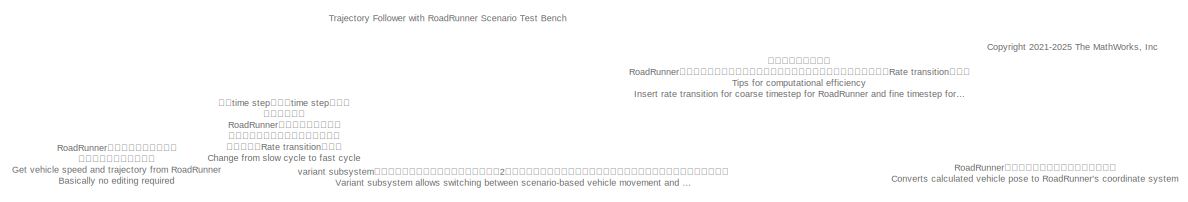
[diagram: root canvas - part 1/3, top center region]
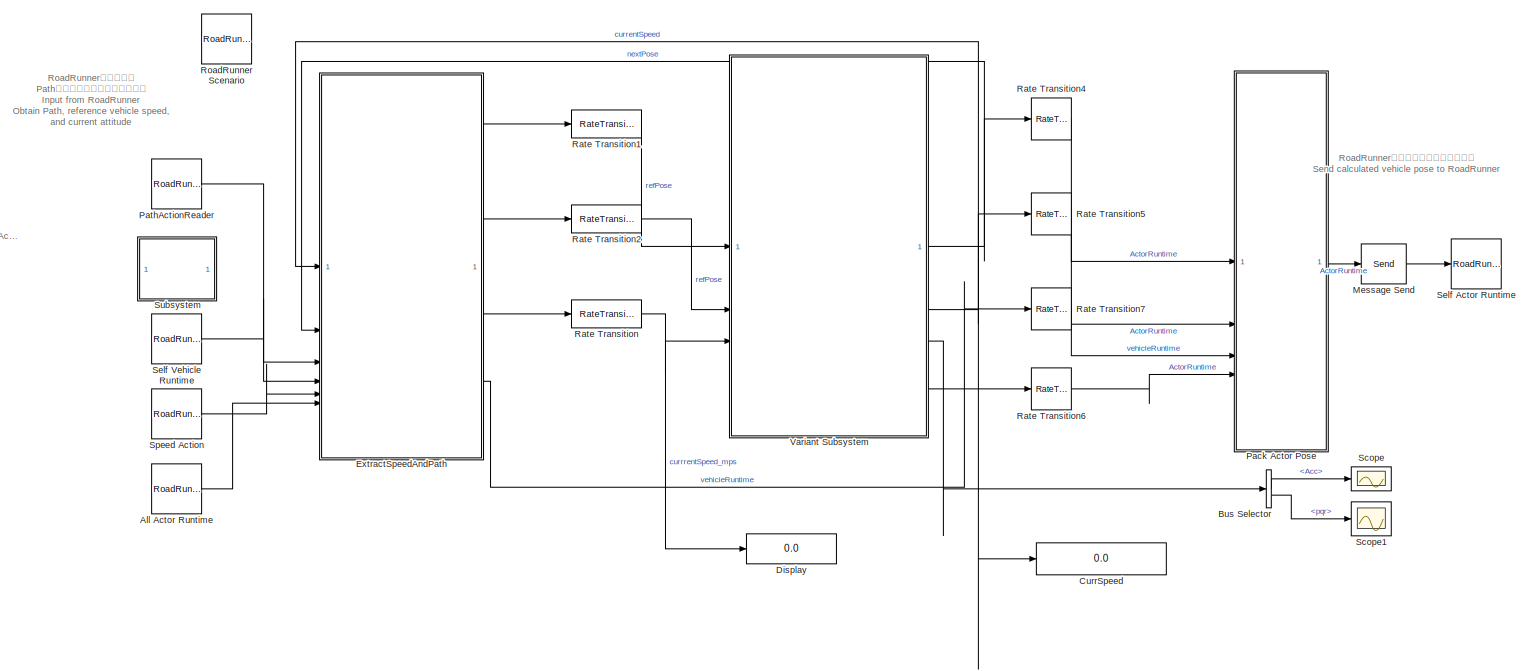
[diagram: root canvas - part 2/3, most of the canvas]
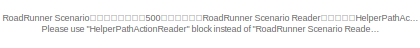
[diagram: root canvas - part 3/3, middle left region]
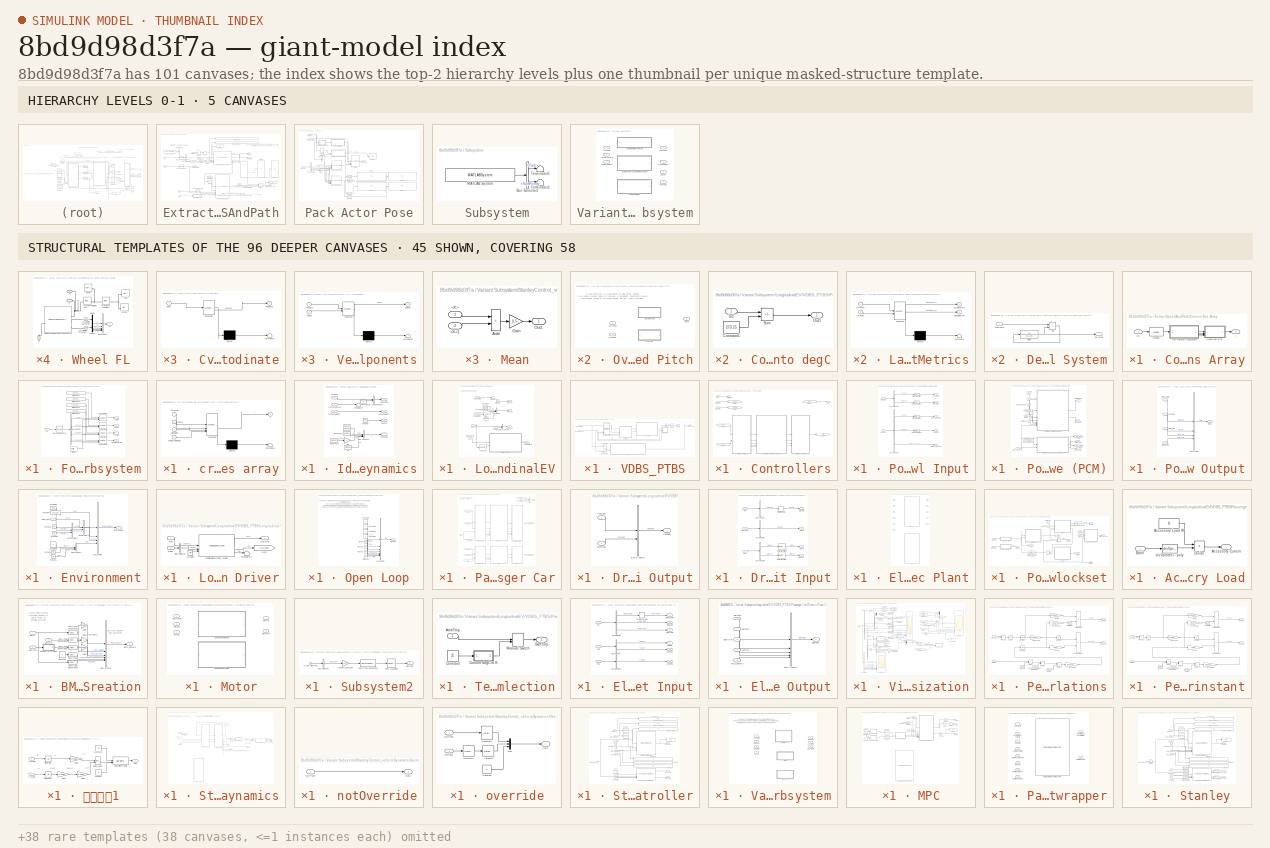
[diagram: thumbnail index - top-2 hierarchy levels (5 canvases) + 45 structural-template representatives of the remaining 96 canvases]
MODEL slx_8bd9d98d3f7a
KIND model
CONFIG AbsTol = auto
CONFIG EnableMultiTasking = off
CONFIG FixedStep = 0.0005
CONFIG InitFcn = if ~exist("useLongitudinalEV", "var")\n    useLongitudinalEV = false;\nend
CONFIG MaxStep = auto
CONFIG MinStep = auto
CONFIG PostLoadFcn = loadRoadRunnerBusObject();\nhelperSLTrajectoryFollowerWithRRScenarioSetup();\nheightMap = "flat";\nif isfile("pathFollowingUtil/gridMap_groundHeight_RT.mat")\n    load("gridMap_groundHeight_RT.mat");\nend\n% if exist("z_2DTable", "var") && exist("xBreakPts", "var") && exist("yBreakPts", "var")\n%     hegihtMap = "2DMap";\n% end\n% if isfile("CRG/crgRoad.crg")\n%     crgData = crg_read('CRG/crgRoad.crg');\n% ...<+3ch>
CONFIG PreLoadFcn = useDynamicsStanley = false; %Simulink model to move according to the scenario trajectory.\nvehicleVariant = "3DOF";\nuseLongitudinalEV = false;
CONFIG RelTol = 1e-3
CONFIG SampleTimeConstraint = Unconstrained
CONFIG SolverName = VariableStepAuto
CONFIG StartFcn = % profile on;
CONFIG StartTime = 0
CONFIG StopFcn = % profile off;\n\n% profileData = profile('info');\n% profile('report');\n% save('profileData.mat', "profileData");\n% profsave(profileData, 'profData.html');
CONFIG StopTime = 20
BLOCK [Reference] All Actor Runtime  REF=roadrunnerscenario/RoadRunner Scenario
Reader
  SourceBlock = roadrunnerscenario/RoadRunner Scenario\nReader
BLOCK [BusSelector] Bus Selector
  Commented = on
  OutputSignals = IMU.Acc,IMU.pqr
BLOCK [Display] CurrSpeed
  Decimation = 1
BLOCK [Display] Display
  Decimation = 1
BLOCK [SubSystem] ExtractSpeedAndPath
BLOCK [BusSelector] ExtractSpeedAndPath/Bus Selector1
  Commented = on
  OutputSignals = Path,NumPoints
BLOCK [BusSelector] ExtractSpeedAndPath/Bus Selector2
  OutputSignals = PathTarget.Path,PathTarget.NumPoints,PathTarget.Timings
BLOCK [SubSystem] ExtractSpeedAndPath/Convert Bus Array
BLOCK [SubSystem] ExtractSpeedAndPath/Convert Bus Array/For Iterator Subsystem
  TreatAsAtomicUnit = on
BLOCK [Outport] ExtractSpeedAndPath/Convert Bus Array/For Iterator Subsystem/ActorIDs
BLOCK [Outport] ExtractSpeedAndPath/Convert Bus Array/For Iterator Subsystem/AngularVelocities
  Port = 4
BLOCK [Assignment] ExtractSpeedAndPath/Convert Bus Array/For Iterator Subsystem/Assignment
  DiagnosticForDimensions = Warning
  IndexOptions = Index vector (port)
  Indices = 1
  OutputSizes = 1
BLOCK [Assignment] ExtractSpeedAndPath/Convert Bus Array/For Iterator Subsystem/Assignment1
  DiagnosticForDimensions = Warning
  IndexOptions = Assign all,Assign all,Index vector (port)
  Indices = 1,1,1
  NumberOfDimensions = 3
  OutputSizes = 1,1,1
BLOCK [Assignment] ExtractSpeedAndPath/Convert Bus Array/For Iterator Subsystem/Assignment2
  DiagnosticForDimensions = Warning
  IndexOptions = Index vector (port),Assign all
  Indices = 1,1
  NumberOfDimensions = 2
  OutputSizes = 1,1
BLOCK [Assignment] ExtractSpeedAndPath/Convert Bus Array/For Iterator Subsystem/Assignment3
  DiagnosticForDimensions = Warning
  IndexOptions = Index vector (port),Assign all
  Indices = 1,1
  NumberOfDimensions = 2
  OutputSizes = 1,1
BLOCK [BusSelector] ExtractSpeedAndPath/Convert Bus Array/For Iterator Subsystem/Bus Selector
  OutputSignals = ActorID,Pose,Velocity,AngularVelocity
BLOCK [ForIterator] ExtractSpeedAndPath/Convert Bus Array/For Iterator Subsystem/For Iterator
  IterationLimit = N
BLOCK [Inport] ExtractSpeedAndPath/Convert Bus Array/For Iterator Subsystem/In1
BLOCK [Constant] ExtractSpeedAndPath/Convert Bus Array/For Iterator Subsystem/Initial values
  Value = zeros(N, 1, 'uint64')
BLOCK [Constant] ExtractSpeedAndPath/Convert Bus Array/For Iterator Subsystem/Initial values1
  Value = zeros(4, 4, N, 'double')
BLOCK [Constant] ExtractSpeedAndPath/Convert Bus Array/For Iterator Subsystem/Initial values2
  Value = zeros(N, 3, 'double')
BLOCK [Constant] ExtractSpeedAndPath/Convert Bus Array/For Iterator Subsystem/Initial values3
  Value = zeros(N, 3, 'double')
BLOCK [Receive] ExtractSpeedAndPath/Convert Bus Array/For Iterator Subsystem/Message Receive2
  InputPortMap = u0
  InputPortMessageModes = m
  OutputPortMap = o1
  UseInternalQueue = off
BLOCK [Outport] ExtractSpeedAndPath/Convert Bus Array/For Iterator Subsystem/Poses
  Port = 2
BLOCK [Outport] ExtractSpeedAndPath/Convert Bus Array/For Iterator Subsystem/Velocities
  Port = 3
BLOCK [Inport] ExtractSpeedAndPath/Convert Bus Array/In1
BLOCK [Queue] ExtractSpeedAndPath/Convert Bus Array/Queue
  Capacity = N
  InputPortMap = u0
  InputPortMessageModes = m
  OutputPortMap = o5
  OutputPortMessageModes = m
  OverwriteOldest = on
  QueueType = LIFO
BLOCK [SubSystem] ExtractSpeedAndPath/Convert Bus Array/create bus array
  ErrorFcn = Stateflow.Translate.translate
  PermitHierarchicalResolution = ExplicitOnly
  SFBlockType = MATLAB Function
  TreatAsAtomicUnit = on
BLOCK [Demux] ExtractSpeedAndPath/Convert Bus Array/create bus array/ Demux 
  Outputs = 1
BLOCK [S-Function] ExtractSpeedAndPath/Convert Bus Array/create bus array/ SFunction 
  EnableBusSupport = on
  FunctionName = sf_sfun
  Parameters = N
  PortCounts = [4 2]
  SFcnIsStateOwnerBlock = off
  SFunctionDeploymentMode = off
  Tag = Stateflow S-Function 12
BLOCK [Terminator] ExtractSpeedAndPath/Convert Bus Array/create bus array/ Terminator 
BLOCK [Inport] ExtractSpeedAndPath/Convert Bus Array/create bus array/ActorIDs
BLOCK [Inport] ExtractSpeedAndPath/Convert Bus Array/create bus array/AngularVelocities
  Port = 4
BLOCK [Inport] ExtractSpeedAndPath/Convert Bus Array/create bus array/Poses
  Port = 2
BLOCK [Inport] ExtractSpeedAndPath/Convert Bus Array/create bus array/Velocities
  Port = 3
BLOCK [Outport] ExtractSpeedAndPath/Convert Bus Array/create bus array/y
BLOCK [Outport] ExtractSpeedAndPath/Convert Bus Array/y
  OutDataTypeStr = Bus: BusActorRuntime
BLOCK [Delay] ExtractSpeedAndPath/Delay
  DelayLength = 1
  InitialCondition = logical(0)
  InputPortMap = u0
BLOCK [Delay] ExtractSpeedAndPath/Delay1
  DelayLength = 1
  InitialCondition = egoInitialPoseCG.CurrPose
  InputPortMap = u0
BLOCK [Delay] ExtractSpeedAndPath/Delay2
  DelayLength = 1
  InitialCondition = norm(egoInitialPose.Velocity)
  InputPortMap = u0
BLOCK [Display] ExtractSpeedAndPath/Display
  Decimation = 1
BLOCK [Display] ExtractSpeedAndPath/Display Prev
  Decimation = 1
BLOCK [Display] ExtractSpeedAndPath/Display Refrence
  Decimation = 1
BLOCK [Display] ExtractSpeedAndPath/Display1
  Decimation = 1
BLOCK [Display] ExtractSpeedAndPath/Display2
  Decimation = 1
BLOCK [Display] ExtractSpeedAndPath/Display3
  Decimation = 1
BLOCK [Inport] ExtractSpeedAndPath/In1
  Port = 3
BLOCK [Inport] ExtractSpeedAndPath/In3
  Port = 4
BLOCK [Inport] ExtractSpeedAndPath/In4
  Port = 5
BLOCK [Inport] ExtractSpeedAndPath/In5
  Port = 6
BLOCK [RelationalOperator] ExtractSpeedAndPath/IsNaN
  InputSameDT = off
  Operator = isNaN
  OutDataTypeStr = boolean
  RndMeth = Simplest
BLOCK [MATLABSystem] ExtractSpeedAndPath/MATLAB System
  Commented = on
  MaskDisplay = disp('HelperPathActionReader');\nport_label('output',1,'PathTarget');
  MaskType = HelperPathActionReader
  System = HelperPathActionReader
  sampleTime = -1
BLOCK [Receive] ExtractSpeedAndPath/Message Receive
  InputPortMap = u0
  InputPortMessageModes = m
  OutputPortMap = o1
BLOCK [Receive] ExtractSpeedAndPath/Message Receive1
  InputPortMap = u0
  InputPortMessageModes = m
  OutputPortMap = o1
BLOCK [Receive] ExtractSpeedAndPath/Message Receive2
  InputPortMap = u0
  InputPortMessageModes = m
  OutputPortMap = o1
BLOCK [Outport] ExtractSpeedAndPath/RefCurvature
  Port = 2
BLOCK [Outport] ExtractSpeedAndPath/RefPoint
BLOCK [MATLABSystem] ExtractSpeedAndPath/Reference Pose on Path
  MaskDisplay = disp(['HelperReferencePoseOnPath' char(10) '' char(10) '' char(10) '' char(10) '']);\nport_label('input',1,'PrevVehicleInfo');\nport_label('input',2,'Trajectory');\nport_label('input',3,'NumTrajPoints');\nport_label('input',4,'currentSpeed');\nport_label('input',5,'Traj_timings');\nport_label('output',1,'RefPointOnPath');\nport_label('output',2,'RefCurvature');\nport_label('output',3,'IsGoalReached');\npor...<+74ch>
  MaskType = HelperReferencePoseOnPath
  SimulateUsing = Interpreted execution
  System = HelperReferencePoseOnPath
  controlTimestep = 0.1
  debugFig = false
  maxNumWaypoints = 500
  numReferencePose = numReferencePose
  output_offset = output_offset_referenceOnPath
  refPointSpeedOffset = useDynamicsStanley == false
  refPts_offset = refPts_offset
  saveFigVideo = false
  searchIndx = 10
  timeStep = timeStep
  zoomFig = 15
BLOCK [Selector] ExtractSpeedAndPath/Selector
  IndexOptions = Index vector (dialog)
  Indices = 1:5
  InputPortWidth = 6
  OutputSizes = 1
BLOCK [Selector] ExtractSpeedAndPath/SelectorForRepMat
  IndexOptions = Index vector (dialog)
  Indices = ones(numReferencePose, 1)
  InputPortWidth = 1
  OutputSizes = 1
BLOCK [MATLABSystem] ExtractSpeedAndPath/Speed Action Adapter
  MaskDisplay = disp(['HelperSpeedActionAdapter' char(10) '' char(10) '']);\nport_label('input',1,'timestep');\nport_label('input',2,'stopVehicle');\nport_label('input',3,'vehicleRuntime');\nport_label('input',4,'msgSpeedAction');\nport_label('input',5,'msgAllVehicleRuntime');\nport_label('output',1,'currentSpeed');
  MaskType = HelperSpeedActionAdapter
  SimulateUsing = Interpreted execution
  System = HelperSpeedActionAdapter
  actorRuntimeNum = 16
BLOCK [Constant] ExtractSpeedAndPath/Step Size
  Value = timeStep
BLOCK [Switch] ExtractSpeedAndPath/Switch
  Criteria = u2 > Threshold
  InputSameDT = off
  SaturateOnIntegerOverflow = off
BLOCK [Inport] ExtractSpeedAndPath/currentPose
  Port = 2
BLOCK [Inport] ExtractSpeedAndPath/currentSpeed
BLOCK [Outport] ExtractSpeedAndPath/currrentSpeed_mps
  Port = 3
BLOCK [Outport] ExtractSpeedAndPath/vehicleRuntime
  Port = 4
BLOCK [Send] Message Send
  InputPortMap = u1
  OutputPortMessageModes = m
BLOCK [SubSystem] Pack Actor Pose
BLOCK [BusAssignment] Pack Actor Pose/Assign
  AssignedSignals = ActorRuntime.Pose,ActorRuntime.Velocity,WheelPoses
BLOCK [BusSelector] Pack Actor Pose/Bus Selector1
  OutputSignals = WheelPoses
BLOCK [BusSelector] Pack Actor Pose/Bus Selector2
  OutputSignals = roll,pitch,yaw,dz
BLOCK [Inport] Pack Actor Pose/CurrPose
BLOCK [Inport] Pack Actor Pose/CurrSpeed
  Port = 2
BLOCK [SubSystem] Pack Actor Pose/Cvt2RRSCoodinate
  ErrorFcn = Stateflow.Translate.translate
  PermitHierarchicalResolution = ExplicitOnly
  SFBlockType = MATLAB Function
  TreatAsAtomicUnit = on
BLOCK [Demux] Pack Actor Pose/Cvt2RRSCoodinate/ Demux 
  Outputs = 1
BLOCK [S-Function] Pack Actor Pose/Cvt2RRSCoodinate/ SFunction 
  EnableBusSupport = on
  FunctionName = sf_sfun
  PortCounts = [1 2]
  SFcnIsStateOwnerBlock = off
  SFunctionDeploymentMode = off
  Tag = Stateflow S-Function 10
BLOCK [Terminator] Pack Actor Pose/Cvt2RRSCoodinate/ Terminator 
BLOCK [Outport] Pack Actor Pose/Cvt2RRSCoodinate/RRSPose
BLOCK [Inport] Pack Actor Pose/Cvt2RRSCoodinate/pose
BLOCK [Display] Pack Actor Pose/Display
  Commented = on
  Decimation = 1
BLOCK [Display] Pack Actor Pose/Display1
  Commented = on
  Decimation = 1
BLOCK [Display] Pack Actor Pose/Display2
  Commented = on
  Decimation = 1
BLOCK [Display] Pack Actor Pose/Display3
  Commented = on
  Decimation = 1
BLOCK [Display] Pack Actor Pose/Display4
  Commented = on
  Decimation = 1
BLOCK [Outport] Pack Actor Pose/Ego Pose
BLOCK [Gain] Pack Actor Pose/Gain1
BLOCK [MATLABSystem] Pack Actor Pose/MATLAB System
  MaskDisplay = disp('packWheelPoses');\nport_label('input',1,'wheelPosesPrev');\nport_label('input',2,'roll');\nport_label('input',3,'pitch');\nport_label('input',4,'yaw');\nport_label('input',5,'dz');\nport_label('output',1,'wheelPoses');
  MaskType = packWheelPoses
  SimulateUsing = Code generation
  System = packWheelPoses
BLOCK [MATLABSystem] Pack Actor Pose/MATLAB System1
  Commented = on
  MaskDisplay = disp('packWheelPoses');\nport_label('input',1,'wheelPosesPrev');\nport_label('input',2,'roll');\nport_label('input',3,'pitch');\nport_label('input',4,'yaw');\nport_label('input',5,'dz');\nport_label('output',1,'wheelPoses');
  MaskType = packWheelPoses
  SimulateUsing = Interpreted execution
  System = packWheelPoses
BLOCK [SubSystem] Pack Actor Pose/Pose Generation
  ErrorFcn = Stateflow.Translate.translate
  PermitHierarchicalResolution = ExplicitOnly
  SFBlockType = MATLAB Function
  TreatAsAtomicUnit = on
BLOCK [Demux] Pack Actor Pose/Pose Generation/ Demux 
  Outputs = 1
BLOCK [S-Function] Pack Actor Pose/Pose Generation/ SFunction 
  EnableBusSupport = on
  FunctionName = sf_sfun
  PortCounts = [1 2]
  SFcnIsStateOwnerBlock = off
  SFunctionDeploymentMode = off
  Tag = Stateflow S-Function 1
BLOCK [Terminator] Pack Actor Pose/Pose Generation/ Terminator 
BLOCK [Outport] Pack Actor Pose/Pose Generation/currPose
BLOCK [Inport] Pack Actor Pose/Pose Generation/pose
BLOCK [Selector] Pack Actor Pose/Selector
  IndexOptions = Index vector (dialog)
  Indices = [3, 5]
  InputPortWidth = 6
  OutputSizes = 1
BLOCK [Selector] Pack Actor Pose/Selector1
  Commented = on
  IndexOptions = Select all,Select all,Index vector (dialog)
  Indices = [1 3],1,1
  InputPortWidth = 3
  NumberOfDimensions = 3
  OutputSizes = 1,1,1
BLOCK [Selector] Pack Actor Pose/Selector2
  Commented = on
  IndexOptions = Select all,Select all,Index vector (dialog)
  Indices = [1 3],1,1
  InputPortWidth = 3
  NumberOfDimensions = 3
  OutputSizes = 1,1,1
BLOCK [Selector] Pack Actor Pose/Selector3
  Commented = on
  IndexOptions = Select all,Select all,Index vector (dialog)
  Indices = [1 3],1,4
  InputPortWidth = 3
  NumberOfDimensions = 3
  OutputSizes = 1,1,1
BLOCK [Selector] Pack Actor Pose/Selector4
  Commented = on
  IndexOptions = Select all,Select all,Index vector (dialog)
  Indices = [1 3],1,4
  InputPortWidth = 3
  NumberOfDimensions = 3
  OutputSizes = 1,1,1
BLOCK [Inport] Pack Actor Pose/TireAngs
  Port = 4
BLOCK [Inport] Pack Actor Pose/VehicleRuntime
  Port = 3
BLOCK [SubSystem] Pack Actor Pose/Velocity XYZ Components
  ErrorFcn = Stateflow.Translate.translate
  PermitHierarchicalResolution = ExplicitOnly
  SFBlockType = MATLAB Function
  TreatAsAtomicUnit = on
BLOCK [Demux] Pack Actor Pose/Velocity XYZ Components/ Demux 
  Outputs = 1
BLOCK [S-Function] Pack Actor Pose/Velocity XYZ Components/ SFunction 
  EnableBusSupport = on
  FunctionName = sf_sfun
  PortCounts = [2 2]
  SFcnIsStateOwnerBlock = off
  SFunctionDeploymentMode = off
  Tag = Stateflow S-Function 3
BLOCK [Terminator] Pack Actor Pose/Velocity XYZ Components/ Terminator 
BLOCK [Inport] Pack Actor Pose/Velocity XYZ Components/speed
  Port = 2
BLOCK [Outport] Pack Actor Pose/Velocity XYZ Components/velocity
BLOCK [Inport] Pack Actor Pose/Velocity XYZ Components/yaw_pitch
BLOCK [Reference] PathActionReader  REF=roadrunnerscenario/RoadRunner Scenario
Reader
  SourceBlock = roadrunnerscenario/RoadRunner Scenario\nReader
BLOCK [RateTransition] Rate Transition
  OutPortSampleTime = timeStep
BLOCK [RateTransition] Rate Transition1
  OutPortSampleTime = timeStep
BLOCK [RateTransition] Rate Transition2
  OutPortSampleTime = timeStep
BLOCK [RateTransition] Rate Transition4
  OutPortSampleTime = RRtimeStep
BLOCK [RateTransition] Rate Transition5
  OutPortSampleTime = RRtimeStep
BLOCK [RateTransition] Rate Transition6
  OutPortSampleTime = RRtimeStep
BLOCK [RateTransition] Rate Transition7
  OutPortSampleTime = RRtimeStep
BLOCK [Reference] RoadRunner Scenario  REF=roadrunnerscenario/RoadRunner Scenario
  SourceBlock = roadrunnerscenario/RoadRunner Scenario
BLOCK [Scope] Scope
  Commented = on
  Floating = off
  NumInputPorts = 1
  ScopeSpecificationString = Simulink.scopes.TimeScopeBlockCfg('CurrentConfiguration', extmgr.ConfigurationSet(extmgr.Configuration('Core','General UI',true),extmgr.Configuration('Core','Source UI',true),extmgr.Configuration('Sources','WiredSimulink',true),extmgr.Configuration('Visuals','Time Domain',true),extmgr.Configuration('Tools','Plot Navigation',true),extmgr.Configuration('Tools','Measurements',true)),'Version','2024a'...<+1ch>
BLOCK [Scope] Scope1
  Commented = on
  Floating = off
  NumInputPorts = 1
  ScopeSpecificationString = Simulink.scopes.TimeScopeBlockCfg('CurrentConfiguration', extmgr.ConfigurationSet(extmgr.Configuration('Core','General UI',true),extmgr.Configuration('Core','Source UI',true),extmgr.Configuration('Sources','WiredSimulink',true,'DataLoggingVariableName','ScopeData4'),extmgr.Configuration('Visuals','Time Domain',true),extmgr.Configuration('Tools','Plot Navigation',true),extmgr.Configuration('Tools',...<+40ch>
BLOCK [Reference] Self Actor Runtime  REF=roadrunnerscenario/RoadRunner Scenario
Writer
  SourceBlock = roadrunnerscenario/RoadRunner Scenario\nWriter
BLOCK [Reference] Self Vehicle Runtime  REF=roadrunnerscenario/RoadRunner Scenario
Reader
  SourceBlock = roadrunnerscenario/RoadRunner Scenario\nReader
BLOCK [Reference] Speed Action  REF=roadrunnerscenario/RoadRunner Scenario
Reader
  SourceBlock = roadrunnerscenario/RoadRunner Scenario\nReader
BLOCK [SubSystem] Subsystem
  Commented = on
BLOCK [BusSelector] Subsystem/Bus Selector2
  OutputSignals = PathTarget.Path,PathTarget.NumPoints
BLOCK [MATLABSystem] Subsystem/MATLAB System
  MaskDisplay = disp('HelperPathActionReader');\nport_label('output',1,'PathTarget');
  MaskType = HelperPathActionReader
  System = HelperPathActionReader
  sampleTime = -1
BLOCK [Terminator] Subsystem/Terminator1
BLOCK [Terminator] Subsystem/Terminator2
BLOCK [SubSystem] Variant Subsystem
  Variant = on
BLOCK [Outport] Variant Subsystem/ActualVelocity
  Port = 2
BLOCK [SubSystem] Variant Subsystem/IdealVehicleDynamics
  VariantControl = useDynamicsStanley == false  && useLongitudinalEV == false
BLOCK [Outport] Variant Subsystem/IdealVehicleDynamics/ActualVelocity
  Port = 2
BLOCK [BusCreator] Variant Subsystem/IdealVehicleDynamics/Bus Creator
  DisplayOption = bar
  InheritFromInputs = on
  Inputs = 4
BLOCK [Constant] Variant Subsystem/IdealVehicleDynamics/Constant
  Value = zeros(4,1)
BLOCK [Constant] Variant Subsystem/IdealVehicleDynamics/Constant2
  Value = zeros(4,1)
BLOCK [Constant] Variant Subsystem/IdealVehicleDynamics/Constant3
  Value = zeros(4,1)
BLOCK [Gain] Variant Subsystem/IdealVehicleDynamics/Gain
BLOCK [Ground] Variant Subsystem/IdealVehicleDynamics/Ground
BLOCK [Outport] Variant Subsystem/IdealVehicleDynamics/Sensor
  Port = 3
BLOCK [Terminator] Variant Subsystem/IdealVehicleDynamics/Terminator
BLOCK [Outport] Variant Subsystem/IdealVehicleDynamics/TireAngs
  Port = 4
BLOCK [Concatenate] Variant Subsystem/IdealVehicleDynamics/Vector Concatenate
BLOCK [Constant] Variant Subsystem/IdealVehicleDynamics/Zero
  OutDataTypeStr = Inherit: Inherit via back propagation
  Value = 0
BLOCK [Constant] Variant Subsystem/IdealVehicleDynamics/dz
  Value = zeros(4,1)
BLOCK [Outport] Variant Subsystem/IdealVehicleDynamics/nextPose
BLOCK [Inport] Variant Subsystem/IdealVehicleDynamics/refCurvature
  Port = 2
BLOCK [Inport] Variant Subsystem/IdealVehicleDynamics/refPose
BLOCK [Inport] Variant Subsystem/IdealVehicleDynamics/targetVelocity
  Port = 3
BLOCK [SubSystem] Variant Subsystem/LongitudinalEV
  VariantControl = useLongitudinalEV == true
BLOCK [Outport] Variant Subsystem/LongitudinalEV/ActualVelocity
  Port = 2
BLOCK [BusCreator] Variant Subsystem/LongitudinalEV/Bus Creator
  DisplayOption = bar
  InheritFromInputs = on
  Inputs = 4
BLOCK [Constant] Variant Subsystem/LongitudinalEV/Constant
  Value = zeros(4,1)
BLOCK [Constant] Variant Subsystem/LongitudinalEV/Constant2
  Value = zeros(4,1)
BLOCK [Constant] Variant Subsystem/LongitudinalEV/Constant3
  Value = zeros(4,1)
BLOCK [Gain] Variant Subsystem/LongitudinalEV/Gain
BLOCK [Ground] Variant Subsystem/LongitudinalEV/Ground
BLOCK [Selector] Variant Subsystem/LongitudinalEV/Selector
  IndexOptions = Index vector (dialog)
  Indices = 4
  InputPortWidth = 5
  OutputSizes = 1
BLOCK [Outport] Variant Subsystem/LongitudinalEV/Sensor
  Port = 3
BLOCK [Terminator] Variant Subsystem/LongitudinalEV/Terminator
BLOCK [Outport] Variant Subsystem/LongitudinalEV/TireAngs
  Port = 4
BLOCK [SubSystem] Variant Subsystem/LongitudinalEV/VDBS_PTBS
  VariantControl = true
BLOCK [BusSelector] Variant Subsystem/LongitudinalEV/VDBS_PTBS/Bus Selector
  Commented = on
  OutputSignals = Veh.xdot
BLOCK [SubSystem] Variant Subsystem/LongitudinalEV/VDBS_PTBS/Controllers
  Commented = on
BLOCK [Outport] Variant Subsystem/LongitudinalEV/VDBS_PTBS/Controllers/Ctrl
  VectorParamsAs1DForOutWhenUnconnected = off
BLOCK [Inport] Variant Subsystem/LongitudinalEV/VDBS_PTBS/Controllers/Env
BLOCK [From] Variant Subsystem/LongitudinalEV/VDBS_PTBS/Controllers/From2
  GotoTag = PtCtrl
BLOCK [From] Variant Subsystem/LongitudinalEV/VDBS_PTBS/Controllers/From5
  GotoTag = OpCmds
BLOCK [From] Variant Subsystem/LongitudinalEV/VDBS_PTBS/Controllers/From6
  GotoTag = VehPlnt
BLOCK [Goto] Variant Subsystem/LongitudinalEV/VDBS_PTBS/Controllers/Goto1
  GotoTag = OpCmds
BLOCK [Goto] Variant Subsystem/LongitudinalEV/VDBS_PTBS/Controllers/Goto2
  GotoTag = VehPlnt
BLOCK [Goto] Variant Subsystem/LongitudinalEV/VDBS_PTBS/Controllers/Goto9
  GotoTag = PtCtrl
BLOCK [Inport] Variant Subsystem/LongitudinalEV/VDBS_PTBS/Controllers/OpCmds
  Port = 2
BLOCK [SubSystem] Variant Subsystem/LongitudinalEV/VDBS_PTBS/Controllers/Powertrain Control Input
BLOCK [Outport] Variant Subsystem/LongitudinalEV/VDBS_PTBS/Controllers/Powertrain Control Input/AccelPdl
  VectorParamsAs1DForOutWhenUnconnected = off
BLOCK [Outport] Variant Subsystem/LongitudinalEV/VDBS_PTBS/Controllers/Powertrain Control Input/BMS_Sensors
  OutDataTypeStr = Bus: Sensors
  Port = 5
  VectorParamsAs1DForOutWhenUnconnected = off
BLOCK [BusSelector] Variant Subsystem/LongitudinalEV/VDBS_PTBS/Controllers/Powertrain Control Input/Bus Selector1
  OutputSignals = Veh.xdot,Veh.MotSpd,Elec.BMS_Sensors
BLOCK [BusSelector] Variant Subsystem/LongitudinalEV/VDBS_PTBS/Controllers/Powertrain Control Input/Bus Selector2
  OutputSignals = Accel,Decel
BLOCK [Outport] Variant Subsystem/LongitudinalEV/VDBS_PTBS/Controllers/Powertrain Control Input/DecelPdl
  Port = 2
  VectorParamsAs1DForOutWhenUnconnected = off
BLOCK [Outport] Variant Subsystem/LongitudinalEV/VDBS_PTBS/Controllers/Powertrain Control Input/MotSpd
  Port = 4
  VectorParamsAs1DForOutWhenUnconnected = off
BLOCK [Inport] Variant Subsystem/LongitudinalEV/VDBS_PTBS/Controllers/Powertrain Control Input/OpCmds
BLOCK [RateTransition] Variant Subsystem/LongitudinalEV/VDBS_PTBS/Controllers/Powertrain Control Input/Rate Transition
  Deterministic = off
BLOCK [RateTransition] Variant Subsystem/LongitudinalEV/VDBS_PTBS/Controllers/Powertrain Control Input/Rate Transition1
  Deterministic = off
BLOCK [RateTransition] Variant Subsystem/LongitudinalEV/VDBS_PTBS/Controllers/Powertrain Control Input/Rate Transition2
  Deterministic = off
BLOCK [RateTransition] Variant Subsystem/LongitudinalEV/VDBS_PTBS/Controllers/Powertrain Control Input/Rate Transition6
  Deterministic = off
BLOCK [Inport] Variant Subsystem/LongitudinalEV/VDBS_PTBS/Controllers/Powertrain Control Input/VehPlnt
  Port = 2
BLOCK [Outport] Variant Subsystem/LongitudinalEV/VDBS_PTBS/Controllers/Powertrain Control Input/VehSpdFdbk
  Port = 3
  VectorParamsAs1DForOutWhenUnconnected = off
BLOCK [SubSystem] Variant Subsystem/LongitudinalEV/VDBS_PTBS/Controllers/Powertrain Control Module (PCM)
BLOCK [Inport] Variant Subsystem/LongitudinalEV/VDBS_PTBS/Controllers/Powertrain Control Module (PCM)/AccCmd
BLOCK [Outport] Variant Subsystem/LongitudinalEV/VDBS_PTBS/Controllers/Powertrain Control Module (PCM)/BMS_Cmd
  OutDataTypeStr = Bus: BMS_Cmd
  Port = 4
BLOCK [Outport] Variant Subsystem/LongitudinalEV/VDBS_PTBS/Controllers/Powertrain Control Module (PCM)/BMS_Info
  OutDataTypeStr = Bus: BMS_Info
  Port = 3
BLOCK [Inport] Variant Subsystem/LongitudinalEV/VDBS_PTBS/Controllers/Powertrain Control Module (PCM)/BMS_Sensors
  OutDataTypeStr = Bus: Sensors
  Port = 5
BLOCK [ModelReference] Variant Subsystem/LongitudinalEV/VDBS_PTBS/Controllers/Powertrain Control Module (PCM)/Battery Management System (BMS)
  ModelNameDialog = BMS_Software.slx
  ModelReferenceVersion = 8.0
BLOCK [Outport] Variant Subsystem/LongitudinalEV/VDBS_PTBS/Controllers/Powertrain Control Module (PCM)/BrakeCmd
  Port = 2
BLOCK [Inport] Variant Subsystem/LongitudinalEV/VDBS_PTBS/Controllers/Powertrain Control Module (PCM)/DecCmd
  Port = 2
BLOCK [Reference] Variant Subsystem/LongitudinalEV/VDBS_PTBS/Controllers/Powertrain Control Module (PCM)/Enumerated Constant  REF=simulink/Sources/Enumerated
Constant
  SourceBlock = simulink/Sources/Enumerated\nConstant
  SourceType = Enumerated Constant
BLOCK [From] Variant Subsystem/LongitudinalEV/VDBS_PTBS/Controllers/Powertrain Control Module (PCM)/From
  GotoTag = BMS_Info
BLOCK [From] Variant Subsystem/LongitudinalEV/VDBS_PTBS/Controllers/Powertrain Control Module (PCM)/From1
  GotoTag = BMS_Cmd
BLOCK [Goto] Variant Subsystem/LongitudinalEV/VDBS_PTBS/Controllers/Powertrain Control Module (PCM)/Goto
  GotoTag = BMS_Info
BLOCK [Goto] Variant Subsystem/LongitudinalEV/VDBS_PTBS/Controllers/Powertrain Control Module (PCM)/Goto1
  GotoTag = BMS_Cmd
BLOCK [Inport] Variant Subsystem/LongitudinalEV/VDBS_PTBS/Controllers/Powertrain Control Module (PCM)/MotSpd
  Port = 4
BLOCK [Outport] Variant Subsystem/LongitudinalEV/VDBS_PTBS/Controllers/Powertrain Control Module (PCM)/MotTrqCmd
BLOCK [ModelReference] Variant Subsystem/LongitudinalEV/VDBS_PTBS/Controllers/Powertrain Control Module (PCM)/Powertrain Control Module (PCM)
  ModelNameDialog = EvPowertrainController.slx
  ModelReferenceVersion = 8.4
BLOCK [Inport] Variant Subsystem/LongitudinalEV/VDBS_PTBS/Controllers/Powertrain Control Module (PCM)/VehSpdFdbk
  Port = 3
BLOCK [SubSystem] Variant Subsystem/LongitudinalEV/VDBS_PTBS/Controllers/Powertrain Control Output
BLOCK [Inport] Variant Subsystem/LongitudinalEV/VDBS_PTBS/Controllers/Powertrain Control Output/BMS_Cmd
  OutDataTypeStr = Bus: BMS_Cmd
  Port = 4
BLOCK [Inport] Variant Subsystem/LongitudinalEV/VDBS_PTBS/Controllers/Powertrain Control Output/BMS_Info
  OutDataTypeStr = Bus: BMS_Info
  Port = 3
BLOCK [Inport] Variant Subsystem/LongitudinalEV/VDBS_PTBS/Controllers/Powertrain Control Output/BrkCmd
  Port = 2
BLOCK [BusCreator] Variant Subsystem/LongitudinalEV/VDBS_PTBS/Controllers/Powertrain Control Output/Bus Creator
  DisplayOption = bar
  InheritFromInputs = on
  Inputs = 4
BLOCK [Inport] Variant Subsystem/LongitudinalEV/VDBS_PTBS/Controllers/Powertrain Control Output/MotTrqCmd
BLOCK [Outport] Variant Subsystem/LongitudinalEV/VDBS_PTBS/Controllers/Powertrain Control Output/PtCtrl
  VectorParamsAs1DForOutWhenUnconnected = off
BLOCK [Terminator] Variant Subsystem/LongitudinalEV/VDBS_PTBS/Controllers/Terminator
BLOCK [Inport] Variant Subsystem/LongitudinalEV/VDBS_PTBS/Controllers/VehPlnt
  Port = 3
BLOCK [SubSystem] Variant Subsystem/LongitudinalEV/VDBS_PTBS/Environment
  Commented = on
BLOCK [BusCreator] Variant Subsystem/LongitudinalEV/VDBS_PTBS/Environment/Bus Creator
  DisplayOption = bar
  InheritFromInputs = on
  Inputs = 4
BLOCK [BusCreator] Variant Subsystem/LongitudinalEV/VDBS_PTBS/Environment/Bus Creator3
  DisplayOption = bar
  InheritFromInputs = on
  Inputs = 3
BLOCK [BusCreator] Variant Subsystem/LongitudinalEV/VDBS_PTBS/Environment/Bus Creator4
  DisplayOption = bar
  InheritFromInputs = on
  Inputs = 2
BLOCK [BusCreator] Variant Subsystem/LongitudinalEV/VDBS_PTBS/Environment/Bus Creator5
  DisplayOption = bar
  InheritFromInputs = on
  Inputs = 2
BLOCK [Constant] Variant Subsystem/LongitudinalEV/VDBS_PTBS/Environment/Constant3
  Value = 0
BLOCK [Constant] Variant Subsystem/LongitudinalEV/VDBS_PTBS/Environment/Constant6
  Value = 300
BLOCK [Constant] Variant Subsystem/LongitudinalEV/VDBS_PTBS/Environment/Constant7
  Value = 101325
BLOCK [Outport] Variant Subsystem/LongitudinalEV/VDBS_PTBS/Environment/Environment
  VectorParamsAs1DForOutWhenUnconnected = off
BLOCK [Ground] Variant Subsystem/LongitudinalEV/VDBS_PTBS/Environment/Ground
BLOCK [Ground] Variant Subsystem/LongitudinalEV/VDBS_PTBS/Environment/Ground1
BLOCK [Ground] Variant Subsystem/LongitudinalEV/VDBS_PTBS/Environment/Ground2
BLOCK [Ground] Variant Subsystem/LongitudinalEV/VDBS_PTBS/Environment/Ground3
BLOCK [Inport] Variant Subsystem/LongitudinalEV/VDBS_PTBS/Environment/slope_deg
BLOCK [SubSystem] Variant Subsystem/LongitudinalEV/VDBS_PTBS/Longitudinal Driver
  Commented = on
  LabelModeActiveChoice = 0
  Variant = on
  VariantControl = Variant1
  VariantControlMode = label
BLOCK [Outport] Variant Subsystem/LongitudinalEV/VDBS_PTBS/Longitudinal Driver/ OpCmds
  VectorParamsAs1DForOutWhenUnconnected = off
BLOCK [SubSystem] Variant Subsystem/LongitudinalEV/VDBS_PTBS/Longitudinal Driver/Longitudinal Driver
  VariantControl = 0
BLOCK [BusSelector] Variant Subsystem/LongitudinalEV/VDBS_PTBS/Longitudinal Driver/Longitudinal Driver/Bus Selector
  OutputSignals = Veh.xdot
BLOCK [Goto] Variant Subsystem/LongitudinalEV/VDBS_PTBS/Longitudinal Driver/Longitudinal Driver/Goto
  GotoTag = Accel_VDBS
  TagVisibility = global
BLOCK [Ground] Variant Subsystem/LongitudinalEV/VDBS_PTBS/Longitudinal Driver/Longitudinal Driver/Ground
BLOCK [Reference] Variant Subsystem/LongitudinalEV/VDBS_PTBS/Longitudinal Driver/Longitudinal Driver/Longitudinal Driver Model  REF=autolibshared/Longitudinal Driver
  LibrarySourceBlock = autolibscenario/Longitudinal Driver
  SourceBlock = autolibshared/Longitudinal Driver
  SourceType = Longitudinal Driver
BLOCK [Outport] Variant Subsystem/LongitudinalEV/VDBS_PTBS/Longitudinal Driver/Longitudinal Driver/OpCmds
  VectorParamsAs1DForOutWhenUnconnected = off
BLOCK [Terminator] Variant Subsystem/LongitudinalEV/VDBS_PTBS/Longitudinal Driver/Longitudinal Driver/Terminator1
BLOCK [Inport] Variant Subsystem/LongitudinalEV/VDBS_PTBS/Longitudinal Driver/Longitudinal Driver/Vfdbk
  Port = 2
BLOCK [Inport] Variant Subsystem/LongitudinalEV/VDBS_PTBS/Longitudinal Driver/Longitudinal Driver/Vref
BLOCK [SubSystem] Variant Subsystem/LongitudinalEV/VDBS_PTBS/Longitudinal Driver/Open Loop
  VariantControl = 1
BLOCK [BusCreator] Variant Subsystem/LongitudinalEV/VDBS_PTBS/Longitudinal Driver/Open Loop/Bus Creator2
  DisplayOption = bar
  InheritFromInputs = on
  Inputs = 8
BLOCK [Constant] Variant Subsystem/LongitudinalEV/VDBS_PTBS/Longitudinal Driver/Open Loop/Constant1
  Value = 0
BLOCK [Constant] Variant Subsystem/LongitudinalEV/VDBS_PTBS/Longitudinal Driver/Open Loop/Constant2
  Value = 0
BLOCK [Constant] Variant Subsystem/LongitudinalEV/VDBS_PTBS/Longitudinal Driver/Open Loop/Constant3
  Value = 0
BLOCK [Constant] Variant Subsystem/LongitudinalEV/VDBS_PTBS/Longitudinal Driver/Open Loop/Constant4
  Value = 0
BLOCK [Ground] Variant Subsystem/LongitudinalEV/VDBS_PTBS/Longitudinal Driver/Open Loop/Ground
BLOCK [Ground] Variant Subsystem/LongitudinalEV/VDBS_PTBS/Longitudinal Driver/Open Loop/Ground1
BLOCK [Ground] Variant Subsystem/LongitudinalEV/VDBS_PTBS/Longitudinal Driver/Open Loop/Ground2
BLOCK [Ground] Variant Subsystem/LongitudinalEV/VDBS_PTBS/Longitudinal Driver/Open Loop/Ground3
BLOCK [Outport] Variant Subsystem/LongitudinalEV/VDBS_PTBS/Longitudinal Driver/Open Loop/OpCmds
  VectorParamsAs1DForOutWhenUnconnected = off
BLOCK [Inport] Variant Subsystem/LongitudinalEV/VDBS_PTBS/Longitudinal Driver/Vfdbk 
  Port = 2
BLOCK [Inport] Variant Subsystem/LongitudinalEV/VDBS_PTBS/Longitudinal Driver/Vref 
BLOCK [ModelReference] Variant Subsystem/LongitudinalEV/VDBS_PTBS/Model
  ModelNameDialog = EV_PowerTrain.slx
  ModelReferenceVersion = 1.7
  PortSchema = {"entries":[{"content":{"sides":[{"content":{"connectorIds":["In2","In1"]},"type":"ConnectorPlacement.EquallySpacedRectSide","uuid":"f2ffd824-f876-47cf-a2eb-b1f532355f92"},{"content":{"connectorIds":["Out1"],"side":"RIGHT"},"type":"ConnectorPlacement.EquallySpacedRectSide","uuid":"21b29aa8-3d5b-4060-b5a1-b1d2085b4ec6"},{"content":{"side":"TOP"},"type":"ConnectorPlacement.EquallySpacedRectSide","uu...<+228ch>
BLOCK [SubSystem] Variant Subsystem/LongitudinalEV/VDBS_PTBS/Passenger Car
  Commented = on
BLOCK [BusCreator] Variant Subsystem/LongitudinalEV/VDBS_PTBS/Passenger Car/Bus Creator
  DisplayOption = bar
  InheritFromInputs = on
  Inputs = 2
BLOCK [Inport] Variant Subsystem/LongitudinalEV/VDBS_PTBS/Passenger Car/Ctrl
  Port = 2
BLOCK [ModelReference] Variant Subsystem/LongitudinalEV/VDBS_PTBS/Passenger Car/Drivetrain
  ModelNameDialog = DrivetrainEv.slx
  ModelReferenceVersion = 10.4
BLOCK [SubSystem] Variant Subsystem/LongitudinalEV/VDBS_PTBS/Passenger Car/Drivetrain Output
BLOCK [BusCreator] Variant Subsystem/LongitudinalEV/VDBS_PTBS/Passenger Car/Drivetrain Output/Bus Creator1
  DisplayOption = bar
  InheritFromInputs = on
  Inputs = 2
BLOCK [Inport] Variant Subsystem/LongitudinalEV/VDBS_PTBS/Passenger Car/Drivetrain Output/MotSpd
  Port = 2
BLOCK [Outport] Variant Subsystem/LongitudinalEV/VDBS_PTBS/Passenger Car/Drivetrain Output/VehFdbk
  VectorParamsAs1DForOutWhenUnconnected = off
BLOCK [Inport] Variant Subsystem/LongitudinalEV/VDBS_PTBS/Passenger Car/Drivetrain Output/VehSpd
BLOCK [SubSystem] Variant Subsystem/LongitudinalEV/VDBS_PTBS/Passenger Car/Drivetrain Plant Input
BLOCK [Outport] Variant Subsystem/LongitudinalEV/VDBS_PTBS/Passenger Car/Drivetrain Plant Input/BrkCmd
  Port = 2
  VectorParamsAs1DForOutWhenUnconnected = off
BLOCK [BusSelector] Variant Subsystem/LongitudinalEV/VDBS_PTBS/Passenger Car/Drivetrain Plant Input/Bus Selector
  OutputSignals = BrkCmd
BLOCK [BusSelector] Variant Subsystem/LongitudinalEV/VDBS_PTBS/Passenger Car/Drivetrain Plant Input/Bus Selector1
  OutputSignals = MotTrq
BLOCK [BusSelector] Variant Subsystem/LongitudinalEV/VDBS_PTBS/Passenger Car/Drivetrain Plant Input/Bus Selector3
  OutputSignals = Ground.Grade,Wind.wind_x
BLOCK [Inport] Variant Subsystem/LongitudinalEV/VDBS_PTBS/Passenger Car/Drivetrain Plant Input/Ctrl
BLOCK [Inport] Variant Subsystem/LongitudinalEV/VDBS_PTBS/Passenger Car/Drivetrain Plant Input/ElecFdbk
  Port = 2
BLOCK [Inport] Variant Subsystem/LongitudinalEV/VDBS_PTBS/Passenger Car/Drivetrain Plant Input/Env
  Port = 3
BLOCK [FirstOrderHold] Variant Subsystem/LongitudinalEV/VDBS_PTBS/Passenger Car/Drivetrain Plant Input/First Order Hold
  ErrorTolerance = inf
BLOCK [Outport] Variant Subsystem/LongitudinalEV/VDBS_PTBS/Passenger Car/Drivetrain Plant Input/Grade
  Port = 3
  VectorParamsAs1DForOutWhenUnconnected = off
BLOCK [Outport] Variant Subsystem/LongitudinalEV/VDBS_PTBS/Passenger Car/Drivetrain Plant Input/MotTrq
  VectorParamsAs1DForOutWhenUnconnected = off
BLOCK [RateTransition] Variant Subsystem/LongitudinalEV/VDBS_PTBS/Passenger Car/Drivetrain Plant Input/Rate Transition6
  Deterministic = off
BLOCK [RateTransition] Variant Subsystem/LongitudinalEV/VDBS_PTBS/Passenger Car/Drivetrain Plant Input/Rate Transition7
  Deterministic = off
BLOCK [Outport] Variant Subsystem/LongitudinalEV/VDBS_PTBS/Passenger Car/Drivetrain Plant Input/WindVel
  Port = 4
  VectorParamsAs1DForOutWhenUnconnected = off
BLOCK [SubSystem] Variant Subsystem/LongitudinalEV/VDBS_PTBS/Passenger Car/Electric Plant
  LabelModeActiveChoice = Powertrain Blockset
  Variant = on
  VariantControl = Choice
  VariantControlMode = label
BLOCK [SubSystem] Variant Subsystem/LongitudinalEV/VDBS_PTBS/Passenger Car/Electric Plant Input
BLOCK [Outport] Variant Subsystem/LongitudinalEV/VDBS_PTBS/Passenger Car/Electric Plant Input/AmbTmp
  Port = 3
  VectorParamsAs1DForOutWhenUnconnected = off
BLOCK [Outport] Variant Subsystem/LongitudinalEV/VDBS_PTBS/Passenger Car/Electric Plant Input/BMS_Cmd
  OutDataTypeStr = Bus: BMS_Cmd
  Port = 5
  VectorParamsAs1DForOutWhenUnconnected = off
BLOCK [Outport] Variant Subsystem/LongitudinalEV/VDBS_PTBS/Passenger Car/Electric Plant Input/BMS_Info
  OutDataTypeStr = Bus: BMS_Info
  Port = 4
  VectorParamsAs1DForOutWhenUnconnected = off
BLOCK [BusSelector] Variant Subsystem/LongitudinalEV/VDBS_PTBS/Passenger Car/Electric Plant Input/Bus Selector
  OutputSignals = MotTrqCmd,BMS_Info,BMS_Cmd
BLOCK [BusSelector] Variant Subsystem/LongitudinalEV/VDBS_PTBS/Passenger Car/Electric Plant Input/Bus Selector1
  OutputSignals = MotSpd,xdot
BLOCK [BusSelector] Variant Subsystem/LongitudinalEV/VDBS_PTBS/Passenger Car/Electric Plant Input/Bus Selector2
  OutputSignals = Temp
BLOCK [Inport] Variant Subsystem/LongitudinalEV/VDBS_PTBS/Passenger Car/Electric Plant Input/Ctrl
BLOCK [Inport] Variant Subsystem/LongitudinalEV/VDBS_PTBS/Passenger Car/Electric Plant Input/Env
  Port = 3
BLOCK [FirstOrderHold] Variant Subsystem/LongitudinalEV/VDBS_PTBS/Passenger Car/Electric Plant Input/First Order Hold
  ErrorTolerance = inf
BLOCK [Outport] Variant Subsystem/LongitudinalEV/VDBS_PTBS/Passenger Car/Electric Plant Input/MotSpd
  Port = 2
  VectorParamsAs1DForOutWhenUnconnected = off
BLOCK [Outport] Variant Subsystem/LongitudinalEV/VDBS_PTBS/Passenger Car/Electric Plant Input/MotTrqCmd
  VectorParamsAs1DForOutWhenUnconnected = off
BLOCK [Inport] Variant Subsystem/LongitudinalEV/VDBS_PTBS/Passenger Car/Electric Plant Input/Veh
  Port = 2
BLOCK [Outport] Variant Subsystem/LongitudinalEV/VDBS_PTBS/Passenger Car/Electric Plant Input/VehSpd
  Port = 6
  VectorParamsAs1DForOutWhenUnconnected = off
BLOCK [SubSystem] Variant Subsystem/LongitudinalEV/VDBS_PTBS/Passenger Car/Electric Plant Output
BLOCK [Inport] Variant Subsystem/LongitudinalEV/VDBS_PTBS/Passenger Car/Electric Plant Output/BMS_Sensors
  OutDataTypeStr = Bus: Sensors
  Port = 5
BLOCK [Inport] Variant Subsystem/LongitudinalEV/VDBS_PTBS/Passenger Car/Electric Plant Output/BattCrnt
  Port = 3
BLOCK [Inport] Variant Subsystem/LongitudinalEV/VDBS_PTBS/Passenger Car/Electric Plant Output/BattPwr
  Port = 2
BLOCK [Inport] Variant Subsystem/LongitudinalEV/VDBS_PTBS/Passenger Car/Electric Plant Output/BattSoc
BLOCK [BusCreator] Variant Subsystem/LongitudinalEV/VDBS_PTBS/Passenger Car/Electric Plant Output/Bus Creator1
  DisplayOption = bar
  InheritFromInputs = on
  Inputs = 5
BLOCK [Outport] Variant Subsystem/LongitudinalEV/VDBS_PTBS/Passenger Car/Electric Plant Output/ElecFdbk
  VectorParamsAs1DForOutWhenUnconnected = off
BLOCK [Inport] Variant Subsystem/LongitudinalEV/VDBS_PTBS/Passenger Car/Electric Plant Output/MotTrq
  Port = 4
BLOCK [Inport] Variant Subsystem/LongitudinalEV/VDBS_PTBS/Passenger Car/Electric Plant/AmbTmp
  Port = 3
BLOCK [Inport] Variant Subsystem/LongitudinalEV/VDBS_PTBS/Passenger Car/Electric Plant/BMS_Cmd
  OutDataTypeStr = Bus: BMS_Cmd
  Port = 5
BLOCK [Inport] Variant Subsystem/LongitudinalEV/VDBS_PTBS/Passenger Car/Electric Plant/BMS_Info
  OutDataTypeStr = Bus: BMS_Info
  Port = 4
BLOCK [Outport] Variant Subsystem/LongitudinalEV/VDBS_PTBS/Passenger Car/Electric Plant/BMS_Sensors
  OutDataTypeStr = Bus: Sensors
  Port = 5
BLOCK [Outport] Variant Subsystem/LongitudinalEV/VDBS_PTBS/Passenger Car/Electric Plant/BattCrnt
  Port = 3
BLOCK [Outport] Variant Subsystem/LongitudinalEV/VDBS_PTBS/Passenger Car/Electric Plant/BattPwr
  Port = 2
BLOCK [Outport] Variant Subsystem/LongitudinalEV/VDBS_PTBS/Passenger Car/Electric Plant/BattSoc
BLOCK [Inport] Variant Subsystem/LongitudinalEV/VDBS_PTBS/Passenger Car/Electric Plant/MotSpd
  Port = 2
BLOCK [Outport] Variant Subsystem/LongitudinalEV/VDBS_PTBS/Passenger Car/Electric Plant/MotTrq
  Port = 4
BLOCK [Inport] Variant Subsystem/LongitudinalEV/VDBS_PTBS/Passenger Car/Electric Plant/MotTrqCmd
BLOCK [SubSystem] Variant Subsystem/LongitudinalEV/VDBS_PTBS/Passenger Car/Electric Plant/Powertrain Blockset
  VariantControl = Powertrain Blockset
BLOCK [SubSystem] Variant Subsystem/LongitudinalEV/VDBS_PTBS/Passenger Car/Electric Plant/Powertrain Blockset/Accessory Load
BLOCK [Outport] Variant Subsystem/LongitudinalEV/VDBS_PTBS/Passenger Car/Electric Plant/Powertrain Blockset/Accessory Load/Accessory Current
BLOCK [Constant] Variant Subsystem/LongitudinalEV/VDBS_PTBS/Passenger Car/Electric Plant/Powertrain Blockset/Accessory Load/Accessory Load W
  Value = 0
BLOCK [Inport] Variant Subsystem/LongitudinalEV/VDBS_PTBS/Passenger Car/Electric Plant/Powertrain Blockset/Accessory Load/BattV
BLOCK [Product] Variant Subsystem/LongitudinalEV/VDBS_PTBS/Passenger Car/Electric Plant/Powertrain Blockset/Accessory Load/Divide
  Inputs = */
BLOCK [Reference] Variant Subsystem/LongitudinalEV/VDBS_PTBS/Passenger Car/Electric Plant/Powertrain Blockset/Accessory Load/div0protect - poly  REF=autolibutils/div0protect - poly
  SourceBlock = autolibutils/div0protect - poly
BLOCK [Sum] Variant Subsystem/LongitudinalEV/VDBS_PTBS/Passenger Car/Electric Plant/Powertrain Blockset/Add
  IconShape = rectangular
BLOCK [Inport] Variant Subsystem/LongitudinalEV/VDBS_PTBS/Passenger Car/Electric Plant/Powertrain Blockset/AmbTmp
  Port = 3
BLOCK [SubSystem] Variant Subsystem/LongitudinalEV/VDBS_PTBS/Passenger Car/Electric Plant/Powertrain Blockset/BMS Signal Creation
BLOCK [Outport] Variant Subsystem/LongitudinalEV/VDBS_PTBS/Passenger Car/Electric Plant/Powertrain Blockset/BMS Signal Creation/BMS_Sensors
BLOCK [Inport] Variant Subsystem/LongitudinalEV/VDBS_PTBS/Passenger Car/Electric Plant/Powertrain Blockset/BMS Signal Creation/BattCrnt
  Port = 3
BLOCK [Inport] Variant Subsystem/LongitudinalEV/VDBS_PTBS/Passenger Car/Electric Plant/Powertrain Blockset/BMS Signal Creation/BattTmp
  Port = 2
BLOCK [Inport] Variant Subsystem/LongitudinalEV/VDBS_PTBS/Passenger Car/Electric Plant/Powertrain Blockset/BMS Signal Creation/BattV
BLOCK [BusCreator] Variant Subsystem/LongitudinalEV/VDBS_PTBS/Passenger Car/Electric Plant/Powertrain Blockset/BMS Signal Creation/Bus Creator
  DisplayOption = bar
  InheritFromInputs = off
  Inputs = 6
  NonVirtualBus = on
  OutDataTypeStr = Bus: Sensors
BLOCK [Constant] Variant Subsystem/LongitudinalEV/VDBS_PTBS/Passenger Car/Electric Plant/Powertrain Blockset/BMS Signal Creation/Constant
  Value = 0
BLOCK [SubSystem] Variant Subsystem/LongitudinalEV/VDBS_PTBS/Passenger Car/Electric Plant/Powertrain Blockset/BMS Signal Creation/Convert K to degC
BLOCK [Constant] Variant Subsystem/LongitudinalEV/VDBS_PTBS/Passenger Car/Electric Plant/Powertrain Blockset/BMS Signal Creation/Convert K to degC/Constant1
  Value = 273.15
BLOCK [Inport] Variant Subsystem/LongitudinalEV/VDBS_PTBS/Passenger Car/Electric Plant/Powertrain Blockset/BMS Signal Creation/Convert K to degC/In1
BLOCK [Outport] Variant Subsystem/LongitudinalEV/VDBS_PTBS/Passenger Car/Electric Plant/Powertrain Blockset/BMS Signal Creation/Convert K to degC/Out1
BLOCK [Sum] Variant Subsystem/LongitudinalEV/VDBS_PTBS/Passenger Car/Electric Plant/Powertrain Blockset/BMS Signal Creation/Convert K to degC/Sum
  IconShape = rectangular
  Inputs = +-
BLOCK [DataTypeConversion] Variant Subsystem/LongitudinalEV/VDBS_PTBS/Passenger Car/Electric Plant/Powertrain Blockset/BMS Signal Creation/Data Type Conversion1
  OutDataTypeStr = single
  RndMeth = Floor
  SaturateOnIntegerOverflow = off
BLOCK [DataTypeConversion] Variant Subsystem/LongitudinalEV/VDBS_PTBS/Passenger Car/Electric Plant/Powertrain Blockset/BMS Signal Creation/Data Type Conversion2
  OutDataTypeStr = single
  RndMeth = Floor
  SaturateOnIntegerOverflow = off
BLOCK [DataTypeConversion] Variant Subsystem/LongitudinalEV/VDBS_PTBS/Passenger Car/Electric Plant/Powertrain Blockset/BMS Signal Creation/Data Type Conversion3
  OutDataTypeStr = single
  RndMeth = Floor
  SaturateOnIntegerOverflow = off
BLOCK [DataTypeConversion] Variant Subsystem/LongitudinalEV/VDBS_PTBS/Passenger Car/Electric Plant/Powertrain Blockset/BMS Signal Creation/Data Type Conversion4
  OutDataTypeStr = single
  RndMeth = Floor
  SaturateOnIntegerOverflow = off
BLOCK [DataTypeConversion] Variant Subsystem/LongitudinalEV/VDBS_PTBS/Passenger Car/Electric Plant/Powertrain Blockset/BMS Signal Creation/Data Type Conversion5
  OutDataTypeStr = single
  RndMeth = Floor
  SaturateOnIntegerOverflow = off
BLOCK [Gain] Variant Subsystem/LongitudinalEV/VDBS_PTBS/Passenger Car/Electric Plant/Powertrain Blockset/BMS Signal Creation/Gain
  Gain = ones(96,1)./96
BLOCK [Gain] Variant Subsystem/LongitudinalEV/VDBS_PTBS/Passenger Car/Electric Plant/Powertrain Blockset/BMS Signal Creation/Gain1
  Gain = ones(96,1)
BLOCK [Gain] Variant Subsystem/LongitudinalEV/VDBS_PTBS/Passenger Car/Electric Plant/Powertrain Blockset/BMS Signal Creation/Gain2
  Gain = -1
BLOCK [Inport] Variant Subsystem/LongitudinalEV/VDBS_PTBS/Passenger Car/Electric Plant/Powertrain Blockset/BMS_Info
  OutDataTypeStr = Bus: BMS_Info
  Port = 4
BLOCK [Outport] Variant Subsystem/LongitudinalEV/VDBS_PTBS/Passenger Car/Electric Plant/Powertrain Blockset/BMS_Sensors
  OutDataTypeStr = Bus: Sensors
  Port = 5
  VectorParamsAs1DForOutWhenUnconnected = off
BLOCK [Outport] Variant Subsystem/LongitudinalEV/VDBS_PTBS/Passenger Car/Electric Plant/Powertrain Blockset/BattCrnt
  Port = 3
  VectorParamsAs1DForOutWhenUnconnected = off
BLOCK [Outport] Variant Subsystem/LongitudinalEV/VDBS_PTBS/Passenger Car/Electric Plant/Powertrain Blockset/BattPwr
  Port = 2
  VectorParamsAs1DForOutWhenUnconnected = off
BLOCK [Outport] Variant Subsystem/LongitudinalEV/VDBS_PTBS/Passenger Car/Electric Plant/Powertrain Blockset/BattSoc
BLOCK [ModelReference] Variant Subsystem/LongitudinalEV/VDBS_PTBS/Passenger Car/Electric Plant/Powertrain Blockset/Battery
  ModelNameDialog = BattEv.slx
  ModelReferenceVersion = 10.11
BLOCK [TransferFcn] Variant Subsystem/LongitudinalEV/VDBS_PTBS/Passenger Car/Electric Plant/Powertrain Blockset/Battery Discharge Dynamics
  Denominator = [0.01 1]
BLOCK [From] Variant Subsystem/LongitudinalEV/VDBS_PTBS/Passenger Car/Electric Plant/Powertrain Blockset/From
  GotoTag = BattV
  NameLocation = top
BLOCK [From] Variant Subsystem/LongitudinalEV/VDBS_PTBS/Passenger Car/Electric Plant/Powertrain Blockset/From1
  GotoTag = BattV
BLOCK [From] Variant Subsystem/LongitudinalEV/VDBS_PTBS/Passenger Car/Electric Plant/Powertrain Blockset/From2
  GotoTag = BattTmp
BLOCK [Goto] Variant Subsystem/LongitudinalEV/VDBS_PTBS/Passenger Car/Electric Plant/Powertrain Blockset/Goto
  GotoTag = BattV
BLOCK [Goto] Variant Subsystem/LongitudinalEV/VDBS_PTBS/Passenger Car/Electric Plant/Powertrain Blockset/Goto1
  GotoTag = BattTmp
BLOCK [Inport] Variant Subsystem/LongitudinalEV/VDBS_PTBS/Passenger Car/Electric Plant/Powertrain Blockset/MotSpd
  Port = 2
BLOCK [Outport] Variant Subsystem/LongitudinalEV/VDBS_PTBS/Passenger Car/Electric Plant/Powertrain Blockset/MotTrq
  Port = 4
  VectorParamsAs1DForOutWhenUnconnected = off
BLOCK [Inport] Variant Subsystem/LongitudinalEV/VDBS_PTBS/Passenger Car/Electric Plant/Powertrain Blockset/MotTrqCmd
BLOCK [SubSystem] Variant Subsystem/LongitudinalEV/VDBS_PTBS/Passenger Car/Electric Plant/Powertrain Blockset/Motor
  LabelModeActiveChoice = MotGenEvMapped
  Variant = on
  VariantControlMode = label
BLOCK [TransferFcn] Variant Subsystem/LongitudinalEV/VDBS_PTBS/Passenger Car/Electric Plant/Powertrain Blockset/Motor Coupling Dynamics
  Denominator = [0.01 1]
BLOCK [Inport] Variant Subsystem/LongitudinalEV/VDBS_PTBS/Passenger Car/Electric Plant/Powertrain Blockset/Motor/BusVolt
  Port = 3
BLOCK [Outport] Variant Subsystem/LongitudinalEV/VDBS_PTBS/Passenger Car/Electric Plant/Powertrain Blockset/Motor/MotCurnt
  Port = 2
  VectorParamsAs1DForOutWhenUnconnected = off
BLOCK [ModelReference] Variant Subsystem/LongitudinalEV/VDBS_PTBS/Passenger Car/Electric Plant/Powertrain Blockset/Motor/MotGenEvDynamic
  ModelNameDialog = MotGenEvDynamic.slx
  ModelReferenceVersion = 9.0
  VariantControl = MotGenEvDynamic
BLOCK [ModelReference] Variant Subsystem/LongitudinalEV/VDBS_PTBS/Passenger Car/Electric Plant/Powertrain Blockset/Motor/MotGenEvMapped
  ModelNameDialog = MotGenEvMapped.slx
  ModelReferenceVersion = 7.3
  VariantControl = MotGenEvMapped
BLOCK [Inport] Variant Subsystem/LongitudinalEV/VDBS_PTBS/Passenger Car/Electric Plant/Powertrain Blockset/Motor/MotSpd
  Port = 2
BLOCK [Outport] Variant Subsystem/LongitudinalEV/VDBS_PTBS/Passenger Car/Electric Plant/Powertrain Blockset/Motor/MotTrq
  VectorParamsAs1DForOutWhenUnconnected = off
BLOCK [Inport] Variant Subsystem/LongitudinalEV/VDBS_PTBS/Passenger Car/Electric Plant/Powertrain Blockset/Motor/MotTrqCmd
BLOCK [Product] Variant Subsystem/LongitudinalEV/VDBS_PTBS/Passenger Car/Electric Plant/Powertrain Blockset/Product
BLOCK [SubSystem] Variant Subsystem/LongitudinalEV/VDBS_PTBS/Passenger Car/Electric Plant/Powertrain Blockset/Subsystem2
BLOCK [Outport] Variant Subsystem/LongitudinalEV/VDBS_PTBS/Passenger Car/Electric Plant/Powertrain Blockset/Subsystem2/BattSOC
BLOCK [BusSelector] Variant Subsystem/LongitudinalEV/VDBS_PTBS/Passenger Car/Electric Plant/Powertrain Blockset/Subsystem2/Bus Selector
  OutputSignals = SOC_CC
BLOCK [DataTypeConversion] Variant Subsystem/LongitudinalEV/VDBS_PTBS/Passenger Car/Electric Plant/Powertrain Blockset/Subsystem2/Data Type Conversion
  RndMeth = Floor
  SaturateOnIntegerOverflow = off
BLOCK [Inport] Variant Subsystem/LongitudinalEV/VDBS_PTBS/Passenger Car/Electric Plant/Powertrain Blockset/Subsystem2/In Bus Element
BLOCK [RateTransition] Variant Subsystem/LongitudinalEV/VDBS_PTBS/Passenger Car/Electric Plant/Powertrain Blockset/Subsystem2/Rate Transition
  Commented = through
BLOCK [Gain] Variant Subsystem/LongitudinalEV/VDBS_PTBS/Passenger Car/Electric Plant/Powertrain Blockset/Subsystem2/convert2percent
  Gain = 100
BLOCK [SubSystem] Variant Subsystem/LongitudinalEV/VDBS_PTBS/Passenger Car/Electric Plant/Powertrain Blockset/Temp Selection
BLOCK [Inport] Variant Subsystem/LongitudinalEV/VDBS_PTBS/Passenger Car/Electric Plant/Powertrain Blockset/Temp Selection/AmbTmp
BLOCK [Outport] Variant Subsystem/LongitudinalEV/VDBS_PTBS/Passenger Car/Electric Plant/Powertrain Blockset/Temp Selection/BattTmp
BLOCK [Constant] Variant Subsystem/LongitudinalEV/VDBS_PTBS/Passenger Car/Electric Plant/Powertrain Blockset/Temp Selection/Constant
  Value = 25
BLOCK [SubSystem] Variant Subsystem/LongitudinalEV/VDBS_PTBS/Passenger Car/Electric Plant/Powertrain Blockset/Temp Selection/Convert degC to K
BLOCK [Constant] Variant Subsystem/LongitudinalEV/VDBS_PTBS/Passenger Car/Electric Plant/Powertrain Blockset/Temp Selection/Convert degC to K/Constant1
  Value = 273.15
BLOCK [Inport] Variant Subsystem/LongitudinalEV/VDBS_PTBS/Passenger Car/Electric Plant/Powertrain Blockset/Temp Selection/Convert degC to K/In1
BLOCK [Outport] Variant Subsystem/LongitudinalEV/VDBS_PTBS/Passenger Car/Electric Plant/Powertrain Blockset/Temp Selection/Convert degC to K/Out1
BLOCK [Sum] Variant Subsystem/LongitudinalEV/VDBS_PTBS/Passenger Car/Electric Plant/Powertrain Blockset/Temp Selection/Convert degC to K/Sum
  IconShape = rectangular
BLOCK [ManualSwitch] Variant Subsystem/LongitudinalEV/VDBS_PTBS/Passenger Car/Electric Plant/Powertrain Blockset/Temp Selection/Manual Switch
  CurrentSetting = 0
BLOCK [ModelReference] Variant Subsystem/LongitudinalEV/VDBS_PTBS/Passenger Car/Electric Plant/Simscape
  ModelNameDialog = BattEv_Simscape.slx
  ModelReferenceVersion = 5.0
  VariantControl = Simscape
BLOCK [Inport] Variant Subsystem/LongitudinalEV/VDBS_PTBS/Passenger Car/Electric Plant/VehSpd
  Port = 6
BLOCK [Inport] Variant Subsystem/LongitudinalEV/VDBS_PTBS/Passenger Car/Env
BLOCK [From] Variant Subsystem/LongitudinalEV/VDBS_PTBS/Passenger Car/From
  GotoTag = ElecFdbk
BLOCK [From] Variant Subsystem/LongitudinalEV/VDBS_PTBS/Passenger Car/From1
  GotoTag = Env
BLOCK [From] Variant Subsystem/LongitudinalEV/VDBS_PTBS/Passenger Car/From11
  GotoTag = Ctrl
BLOCK [From] Variant Subsystem/LongitudinalEV/VDBS_PTBS/Passenger Car/From12
  GotoTag = VehFdbk
BLOCK [From] Variant Subsystem/LongitudinalEV/VDBS_PTBS/Passenger Car/From4
  GotoTag = Ctrl
BLOCK [From] Variant Subsystem/LongitudinalEV/VDBS_PTBS/Passenger Car/From5
  GotoTag = ElecFdbk
BLOCK [From] Variant Subsystem/LongitudinalEV/VDBS_PTBS/Passenger Car/From6
  GotoTag = VehFdbk
BLOCK [Goto] Variant Subsystem/LongitudinalEV/VDBS_PTBS/Passenger Car/Goto
  GotoTag = Env
BLOCK [Goto] Variant Subsystem/LongitudinalEV/VDBS_PTBS/Passenger Car/Goto1
  GotoTag = Ctrl
BLOCK [Goto] Variant Subsystem/LongitudinalEV/VDBS_PTBS/Passenger Car/Goto3
  GotoTag = VehFdbk
BLOCK [Goto] Variant Subsystem/LongitudinalEV/VDBS_PTBS/Passenger Car/Goto4
  GotoTag = ElecFdbk
BLOCK [Outport] Variant Subsystem/LongitudinalEV/VDBS_PTBS/Passenger Car/VehPlnt
  VectorParamsAs1DForOutWhenUnconnected = off
BLOCK [RateTransition] Variant Subsystem/LongitudinalEV/VDBS_PTBS/Rate Transition
  OutPortSampleTime = timeStep
BLOCK [RateTransition] Variant Subsystem/LongitudinalEV/VDBS_PTBS/Rate Transition1
  OutPortSampleTime = timeStep
BLOCK [Saturate] Variant Subsystem/LongitudinalEV/VDBS_PTBS/Saturation
  Commented = on
  LowerLimit = 0
  UpperLimit = inf
BLOCK [UnitDelay] Variant Subsystem/LongitudinalEV/VDBS_PTBS/Unit Delay
  Commented = on
  HasFrameUpgradeWarning = on
  SampleTime = -1
BLOCK [SubSystem] Variant Subsystem/LongitudinalEV/VDBS_PTBS/Visualization
  Commented = on
BLOCK [Abs] Variant Subsystem/LongitudinalEV/VDBS_PTBS/Visualization/Abs
  SaturateOnIntegerOverflow = off
BLOCK [BusSelector] Variant Subsystem/LongitudinalEV/VDBS_PTBS/Visualization/Bus Selector1
  OutputSignals = Veh.xdot,Veh.MotSpd,Elec.MotTrq,Elec.BattSoc,Elec.BattCrnt,Elec.BattPwr
BLOCK [BusSelector] Variant Subsystem/LongitudinalEV/VDBS_PTBS/Visualization/Bus Selector2
  OutputSignals = Elec.BMS_Sensors.Cell_Voltages,Elec.BMS_Sensors.Pack_Voltage,Elec.BMS_Sensors.Pack_Current,Elec.BMS_Sensors.Cell_Temperatures,Elec.BMS_Sensors.Vout_Chgr,Elec.BMS_Sensors.Vout_Invtr
BLOCK [Product] Variant Subsystem/LongitudinalEV/VDBS_PTBS/Visualization/Divide
  Inputs = */
BLOCK [From] Variant Subsystem/LongitudinalEV/VDBS_PTBS/Visualization/From1
  Commented = on
  GotoTag = vel_kph
BLOCK [From] Variant Subsystem/LongitudinalEV/VDBS_PTBS/Visualization/From2
  GotoTag = fuelEfficienty_MPGe
BLOCK [From] Variant Subsystem/LongitudinalEV/VDBS_PTBS/Visualization/From29
  Commented = on
  GotoTag = tScope_P_BT_HI_PNT_W
  TagVisibility = global
BLOCK [From] Variant Subsystem/LongitudinalEV/VDBS_PTBS/Visualization/From3
  GotoTag = motor_speed_radPerSec
BLOCK [From] Variant Subsystem/LongitudinalEV/VDBS_PTBS/Visualization/From31
  GotoTag = motor_torque
BLOCK [From] Variant Subsystem/LongitudinalEV/VDBS_PTBS/Visualization/From39
  GotoTag = Accel_VDBS
  TagVisibility = global
BLOCK [From] Variant Subsystem/LongitudinalEV/VDBS_PTBS/Visualization/From49
  GotoTag = vel_kph
BLOCK [From] Variant Subsystem/LongitudinalEV/VDBS_PTBS/Visualization/From52
  GotoTag = vel_target_kph
BLOCK [Gain] Variant Subsystem/LongitudinalEV/VDBS_PTBS/Visualization/Gain
  Gain = 100
BLOCK [Gain] Variant Subsystem/LongitudinalEV/VDBS_PTBS/Visualization/Gain2
  Commented = on
  Gain = kmph2mps
BLOCK [Gain] Variant Subsystem/LongitudinalEV/VDBS_PTBS/Visualization/Gain3
  Gain = 0.001
BLOCK [Gain] Variant Subsystem/LongitudinalEV/VDBS_PTBS/Visualization/Gain4
  Gain = 3.6
BLOCK [Gain] Variant Subsystem/LongitudinalEV/VDBS_PTBS/Visualization/Gain6
  Gain = 0.047748
BLOCK [Goto] Variant Subsystem/LongitudinalEV/VDBS_PTBS/Visualization/Goto
  GotoTag = vel_target_kph
BLOCK [Goto] Variant Subsystem/LongitudinalEV/VDBS_PTBS/Visualization/Goto1
  GotoTag = vel_kph
BLOCK [Goto] Variant Subsystem/LongitudinalEV/VDBS_PTBS/Visualization/Goto2
  GotoTag = motor_torque
BLOCK [Goto] Variant Subsystem/LongitudinalEV/VDBS_PTBS/Visualization/Goto3
  GotoTag = fuelEfficienty_MPGe
BLOCK [Goto] Variant Subsystem/LongitudinalEV/VDBS_PTBS/Visualization/Goto4
  GotoTag = motor_speed_radPerSec
BLOCK [Mux] Variant Subsystem/LongitudinalEV/VDBS_PTBS/Visualization/Mux
  DisplayOption = bar
  Inputs = 2
BLOCK [Mux] Variant Subsystem/LongitudinalEV/VDBS_PTBS/Visualization/Mux1
  DisplayOption = bar
  Inputs = 2
BLOCK [Mux] Variant Subsystem/LongitudinalEV/VDBS_PTBS/Visualization/Mux16
  DisplayOption = bar
  Inputs = 2
BLOCK [SubSystem] Variant Subsystem/LongitudinalEV/VDBS_PTBS/Visualization/Performance Calculations
BLOCK [SubSystem] Variant Subsystem/LongitudinalEV/VDBS_PTBS/Visualization/Performance Calculations instant
BLOCK [Inport] Variant Subsystem/LongitudinalEV/VDBS_PTBS/Visualization/Performance Calculations instant/BattPwr
BLOCK [Product] Variant Subsystem/LongitudinalEV/VDBS_PTBS/Visualization/Performance Calculations instant/Divide
  Inputs = */
BLOCK [Product] Variant Subsystem/LongitudinalEV/VDBS_PTBS/Visualization/Performance Calculations instant/Divide1
  Inputs = */
BLOCK [Product] Variant Subsystem/LongitudinalEV/VDBS_PTBS/Visualization/Performance Calculations instant/Divide2
  Inputs = */
BLOCK [Product] Variant Subsystem/LongitudinalEV/VDBS_PTBS/Visualization/Performance Calculations instant/L//100 Km Calc
  Inputs = /*
BLOCK [Outport] Variant Subsystem/LongitudinalEV/VDBS_PTBS/Visualization/Performance Calculations instant/L//100Km
  Port = 2
  VectorParamsAs1DForOutWhenUnconnected = off
BLOCK [Product] Variant Subsystem/LongitudinalEV/VDBS_PTBS/Visualization/Performance Calculations instant/Product
BLOCK [Saturate] Variant Subsystem/LongitudinalEV/VDBS_PTBS/Visualization/Performance Calculations instant/Saturation
  LowerLimit = 0.001
  UpperLimit = Inf
  ZeroCross = off
BLOCK [Saturate] Variant Subsystem/LongitudinalEV/VDBS_PTBS/Visualization/Performance Calculations instant/Saturation1
  LowerLimit = 1e-3
  UpperLimit = Inf
  ZeroCross = off
BLOCK [Sqrt] Variant Subsystem/LongitudinalEV/VDBS_PTBS/Visualization/Performance Calculations instant/Sqrt
BLOCK [Constant] Variant Subsystem/LongitudinalEV/VDBS_PTBS/Visualization/Performance Calculations instant/US EPA kwh//USgal equivalent
  Value = 33.7
BLOCK [Outport] Variant Subsystem/LongitudinalEV/VDBS_PTBS/Visualization/Performance Calculations instant/US MPG
  VectorParamsAs1DForOutWhenUnconnected = off
BLOCK [Product] Variant Subsystem/LongitudinalEV/VDBS_PTBS/Visualization/Performance Calculations instant/US MPG Calc
  Inputs = */
BLOCK [Inport] Variant Subsystem/LongitudinalEV/VDBS_PTBS/Visualization/Performance Calculations instant/VehSpd
  Port = 2
BLOCK [Gain] Variant Subsystem/LongitudinalEV/VDBS_PTBS/Visualization/Performance Calculations instant/m to 100Km
  Gain = 1/1000/100
BLOCK [Gain] Variant Subsystem/LongitudinalEV/VDBS_PTBS/Visualization/Performance Calculations instant/m to mile
  Gain = 0.000621371
BLOCK [Gain] Variant Subsystem/LongitudinalEV/VDBS_PTBS/Visualization/Performance Calculations instant/m^3 per gal
  Gain = 0.00378541
BLOCK [Gain] Variant Subsystem/LongitudinalEV/VDBS_PTBS/Visualization/Performance Calculations instant/m^3 to L
  Gain = 1000
BLOCK [Gain] Variant Subsystem/LongitudinalEV/VDBS_PTBS/Visualization/Performance Calculations instant/m^3 to US Gal
  Gain = 264.172
BLOCK [Constant] Variant Subsystem/LongitudinalEV/VDBS_PTBS/Visualization/Performance Calculations instant/s per h
  Value = 3600
BLOCK [Constant] Variant Subsystem/LongitudinalEV/VDBS_PTBS/Visualization/Performance Calculations instant/w per kw
  Value = 1000
BLOCK [Inport] Variant Subsystem/LongitudinalEV/VDBS_PTBS/Visualization/Performance Calculations/BattPwr
BLOCK [Product] Variant Subsystem/LongitudinalEV/VDBS_PTBS/Visualization/Performance Calculations/Divide
  Inputs = */
BLOCK [Product] Variant Subsystem/LongitudinalEV/VDBS_PTBS/Visualization/Performance Calculations/Divide1
  Inputs = */
BLOCK [Product] Variant Subsystem/LongitudinalEV/VDBS_PTBS/Visualization/Performance Calculations/Divide2
  Inputs = */
BLOCK [Integrator] Variant Subsystem/LongitudinalEV/VDBS_PTBS/Visualization/Performance Calculations/Integrator
BLOCK [Integrator] Variant Subsystem/LongitudinalEV/VDBS_PTBS/Visualization/Performance Calculations/Integrator1
BLOCK [Product] Variant Subsystem/LongitudinalEV/VDBS_PTBS/Visualization/Performance Calculations/L//100 Km Calc
  Inputs = /*
BLOCK [Outport] Variant Subsystem/LongitudinalEV/VDBS_PTBS/Visualization/Performance Calculations/L//100Km
  Port = 2
  VectorParamsAs1DForOutWhenUnconnected = off
BLOCK [Product] Variant Subsystem/LongitudinalEV/VDBS_PTBS/Visualization/Performance Calculations/Product
BLOCK [Saturate] Variant Subsystem/LongitudinalEV/VDBS_PTBS/Visualization/Performance Calculations/Saturation
  LowerLimit = 0.001
  UpperLimit = Inf
  ZeroCross = off
BLOCK [Saturate] Variant Subsystem/LongitudinalEV/VDBS_PTBS/Visualization/Performance Calculations/Saturation1
  LowerLimit = 1e-3
  UpperLimit = Inf
  ZeroCross = off
BLOCK [Sqrt] Variant Subsystem/LongitudinalEV/VDBS_PTBS/Visualization/Performance Calculations/Sqrt
BLOCK [Constant] Variant Subsystem/LongitudinalEV/VDBS_PTBS/Visualization/Performance Calculations/US EPA kwh//USgal equivalent
  Value = 33.7
BLOCK [Outport] Variant Subsystem/LongitudinalEV/VDBS_PTBS/Visualization/Performance Calculations/US MPG
  VectorParamsAs1DForOutWhenUnconnected = off
BLOCK [Product] Variant Subsystem/LongitudinalEV/VDBS_PTBS/Visualization/Performance Calculations/US MPG Calc
  Inputs = */
BLOCK [Inport] Variant Subsystem/LongitudinalEV/VDBS_PTBS/Visualization/Performance Calculations/VehSpd
  Port = 2
BLOCK [Gain] Variant Subsystem/LongitudinalEV/VDBS_PTBS/Visualization/Performance Calculations/m to 100Km
  Gain = 1/1000/100
BLOCK [Gain] Variant Subsystem/LongitudinalEV/VDBS_PTBS/Visualization/Performance Calculations/m to mile
  Gain = 0.000621371
BLOCK [Gain] Variant Subsystem/LongitudinalEV/VDBS_PTBS/Visualization/Performance Calculations/m^3 per gal
  Gain = 0.00378541
BLOCK [Gain] Variant Subsystem/LongitudinalEV/VDBS_PTBS/Visualization/Performance Calculations/m^3 to L
  Gain = 1000
BLOCK [Gain] Variant Subsystem/LongitudinalEV/VDBS_PTBS/Visualization/Performance Calculations/m^3 to US Gal
  Gain = 264.172
BLOCK [Constant] Variant Subsystem/LongitudinalEV/VDBS_PTBS/Visualization/Performance Calculations/s per h
  Value = 3600
BLOCK [Constant] Variant Subsystem/LongitudinalEV/VDBS_PTBS/Visualization/Performance Calculations/w per kw
  Value = 1000
BLOCK [Scope] Variant Subsystem/LongitudinalEV/VDBS_PTBS/Visualization/Performance and FE Scope
  Floating = off
  NumInputPorts = 6
  ScopeSpecificationString = Simulink.scopes.TimeScopeBlockCfg('CurrentConfiguration', extmgr.ConfigurationSet(extmgr.Configuration('Core','General UI',true),extmgr.Configuration('Core','Source UI',true),extmgr.Configuration('Sources','WiredSimulink',true,'SampleTime','0.1'),extmgr.Configuration('Visuals','Time Domain',true,'SerializedDisplays',{struct('MinYLimReal','-2.43267','MaxYLimReal','21.89405','YLabelReal','','MinYLim...<+5558ch>
BLOCK [Product] Variant Subsystem/LongitudinalEV/VDBS_PTBS/Visualization/Product
BLOCK [RateTransition] Variant Subsystem/LongitudinalEV/VDBS_PTBS/Visualization/Rate Transition1
  Deterministic = off
BLOCK [RateTransition] Variant Subsystem/LongitudinalEV/VDBS_PTBS/Visualization/Rate Transition2
  Deterministic = off
BLOCK [RateTransition] Variant Subsystem/LongitudinalEV/VDBS_PTBS/Visualization/Rate Transition3
  Deterministic = off
BLOCK [RateTransition] Variant Subsystem/LongitudinalEV/VDBS_PTBS/Visualization/Rate Transition4
  Deterministic = off
BLOCK [RateTransition] Variant Subsystem/LongitudinalEV/VDBS_PTBS/Visualization/Rate Transition5
  Deterministic = off
BLOCK [RateTransition] Variant Subsystem/LongitudinalEV/VDBS_PTBS/Visualization/Rate Transition6
  Deterministic = off
BLOCK [RateTransition] Variant Subsystem/LongitudinalEV/VDBS_PTBS/Visualization/Rate Transition7
  Deterministic = off
BLOCK [Scope] Variant Subsystem/LongitudinalEV/VDBS_PTBS/Visualization/Scope
  Floating = off
  NumInputPorts = 6
  ScopeSpecificationString = Simulink.scopes.TimeScopeBlockCfg('CurrentConfiguration', extmgr.ConfigurationSet(extmgr.Configuration('Core','General UI',true),extmgr.Configuration('Core','Source UI',true),extmgr.Configuration('Sources','WiredSimulink',true,'DataLoggingVariableName','ScopeData1'),extmgr.Configuration('Visuals','Time Domain',true,'SerializedDisplays',{struct('MinYLimReal','-832.04846','MaxYLimReal','515.53146','...<+5948ch>
BLOCK [Sum] Variant Subsystem/LongitudinalEV/VDBS_PTBS/Visualization/Subtract1
  IconShape = rectangular
  Inputs = +-
BLOCK [Scope] Variant Subsystem/LongitudinalEV/VDBS_PTBS/Visualization/Summary1
  Floating = off
  NumInputPorts = 6
  ScopeSpecificationString = Simulink.scopes.TimeScopeBlockCfg('CurrentConfiguration', extmgr.ConfigurationSet(extmgr.Configuration('Core','General UI',true,'FigureColor',[0.941176470588235 0.941176470588235 0.941176470588235]),extmgr.Configuration('Core','Source UI',true),extmgr.Configuration('Sources','WiredSimulink',true,'DataLoggingVariableName','ScopeData2','DataLoggingSaveFormat','Array','DataLoggingDecimation','1','Dat...<+9895ch>
BLOCK [Terminator] Variant Subsystem/LongitudinalEV/VDBS_PTBS/Visualization/Terminator
BLOCK [Terminator] Variant Subsystem/LongitudinalEV/VDBS_PTBS/Visualization/Terminator1
BLOCK [Terminator] Variant Subsystem/LongitudinalEV/VDBS_PTBS/Visualization/Terminator2
BLOCK [Inport] Variant Subsystem/LongitudinalEV/VDBS_PTBS/Visualization/Veh Bus
BLOCK [Inport] Variant Subsystem/LongitudinalEV/VDBS_PTBS/Visualization/VelocityRef
  Port = 2
BLOCK [Gain] Variant Subsystem/LongitudinalEV/VDBS_PTBS/Visualization/m//s to kph
  Gain = 3.6
BLOCK [Gain] Variant Subsystem/LongitudinalEV/VDBS_PTBS/Visualization/m//s to kph1
  Gain = 3.6
BLOCK [Gain] Variant Subsystem/LongitudinalEV/VDBS_PTBS/Visualization/m//s to mph
  Gain = 2.23694
BLOCK [Gain] Variant Subsystem/LongitudinalEV/VDBS_PTBS/Visualization/rad//s to RPM
  Gain = 30/pi
BLOCK [Display] Variant Subsystem/LongitudinalEV/VDBS_PTBS/Visualization/トータル電費km//kWh1
  Decimation = 1
BLOCK [SubSystem] Variant Subsystem/LongitudinalEV/VDBS_PTBS/Visualization/電費計算1
  Commented = on
BLOCK [Constant] Variant Subsystem/LongitudinalEV/VDBS_PTBS/Visualization/電費計算1/Constant
  Value = 0
BLOCK [Reference] Variant Subsystem/LongitudinalEV/VDBS_PTBS/Visualization/電費計算1/Divide_0wari  REF=METI_Lib_vehicle_model/Divide_0wari
  SourceBlock = METI_Lib_vehicle_model/Divide_0wari
  SourceType = Divide_0割防止
BLOCK [Gain] Variant Subsystem/LongitudinalEV/VDBS_PTBS/Visualization/電費計算1/Gain1
  Gain = 1/1000
BLOCK [Gain] Variant Subsystem/LongitudinalEV/VDBS_PTBS/Visualization/電費計算1/Gain2
  Gain = 1/3600
BLOCK [Gain] Variant Subsystem/LongitudinalEV/VDBS_PTBS/Visualization/電費計算1/Gain7
  Gain = 1/1000
BLOCK [Integrator] Variant Subsystem/LongitudinalEV/VDBS_PTBS/Visualization/電費計算1/Integrator
BLOCK [Integrator] Variant Subsystem/LongitudinalEV/VDBS_PTBS/Visualization/電費計算1/Integrator1
BLOCK [Outport] Variant Subsystem/LongitudinalEV/VDBS_PTBS/Visualization/電費計算1/Out1
BLOCK [Inport] Variant Subsystem/LongitudinalEV/VDBS_PTBS/Visualization/電費計算1/P_Hi_batt
  Port = 2
BLOCK [Reference] Variant Subsystem/LongitudinalEV/VDBS_PTBS/Visualization/電費計算1/Saturation Dynamic  REF=simulink/Discontinuities/Saturation
Dynamic
  SourceBlock = simulink/Discontinuities/Saturation\nDynamic
  SourceType = Saturation Dynamic
BLOCK [Inport] Variant Subsystem/LongitudinalEV/VDBS_PTBS/Visualization/電費計算1/v_vehicle
BLOCK [Constant] Variant Subsystem/LongitudinalEV/VDBS_PTBS/Visualization/電費計算1/燃費表示上の上限値
  Value = 50
BLOCK [Outport] Variant Subsystem/LongitudinalEV/VDBS_PTBS/act_speed_mps
BLOCK [Inport] Variant Subsystem/LongitudinalEV/VDBS_PTBS/slope_degree
  Port = 2
BLOCK [Inport] Variant Subsystem/LongitudinalEV/VDBS_PTBS/tgt_speed_mps
BLOCK [Concatenate] Variant Subsystem/LongitudinalEV/Vector Concatenate
BLOCK [Constant] Variant Subsystem/LongitudinalEV/Zero
  OutDataTypeStr = Inherit: Inherit via back propagation
  Value = 0
BLOCK [Constant] Variant Subsystem/LongitudinalEV/dz
  Value = zeros(4,1)
BLOCK [Outport] Variant Subsystem/LongitudinalEV/nextPose
BLOCK [Inport] Variant Subsystem/LongitudinalEV/refCurvature
  Port = 2
BLOCK [Inport] Variant Subsystem/LongitudinalEV/refPose
BLOCK [Inport] Variant Subsystem/LongitudinalEV/targetVelocity
  Port = 3
BLOCK [Outport] Variant Subsystem/Sensor
  Port = 3
BLOCK [SubSystem] Variant Subsystem/StanleyControl_vehicleDynamics
  VariantControl = useDynamicsStanley == true && useLongitudinalEV == false
BLOCK [Outport] Variant Subsystem/StanleyControl_vehicleDynamics/ActualVelocity
  Port = 2
BLOCK [BusSelector] Variant Subsystem/StanleyControl_vehicleDynamics/Bus Selector
  OutputSignals = CurrPose
BLOCK [BusSelector] Variant Subsystem/StanleyControl_vehicleDynamics/Bus Selector2
  Commented = on
  OutputSignals = CurrPose
BLOCK [Delay] Variant Subsystem/StanleyControl_vehicleDynamics/Delay1
  DelayLength = 1
  InitialCondition = egoInitialPoseRear
  InputPortMap = u0
  NameLocation = right
BLOCK [From] Variant Subsystem/StanleyControl_vehicleDynamics/From
  GotoTag = refPose
BLOCK [Goto] Variant Subsystem/StanleyControl_vehicleDynamics/Goto
  GotoTag = refPose
BLOCK [SubSystem] Variant Subsystem/StanleyControl_vehicleDynamics/Lateral Metrics
  Commented = on
  ErrorFcn = Stateflow.Translate.translate
  PermitHierarchicalResolution = ExplicitOnly
  SFBlockType = MATLAB Function
  TreatAsAtomicUnit = on
BLOCK [Demux] Variant Subsystem/StanleyControl_vehicleDynamics/Lateral Metrics/ Demux 
  Outputs = 1
BLOCK [S-Function] Variant Subsystem/StanleyControl_vehicleDynamics/Lateral Metrics/ SFunction 
  EnableBusSupport = off
  FunctionName = sf_sfun
  PortCounts = [2 3]
  SFcnIsStateOwnerBlock = off
  SFunctionDeploymentMode = off
  Tag = Stateflow S-Function 5
BLOCK [Terminator] Variant Subsystem/StanleyControl_vehicleDynamics/Lateral Metrics/ Terminator 
BLOCK [Inport] Variant Subsystem/StanleyControl_vehicleDynamics/Lateral Metrics/currPose
BLOCK [Outport] Variant Subsystem/StanleyControl_vehicleDynamics/Lateral Metrics/headingError
  Port = 2
  VectorParamsAs1DForOutWhenUnconnected = off
BLOCK [Outport] Variant Subsystem/StanleyControl_vehicleDynamics/Lateral Metrics/positionError
  VectorParamsAs1DForOutWhenUnconnected = off
BLOCK [Inport] Variant Subsystem/StanleyControl_vehicleDynamics/Lateral Metrics/refPose
  Port = 2
BLOCK [SubSystem] Variant Subsystem/StanleyControl_vehicleDynamics/Override Z and Pitch
  Variant = on
BLOCK [Outport] Variant Subsystem/StanleyControl_vehicleDynamics/Override Z and Pitch/Out1
BLOCK [Inport] Variant Subsystem/StanleyControl_vehicleDynamics/Override Z and Pitch/currPose
BLOCK [SubSystem] Variant Subsystem/StanleyControl_vehicleDynamics/Override Z and Pitch/notOverride
  VariantControl = vehicleVariant == "14DOF" || vehicleVariant == "Multibody"
BLOCK [Outport] Variant Subsystem/StanleyControl_vehicleDynamics/Override Z and Pitch/notOverride/Out1
BLOCK [Inport] Variant Subsystem/StanleyControl_vehicleDynamics/Override Z and Pitch/notOverride/currPose
BLOCK [SubSystem] Variant Subsystem/StanleyControl_vehicleDynamics/Override Z and Pitch/override
  VariantControl = vehicleVariant == "3DOF"
BLOCK [Constant] Variant Subsystem/StanleyControl_vehicleDynamics/Override Z and Pitch/override/Constant
  Value = 0
BLOCK [Mux] Variant Subsystem/StanleyControl_vehicleDynamics/Override Z and Pitch/override/Mux
  DisplayOption = bar
  Inputs = 3
BLOCK [Outport] Variant Subsystem/StanleyControl_vehicleDynamics/Override Z and Pitch/override/Out1
BLOCK [Selector] Variant Subsystem/StanleyControl_vehicleDynamics/Override Z and Pitch/override/Selector
  IndexOptions = Index vector (dialog)
  Indices = [4:5]
  InputPortWidth = 5
  OutputSizes = 1
BLOCK [Selector] Variant Subsystem/StanleyControl_vehicleDynamics/Override Z and Pitch/override/Selector1
  IndexOptions = Index vector (dialog)
  Indices = 1:3
  InputPortWidth = 6
  OutputSizes = 1
BLOCK [Selector] Variant Subsystem/StanleyControl_vehicleDynamics/Override Z and Pitch/override/Selector2
  IndexOptions = Index vector (dialog),Select all
  Indices = 1,1
  InputPortWidth = 30
  NumberOfDimensions = 2
  OutputSizes = 1,1
BLOCK [Inport] Variant Subsystem/StanleyControl_vehicleDynamics/Override Z and Pitch/override/currPose
BLOCK [Inport] Variant Subsystem/StanleyControl_vehicleDynamics/Override Z and Pitch/override/refPose
  Port = 2
BLOCK [Inport] Variant Subsystem/StanleyControl_vehicleDynamics/Override Z and Pitch/refPose
  Port = 2
BLOCK [Outport] Variant Subsystem/StanleyControl_vehicleDynamics/Sensor
  Port = 3
BLOCK [SubSystem] Variant Subsystem/StanleyControl_vehicleDynamics/Stanley Controller
  Commented = on
BLOCK [Outport] Variant Subsystem/StanleyControl_vehicleDynamics/Stanley Controller/AccelCmd
  Port = 2
BLOCK [Constant] Variant Subsystem/StanleyControl_vehicleDynamics/Stanley Controller/Constant1
BLOCK [Constant] Variant Subsystem/StanleyControl_vehicleDynamics/Stanley Controller/Constant2
BLOCK [Constant] Variant Subsystem/StanleyControl_vehicleDynamics/Stanley Controller/Constant3
  Value = 0
BLOCK [Inport] Variant Subsystem/StanleyControl_vehicleDynamics/Stanley Controller/Curvature
  Port = 3
BLOCK [Outport] Variant Subsystem/StanleyControl_vehicleDynamics/Stanley Controller/DecelCmd
  Port = 3
BLOCK [Display] Variant Subsystem/StanleyControl_vehicleDynamics/Stanley Controller/Display
  Decimation = 1
BLOCK [Display] Variant Subsystem/StanleyControl_vehicleDynamics/Stanley Controller/Display3
  Decimation = 1
BLOCK [Display] Variant Subsystem/StanleyControl_vehicleDynamics/Stanley Controller/Display4
  Decimation = 1
BLOCK [Display] Variant Subsystem/StanleyControl_vehicleDynamics/Stanley Controller/Display5
  Decimation = 1
BLOCK [Display] Variant Subsystem/StanleyControl_vehicleDynamics/Stanley Controller/DisplayCurrPose
  Decimation = 1
BLOCK [Display] Variant Subsystem/StanleyControl_vehicleDynamics/Stanley Controller/DisplayCurrPose1
  Decimation = 1
BLOCK [Display] Variant Subsystem/StanleyControl_vehicleDynamics/Stanley Controller/DisplayRefPose
  Decimation = 1
BLOCK [Inport] Variant Subsystem/StanleyControl_vehicleDynamics/Stanley Controller/In Bus Element
BLOCK [Inport] Variant Subsystem/StanleyControl_vehicleDynamics/Stanley Controller/In Bus Element1
BLOCK [Inport] Variant Subsystem/StanleyControl_vehicleDynamics/Stanley Controller/In Bus Element2
BLOCK [Inport] Variant Subsystem/StanleyControl_vehicleDynamics/Stanley Controller/In Bus Element3
BLOCK [Reference] Variant Subsystem/StanleyControl_vehicleDynamics/Stanley Controller/Lateral Controller Stanley  REF=drivingvehiclecontroller/Lateral Controller Stanley
  SourceBlock = drivingvehiclecontroller/Lateral Controller Stanley
  SourceType = Lateral Controller Stanley
BLOCK [Reference] Variant Subsystem/StanleyControl_vehicleDynamics/Stanley Controller/Longitudinal Controller Stanley  REF=drivingvehiclecontroller/Longitudinal Controller Stanley
  SourceBlock = drivingvehiclecontroller/Longitudinal Controller Stanley
  SourceType = Longitudinal Controller Stanley
BLOCK [Inport] Variant Subsystem/StanleyControl_vehicleDynamics/Stanley Controller/RefPose
  Port = 2
BLOCK [Selector] Variant Subsystem/StanleyControl_vehicleDynamics/Stanley Controller/Selector
  IndexOptions = Index vector (dialog)
  Indices = [1:3]
  InputPortWidth = 5
  OutputSizes = 1
BLOCK [Selector] Variant Subsystem/StanleyControl_vehicleDynamics/Stanley Controller/Selector1
  IndexOptions = Index vector (dialog)
  Indices = [1:3]
  InputPortWidth = 5
  OutputSizes = 1
BLOCK [Inport] Variant Subsystem/StanleyControl_vehicleDynamics/Stanley Controller/Speed
  Port = 4
BLOCK [Outport] Variant Subsystem/StanleyControl_vehicleDynamics/Stanley Controller/SteerCmd
BLOCK [Terminator] Variant Subsystem/StanleyControl_vehicleDynamics/Terminator
  Commented = on
BLOCK [Terminator] Variant Subsystem/StanleyControl_vehicleDynamics/Terminator1
  Commented = on
BLOCK [Outport] Variant Subsystem/StanleyControl_vehicleDynamics/TireAngs
  Port = 4
BLOCK [SubSystem] Variant Subsystem/StanleyControl_vehicleDynamics/Variant Subsystem
  Variant = on
BLOCK [Outport] Variant Subsystem/StanleyControl_vehicleDynamics/Variant Subsystem/AccelCmd
  Port = 2
BLOCK [Inport] Variant Subsystem/StanleyControl_vehicleDynamics/Variant Subsystem/Curvature
  Port = 3
BLOCK [Outport] Variant Subsystem/StanleyControl_vehicleDynamics/Variant Subsystem/DecelCmd
  Port = 3
BLOCK [SubSystem] Variant Subsystem/StanleyControl_vehicleDynamics/Variant Subsystem/MPC
  VariantControl = controlMode == "mpc"
BLOCK [Outport] Variant Subsystem/StanleyControl_vehicleDynamics/Variant Subsystem/MPC/AccelCmd
  Port = 2
BLOCK [Constant] Variant Subsystem/StanleyControl_vehicleDynamics/Variant Subsystem/MPC/Constant
  Value = 0
BLOCK [Constant] Variant Subsystem/StanleyControl_vehicleDynamics/Variant Subsystem/MPC/Constant4
  Value = lr
BLOCK [Inport] Variant Subsystem/StanleyControl_vehicleDynamics/Variant Subsystem/MPC/Curvature
  Port = 3
BLOCK [Outport] Variant Subsystem/StanleyControl_vehicleDynamics/Variant Subsystem/MPC/DecelCmd
  Port = 3
BLOCK [Display] Variant Subsystem/StanleyControl_vehicleDynamics/Variant Subsystem/MPC/Display2
  Decimation = 1
BLOCK [Gain] Variant Subsystem/StanleyControl_vehicleDynamics/Variant Subsystem/MPC/Gain1
  Gain = -1
BLOCK [Ground] Variant Subsystem/StanleyControl_vehicleDynamics/Variant Subsystem/MPC/Ground
BLOCK [Inport] Variant Subsystem/StanleyControl_vehicleDynamics/Variant Subsystem/MPC/In Bus Element
BLOCK [Inport] Variant Subsystem/StanleyControl_vehicleDynamics/Variant Subsystem/MPC/In Bus Element1
BLOCK [SubSystem] Variant Subsystem/StanleyControl_vehicleDynamics/Variant Subsystem/MPC/MATLAB Function
  ErrorFcn = Stateflow.Translate.translate
  PermitHierarchicalResolution = ExplicitOnly
  SFBlockType = MATLAB Function
  TreatAsAtomicUnit = on
BLOCK [Demux] Variant Subsystem/StanleyControl_vehicleDynamics/Variant Subsystem/MPC/MATLAB Function/ Demux 
  Outputs = 1
BLOCK [S-Function] Variant Subsystem/StanleyControl_vehicleDynamics/Variant Subsystem/MPC/MATLAB Function/ SFunction 
  EnableBusSupport = on
  FunctionName = sf_sfun
  PortCounts = [2 2]
  SFcnIsStateOwnerBlock = off
  SFunctionDeploymentMode = off
  Tag = Stateflow S-Function 2
BLOCK [Terminator] Variant Subsystem/StanleyControl_vehicleDynamics/Variant Subsystem/MPC/MATLAB Function/ Terminator 
BLOCK [Inport] Variant Subsystem/StanleyControl_vehicleDynamics/Variant Subsystem/MPC/MATLAB Function/offset
  Port = 2
BLOCK [Inport] Variant Subsystem/StanleyControl_vehicleDynamics/Variant Subsystem/MPC/MATLAB Function/u
BLOCK [Outport] Variant Subsystem/StanleyControl_vehicleDynamics/Variant Subsystem/MPC/MATLAB Function/y
BLOCK [SubSystem] Variant Subsystem/StanleyControl_vehicleDynamics/Variant Subsystem/MPC/MATLAB Function1
  ErrorFcn = Stateflow.Translate.translate
  PermitHierarchicalResolution = ExplicitOnly
  SFBlockType = MATLAB Function
  TreatAsAtomicUnit = on
BLOCK [Demux] Variant Subsystem/StanleyControl_vehicleDynamics/Variant Subsystem/MPC/MATLAB Function1/ Demux 
  Outputs = 1
BLOCK [S-Function] Variant Subsystem/StanleyControl_vehicleDynamics/Variant Subsystem/MPC/MATLAB Function1/ SFunction 
  EnableBusSupport = on
  FunctionName = sf_sfun
  PortCounts = [2 2]
  SFcnIsStateOwnerBlock = off
  SFunctionDeploymentMode = off
  Tag = Stateflow S-Function 6
BLOCK [Terminator] Variant Subsystem/StanleyControl_vehicleDynamics/Variant Subsystem/MPC/MATLAB Function1/ Terminator 
BLOCK [Inport] Variant Subsystem/StanleyControl_vehicleDynamics/Variant Subsystem/MPC/MATLAB Function1/offset
  Port = 2
BLOCK [Inport] Variant Subsystem/StanleyControl_vehicleDynamics/Variant Subsystem/MPC/MATLAB Function1/u
BLOCK [Outport] Variant Subsystem/StanleyControl_vehicleDynamics/Variant Subsystem/MPC/MATLAB Function1/y
BLOCK [SubSystem] Variant Subsystem/StanleyControl_vehicleDynamics/Variant Subsystem/MPC/MATLAB Function2
  ErrorFcn = Stateflow.Translate.translate
  PermitHierarchicalResolution = ExplicitOnly
  SFBlockType = MATLAB Function
  TreatAsAtomicUnit = on
BLOCK [Demux] Variant Subsystem/StanleyControl_vehicleDynamics/Variant Subsystem/MPC/MATLAB Function2/ Demux 
  Outputs = 1
BLOCK [S-Function] Variant Subsystem/StanleyControl_vehicleDynamics/Variant Subsystem/MPC/MATLAB Function2/ SFunction 
  EnableBusSupport = on
  FunctionName = sf_sfun
  PortCounts = [2 3]
  SFcnIsStateOwnerBlock = off
  SFunctionDeploymentMode = off
  Tag = Stateflow S-Function 7
BLOCK [Terminator] Variant Subsystem/StanleyControl_vehicleDynamics/Variant Subsystem/MPC/MATLAB Function2/ Terminator 
BLOCK [Inport] Variant Subsystem/StanleyControl_vehicleDynamics/Variant Subsystem/MPC/MATLAB Function2/currPose
  Port = 2
BLOCK [Outport] Variant Subsystem/StanleyControl_vehicleDynamics/Variant Subsystem/MPC/MATLAB Function2/lateral_deviation
BLOCK [Inport] Variant Subsystem/StanleyControl_vehicleDynamics/Variant Subsystem/MPC/MATLAB Function2/refPose
BLOCK [Outport] Variant Subsystem/StanleyControl_vehicleDynamics/Variant Subsystem/MPC/MATLAB Function2/yaw_diff_rad
  Port = 2
BLOCK [Reference] Variant Subsystem/StanleyControl_vehicleDynamics/Variant Subsystem/MPC/Path Following Control System  REF=mpcadaslib/Path Following Control System
  Commented = on
  LibrarySourceBlock = mpclib/Automated Driving/Path Following Control System
  SourceBlock = mpcadaslib/Path Following Control System
  SourceType = Path following control (PFC) system
BLOCK [SubSystem] Variant Subsystem/StanleyControl_vehicleDynamics/Variant Subsystem/MPC/Path Following wrapper
  Variant = on
BLOCK [Inport] Variant Subsystem/StanleyControl_vehicleDynamics/Variant Subsystem/MPC/Path Following wrapper/Curvature
  Port = 3
BLOCK [Inport] Variant Subsystem/StanleyControl_vehicleDynamics/Variant Subsystem/MPC/Path Following wrapper/Lateral deviation
  Port = 4
BLOCK [Outport] Variant Subsystem/StanleyControl_vehicleDynamics/Variant Subsystem/MPC/Path Following wrapper/Longitudinal acceleration
  PortDimensions = 1
  SamplingMode = Sample based
  SignalType = real
  VectorParamsAs1DForOutWhenUnconnected = off
BLOCK [Inport] Variant Subsystem/StanleyControl_vehicleDynamics/Variant Subsystem/MPC/Path Following wrapper/Longitudinal velocity
  Port = 2
BLOCK [Reference] Variant Subsystem/StanleyControl_vehicleDynamics/Variant Subsystem/MPC/Path Following wrapper/Path Following Control System  REF=mpcadaslib/Path Following Control System
  LibrarySourceBlock = mpclib/Automated Driving/Path Following Control System
  SourceBlock = mpcadaslib/Path Following Control System
  SourceType = Path following control (PFC) system
BLOCK [Inport] Variant Subsystem/StanleyControl_vehicleDynamics/Variant Subsystem/MPC/Path Following wrapper/Relative distance
  Port = 7
BLOCK [Inport] Variant Subsystem/StanleyControl_vehicleDynamics/Variant Subsystem/MPC/Path Following wrapper/Relative velocity
  Port = 8
BLOCK [Inport] Variant Subsystem/StanleyControl_vehicleDynamics/Variant Subsystem/MPC/Path Following wrapper/Relative yaw angle
  Port = 5
BLOCK [Inport] Variant Subsystem/StanleyControl_vehicleDynamics/Variant Subsystem/MPC/Path Following wrapper/Set velocity
BLOCK [Outport] Variant Subsystem/StanleyControl_vehicleDynamics/Variant Subsystem/MPC/Path Following wrapper/Steering angle
  Port = 2
  VectorParamsAs1DForOutWhenUnconnected = off
BLOCK [Inport] Variant Subsystem/StanleyControl_vehicleDynamics/Variant Subsystem/MPC/Path Following wrapper/Time gap
  Port = 6
BLOCK [Inport] Variant Subsystem/StanleyControl_vehicleDynamics/Variant Subsystem/MPC/RefPose
  Port = 2
BLOCK [Saturate] Variant Subsystem/StanleyControl_vehicleDynamics/Variant Subsystem/MPC/Saturation
  LowerLimit = 0
  UpperLimit = inf
BLOCK [Saturate] Variant Subsystem/StanleyControl_vehicleDynamics/Variant Subsystem/MPC/Saturation1
  LowerLimit = 0
  UpperLimit = inf
BLOCK [Saturate] Variant Subsystem/StanleyControl_vehicleDynamics/Variant Subsystem/MPC/Saturation2
  LowerLimit = 0.01
  UpperLimit = inf
BLOCK [Selector] Variant Subsystem/StanleyControl_vehicleDynamics/Variant Subsystem/MPC/Selector
  IndexOptions = Index vector (dialog)
  Indices = 1
  InputPortWidth = numReferencePose
  OutputSizes = 1
BLOCK [Selector] Variant Subsystem/StanleyControl_vehicleDynamics/Variant Subsystem/MPC/Selector4
  IndexOptions = Index vector (dialog)
  Indices = [1:3]
  InputPortWidth = 5
  OutputSizes = 1
BLOCK [Selector] Variant Subsystem/StanleyControl_vehicleDynamics/Variant Subsystem/MPC/Selector5
  IndexOptions = Index vector (dialog)
  Indices = [1:3]
  InputPortWidth = 5
  OutputSizes = 1
BLOCK [Inport] Variant Subsystem/StanleyControl_vehicleDynamics/Variant Subsystem/MPC/Speed
  Port = 4
BLOCK [Outport] Variant Subsystem/StanleyControl_vehicleDynamics/Variant Subsystem/MPC/SteerCmd
BLOCK [Gain] Variant Subsystem/StanleyControl_vehicleDynamics/Variant Subsystem/MPC/rad2deg
  Gain = 180/pi
BLOCK [Inport] Variant Subsystem/StanleyControl_vehicleDynamics/Variant Subsystem/RefPose
  Port = 2
BLOCK [Inport] Variant Subsystem/StanleyControl_vehicleDynamics/Variant Subsystem/Speed
  Port = 4
BLOCK [SubSystem] Variant Subsystem/StanleyControl_vehicleDynamics/Variant Subsystem/Stanley
  VariantControl = controlMode == "stanley"
BLOCK [Outport] Variant Subsystem/StanleyControl_vehicleDynamics/Variant Subsystem/Stanley/AccelCmd
  Port = 2
BLOCK [Constant] Variant Subsystem/StanleyControl_vehicleDynamics/Variant Subsystem/Stanley/Constant1
  SampleTime = timeStep
BLOCK [Constant] Variant Subsystem/StanleyControl_vehicleDynamics/Variant Subsystem/Stanley/Constant2
BLOCK [Constant] Variant Subsystem/StanleyControl_vehicleDynamics/Variant Subsystem/Stanley/Constant3
  SampleTime = timeStep
  Value = 0
BLOCK [Inport] Variant Subsystem/StanleyControl_vehicleDynamics/Variant Subsystem/Stanley/Curvature
  Port = 3
BLOCK [Outport] Variant Subsystem/StanleyControl_vehicleDynamics/Variant Subsystem/Stanley/DecelCmd
  Port = 3
BLOCK [Display] Variant Subsystem/StanleyControl_vehicleDynamics/Variant Subsystem/Stanley/Display
  Decimation = 1
BLOCK [Display] Variant Subsystem/StanleyControl_vehicleDynamics/Variant Subsystem/Stanley/Display3
  Decimation = 1
BLOCK [Display] Variant Subsystem/StanleyControl_vehicleDynamics/Variant Subsystem/Stanley/Display4
  Decimation = 1
BLOCK [Display] Variant Subsystem/StanleyControl_vehicleDynamics/Variant Subsystem/Stanley/Display5
  Decimation = 1
BLOCK [Display] Variant Subsystem/StanleyControl_vehicleDynamics/Variant Subsystem/Stanley/DisplayCurrPose
  Decimation = 1
BLOCK [Display] Variant Subsystem/StanleyControl_vehicleDynamics/Variant Subsystem/Stanley/DisplayCurrPose1
  Decimation = 1
BLOCK [Display] Variant Subsystem/StanleyControl_vehicleDynamics/Variant Subsystem/Stanley/DisplayRefPose
  Decimation = 1
BLOCK [Inport] Variant Subsystem/StanleyControl_vehicleDynamics/Variant Subsystem/Stanley/In Bus Element
BLOCK [Inport] Variant Subsystem/StanleyControl_vehicleDynamics/Variant Subsystem/Stanley/In Bus Element1
BLOCK [Inport] Variant Subsystem/StanleyControl_vehicleDynamics/Variant Subsystem/Stanley/In Bus Element2
BLOCK [Inport] Variant Subsystem/StanleyControl_vehicleDynamics/Variant Subsystem/Stanley/In Bus Element3
BLOCK [Reference] Variant Subsystem/StanleyControl_vehicleDynamics/Variant Subsystem/Stanley/Lateral Controller Stanley  REF=drivingvehiclecontroller/Lateral Controller Stanley
  SourceBlock = drivingvehiclecontroller/Lateral Controller Stanley
  SourceType = Lateral Controller Stanley
BLOCK [Reference] Variant Subsystem/StanleyControl_vehicleDynamics/Variant Subsystem/Stanley/Longitudinal Controller Stanley  REF=drivingvehiclecontroller/Longitudinal Controller Stanley
  SourceBlock = drivingvehiclecontroller/Longitudinal Controller Stanley
  SourceType = Longitudinal Controller Stanley
BLOCK [RateTransition] Variant Subsystem/StanleyControl_vehicleDynamics/Variant Subsystem/Stanley/Rate Transition
  Commented = through
  OutPortSampleTime = 0.001
BLOCK [RateTransition] Variant Subsystem/StanleyControl_vehicleDynamics/Variant Subsystem/Stanley/Rate Transition1
  Commented = through
  OutPortSampleTime = 0.001
BLOCK [RateTransition] Variant Subsystem/StanleyControl_vehicleDynamics/Variant Subsystem/Stanley/Rate Transition2
  Commented = through
  InitialCondition = 1
  OutPortSampleTime = 0.001
BLOCK [RateTransition] Variant Subsystem/StanleyControl_vehicleDynamics/Variant Subsystem/Stanley/Rate Transition3
  Commented = through
  OutPortSampleTime = 0.001
BLOCK [RateTransition] Variant Subsystem/StanleyControl_vehicleDynamics/Variant Subsystem/Stanley/Rate Transition4
  OutPortSampleTime = timeStep
BLOCK [RateTransition] Variant Subsystem/StanleyControl_vehicleDynamics/Variant Subsystem/Stanley/Rate Transition5
  OutPortSampleTime = timeStep
BLOCK [Inport] Variant Subsystem/StanleyControl_vehicleDynamics/Variant Subsystem/Stanley/RefPose
  Port = 2
BLOCK [Saturate] Variant Subsystem/StanleyControl_vehicleDynamics/Variant Subsystem/Stanley/Saturation
  LowerLimit = 0.01
  UpperLimit = inf
BLOCK [Selector] Variant Subsystem/StanleyControl_vehicleDynamics/Variant Subsystem/Stanley/Selector
  IndexOptions = Index vector (dialog)
  Indices = [1:3]
  InputPortWidth = 5
  OutputSizes = 1
BLOCK [Selector] Variant Subsystem/StanleyControl_vehicleDynamics/Variant Subsystem/Stanley/Selector1
  IndexOptions = Index vector (dialog)
  Indices = [1:3]
  InputPortWidth = 5
  OutputSizes = 1
BLOCK [Inport] Variant Subsystem/StanleyControl_vehicleDynamics/Variant Subsystem/Stanley/Speed
  Port = 4
BLOCK [Outport] Variant Subsystem/StanleyControl_vehicleDynamics/Variant Subsystem/Stanley/SteerCmd
BLOCK [Outport] Variant Subsystem/StanleyControl_vehicleDynamics/Variant Subsystem/SteerCmd
BLOCK [Inport] Variant Subsystem/StanleyControl_vehicleDynamics/Variant Subsystem/VehicleInfo
BLOCK [ModelReference] Variant Subsystem/StanleyControl_vehicleDynamics/Variant Subsystem/mpc_mod
  ModelNameDialog = mpc_pathFollowingMod.slx
  ModelReferenceVersion = 1.91
  VariantControl = controlMode == "mpc_mod"
BLOCK [SubSystem] Variant Subsystem/StanleyControl_vehicleDynamics/Vehicle Dynamics1
  Variant = on
  VariantControl = Vehicle Dynamics
BLOCK [Inport] Variant Subsystem/StanleyControl_vehicleDynamics/Vehicle Dynamics1/Acceleration
  Port = 2
BLOCK [Inport] Variant Subsystem/StanleyControl_vehicleDynamics/Vehicle Dynamics1/Deceleration
  Port = 3
BLOCK [Outport] Variant Subsystem/StanleyControl_vehicleDynamics/Vehicle Dynamics1/Sensors
  Port = 5
BLOCK [Outport] Variant Subsystem/StanleyControl_vehicleDynamics/Vehicle Dynamics1/Speed
  Port = 2
BLOCK [Inport] Variant Subsystem/StanleyControl_vehicleDynamics/Vehicle Dynamics1/Steering Angle
BLOCK [Outport] Variant Subsystem/StanleyControl_vehicleDynamics/Vehicle Dynamics1/TireAngs
  Port = 4
BLOCK [SubSystem] Variant Subsystem/StanleyControl_vehicleDynamics/Vehicle Dynamics1/Vehicle Dynamics 14DOF
  VariantControl = vehicleVariant == "14DOF"
BLOCK [SubSystem] Variant Subsystem/StanleyControl_vehicleDynamics/Vehicle Dynamics1/Vehicle Dynamics 14DOF/3DVisualization
  Variant = on
BLOCK [SubSystem] Variant Subsystem/StanleyControl_vehicleDynamics/Vehicle Dynamics1/Vehicle Dynamics 14DOF/3DVisualization/3D Engine
  VariantControl = debug_engine3D==true
BLOCK [BusSelector] Variant Subsystem/StanleyControl_vehicleDynamics/Vehicle Dynamics1/Vehicle Dynamics 14DOF/3DVisualization/3D Engine/Bus Selector
  OutputSignals = Body.InertFrm.Geom.Disp.X,Body.InertFrm.Geom.Disp.Y,Body.InertFrm.Geom.Disp.Z,Body.InertFrm.Cg.Ang.phi,Body.InertFrm.Cg.Ang.theta,Body.InertFrm.Cg.Ang.psi
BLOCK [BusSelector] Variant Subsystem/StanleyControl_vehicleDynamics/Vehicle Dynamics1/Vehicle Dynamics 14DOF/3DVisualization/3D Engine/Bus Selector1
  OutputSignals = Wheels.TireFrame.Fx,Wheels.TireFrame.Fy,Wheels.TireFrame.Fz
BLOCK [BusSelector] Variant Subsystem/StanleyControl_vehicleDynamics/Vehicle Dynamics1/Vehicle Dynamics 14DOF/3DVisualization/3D Engine/Bus Selector2
  OutputSignals = Wheels.TireFrame.dz,Wheels.TireFrame.Omega,Driveline.WhlAng,Driver.DecelFdbk,Driver.GearFdbk
BLOCK [BusSelector] Variant Subsystem/StanleyControl_vehicleDynamics/Vehicle Dynamics1/Vehicle Dynamics 14DOF/3DVisualization/3D Engine/Bus Selector3
  OutputSignals = Body.BdyFrm.Cg.Vel.xdot,Body.BdyFrm.Cg.Acc.yddot
BLOCK [Reference] Variant Subsystem/StanleyControl_vehicleDynamics/Vehicle Dynamics1/Vehicle Dynamics 14DOF/3DVisualization/3D Engine/Compare To Constant  REF=simulink/Logic and Bit
Operations/Compare
To Constant
  SourceBlock = simulink/Logic and Bit\nOperations/Compare\nTo Constant
  SourceType = Compare To Constant
BLOCK [Reference] Variant Subsystem/StanleyControl_vehicleDynamics/Vehicle Dynamics1/Vehicle Dynamics 14DOF/3DVisualization/3D Engine/Compare To Constant1  REF=simulink/Logic and Bit
Operations/Compare
To Constant
  SourceBlock = simulink/Logic and Bit\nOperations/Compare\nTo Constant
  SourceType = Compare To Constant
BLOCK [DataTypeConversion] Variant Subsystem/StanleyControl_vehicleDynamics/Vehicle Dynamics1/Vehicle Dynamics 14DOF/3DVisualization/3D Engine/Data Type Conversion1
  OutDataTypeStr = single
  RndMeth = Floor
  SaturateOnIntegerOverflow = off
BLOCK [DataTypeConversion] Variant Subsystem/StanleyControl_vehicleDynamics/Vehicle Dynamics1/Vehicle Dynamics 14DOF/3DVisualization/3D Engine/Data Type Conversion12
  OutDataTypeStr = single
  RndMeth = Floor
  SaturateOnIntegerOverflow = off
BLOCK [DataTypeConversion] Variant Subsystem/StanleyControl_vehicleDynamics/Vehicle Dynamics1/Vehicle Dynamics 14DOF/3DVisualization/3D Engine/Data Type Conversion2
  OutDataTypeStr = single
  RndMeth = Floor
  SaturateOnIntegerOverflow = off
BLOCK [DataTypeConversion] Variant Subsystem/StanleyControl_vehicleDynamics/Vehicle Dynamics1/Vehicle Dynamics 14DOF/3DVisualization/3D Engine/Data Type Conversion3
  OutDataTypeStr = single
  RndMeth = Floor
  SaturateOnIntegerOverflow = off
BLOCK [DataTypeConversion] Variant Subsystem/StanleyControl_vehicleDynamics/Vehicle Dynamics1/Vehicle Dynamics 14DOF/3DVisualization/3D Engine/Data Type Conversion4
  OutDataTypeStr = single
  RndMeth = Floor
  SaturateOnIntegerOverflow = off
BLOCK [DataTypeConversion] Variant Subsystem/StanleyControl_vehicleDynamics/Vehicle Dynamics1/Vehicle Dynamics 14DOF/3DVisualization/3D Engine/Data Type Conversion5
  OutDataTypeStr = single
  RndMeth = Floor
  SaturateOnIntegerOverflow = off
BLOCK [DataTypeConversion] Variant Subsystem/StanleyControl_vehicleDynamics/Vehicle Dynamics1/Vehicle Dynamics 14DOF/3DVisualization/3D Engine/Data Type Conversion6
  OutDataTypeStr = single
  RndMeth = Floor
  SaturateOnIntegerOverflow = off
BLOCK [DataTypeConversion] Variant Subsystem/StanleyControl_vehicleDynamics/Vehicle Dynamics1/Vehicle Dynamics 14DOF/3DVisualization/3D Engine/Data Type Conversion7
  OutDataTypeStr = single
  RndMeth = Floor
  SaturateOnIntegerOverflow = off
BLOCK [ModelReference] Variant Subsystem/StanleyControl_vehicleDynamics/Vehicle Dynamics1/Vehicle Dynamics 14DOF/3DVisualization/3D Engine/Model
  ModelNameDialog = sim3d_visualization.slx
  ModelReferenceVersion = 5.10
BLOCK [Mux] Variant Subsystem/StanleyControl_vehicleDynamics/Vehicle Dynamics1/Vehicle Dynamics 14DOF/3DVisualization/3D Engine/Mux
  DisplayOption = bar
  Inputs = 6
BLOCK [Inport] Variant Subsystem/StanleyControl_vehicleDynamics/Vehicle Dynamics1/Vehicle Dynamics 14DOF/3DVisualization/3D Engine/VehFdbk
BLOCK [SubSystem] Variant Subsystem/StanleyControl_vehicleDynamics/Vehicle Dynamics1/Vehicle Dynamics 14DOF/3DVisualization/No 3D Engine
  VariantControl = debug_engine3D==false
BLOCK [Terminator] Variant Subsystem/StanleyControl_vehicleDynamics/Vehicle Dynamics1/Vehicle Dynamics 14DOF/3DVisualization/No 3D Engine/Terminator
BLOCK [Inport] Variant Subsystem/StanleyControl_vehicleDynamics/Vehicle Dynamics1/Vehicle Dynamics 14DOF/3DVisualization/No 3D Engine/VehFdbk
BLOCK [Inport] Variant Subsystem/StanleyControl_vehicleDynamics/Vehicle Dynamics1/Vehicle Dynamics 14DOF/3DVisualization/VehFdbk
BLOCK [Inport] Variant Subsystem/StanleyControl_vehicleDynamics/Vehicle Dynamics1/Vehicle Dynamics 14DOF/Acceleration
  Port = 2
BLOCK [BusCreator] Variant Subsystem/StanleyControl_vehicleDynamics/Vehicle Dynamics1/Vehicle Dynamics 14DOF/Bus Creator
  DisplayOption = bar
  InheritFromInputs = on
  Inputs = 4
BLOCK [BusCreator] Variant Subsystem/StanleyControl_vehicleDynamics/Vehicle Dynamics1/Vehicle Dynamics 14DOF/Bus Creator1
  DisplayOption = bar
  InheritFromInputs = off
  Inputs = 5
  NonVirtualBus = on
  OutDataTypeStr = Bus: BusVehicleInfo
BLOCK [BusCreator] Variant Subsystem/StanleyControl_vehicleDynamics/Vehicle Dynamics1/Vehicle Dynamics 14DOF/Bus Creator2
  DisplayOption = bar
  InheritFromInputs = off
  Inputs = 5
  NonVirtualBus = on
  OutDataTypeStr = Bus: BusFullVehicleInfo
BLOCK [BusSelector] Variant Subsystem/StanleyControl_vehicleDynamics/Vehicle Dynamics1/Vehicle Dynamics 14DOF/Bus Selector1
  OutputSignals = Wheels.TireFrame.Omega,Wheels.Steering.WhlAng,Wheels.TireFrame.dz
BLOCK [BusSelector] Variant Subsystem/StanleyControl_vehicleDynamics/Vehicle Dynamics1/Vehicle Dynamics 14DOF/Bus Selector3
  OutputSignals = Body.BdyFrm.Cg.AngVel.r,Body.BdyFrm.Cg.Vel.xdot,Body.BdyFrm.Cg.Vel.ydot,Body.BdyFrm.Cg.Vel.zdot
BLOCK [SubSystem] Variant Subsystem/StanleyControl_vehicleDynamics/Vehicle Dynamics1/Vehicle Dynamics 14DOF/Calculate Norm
BLOCK [Sum] Variant Subsystem/StanleyControl_vehicleDynamics/Vehicle Dynamics1/Vehicle Dynamics 14DOF/Calculate Norm/Add
  IconShape = rectangular
  Inputs = +++
BLOCK [Inport] Variant Subsystem/StanleyControl_vehicleDynamics/Vehicle Dynamics1/Vehicle Dynamics 14DOF/Calculate Norm/Lateral Velocity
  Port = 2
BLOCK [Inport] Variant Subsystem/StanleyControl_vehicleDynamics/Vehicle Dynamics1/Vehicle Dynamics 14DOF/Calculate Norm/Longitudinal Velocity
BLOCK [Math] Variant Subsystem/StanleyControl_vehicleDynamics/Vehicle Dynamics1/Vehicle Dynamics 14DOF/Calculate Norm/Math Function
  Operator = square
BLOCK [Math] Variant Subsystem/StanleyControl_vehicleDynamics/Vehicle Dynamics1/Vehicle Dynamics 14DOF/Calculate Norm/Math Function1
  Operator = square
BLOCK [Math] Variant Subsystem/StanleyControl_vehicleDynamics/Vehicle Dynamics1/Vehicle Dynamics 14DOF/Calculate Norm/Math Function2
  Operator = square
BLOCK [Outport] Variant Subsystem/StanleyControl_vehicleDynamics/Vehicle Dynamics1/Vehicle Dynamics 14DOF/Calculate Norm/Speed
BLOCK [Sqrt] Variant Subsystem/StanleyControl_vehicleDynamics/Vehicle Dynamics1/Vehicle Dynamics 14DOF/Calculate Norm/Sqrt
BLOCK [Inport] Variant Subsystem/StanleyControl_vehicleDynamics/Vehicle Dynamics1/Vehicle Dynamics 14DOF/Calculate Norm/z Velocity
  Port = 3
BLOCK [Constant] Variant Subsystem/StanleyControl_vehicleDynamics/Vehicle Dynamics1/Vehicle Dynamics 14DOF/Constant
  Value = zeros(4,1)
BLOCK [Constant] Variant Subsystem/StanleyControl_vehicleDynamics/Vehicle Dynamics1/Vehicle Dynamics 14DOF/Constant1
BLOCK [Inport] Variant Subsystem/StanleyControl_vehicleDynamics/Vehicle Dynamics1/Vehicle Dynamics 14DOF/Deceleration
  Port = 3
BLOCK [Reference] Variant Subsystem/StanleyControl_vehicleDynamics/Vehicle Dynamics1/Vehicle Dynamics 14DOF/Degrees to Radians1  REF=simulink_extras/Transformations/Degrees to
Radians
  SourceBlock = simulink_extras/Transformations/Degrees to\nRadians
  SourceType = DegreesToRadians
BLOCK [SubSystem] Variant Subsystem/StanleyControl_vehicleDynamics/Vehicle Dynamics1/Vehicle Dynamics 14DOF/Delayed Steering System
BLOCK [Sum] Variant Subsystem/StanleyControl_vehicleDynamics/Vehicle Dynamics1/Vehicle Dynamics 14DOF/Delayed Steering System/Add
  IconShape = rectangular
  Inputs = +-
BLOCK [Outport] Variant Subsystem/StanleyControl_vehicleDynamics/Vehicle Dynamics1/Vehicle Dynamics 14DOF/Delayed Steering System/CurrSteer
  VectorParamsAs1DForOutWhenUnconnected = off
BLOCK [TransferFcn] Variant Subsystem/StanleyControl_vehicleDynamics/Vehicle Dynamics1/Vehicle Dynamics 14DOF/Delayed Steering System/Delay
  Denominator = [0.1 0]
BLOCK [Inport] Variant Subsystem/StanleyControl_vehicleDynamics/Vehicle Dynamics1/Vehicle Dynamics 14DOF/Delayed Steering System/SteerCmd
BLOCK [DiscreteIntegrator] Variant Subsystem/StanleyControl_vehicleDynamics/Vehicle Dynamics1/Vehicle Dynamics 14DOF/Discrete-Time Integrator
  ICPrevOutput = DiscIntNeverNeededParam
  ICPrevScaledInput = DiscIntNeverNeededParam
  InitialConditionSetting = Auto
  SampleTime = -1
BLOCK [Display] Variant Subsystem/StanleyControl_vehicleDynamics/Vehicle Dynamics1/Vehicle Dynamics 14DOF/Display
  Decimation = 1
BLOCK [Display] Variant Subsystem/StanleyControl_vehicleDynamics/Vehicle Dynamics1/Vehicle Dynamics 14DOF/Display1
  Decimation = 1
BLOCK [ModelReference] Variant Subsystem/StanleyControl_vehicleDynamics/Vehicle Dynamics1/Vehicle Dynamics 14DOF/Full Order
  ModelNameDialog = VehDyn14DOF.slx
  ModelReferenceVersion = 8.76
BLOCK [Gain] Variant Subsystem/StanleyControl_vehicleDynamics/Vehicle Dynamics1/Vehicle Dynamics 14DOF/Gain
  Gain = -1
BLOCK [Gain] Variant Subsystem/StanleyControl_vehicleDynamics/Vehicle Dynamics1/Vehicle Dynamics 14DOF/Gain1
  Gain = -1
BLOCK [Gain] Variant Subsystem/StanleyControl_vehicleDynamics/Vehicle Dynamics1/Vehicle Dynamics 14DOF/Gain2
  Gain = -1
BLOCK [RateTransition] Variant Subsystem/StanleyControl_vehicleDynamics/Vehicle Dynamics1/Vehicle Dynamics 14DOF/Rate Transition1
  OutPortSampleTime = timeStep
BLOCK [RateTransition] Variant Subsystem/StanleyControl_vehicleDynamics/Vehicle Dynamics1/Vehicle Dynamics 14DOF/Rate Transition10
  OutPortSampleTime = timeStep
BLOCK [RateTransition] Variant Subsystem/StanleyControl_vehicleDynamics/Vehicle Dynamics1/Vehicle Dynamics 14DOF/Rate Transition2
  OutPortSampleTime = timeStep
BLOCK [RateTransition] Variant Subsystem/StanleyControl_vehicleDynamics/Vehicle Dynamics1/Vehicle Dynamics 14DOF/Rate Transition4
  OutPortSampleTime = timeStep
BLOCK [RateTransition] Variant Subsystem/StanleyControl_vehicleDynamics/Vehicle Dynamics1/Vehicle Dynamics 14DOF/Rate Transition5
  OutPortSampleTime = timeStep
BLOCK [RateTransition] Variant Subsystem/StanleyControl_vehicleDynamics/Vehicle Dynamics1/Vehicle Dynamics 14DOF/Rate Transition6
  OutPortSampleTime = timeStep
BLOCK [RateTransition] Variant Subsystem/StanleyControl_vehicleDynamics/Vehicle Dynamics1/Vehicle Dynamics 14DOF/Rate Transition7
  OutPortSampleTime = timeStep
BLOCK [RateTransition] Variant Subsystem/StanleyControl_vehicleDynamics/Vehicle Dynamics1/Vehicle Dynamics 14DOF/Rate Transition8
  OutPortSampleTime = timeStep
BLOCK [RateTransition] Variant Subsystem/StanleyControl_vehicleDynamics/Vehicle Dynamics1/Vehicle Dynamics 14DOF/Rate Transition9
  OutPortSampleTime = timeStep
BLOCK [Outport] Variant Subsystem/StanleyControl_vehicleDynamics/Vehicle Dynamics1/Vehicle Dynamics 14DOF/Sensors
  Port = 5
  VectorParamsAs1DForOutWhenUnconnected = off
BLOCK [SignalSpecification] Variant Subsystem/StanleyControl_vehicleDynamics/Vehicle Dynamics1/Vehicle Dynamics 14DOF/Signal Specification
  Unit = deg/s
BLOCK [Outport] Variant Subsystem/StanleyControl_vehicleDynamics/Vehicle Dynamics1/Vehicle Dynamics 14DOF/Speed
  Port = 2
BLOCK [Inport] Variant Subsystem/StanleyControl_vehicleDynamics/Vehicle Dynamics1/Vehicle Dynamics 14DOF/Steering Angle
BLOCK [Outport] Variant Subsystem/StanleyControl_vehicleDynamics/Vehicle Dynamics1/Vehicle Dynamics 14DOF/TireAngs
  Port = 4
  VectorParamsAs1DForOutWhenUnconnected = off
BLOCK [UnaryMinus] Variant Subsystem/StanleyControl_vehicleDynamics/Vehicle Dynamics1/Vehicle Dynamics 14DOF/Unary Minus
BLOCK [UnaryMinus] Variant Subsystem/StanleyControl_vehicleDynamics/Vehicle Dynamics1/Vehicle Dynamics 14DOF/Unary Minus3
BLOCK [UnitConversion] Variant Subsystem/StanleyControl_vehicleDynamics/Vehicle Dynamics1/Vehicle Dynamics 14DOF/Unit Conversion1
BLOCK [UnitDelay] Variant Subsystem/StanleyControl_vehicleDynamics/Vehicle Dynamics1/Vehicle Dynamics 14DOF/Unit Delay
  HasFrameUpgradeWarning = on
  SampleTime = -1
BLOCK [SubSystem] Variant Subsystem/StanleyControl_vehicleDynamics/Vehicle Dynamics1/Vehicle Dynamics 14DOF/Variant Subsystem
  Variant = on
BLOCK [SubSystem] Variant Subsystem/StanleyControl_vehicleDynamics/Vehicle Dynamics1/Vehicle Dynamics 14DOF/Variant Subsystem/2DHeightMap
  VariantControl = heightMap == "2DMap"
BLOCK [Lookup_n-D] Variant Subsystem/StanleyControl_vehicleDynamics/Vehicle Dynamics1/Vehicle Dynamics 14DOF/Variant Subsystem/2DHeightMap/2-D Lookup Table1
  BeginIndexSearchUsingPreviousIndexResult = on
  BreakpointsForDimension1 = xBreakPts
  BreakpointsForDimension2 = yBreakPts
  InputPortMap = u0,u1
  InternalRulePriority = Speed
  RndMeth = Simplest
  Table = z_2DTable
BLOCK [Lookup_n-D] Variant Subsystem/StanleyControl_vehicleDynamics/Vehicle Dynamics1/Vehicle Dynamics 14DOF/Variant Subsystem/2DHeightMap/2-D Lookup Table2
  BeginIndexSearchUsingPreviousIndexResult = on
  BreakpointsForDimension1 = xBreakPts
  BreakpointsForDimension2 = yBreakPts
  InputPortMap = u0,u1
  InternalRulePriority = Speed
  RndMeth = Simplest
  Table = z_2DTable
BLOCK [Lookup_n-D] Variant Subsystem/StanleyControl_vehicleDynamics/Vehicle Dynamics1/Vehicle Dynamics 14DOF/Variant Subsystem/2DHeightMap/2-D Lookup Table3
  BeginIndexSearchUsingPreviousIndexResult = on
  BreakpointsForDimension1 = xBreakPts
  BreakpointsForDimension2 = yBreakPts
  InputPortMap = u0,u1
  InternalRulePriority = Speed
  RndMeth = Simplest
  Table = z_2DTable
BLOCK [Lookup_n-D] Variant Subsystem/StanleyControl_vehicleDynamics/Vehicle Dynamics1/Vehicle Dynamics 14DOF/Variant Subsystem/2DHeightMap/2-D Lookup Table4
  BeginIndexSearchUsingPreviousIndexResult = on
  BreakpointsForDimension1 = xBreakPts
  BreakpointsForDimension2 = yBreakPts
  InputPortMap = u0,u1
  InternalRulePriority = Speed
  RndMeth = Simplest
  Table = z_2DTable
BLOCK [BusSelector] Variant Subsystem/StanleyControl_vehicleDynamics/Vehicle Dynamics1/Vehicle Dynamics 14DOF/Variant Subsystem/2DHeightMap/Bus Selector
  OutputSignals = Wheels.TireFrame.z,Body.InertFrm.FrntAxl.Lft.Disp.X,Body.InertFrm.FrntAxl.Lft.Disp.Y,Body.InertFrm.FrntAxl.Rght.Disp.X,Body.InertFrm.FrntAxl.Rght.Disp.Y,Body.InertFrm.RearAxl.Lft.Disp.X,Body.InertFrm.RearAxl.Lft.Disp.Y,Body.InertFrm.RearAxl.Rght.Disp.X,Body.InertFrm.RearAxl.Rght.Disp.Y
BLOCK [BusSelector] Variant Subsystem/StanleyControl_vehicleDynamics/Vehicle Dynamics1/Vehicle Dynamics 14DOF/Variant Subsystem/2DHeightMap/Bus Selector1
  Commented = on
  OutputSignals = Wheels.TireFrame.z
BLOCK [Display] Variant Subsystem/StanleyControl_vehicleDynamics/Vehicle Dynamics1/Vehicle Dynamics 14DOF/Variant Subsystem/2DHeightMap/Display
  Commented = on
  Decimation = 1
BLOCK [Display] Variant Subsystem/StanleyControl_vehicleDynamics/Vehicle Dynamics1/Vehicle Dynamics 14DOF/Variant Subsystem/2DHeightMap/Display1
  Commented = on
  Decimation = 1
BLOCK [Gain] Variant Subsystem/StanleyControl_vehicleDynamics/Vehicle Dynamics1/Vehicle Dynamics 14DOF/Variant Subsystem/2DHeightMap/Gain
  Gain = -1
BLOCK [Gain] Variant Subsystem/StanleyControl_vehicleDynamics/Vehicle Dynamics1/Vehicle Dynamics 14DOF/Variant Subsystem/2DHeightMap/Gain1
  Gain = -1
BLOCK [Gain] Variant Subsystem/StanleyControl_vehicleDynamics/Vehicle Dynamics1/Vehicle Dynamics 14DOF/Variant Subsystem/2DHeightMap/Gain2
  Gain = -1
BLOCK [Gain] Variant Subsystem/StanleyControl_vehicleDynamics/Vehicle Dynamics1/Vehicle Dynamics 14DOF/Variant Subsystem/2DHeightMap/Gain3
  Gain = -1
BLOCK [SubSystem] Variant Subsystem/StanleyControl_vehicleDynamics/Vehicle Dynamics1/Vehicle Dynamics 14DOF/Variant Subsystem/2DHeightMap/MATLAB Function
  Commented = on
  ErrorFcn = Stateflow.Translate.translate
  PermitHierarchicalResolution = ExplicitOnly
  SFBlockType = MATLAB Function
  TreatAsAtomicUnit = on
BLOCK [Demux] Variant Subsystem/StanleyControl_vehicleDynamics/Vehicle Dynamics1/Vehicle Dynamics 14DOF/Variant Subsystem/2DHeightMap/MATLAB Function/ Demux 
  Outputs = 1
BLOCK [S-Function] Variant Subsystem/StanleyControl_vehicleDynamics/Vehicle Dynamics1/Vehicle Dynamics 14DOF/Variant Subsystem/2DHeightMap/MATLAB Function/ SFunction 
  EnableBusSupport = on
  FunctionName = sf_sfun
  PortCounts = [3 1]
  SFcnIsStateOwnerBlock = off
  SFunctionDeploymentMode = off
  Tag = Stateflow S-Function 9
BLOCK [Terminator] Variant Subsystem/StanleyControl_vehicleDynamics/Vehicle Dynamics1/Vehicle Dynamics 14DOF/Variant Subsystem/2DHeightMap/MATLAB Function/ Terminator 
BLOCK [Inport] Variant Subsystem/StanleyControl_vehicleDynamics/Vehicle Dynamics1/Vehicle Dynamics 14DOF/Variant Subsystem/2DHeightMap/MATLAB Function/x
BLOCK [Inport] Variant Subsystem/StanleyControl_vehicleDynamics/Vehicle Dynamics1/Vehicle Dynamics 14DOF/Variant Subsystem/2DHeightMap/MATLAB Function/y
  Port = 2
BLOCK [Inport] Variant Subsystem/StanleyControl_vehicleDynamics/Vehicle Dynamics1/Vehicle Dynamics 14DOF/Variant Subsystem/2DHeightMap/MATLAB Function/z
  Port = 3
BLOCK [Terminator] Variant Subsystem/StanleyControl_vehicleDynamics/Vehicle Dynamics1/Vehicle Dynamics 14DOF/Variant Subsystem/2DHeightMap/Terminator
BLOCK [Concatenate] Variant Subsystem/StanleyControl_vehicleDynamics/Vehicle Dynamics1/Vehicle Dynamics 14DOF/Variant Subsystem/2DHeightMap/Vector Concatenate
  NumInputs = 4
BLOCK [Concatenate] Variant Subsystem/StanleyControl_vehicleDynamics/Vehicle Dynamics1/Vehicle Dynamics 14DOF/Variant Subsystem/2DHeightMap/Vector Concatenate1
  Commented = on
  NumInputs = 4
BLOCK [Concatenate] Variant Subsystem/StanleyControl_vehicleDynamics/Vehicle Dynamics1/Vehicle Dynamics 14DOF/Variant Subsystem/2DHeightMap/Vector Concatenate2
  Commented = on
  NumInputs = 4
BLOCK [Inport] Variant Subsystem/StanleyControl_vehicleDynamics/Vehicle Dynamics1/Vehicle Dynamics 14DOF/Variant Subsystem/2DHeightMap/VehFdback
BLOCK [Outport] Variant Subsystem/StanleyControl_vehicleDynamics/Vehicle Dynamics1/Vehicle Dynamics 14DOF/Variant Subsystem/2DHeightMap/WheelElevation
BLOCK [SubSystem] Variant Subsystem/StanleyControl_vehicleDynamics/Vehicle Dynamics1/Vehicle Dynamics 14DOF/Variant Subsystem/CRG
  VariantControl = heightMap == "CRG"
BLOCK [BusSelector] Variant Subsystem/StanleyControl_vehicleDynamics/Vehicle Dynamics1/Vehicle Dynamics 14DOF/Variant Subsystem/CRG/Bus Selector
  OutputSignals = Body.InertFrm.FrntAxl.Lft.Disp.X,Body.InertFrm.FrntAxl.Lft.Disp.Y,Body.InertFrm.FrntAxl.Rght.Disp.X,Body.InertFrm.FrntAxl.Rght.Disp.Y,Body.InertFrm.RearAxl.Lft.Disp.X,Body.InertFrm.RearAxl.Lft.Disp.Y,Body.InertFrm.RearAxl.Rght.Disp.X,Body.InertFrm.RearAxl.Rght.Disp.Y
BLOCK [MATLABSystem] Variant Subsystem/StanleyControl_vehicleDynamics/Vehicle Dynamics1/Vehicle Dynamics 14DOF/Variant Subsystem/CRG/CRG_xy2z_System
  MaskDisplay = disp('CRG_xy2z');\nport_label('input',1,'u');\nport_label('output',1,'y');
  MaskType = CRG_xy2z
  SimulateUsing = Interpreted execution
  System = CRG_xy2z
  crgData = crgData
BLOCK [Gain] Variant Subsystem/StanleyControl_vehicleDynamics/Vehicle Dynamics1/Vehicle Dynamics 14DOF/Variant Subsystem/CRG/Gain
  Gain = -1
BLOCK [Gain] Variant Subsystem/StanleyControl_vehicleDynamics/Vehicle Dynamics1/Vehicle Dynamics 14DOF/Variant Subsystem/CRG/Gain1
  Gain = -1
BLOCK [Gain] Variant Subsystem/StanleyControl_vehicleDynamics/Vehicle Dynamics1/Vehicle Dynamics 14DOF/Variant Subsystem/CRG/Gain2
  Gain = -1
BLOCK [Gain] Variant Subsystem/StanleyControl_vehicleDynamics/Vehicle Dynamics1/Vehicle Dynamics 14DOF/Variant Subsystem/CRG/Gain3
  Gain = -1
BLOCK [Concatenate] Variant Subsystem/StanleyControl_vehicleDynamics/Vehicle Dynamics1/Vehicle Dynamics 14DOF/Variant Subsystem/CRG/Vector Concatenate
  ConcatenateDimension = 2
  Mode = Multidimensional array
BLOCK [Concatenate] Variant Subsystem/StanleyControl_vehicleDynamics/Vehicle Dynamics1/Vehicle Dynamics 14DOF/Variant Subsystem/CRG/Vector Concatenate1
  ConcatenateDimension = 2
  Mode = Multidimensional array
BLOCK [Concatenate] Variant Subsystem/StanleyControl_vehicleDynamics/Vehicle Dynamics1/Vehicle Dynamics 14DOF/Variant Subsystem/CRG/Vector Concatenate2
  ConcatenateDimension = 2
  Mode = Multidimensional array
BLOCK [Concatenate] Variant Subsystem/StanleyControl_vehicleDynamics/Vehicle Dynamics1/Vehicle Dynamics 14DOF/Variant Subsystem/CRG/Vector Concatenate3
  ConcatenateDimension = 2
  Mode = Multidimensional array
BLOCK [Concatenate] Variant Subsystem/StanleyControl_vehicleDynamics/Vehicle Dynamics1/Vehicle Dynamics 14DOF/Variant Subsystem/CRG/Vector Concatenate4
  Mode = Multidimensional array
  NumInputs = 4
BLOCK [Inport] Variant Subsystem/StanleyControl_vehicleDynamics/Vehicle Dynamics1/Vehicle Dynamics 14DOF/Variant Subsystem/CRG/VehFdback
BLOCK [Outport] Variant Subsystem/StanleyControl_vehicleDynamics/Vehicle Dynamics1/Vehicle Dynamics 14DOF/Variant Subsystem/CRG/WheelElevation
BLOCK [Inport] Variant Subsystem/StanleyControl_vehicleDynamics/Vehicle Dynamics1/Vehicle Dynamics 14DOF/Variant Subsystem/VehFdback
BLOCK [Outport] Variant Subsystem/StanleyControl_vehicleDynamics/Vehicle Dynamics1/Vehicle Dynamics 14DOF/Variant Subsystem/WheelElevation
BLOCK [SubSystem] Variant Subsystem/StanleyControl_vehicleDynamics/Vehicle Dynamics1/Vehicle Dynamics 14DOF/Variant Subsystem/noElevation
  VariantControl = heightMap == "flat"
BLOCK [Outport] Variant Subsystem/StanleyControl_vehicleDynamics/Vehicle Dynamics1/Vehicle Dynamics 14DOF/Variant Subsystem/noElevation/WheelElevation
BLOCK [Constant] Variant Subsystem/StanleyControl_vehicleDynamics/Vehicle Dynamics1/Vehicle Dynamics 14DOF/Variant Subsystem/noElevation/default wheel elevation
  Value = zeros(4,1)
BLOCK [Outport] Variant Subsystem/StanleyControl_vehicleDynamics/Vehicle Dynamics1/Vehicle Dynamics 14DOF/VehicleInfoCG
  Port = 3
  VectorParamsAs1DForOutWhenUnconnected = off
BLOCK [Outport] Variant Subsystem/StanleyControl_vehicleDynamics/Vehicle Dynamics1/Vehicle Dynamics 14DOF/VehicleInfoRear
  VectorParamsAs1DForOutWhenUnconnected = off
BLOCK [SubSystem] Variant Subsystem/StanleyControl_vehicleDynamics/Vehicle Dynamics1/Vehicle Dynamics 14DOF/getPoseCG
BLOCK [BusSelector] Variant Subsystem/StanleyControl_vehicleDynamics/Vehicle Dynamics1/Vehicle Dynamics 14DOF/getPoseCG/Bus Selector2
  OutputSignals = Body.InertFrm.Cg.Disp.X,Body.InertFrm.Cg.Disp.Y,Body.InertFrm.Cg.Ang.psi,Body.InertFrm.Cg.Disp.Z,Body.InertFrm.Cg.Ang.theta,Body.InertFrm.Cg.Ang.phi
BLOCK [Outport] Variant Subsystem/StanleyControl_vehicleDynamics/Vehicle Dynamics1/Vehicle Dynamics 14DOF/getPoseCG/CurrPose
BLOCK [Gain] Variant Subsystem/StanleyControl_vehicleDynamics/Vehicle Dynamics1/Vehicle Dynamics 14DOF/getPoseCG/Gain4
  Gain = -1
BLOCK [Gain] Variant Subsystem/StanleyControl_vehicleDynamics/Vehicle Dynamics1/Vehicle Dynamics 14DOF/getPoseCG/Gain5
  Gain = -1
BLOCK [Gain] Variant Subsystem/StanleyControl_vehicleDynamics/Vehicle Dynamics1/Vehicle Dynamics 14DOF/getPoseCG/Gain6
  Gain = -1
BLOCK [Gain] Variant Subsystem/StanleyControl_vehicleDynamics/Vehicle Dynamics1/Vehicle Dynamics 14DOF/getPoseCG/Gain7
  Gain = -1
BLOCK [Math] Variant Subsystem/StanleyControl_vehicleDynamics/Vehicle Dynamics1/Vehicle Dynamics 14DOF/getPoseCG/Math Function2
  Operator = transpose
  SignedPower = on
BLOCK [Mux] Variant Subsystem/StanleyControl_vehicleDynamics/Vehicle Dynamics1/Vehicle Dynamics 14DOF/getPoseCG/Mux2
  DisplayOption = bar
  Inputs = 6
BLOCK [Reference] Variant Subsystem/StanleyControl_vehicleDynamics/Vehicle Dynamics1/Vehicle Dynamics 14DOF/getPoseCG/Radians to Degrees3  REF=simulink_extras/Transformations/Radians
to Degrees
  SourceBlock = simulink_extras/Transformations/Radians\nto Degrees
  SourceType = RadiansToDegrees
BLOCK [Reference] Variant Subsystem/StanleyControl_vehicleDynamics/Vehicle Dynamics1/Vehicle Dynamics 14DOF/getPoseCG/Radians to Degrees4  REF=simulink_extras/Transformations/Radians
to Degrees
  SourceBlock = simulink_extras/Transformations/Radians\nto Degrees
  SourceType = RadiansToDegrees
BLOCK [Reference] Variant Subsystem/StanleyControl_vehicleDynamics/Vehicle Dynamics1/Vehicle Dynamics 14DOF/getPoseCG/Radians to Degrees5  REF=simulink_extras/Transformations/Radians
to Degrees
  SourceBlock = simulink_extras/Transformations/Radians\nto Degrees
  SourceType = RadiansToDegrees
BLOCK [Inport] Variant Subsystem/StanleyControl_vehicleDynamics/Vehicle Dynamics1/Vehicle Dynamics 14DOF/getPoseCG/VehFdbk
BLOCK [Display] Variant Subsystem/StanleyControl_vehicleDynamics/Vehicle Dynamics1/Vehicle Dynamics 14DOF/getPoseCG/pitch
  Commented = on
  Decimation = 1
BLOCK [Display] Variant Subsystem/StanleyControl_vehicleDynamics/Vehicle Dynamics1/Vehicle Dynamics 14DOF/getPoseCG/roll
  Commented = on
  Decimation = 1
BLOCK [Display] Variant Subsystem/StanleyControl_vehicleDynamics/Vehicle Dynamics1/Vehicle Dynamics 14DOF/getPoseCG/x
  Commented = on
  Decimation = 1
BLOCK [Display] Variant Subsystem/StanleyControl_vehicleDynamics/Vehicle Dynamics1/Vehicle Dynamics 14DOF/getPoseCG/y
  Commented = on
  Decimation = 1
BLOCK [Display] Variant Subsystem/StanleyControl_vehicleDynamics/Vehicle Dynamics1/Vehicle Dynamics 14DOF/getPoseCG/yaw
  Commented = on
  Decimation = 1
BLOCK [Display] Variant Subsystem/StanleyControl_vehicleDynamics/Vehicle Dynamics1/Vehicle Dynamics 14DOF/getPoseCG/z
  Commented = on
  Decimation = 1
BLOCK [SubSystem] Variant Subsystem/StanleyControl_vehicleDynamics/Vehicle Dynamics1/Vehicle Dynamics 14DOF/getPoseRear
BLOCK [BusSelector] Variant Subsystem/StanleyControl_vehicleDynamics/Vehicle Dynamics1/Vehicle Dynamics 14DOF/getPoseRear/Bus Selector1
  OutputSignals = Body.InertFrm.RearAxl.Lft.Disp.X,Body.InertFrm.RearAxl.Rght.Disp.X,Body.InertFrm.RearAxl.Lft.Disp.Y,Body.InertFrm.RearAxl.Rght.Disp.Y,Body.InertFrm.Cg.Ang.psi,Body.InertFrm.RearAxl.Lft.Disp.Z,Body.InertFrm.RearAxl.Rght.Disp.Z,Body.InertFrm.Cg.Ang.theta
BLOCK [Outport] Variant Subsystem/StanleyControl_vehicleDynamics/Vehicle Dynamics1/Vehicle Dynamics 14DOF/getPoseRear/CurrPose
BLOCK [Gain] Variant Subsystem/StanleyControl_vehicleDynamics/Vehicle Dynamics1/Vehicle Dynamics 14DOF/getPoseRear/Gain
  Gain = -1
BLOCK [Gain] Variant Subsystem/StanleyControl_vehicleDynamics/Vehicle Dynamics1/Vehicle Dynamics 14DOF/getPoseRear/Gain1
  Gain = -1
BLOCK [Gain] Variant Subsystem/StanleyControl_vehicleDynamics/Vehicle Dynamics1/Vehicle Dynamics 14DOF/getPoseRear/Gain2
  Gain = -1
BLOCK [Gain] Variant Subsystem/StanleyControl_vehicleDynamics/Vehicle Dynamics1/Vehicle Dynamics 14DOF/getPoseRear/Gain3
  Gain = -1
BLOCK [Math] Variant Subsystem/StanleyControl_vehicleDynamics/Vehicle Dynamics1/Vehicle Dynamics 14DOF/getPoseRear/Math Function1
  Operator = transpose
  SignedPower = on
BLOCK [SubSystem] Variant Subsystem/StanleyControl_vehicleDynamics/Vehicle Dynamics1/Vehicle Dynamics 14DOF/getPoseRear/Mean
BLOCK [Inport] Variant Subsystem/StanleyControl_vehicleDynamics/Vehicle Dynamics1/Vehicle Dynamics 14DOF/getPoseRear/Mean/<X>
BLOCK [Inport] Variant Subsystem/StanleyControl_vehicleDynamics/Vehicle Dynamics1/Vehicle Dynamics 14DOF/getPoseRear/Mean/<X>1
  Port = 2
BLOCK [Sum] Variant Subsystem/StanleyControl_vehicleDynamics/Vehicle Dynamics1/Vehicle Dynamics 14DOF/getPoseRear/Mean/Add
  IconShape = rectangular
BLOCK [Gain] Variant Subsystem/StanleyControl_vehicleDynamics/Vehicle Dynamics1/Vehicle Dynamics 14DOF/getPoseRear/Mean/Gain
  Gain = 0.5
BLOCK [Outport] Variant Subsystem/StanleyControl_vehicleDynamics/Vehicle Dynamics1/Vehicle Dynamics 14DOF/getPoseRear/Mean/Out1
BLOCK [SubSystem] Variant Subsystem/StanleyControl_vehicleDynamics/Vehicle Dynamics1/Vehicle Dynamics 14DOF/getPoseRear/Mean1
BLOCK [Inport] Variant Subsystem/StanleyControl_vehicleDynamics/Vehicle Dynamics1/Vehicle Dynamics 14DOF/getPoseRear/Mean1/<Y>
BLOCK [Inport] Variant Subsystem/StanleyControl_vehicleDynamics/Vehicle Dynamics1/Vehicle Dynamics 14DOF/getPoseRear/Mean1/<Y>1
  Port = 2
BLOCK [Sum] Variant Subsystem/StanleyControl_vehicleDynamics/Vehicle Dynamics1/Vehicle Dynamics 14DOF/getPoseRear/Mean1/Add
  IconShape = rectangular
BLOCK [Gain] Variant Subsystem/StanleyControl_vehicleDynamics/Vehicle Dynamics1/Vehicle Dynamics 14DOF/getPoseRear/Mean1/Gain
  Gain = 0.5
BLOCK [Outport] Variant Subsystem/StanleyControl_vehicleDynamics/Vehicle Dynamics1/Vehicle Dynamics 14DOF/getPoseRear/Mean1/Out1
BLOCK [SubSystem] Variant Subsystem/StanleyControl_vehicleDynamics/Vehicle Dynamics1/Vehicle Dynamics 14DOF/getPoseRear/Mean2
BLOCK [Inport] Variant Subsystem/StanleyControl_vehicleDynamics/Vehicle Dynamics1/Vehicle Dynamics 14DOF/getPoseRear/Mean2/<Z>
BLOCK [Inport] Variant Subsystem/StanleyControl_vehicleDynamics/Vehicle Dynamics1/Vehicle Dynamics 14DOF/getPoseRear/Mean2/<Z>1
  Port = 2
BLOCK [Sum] Variant Subsystem/StanleyControl_vehicleDynamics/Vehicle Dynamics1/Vehicle Dynamics 14DOF/getPoseRear/Mean2/Add
  IconShape = rectangular
BLOCK [Gain] Variant Subsystem/StanleyControl_vehicleDynamics/Vehicle Dynamics1/Vehicle Dynamics 14DOF/getPoseRear/Mean2/Gain
  Gain = 0.5
BLOCK [Outport] Variant Subsystem/StanleyControl_vehicleDynamics/Vehicle Dynamics1/Vehicle Dynamics 14DOF/getPoseRear/Mean2/Out1
BLOCK [Mux] Variant Subsystem/StanleyControl_vehicleDynamics/Vehicle Dynamics1/Vehicle Dynamics 14DOF/getPoseRear/Mux1
  DisplayOption = bar
  Inputs = 5
BLOCK [Reference] Variant Subsystem/StanleyControl_vehicleDynamics/Vehicle Dynamics1/Vehicle Dynamics 14DOF/getPoseRear/Radians to Degrees1  REF=simulink_extras/Transformations/Radians
to Degrees
  SourceBlock = simulink_extras/Transformations/Radians\nto Degrees
  SourceType = RadiansToDegrees
BLOCK [Reference] Variant Subsystem/StanleyControl_vehicleDynamics/Vehicle Dynamics1/Vehicle Dynamics 14DOF/getPoseRear/Radians to Degrees2  REF=simulink_extras/Transformations/Radians
to Degrees
  SourceBlock = simulink_extras/Transformations/Radians\nto Degrees
  SourceType = RadiansToDegrees
BLOCK [Inport] Variant Subsystem/StanleyControl_vehicleDynamics/Vehicle Dynamics1/Vehicle Dynamics 14DOF/getPoseRear/VehFdbk
BLOCK [SubSystem] Variant Subsystem/StanleyControl_vehicleDynamics/Vehicle Dynamics1/Vehicle Dynamics 3DOF
  VariantControl = vehicleVariant == "3DOF"
BLOCK [Inport] Variant Subsystem/StanleyControl_vehicleDynamics/Vehicle Dynamics1/Vehicle Dynamics 3DOF/Acceleration
  Port = 2
BLOCK [BusCreator] Variant Subsystem/StanleyControl_vehicleDynamics/Vehicle Dynamics1/Vehicle Dynamics 3DOF/Bus Creator
  DisplayOption = bar
  InheritFromInputs = on
  Inputs = roll,pitch,yaw,dz
BLOCK [SubSystem] Variant Subsystem/StanleyControl_vehicleDynamics/Vehicle Dynamics1/Vehicle Dynamics 3DOF/Calculate Norm
BLOCK [Sum] Variant Subsystem/StanleyControl_vehicleDynamics/Vehicle Dynamics1/Vehicle Dynamics 3DOF/Calculate Norm/Add
  IconShape = rectangular
BLOCK [Inport] Variant Subsystem/StanleyControl_vehicleDynamics/Vehicle Dynamics1/Vehicle Dynamics 3DOF/Calculate Norm/Lateral Velocity
BLOCK [Inport] Variant Subsystem/StanleyControl_vehicleDynamics/Vehicle Dynamics1/Vehicle Dynamics 3DOF/Calculate Norm/Longitudinal Velocity
  Port = 2
BLOCK [Math] Variant Subsystem/StanleyControl_vehicleDynamics/Vehicle Dynamics1/Vehicle Dynamics 3DOF/Calculate Norm/Math Function
  Operator = square
BLOCK [Math] Variant Subsystem/StanleyControl_vehicleDynamics/Vehicle Dynamics1/Vehicle Dynamics 3DOF/Calculate Norm/Math Function1
  Operator = square
BLOCK [Outport] Variant Subsystem/StanleyControl_vehicleDynamics/Vehicle Dynamics1/Vehicle Dynamics 3DOF/Calculate Norm/Speed
BLOCK [Sqrt] Variant Subsystem/StanleyControl_vehicleDynamics/Vehicle Dynamics1/Vehicle Dynamics 3DOF/Calculate Norm/Sqrt
BLOCK [Constant] Variant Subsystem/StanleyControl_vehicleDynamics/Vehicle Dynamics1/Vehicle Dynamics 3DOF/Constant
  Value = zeros(4,1)
BLOCK [Constant] Variant Subsystem/StanleyControl_vehicleDynamics/Vehicle Dynamics1/Vehicle Dynamics 3DOF/Constant1
  Value = zeros(4,1)
BLOCK [Constant] Variant Subsystem/StanleyControl_vehicleDynamics/Vehicle Dynamics1/Vehicle Dynamics 3DOF/Constant2
  Value = zeros(2,1)
BLOCK [Constant] Variant Subsystem/StanleyControl_vehicleDynamics/Vehicle Dynamics1/Vehicle Dynamics 3DOF/Constant3
  Commented = on
  Value = zeros(4,1)
BLOCK [DataTypeConversion] Variant Subsystem/StanleyControl_vehicleDynamics/Vehicle Dynamics1/Vehicle Dynamics 3DOF/Data Type Conversion
  OutDataTypeStr = double
  RndMeth = Floor
  SaturateOnIntegerOverflow = off
BLOCK [Inport] Variant Subsystem/StanleyControl_vehicleDynamics/Vehicle Dynamics1/Vehicle Dynamics 3DOF/Deceleration
  Port = 3
BLOCK [Reference] Variant Subsystem/StanleyControl_vehicleDynamics/Vehicle Dynamics1/Vehicle Dynamics 3DOF/Degrees to Radians1  REF=simulink_extras/Transformations/Degrees to
Radians
  SourceBlock = simulink_extras/Transformations/Degrees to\nRadians
  SourceType = DegreesToRadians
BLOCK [SubSystem] Variant Subsystem/StanleyControl_vehicleDynamics/Vehicle Dynamics1/Vehicle Dynamics 3DOF/Delayed Steering System
BLOCK [Sum] Variant Subsystem/StanleyControl_vehicleDynamics/Vehicle Dynamics1/Vehicle Dynamics 3DOF/Delayed Steering System/Add
  IconShape = rectangular
  Inputs = +-
BLOCK [Outport] Variant Subsystem/StanleyControl_vehicleDynamics/Vehicle Dynamics1/Vehicle Dynamics 3DOF/Delayed Steering System/CurrSteer
  VectorParamsAs1DForOutWhenUnconnected = off
BLOCK [TransferFcn] Variant Subsystem/StanleyControl_vehicleDynamics/Vehicle Dynamics1/Vehicle Dynamics 3DOF/Delayed Steering System/Delay
  Denominator = [0.1 0]
BLOCK [Inport] Variant Subsystem/StanleyControl_vehicleDynamics/Vehicle Dynamics1/Vehicle Dynamics 3DOF/Delayed Steering System/SteerCmd
BLOCK [Constant] Variant Subsystem/StanleyControl_vehicleDynamics/Vehicle Dynamics1/Vehicle Dynamics 3DOF/Direction
BLOCK [From] Variant Subsystem/StanleyControl_vehicleDynamics/Vehicle Dynamics1/Vehicle Dynamics 3DOF/From
BLOCK [Goto] Variant Subsystem/StanleyControl_vehicleDynamics/Vehicle Dynamics1/Vehicle Dynamics 3DOF/Goto
BLOCK [SubSystem] Variant Subsystem/StanleyControl_vehicleDynamics/Vehicle Dynamics1/Vehicle Dynamics 3DOF/Pack Current States
BLOCK [BusCreator] Variant Subsystem/StanleyControl_vehicleDynamics/Vehicle Dynamics1/Vehicle Dynamics 3DOF/Pack Current States/Bus Creator
  DisplayOption = bar
  InheritFromInputs = off
  Inputs = 5
  NonVirtualBus = on
  OutDataTypeStr = Bus: BusVehicleInfo
BLOCK [BusCreator] Variant Subsystem/StanleyControl_vehicleDynamics/Vehicle Dynamics1/Vehicle Dynamics 3DOF/Pack Current States/Bus Creator1
  DisplayOption = bar
  InheritFromInputs = off
  Inputs = 5
  NonVirtualBus = on
  OutDataTypeStr = Bus: BusFullVehicleInfo
BLOCK [BusSelector] Variant Subsystem/StanleyControl_vehicleDynamics/Vehicle Dynamics1/Vehicle Dynamics 3DOF/Pack Current States/Bus Selector
  Commented = on
  OutputSignals = InertFrm.RearAxl.Disp.X,InertFrm.RearAxl.Disp.Y,InertFrm.Cg.Ang.psi
BLOCK [BusSelector] Variant Subsystem/StanleyControl_vehicleDynamics/Vehicle Dynamics1/Vehicle Dynamics 3DOF/Pack Current States/Bus Selector1
  OutputSignals = InertFrm.RearAxl.Disp.X,InertFrm.RearAxl.Disp.Y,InertFrm.Cg.Ang.psi,InertFrm.RearAxl.Disp.Z,InertFrm.Cg.Ang.theta
BLOCK [BusSelector] Variant Subsystem/StanleyControl_vehicleDynamics/Vehicle Dynamics1/Vehicle Dynamics 3DOF/Pack Current States/Bus Selector2
  OutputSignals = InertFrm.Cg.Disp.X,InertFrm.Cg.Disp.Y,InertFrm.Cg.Ang.psi,InertFrm.Cg.Disp.Z,InertFrm.Cg.Ang.theta
BLOCK [BusSelector] Variant Subsystem/StanleyControl_vehicleDynamics/Vehicle Dynamics1/Vehicle Dynamics 3DOF/Pack Current States/Bus Selector3
  OutputSignals = BdyFrm.Cg.Vel.xdot,BdyFrm.Cg.Acc.ax,BdyFrm.Cg.Vel.ydot,InertFrm.Cg.Ang.psi,BdyFrm.Cg.AngVel.r,InertFrm.Cg.Disp.Y
BLOCK [Constant] Variant Subsystem/StanleyControl_vehicleDynamics/Vehicle Dynamics1/Vehicle Dynamics 3DOF/Pack Current States/Constant
  Value = 0
BLOCK [Inport] Variant Subsystem/StanleyControl_vehicleDynamics/Vehicle Dynamics1/Vehicle Dynamics 3DOF/Pack Current States/CurrSteer
BLOCK [Outport] Variant Subsystem/StanleyControl_vehicleDynamics/Vehicle Dynamics1/Vehicle Dynamics 3DOF/Pack Current States/CurrVehicleInfoForDS
  VectorParamsAs1DForOutWhenUnconnected = off
BLOCK [Outport] Variant Subsystem/StanleyControl_vehicleDynamics/Vehicle Dynamics1/Vehicle Dynamics 3DOF/Pack Current States/CurrVehicleInfoForRR
  Port = 2
  VectorParamsAs1DForOutWhenUnconnected = off
BLOCK [Inport] Variant Subsystem/StanleyControl_vehicleDynamics/Vehicle Dynamics1/Vehicle Dynamics 3DOF/Pack Current States/CurrVelocity
  Port = 3
BLOCK [Inport] Variant Subsystem/StanleyControl_vehicleDynamics/Vehicle Dynamics1/Vehicle Dynamics 3DOF/Pack Current States/CurrYawRate
  Port = 4
BLOCK [Inport] Variant Subsystem/StanleyControl_vehicleDynamics/Vehicle Dynamics1/Vehicle Dynamics 3DOF/Pack Current States/Direction
  Port = 5
BLOCK [Display] Variant Subsystem/StanleyControl_vehicleDynamics/Vehicle Dynamics1/Vehicle Dynamics 3DOF/Pack Current States/Display
  Decimation = 1
BLOCK [Display] Variant Subsystem/StanleyControl_vehicleDynamics/Vehicle Dynamics1/Vehicle Dynamics 3DOF/Pack Current States/Display1
  Decimation = 1
BLOCK [Display] Variant Subsystem/StanleyControl_vehicleDynamics/Vehicle Dynamics1/Vehicle Dynamics 3DOF/Pack Current States/Display2
  Decimation = 1
BLOCK [Display] Variant Subsystem/StanleyControl_vehicleDynamics/Vehicle Dynamics1/Vehicle Dynamics 3DOF/Pack Current States/Display3
  Decimation = 1
BLOCK [Display] Variant Subsystem/StanleyControl_vehicleDynamics/Vehicle Dynamics1/Vehicle Dynamics 3DOF/Pack Current States/Display4
  Decimation = 1
BLOCK [Display] Variant Subsystem/StanleyControl_vehicleDynamics/Vehicle Dynamics1/Vehicle Dynamics 3DOF/Pack Current States/Display5
  Decimation = 1
BLOCK [Inport] Variant Subsystem/StanleyControl_vehicleDynamics/Vehicle Dynamics1/Vehicle Dynamics 3DOF/Pack Current States/Info
  Port = 2
BLOCK [Math] Variant Subsystem/StanleyControl_vehicleDynamics/Vehicle Dynamics1/Vehicle Dynamics 3DOF/Pack Current States/Math Function
  Commented = on
  Operator = transpose
  SignedPower = on
BLOCK [Math] Variant Subsystem/StanleyControl_vehicleDynamics/Vehicle Dynamics1/Vehicle Dynamics 3DOF/Pack Current States/Math Function1
  Operator = transpose
  SignedPower = on
BLOCK [Math] Variant Subsystem/StanleyControl_vehicleDynamics/Vehicle Dynamics1/Vehicle Dynamics 3DOF/Pack Current States/Math Function2
  Operator = transpose
  SignedPower = on
BLOCK [Mux] Variant Subsystem/StanleyControl_vehicleDynamics/Vehicle Dynamics1/Vehicle Dynamics 3DOF/Pack Current States/Mux
  Commented = on
  DisplayOption = bar
  Inputs = 3
BLOCK [Mux] Variant Subsystem/StanleyControl_vehicleDynamics/Vehicle Dynamics1/Vehicle Dynamics 3DOF/Pack Current States/Mux1
  DisplayOption = bar
  Inputs = 5
BLOCK [Mux] Variant Subsystem/StanleyControl_vehicleDynamics/Vehicle Dynamics1/Vehicle Dynamics 3DOF/Pack Current States/Mux2
  DisplayOption = bar
  Inputs = 6
BLOCK [Reference] Variant Subsystem/StanleyControl_vehicleDynamics/Vehicle Dynamics1/Vehicle Dynamics 3DOF/Pack Current States/Radians to Degrees  REF=simulink_extras/Transformations/Radians
to Degrees
  Commented = on
  SourceBlock = simulink_extras/Transformations/Radians\nto Degrees
  SourceType = RadiansToDegrees
BLOCK [Reference] Variant Subsystem/StanleyControl_vehicleDynamics/Vehicle Dynamics1/Vehicle Dynamics 3DOF/Pack Current States/Radians to Degrees1  REF=simulink_extras/Transformations/Radians
to Degrees
  SourceBlock = simulink_extras/Transformations/Radians\nto Degrees
  SourceType = RadiansToDegrees
BLOCK [Reference] Variant Subsystem/StanleyControl_vehicleDynamics/Vehicle Dynamics1/Vehicle Dynamics 3DOF/Pack Current States/Radians to Degrees2  REF=simulink_extras/Transformations/Radians
to Degrees
  SourceBlock = simulink_extras/Transformations/Radians\nto Degrees
  SourceType = RadiansToDegrees
BLOCK [Reference] Variant Subsystem/StanleyControl_vehicleDynamics/Vehicle Dynamics1/Vehicle Dynamics 3DOF/Pack Current States/Radians to Degrees3  REF=simulink_extras/Transformations/Radians
to Degrees
  SourceBlock = simulink_extras/Transformations/Radians\nto Degrees
  SourceType = RadiansToDegrees
BLOCK [Reference] Variant Subsystem/StanleyControl_vehicleDynamics/Vehicle Dynamics1/Vehicle Dynamics 3DOF/Pack Current States/Radians to Degrees4  REF=simulink_extras/Transformations/Radians
to Degrees
  SourceBlock = simulink_extras/Transformations/Radians\nto Degrees
  SourceType = RadiansToDegrees
BLOCK [RateTransition] Variant Subsystem/StanleyControl_vehicleDynamics/Vehicle Dynamics1/Vehicle Dynamics 3DOF/Pack Current States/Rate Transition1
  OutPortSampleTime = timeStep
BLOCK [RateTransition] Variant Subsystem/StanleyControl_vehicleDynamics/Vehicle Dynamics1/Vehicle Dynamics 3DOF/Pack Current States/Rate Transition2
  OutPortSampleTime = timeStep
BLOCK [RateTransition] Variant Subsystem/StanleyControl_vehicleDynamics/Vehicle Dynamics1/Vehicle Dynamics 3DOF/Pack Current States/Rate Transition3
  OutPortSampleTime = timeStep
BLOCK [RateTransition] Variant Subsystem/StanleyControl_vehicleDynamics/Vehicle Dynamics1/Vehicle Dynamics 3DOF/Pack Current States/Rate Transition4
  OutPortSampleTime = timeStep
BLOCK [RateTransition] Variant Subsystem/StanleyControl_vehicleDynamics/Vehicle Dynamics1/Vehicle Dynamics 3DOF/Pack Current States/Rate Transition5
  OutPortSampleTime = timeStep
BLOCK [RateTransition] Variant Subsystem/StanleyControl_vehicleDynamics/Vehicle Dynamics1/Vehicle Dynamics 3DOF/Pack Current States/Rate Transition8
  OutPortSampleTime = timeStep
BLOCK [RateTransition] Variant Subsystem/StanleyControl_vehicleDynamics/Vehicle Dynamics1/Vehicle Dynamics 3DOF/Rate Transition
BLOCK [Selector] Variant Subsystem/StanleyControl_vehicleDynamics/Vehicle Dynamics1/Vehicle Dynamics 3DOF/Selector
  IndexOptions = Index vector (dialog)
  Indices = [1; 1]
  InputPortWidth = 1
  OutputSizes = 1
BLOCK [SignalSpecification] Variant Subsystem/StanleyControl_vehicleDynamics/Vehicle Dynamics1/Vehicle Dynamics 3DOF/Signal Specification
  Dimensions = [4,1]
  Unit = rad
BLOCK [SubSystem] Variant Subsystem/StanleyControl_vehicleDynamics/Vehicle Dynamics1/Vehicle Dynamics 3DOF/Simple Driveline & Brakes
BLOCK [Inport] Variant Subsystem/StanleyControl_vehicleDynamics/Vehicle Dynamics1/Vehicle Dynamics 3DOF/Simple Driveline & Brakes/Accel
  NameLocation = top
BLOCK [Constant] Variant Subsystem/StanleyControl_vehicleDynamics/Vehicle Dynamics1/Vehicle Dynamics 3DOF/Simple Driveline & Brakes/Constant
BLOCK [Inport] Variant Subsystem/StanleyControl_vehicleDynamics/Vehicle Dynamics1/Vehicle Dynamics 3DOF/Simple Driveline & Brakes/Decel
  NameLocation = top
  Port = 2
BLOCK [Outport] Variant Subsystem/StanleyControl_vehicleDynamics/Vehicle Dynamics1/Vehicle Dynamics 3DOF/Simple Driveline & Brakes/Front Force
  VectorParamsAs1DForOutWhenUnconnected = off
BLOCK [Gain] Variant Subsystem/StanleyControl_vehicleDynamics/Vehicle Dynamics1/Vehicle Dynamics 3DOF/Simple Driveline & Brakes/Gain
  Gain = m
BLOCK [Gain] Variant Subsystem/StanleyControl_vehicleDynamics/Vehicle Dynamics1/Vehicle Dynamics 3DOF/Simple Driveline & Brakes/Gain1
  Gain = 0.8
BLOCK [Gain] Variant Subsystem/StanleyControl_vehicleDynamics/Vehicle Dynamics1/Vehicle Dynamics 3DOF/Simple Driveline & Brakes/Gain2
  Gain = m
BLOCK [Gain] Variant Subsystem/StanleyControl_vehicleDynamics/Vehicle Dynamics1/Vehicle Dynamics 3DOF/Simple Driveline & Brakes/Gain3
  Gain = 0.5
BLOCK [Inport] Variant Subsystem/StanleyControl_vehicleDynamics/Vehicle Dynamics1/Vehicle Dynamics 3DOF/Simple Driveline & Brakes/Gear
  Port = 3
BLOCK [TransferFcn] Variant Subsystem/StanleyControl_vehicleDynamics/Vehicle Dynamics1/Vehicle Dynamics 3DOF/Simple Driveline & Brakes/Lower level dynamics1
  Denominator = [tau 1]
BLOCK [TransferFcn] Variant Subsystem/StanleyControl_vehicleDynamics/Vehicle Dynamics1/Vehicle Dynamics 3DOF/Simple Driveline & Brakes/Lower level dynamics2
  Denominator = [tau2 1]
BLOCK [MultiPortSwitch] Variant Subsystem/StanleyControl_vehicleDynamics/Vehicle Dynamics1/Vehicle Dynamics 3DOF/Simple Driveline & Brakes/Multiport Switch
  DataPortOrder = Zero-based contiguous
  InputSameDT = off
  SaturateOnIntegerOverflow = off
  zeroidx = on
BLOCK [Constant] Variant Subsystem/StanleyControl_vehicleDynamics/Vehicle Dynamics1/Vehicle Dynamics 3DOF/Simple Driveline & Brakes/Neutral
  Value = 0
BLOCK [Product] Variant Subsystem/StanleyControl_vehicleDynamics/Vehicle Dynamics1/Vehicle Dynamics 3DOF/Simple Driveline & Brakes/Product
BLOCK [Outport] Variant Subsystem/StanleyControl_vehicleDynamics/Vehicle Dynamics1/Vehicle Dynamics 3DOF/Simple Driveline & Brakes/Rear Force
  Port = 2
  VectorParamsAs1DForOutWhenUnconnected = off
BLOCK [Saturate] Variant Subsystem/StanleyControl_vehicleDynamics/Vehicle Dynamics1/Vehicle Dynamics 3DOF/Simple Driveline & Brakes/Saturation
  LowerLimit = -1
  UpperLimit = 1
  ZeroCross = off
BLOCK [Sum] Variant Subsystem/StanleyControl_vehicleDynamics/Vehicle Dynamics1/Vehicle Dynamics 3DOF/Simple Driveline & Brakes/Subtract1
  IconShape = rectangular
  Inputs = +-
BLOCK [Sum] Variant Subsystem/StanleyControl_vehicleDynamics/Vehicle Dynamics1/Vehicle Dynamics 3DOF/Simple Driveline & Brakes/Subtract2
  IconShape = rectangular
BLOCK [Trigonometry] Variant Subsystem/StanleyControl_vehicleDynamics/Vehicle Dynamics1/Vehicle Dynamics 3DOF/Simple Driveline & Brakes/Trigonometric Function
  Operator = tanh
BLOCK [UnaryMinus] Variant Subsystem/StanleyControl_vehicleDynamics/Vehicle Dynamics1/Vehicle Dynamics 3DOF/Simple Driveline & Brakes/Unary Minus
BLOCK [Inport] Variant Subsystem/StanleyControl_vehicleDynamics/Vehicle Dynamics1/Vehicle Dynamics 3DOF/Simple Driveline & Brakes/xdot
  Port = 4
BLOCK [Outport] Variant Subsystem/StanleyControl_vehicleDynamics/Vehicle Dynamics1/Vehicle Dynamics 3DOF/Speed
  Port = 2
BLOCK [Inport] Variant Subsystem/StanleyControl_vehicleDynamics/Vehicle Dynamics1/Vehicle Dynamics 3DOF/Steering Angle
BLOCK [Terminator] Variant Subsystem/StanleyControl_vehicleDynamics/Vehicle Dynamics1/Vehicle Dynamics 3DOF/Terminator
BLOCK [Terminator] Variant Subsystem/StanleyControl_vehicleDynamics/Vehicle Dynamics1/Vehicle Dynamics 3DOF/Terminator1
BLOCK [Terminator] Variant Subsystem/StanleyControl_vehicleDynamics/Vehicle Dynamics1/Vehicle Dynamics 3DOF/Terminator2
BLOCK [Terminator] Variant Subsystem/StanleyControl_vehicleDynamics/Vehicle Dynamics1/Vehicle Dynamics 3DOF/Terminator3
BLOCK [Outport] Variant Subsystem/StanleyControl_vehicleDynamics/Vehicle Dynamics1/Vehicle Dynamics 3DOF/TireAngs
  Port = 4
BLOCK [Concatenate] Variant Subsystem/StanleyControl_vehicleDynamics/Vehicle Dynamics1/Vehicle Dynamics 3DOF/Vector Concatenate
  Mode = Multidimensional array
BLOCK [Reference] Variant Subsystem/StanleyControl_vehicleDynamics/Vehicle Dynamics1/Vehicle Dynamics 3DOF/Vehicle Body 3DOF Single Track  REF=autolibshared/Vehicle Body 3DOF Single Track
  LibrarySourceBlock = vehdynlibeom/Vehicle Body 3DOF Single Track
  SourceBlock = autolibshared/Vehicle Body 3DOF Single Track
  SourceType = Vehicle Body 3DOF Lateral
BLOCK [Outport] Variant Subsystem/StanleyControl_vehicleDynamics/Vehicle Dynamics1/Vehicle Dynamics 3DOF/VehicleInfoCG
  Port = 3
BLOCK [Outport] Variant Subsystem/StanleyControl_vehicleDynamics/Vehicle Dynamics1/Vehicle Dynamics 3DOF/VehicleInfoRear
BLOCK [Constant] Variant Subsystem/StanleyControl_vehicleDynamics/Vehicle Dynamics1/Vehicle Dynamics 3DOF/dz
  Value = zeros(4,1)
BLOCK [SubSystem] Variant Subsystem/StanleyControl_vehicleDynamics/Vehicle Dynamics1/Vehicle Dynamics Multibody
  VariantControl = vehicleVariant == "Multibody"
BLOCK [Inport] Variant Subsystem/StanleyControl_vehicleDynamics/Vehicle Dynamics1/Vehicle Dynamics Multibody/Acceleration
  Port = 2
BLOCK [Sum] Variant Subsystem/StanleyControl_vehicleDynamics/Vehicle Dynamics1/Vehicle Dynamics Multibody/Add
  IconShape = rectangular
  Inputs = +++
BLOCK [BusCreator] Variant Subsystem/StanleyControl_vehicleDynamics/Vehicle Dynamics1/Vehicle Dynamics Multibody/Bus Creator
  DisplayOption = bar
  InheritFromInputs = on
  Inputs = 5
BLOCK [BusCreator] Variant Subsystem/StanleyControl_vehicleDynamics/Vehicle Dynamics1/Vehicle Dynamics Multibody/Bus Creator1
  DisplayOption = bar
  InheritFromInputs = off
  Inputs = 5
  NonVirtualBus = on
  OutDataTypeStr = Bus: BusFullVehicleInfo
BLOCK [BusCreator] Variant Subsystem/StanleyControl_vehicleDynamics/Vehicle Dynamics1/Vehicle Dynamics Multibody/Bus Creator2
  DisplayOption = bar
  InheritFromInputs = off
  Inputs = 5
  NonVirtualBus = on
  OutDataTypeStr = Bus: BusVehicleInfo
BLOCK [BusCreator] Variant Subsystem/StanleyControl_vehicleDynamics/Vehicle Dynamics1/Vehicle Dynamics Multibody/Bus Creator3
  DisplayOption = bar
  InheritFromInputs = on
  Inputs = 4
BLOCK [BusSelector] Variant Subsystem/StanleyControl_vehicleDynamics/Vehicle Dynamics1/Vehicle Dynamics Multibody/Bus Selector
  OutputSignals = Body.x,Body.y,Body.aYaw,Body.z,Body.aPitch,Body.aRoll
BLOCK [BusSelector] Variant Subsystem/StanleyControl_vehicleDynamics/Vehicle Dynamics1/Vehicle Dynamics Multibody/Bus Selector1
  OutputSignals = Body.vx,Body.vy,Body.vz
BLOCK [BusSelector] Variant Subsystem/StanleyControl_vehicleDynamics/Vehicle Dynamics1/Vehicle Dynamics Multibody/Bus Selector2
  OutputSignals = Body.nYaw
BLOCK [BusSelector] Variant Subsystem/StanleyControl_vehicleDynamics/Vehicle Dynamics1/Vehicle Dynamics Multibody/Bus Selector3
  OutputSignals = Steers
BLOCK [BusSelector] Variant Subsystem/StanleyControl_vehicleDynamics/Vehicle Dynamics1/Vehicle Dynamics Multibody/Bus Selector4
  OutputSignals = RearAxlePosition
BLOCK [BusSelector] Variant Subsystem/StanleyControl_vehicleDynamics/Vehicle Dynamics1/Vehicle Dynamics Multibody/Bus Selector5
  OutputSignals = Steers,Front_dz,Rear_dz
BLOCK [Constant] Variant Subsystem/StanleyControl_vehicleDynamics/Vehicle Dynamics1/Vehicle Dynamics Multibody/Constant
BLOCK [Constant] Variant Subsystem/StanleyControl_vehicleDynamics/Vehicle Dynamics1/Vehicle Dynamics Multibody/Constant1
  Value = zeros(4,1)
BLOCK [Constant] Variant Subsystem/StanleyControl_vehicleDynamics/Vehicle Dynamics1/Vehicle Dynamics Multibody/Constant2
  Value = zeros(4,1)
BLOCK [Constant] Variant Subsystem/StanleyControl_vehicleDynamics/Vehicle Dynamics1/Vehicle Dynamics Multibody/Constant3
  Value = zeros(2,1)
BLOCK [Inport] Variant Subsystem/StanleyControl_vehicleDynamics/Vehicle Dynamics1/Vehicle Dynamics Multibody/Deceleration
  Port = 3
BLOCK [Demux] Variant Subsystem/StanleyControl_vehicleDynamics/Vehicle Dynamics1/Vehicle Dynamics Multibody/Demux
  Outputs = 3
BLOCK [Display] Variant Subsystem/StanleyControl_vehicleDynamics/Vehicle Dynamics1/Vehicle Dynamics Multibody/Display
  Decimation = 1
BLOCK [Gain] Variant Subsystem/StanleyControl_vehicleDynamics/Vehicle Dynamics1/Vehicle Dynamics Multibody/Gain
BLOCK [Gain] Variant Subsystem/StanleyControl_vehicleDynamics/Vehicle Dynamics1/Vehicle Dynamics Multibody/Gain1
BLOCK [Gain] Variant Subsystem/StanleyControl_vehicleDynamics/Vehicle Dynamics1/Vehicle Dynamics Multibody/Gain10
  Gain = 180/pi
BLOCK [Gain] Variant Subsystem/StanleyControl_vehicleDynamics/Vehicle Dynamics1/Vehicle Dynamics Multibody/Gain11
  Gain = 180/pi
BLOCK [Gain] Variant Subsystem/StanleyControl_vehicleDynamics/Vehicle Dynamics1/Vehicle Dynamics Multibody/Gain12
BLOCK [Gain] Variant Subsystem/StanleyControl_vehicleDynamics/Vehicle Dynamics1/Vehicle Dynamics Multibody/Gain13
  Gain = steerGear
BLOCK [Gain] Variant Subsystem/StanleyControl_vehicleDynamics/Vehicle Dynamics1/Vehicle Dynamics Multibody/Gain14
  Gain = 180/pi
BLOCK [Gain] Variant Subsystem/StanleyControl_vehicleDynamics/Vehicle Dynamics1/Vehicle Dynamics Multibody/Gain15
BLOCK [Gain] Variant Subsystem/StanleyControl_vehicleDynamics/Vehicle Dynamics1/Vehicle Dynamics Multibody/Gain2
BLOCK [Gain] Variant Subsystem/StanleyControl_vehicleDynamics/Vehicle Dynamics1/Vehicle Dynamics Multibody/Gain3
BLOCK [Gain] Variant Subsystem/StanleyControl_vehicleDynamics/Vehicle Dynamics1/Vehicle Dynamics Multibody/Gain4
  Gain = m/4*0.35
BLOCK [Gain] Variant Subsystem/StanleyControl_vehicleDynamics/Vehicle Dynamics1/Vehicle Dynamics Multibody/Gain5
  Gain = -1
BLOCK [Gain] Variant Subsystem/StanleyControl_vehicleDynamics/Vehicle Dynamics1/Vehicle Dynamics Multibody/Gain6
  Gain = pi/180
BLOCK [Gain] Variant Subsystem/StanleyControl_vehicleDynamics/Vehicle Dynamics1/Vehicle Dynamics Multibody/Gain7
  Gain = 180/pi
BLOCK [Gain] Variant Subsystem/StanleyControl_vehicleDynamics/Vehicle Dynamics1/Vehicle Dynamics Multibody/Gain8
  Gain = 180/pi
BLOCK [Gain] Variant Subsystem/StanleyControl_vehicleDynamics/Vehicle Dynamics1/Vehicle Dynamics Multibody/Gain9
  Gain = 180/pi
BLOCK [Ground] Variant Subsystem/StanleyControl_vehicleDynamics/Vehicle Dynamics1/Vehicle Dynamics Multibody/Ground
BLOCK [Math] Variant Subsystem/StanleyControl_vehicleDynamics/Vehicle Dynamics1/Vehicle Dynamics Multibody/Magnitude Squared
  Operator = magnitude^2
BLOCK [Math] Variant Subsystem/StanleyControl_vehicleDynamics/Vehicle Dynamics1/Vehicle Dynamics Multibody/Magnitude Squared1
  Operator = magnitude^2
BLOCK [Math] Variant Subsystem/StanleyControl_vehicleDynamics/Vehicle Dynamics1/Vehicle Dynamics Multibody/Magnitude Squared2
  Operator = magnitude^2
BLOCK [Mux] Variant Subsystem/StanleyControl_vehicleDynamics/Vehicle Dynamics1/Vehicle Dynamics Multibody/Mux
  Commented = on
  DisplayOption = bar
BLOCK [Mux] Variant Subsystem/StanleyControl_vehicleDynamics/Vehicle Dynamics1/Vehicle Dynamics Multibody/Mux1
  Commented = on
  DisplayOption = bar
  Inputs = 2
BLOCK [Mux] Variant Subsystem/StanleyControl_vehicleDynamics/Vehicle Dynamics1/Vehicle Dynamics Multibody/Mux2
  DisplayOption = bar
  Inputs = 6
BLOCK [Mux] Variant Subsystem/StanleyControl_vehicleDynamics/Vehicle Dynamics1/Vehicle Dynamics Multibody/Mux3
  DisplayOption = bar
  Inputs = 5
BLOCK [RateTransition] Variant Subsystem/StanleyControl_vehicleDynamics/Vehicle Dynamics1/Vehicle Dynamics Multibody/Rate Transition8
  OutPortSampleTime = timeStep
BLOCK [Scope] Variant Subsystem/StanleyControl_vehicleDynamics/Vehicle Dynamics1/Vehicle Dynamics Multibody/Scope
  Commented = on
  Floating = off
  NumInputPorts = 3
  ScopeSpecificationString = Simulink.scopes.TimeScopeBlockCfg('CurrentConfiguration', extmgr.ConfigurationSet(extmgr.Configuration('Core','General UI',true),extmgr.Configuration('Core','Source UI',true),extmgr.Configuration('Sources','WiredSimulink',true,'DataLoggingVariableName','ScopeData2'),extmgr.Configuration('Visuals','Time Domain',true,'SerializedDisplays',{struct('MinYLimReal','-48.23624','MaxYLimReal','71.10302','YL...<+3612ch>
BLOCK [Scope] Variant Subsystem/StanleyControl_vehicleDynamics/Vehicle Dynamics1/Vehicle Dynamics Multibody/Scope1
  Commented = on
  Floating = off
  NumInputPorts = 1
  ScopeSpecificationString = Simulink.scopes.TimeScopeBlockCfg('CurrentConfiguration', extmgr.ConfigurationSet(extmgr.Configuration('Core','General UI',true),extmgr.Configuration('Core','Source UI',true),extmgr.Configuration('Sources','WiredSimulink',true,'DataLoggingVariableName','ScopeData1'),extmgr.Configuration('Visuals','Time Domain',true,'SerializedDisplays',{struct('MinYLimReal','-18.0449','MaxYLimReal','16.39551','YLa...<+1480ch>
BLOCK [Outport] Variant Subsystem/StanleyControl_vehicleDynamics/Vehicle Dynamics1/Vehicle Dynamics Multibody/Sensors
  Port = 5
BLOCK [Outport] Variant Subsystem/StanleyControl_vehicleDynamics/Vehicle Dynamics1/Vehicle Dynamics Multibody/Speed
  Port = 3
BLOCK [Sqrt] Variant Subsystem/StanleyControl_vehicleDynamics/Vehicle Dynamics1/Vehicle Dynamics Multibody/Sqrt
  OutputSignalType = real
BLOCK [Inport] Variant Subsystem/StanleyControl_vehicleDynamics/Vehicle Dynamics1/Vehicle Dynamics Multibody/Steering Angle
BLOCK [Switch] Variant Subsystem/StanleyControl_vehicleDynamics/Vehicle Dynamics1/Vehicle Dynamics Multibody/Switch
  Criteria = u2 > Threshold
  InputSameDT = off
  SaturateOnIntegerOverflow = off
BLOCK [Outport] Variant Subsystem/StanleyControl_vehicleDynamics/Vehicle Dynamics1/Vehicle Dynamics Multibody/TireAngs
  Port = 4
BLOCK [Concatenate] Variant Subsystem/StanleyControl_vehicleDynamics/Vehicle Dynamics1/Vehicle Dynamics Multibody/Vector Concatenate
BLOCK [Concatenate] Variant Subsystem/StanleyControl_vehicleDynamics/Vehicle Dynamics1/Vehicle Dynamics Multibody/Vector Concatenate1
  NumInputs = 4
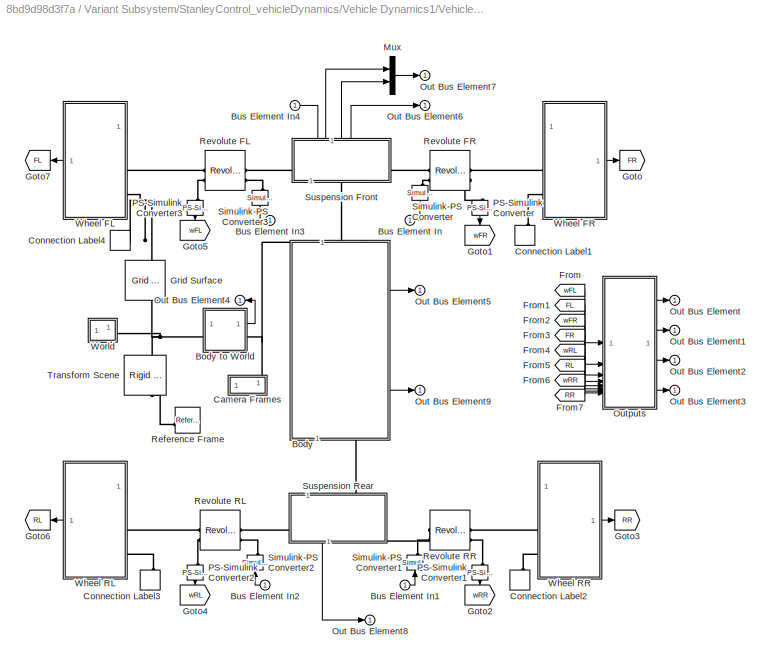
BLOCK [SubSystem] Variant Subsystem/StanleyControl_vehicleDynamics/Vehicle Dynamics1/Vehicle Dynamics Multibody/Vehicle
  AttributesFormatString = %<popup_scene>
BLOCK [SubSystem] Variant Subsystem/StanleyControl_vehicleDynamics/Vehicle Dynamics1/Vehicle Dynamics Multibody/Vehicle/Body
  PortSchema = {"entries":[{"content":{"sides":[{"content":{"connectorIds":["LConn1"]},"type":"ConnectorPlacement.EquallySpacedRectSide","uuid":"a6a40084-0b01-416d-a19a-d775fde84bbf"},{"content":{"connectorIds":["RConn1"],"side":"RIGHT"},"type":"ConnectorPlacement.EquallySpacedRectSide","uuid":"7b527776-1265-46e3-b587-d37cab880183"},{"content":{"connectorIds":["Out1","Out2"],"side":"TOP"},"type":"ConnectorPlacem...<+410ch>
BLOCK [SubSystem] Variant Subsystem/StanleyControl_vehicleDynamics/Vehicle Dynamics1/Vehicle Dynamics Multibody/Vehicle/Body to World
BLOCK [PMIOPort] Variant Subsystem/StanleyControl_vehicleDynamics/Vehicle Dynamics1/Vehicle Dynamics Multibody/Vehicle/Body to World/B
  Port = 2
  Side = Left
BLOCK [Reference] Variant Subsystem/StanleyControl_vehicleDynamics/Vehicle Dynamics1/Vehicle Dynamics Multibody/Vehicle/Body to World/Body World Joint  REF=sm_lib/Joints/6-DOF Joint
  SourceBlock = sm_lib/Joints/6-DOF Joint
  SourceType = 6-DOF Joint
BLOCK [Outport] Variant Subsystem/StanleyControl_vehicleDynamics/Vehicle Dynamics1/Vehicle Dynamics Multibody/Vehicle/Body to World/Bus Element Out
  VectorParamsAs1DForOutWhenUnconnected = off
BLOCK [Outport] Variant Subsystem/StanleyControl_vehicleDynamics/Vehicle Dynamics1/Vehicle Dynamics Multibody/Vehicle/Body to World/Bus Element Out1
  VectorParamsAs1DForOutWhenUnconnected = off
BLOCK [Outport] Variant Subsystem/StanleyControl_vehicleDynamics/Vehicle Dynamics1/Vehicle Dynamics Multibody/Vehicle/Body to World/Bus Element Out10
  VectorParamsAs1DForOutWhenUnconnected = off
BLOCK [Outport] Variant Subsystem/StanleyControl_vehicleDynamics/Vehicle Dynamics1/Vehicle Dynamics Multibody/Vehicle/Body to World/Bus Element Out11
  VectorParamsAs1DForOutWhenUnconnected = off
BLOCK [Outport] Variant Subsystem/StanleyControl_vehicleDynamics/Vehicle Dynamics1/Vehicle Dynamics Multibody/Vehicle/Body to World/Bus Element Out12
  VectorParamsAs1DForOutWhenUnconnected = off
BLOCK [Outport] Variant Subsystem/StanleyControl_vehicleDynamics/Vehicle Dynamics1/Vehicle Dynamics Multibody/Vehicle/Body to World/Bus Element Out13
  VectorParamsAs1DForOutWhenUnconnected = off
BLOCK [Outport] Variant Subsystem/StanleyControl_vehicleDynamics/Vehicle Dynamics1/Vehicle Dynamics Multibody/Vehicle/Body to World/Bus Element Out14
  VectorParamsAs1DForOutWhenUnconnected = off
BLOCK [Outport] Variant Subsystem/StanleyControl_vehicleDynamics/Vehicle Dynamics1/Vehicle Dynamics Multibody/Vehicle/Body to World/Bus Element Out2
  VectorParamsAs1DForOutWhenUnconnected = off
BLOCK [Outport] Variant Subsystem/StanleyControl_vehicleDynamics/Vehicle Dynamics1/Vehicle Dynamics Multibody/Vehicle/Body to World/Bus Element Out3
  VectorParamsAs1DForOutWhenUnconnected = off
BLOCK [Outport] Variant Subsystem/StanleyControl_vehicleDynamics/Vehicle Dynamics1/Vehicle Dynamics Multibody/Vehicle/Body to World/Bus Element Out4
  VectorParamsAs1DForOutWhenUnconnected = off
BLOCK [Outport] Variant Subsystem/StanleyControl_vehicleDynamics/Vehicle Dynamics1/Vehicle Dynamics Multibody/Vehicle/Body to World/Bus Element Out5
  VectorParamsAs1DForOutWhenUnconnected = off
BLOCK [Outport] Variant Subsystem/StanleyControl_vehicleDynamics/Vehicle Dynamics1/Vehicle Dynamics Multibody/Vehicle/Body to World/Bus Element Out6
  VectorParamsAs1DForOutWhenUnconnected = off
BLOCK [Outport] Variant Subsystem/StanleyControl_vehicleDynamics/Vehicle Dynamics1/Vehicle Dynamics Multibody/Vehicle/Body to World/Bus Element Out7
  VectorParamsAs1DForOutWhenUnconnected = off
BLOCK [Outport] Variant Subsystem/StanleyControl_vehicleDynamics/Vehicle Dynamics1/Vehicle Dynamics Multibody/Vehicle/Body to World/Bus Element Out8
  VectorParamsAs1DForOutWhenUnconnected = off
BLOCK [Outport] Variant Subsystem/StanleyControl_vehicleDynamics/Vehicle Dynamics1/Vehicle Dynamics Multibody/Vehicle/Body to World/Bus Element Out9
  VectorParamsAs1DForOutWhenUnconnected = off
BLOCK [PMIOPort] Variant Subsystem/StanleyControl_vehicleDynamics/Vehicle Dynamics1/Vehicle Dynamics Multibody/Vehicle/Body to World/F
  Side = Right
BLOCK [Outport] Variant Subsystem/StanleyControl_vehicleDynamics/Vehicle Dynamics1/Vehicle Dynamics Multibody/Vehicle/Body to World/Out Bus Element
  VectorParamsAs1DForOutWhenUnconnected = off
BLOCK [Reference] Variant Subsystem/StanleyControl_vehicleDynamics/Vehicle Dynamics1/Vehicle Dynamics Multibody/Vehicle/Body to World/PS-Simulink Converter  REF=nesl_utility/PS-Simulink
Converter
  SourceBlock = nesl_utility/PS-Simulink\nConverter
  SourceType = PS-Simulink\nConverter
BLOCK [Reference] Variant Subsystem/StanleyControl_vehicleDynamics/Vehicle Dynamics1/Vehicle Dynamics Multibody/Vehicle/Body to World/PS-Simulink Converter1  REF=nesl_utility/PS-Simulink
Converter
  SourceBlock = nesl_utility/PS-Simulink\nConverter
  SourceType = PS-Simulink\nConverter
BLOCK [Reference] Variant Subsystem/StanleyControl_vehicleDynamics/Vehicle Dynamics1/Vehicle Dynamics Multibody/Vehicle/Body to World/PS-Simulink Converter10  REF=nesl_utility/PS-Simulink
Converter
  SourceBlock = nesl_utility/PS-Simulink\nConverter
  SourceType = PS-Simulink\nConverter
BLOCK [Reference] Variant Subsystem/StanleyControl_vehicleDynamics/Vehicle Dynamics1/Vehicle Dynamics Multibody/Vehicle/Body to World/PS-Simulink Converter11  REF=nesl_utility/PS-Simulink
Converter
  SourceBlock = nesl_utility/PS-Simulink\nConverter
  SourceType = PS-Simulink\nConverter
BLOCK [Reference] Variant Subsystem/StanleyControl_vehicleDynamics/Vehicle Dynamics1/Vehicle Dynamics Multibody/Vehicle/Body to World/PS-Simulink Converter12  REF=nesl_utility/PS-Simulink
Converter
  SourceBlock = nesl_utility/PS-Simulink\nConverter
  SourceType = PS-Simulink\nConverter
BLOCK [Reference] Variant Subsystem/StanleyControl_vehicleDynamics/Vehicle Dynamics1/Vehicle Dynamics Multibody/Vehicle/Body to World/PS-Simulink Converter13  REF=nesl_utility/PS-Simulink
Converter
  SourceBlock = nesl_utility/PS-Simulink\nConverter
  SourceType = PS-Simulink\nConverter
BLOCK [Reference] Variant Subsystem/StanleyControl_vehicleDynamics/Vehicle Dynamics1/Vehicle Dynamics Multibody/Vehicle/Body to World/PS-Simulink Converter2  REF=nesl_utility/PS-Simulink
Converter
  SourceBlock = nesl_utility/PS-Simulink\nConverter
  SourceType = PS-Simulink\nConverter
BLOCK [Reference] Variant Subsystem/StanleyControl_vehicleDynamics/Vehicle Dynamics1/Vehicle Dynamics Multibody/Vehicle/Body to World/PS-Simulink Converter3  REF=nesl_utility/PS-Simulink
Converter
  SourceBlock = nesl_utility/PS-Simulink\nConverter
  SourceType = PS-Simulink\nConverter
BLOCK [Reference] Variant Subsystem/StanleyControl_vehicleDynamics/Vehicle Dynamics1/Vehicle Dynamics Multibody/Vehicle/Body to World/PS-Simulink Converter4  REF=nesl_utility/PS-Simulink
Converter
  SourceBlock = nesl_utility/PS-Simulink\nConverter
  SourceType = PS-Simulink\nConverter
BLOCK [Reference] Variant Subsystem/StanleyControl_vehicleDynamics/Vehicle Dynamics1/Vehicle Dynamics Multibody/Vehicle/Body to World/PS-Simulink Converter5  REF=nesl_utility/PS-Simulink
Converter
  SourceBlock = nesl_utility/PS-Simulink\nConverter
  SourceType = PS-Simulink\nConverter
BLOCK [Reference] Variant Subsystem/StanleyControl_vehicleDynamics/Vehicle Dynamics1/Vehicle Dynamics Multibody/Vehicle/Body to World/PS-Simulink Converter6  REF=nesl_utility/PS-Simulink
Converter
  SourceBlock = nesl_utility/PS-Simulink\nConverter
  SourceType = PS-Simulink\nConverter
BLOCK [Reference] Variant Subsystem/StanleyControl_vehicleDynamics/Vehicle Dynamics1/Vehicle Dynamics Multibody/Vehicle/Body to World/PS-Simulink Converter7  REF=nesl_utility/PS-Simulink
Converter
  SourceBlock = nesl_utility/PS-Simulink\nConverter
  SourceType = PS-Simulink\nConverter
BLOCK [Reference] Variant Subsystem/StanleyControl_vehicleDynamics/Vehicle Dynamics1/Vehicle Dynamics Multibody/Vehicle/Body to World/PS-Simulink Converter8  REF=nesl_utility/PS-Simulink
Converter
  SourceBlock = nesl_utility/PS-Simulink\nConverter
  SourceType = PS-Simulink\nConverter
BLOCK [Reference] Variant Subsystem/StanleyControl_vehicleDynamics/Vehicle Dynamics1/Vehicle Dynamics Multibody/Vehicle/Body to World/PS-Simulink Converter9  REF=nesl_utility/PS-Simulink
Converter
  SourceBlock = nesl_utility/PS-Simulink\nConverter
  SourceType = PS-Simulink\nConverter
BLOCK [SubSystem] Variant Subsystem/StanleyControl_vehicleDynamics/Vehicle Dynamics1/Vehicle Dynamics Multibody/Vehicle/Body to World/R to X-Y-Z Extrinsic
BLOCK [Trigonometry] Variant Subsystem/StanleyControl_vehicleDynamics/Vehicle Dynamics1/Vehicle Dynamics Multibody/Vehicle/Body to World/R to X-Y-Z Extrinsic/Asin
  Operator = asin
BLOCK [Trigonometry] Variant Subsystem/StanleyControl_vehicleDynamics/Vehicle Dynamics1/Vehicle Dynamics Multibody/Vehicle/Body to World/R to X-Y-Z Extrinsic/Atan1
  Operator = atan2
BLOCK [Trigonometry] Variant Subsystem/StanleyControl_vehicleDynamics/Vehicle Dynamics1/Vehicle Dynamics Multibody/Vehicle/Body to World/R to X-Y-Z Extrinsic/Atan2
  Operator = atan2
BLOCK [Demux] Variant Subsystem/StanleyControl_vehicleDynamics/Vehicle Dynamics1/Vehicle Dynamics Multibody/Vehicle/Body to World/R to X-Y-Z Extrinsic/Demux
  Outputs = 2
BLOCK [Demux] Variant Subsystem/StanleyControl_vehicleDynamics/Vehicle Dynamics1/Vehicle Dynamics Multibody/Vehicle/Body to World/R to X-Y-Z Extrinsic/Demux1
  Outputs = 2
BLOCK [Gain] Variant Subsystem/StanleyControl_vehicleDynamics/Vehicle Dynamics1/Vehicle Dynamics Multibody/Vehicle/Body to World/R to X-Y-Z Extrinsic/Multiply2
  Gain = -1
BLOCK [Inport] Variant Subsystem/StanleyControl_vehicleDynamics/Vehicle Dynamics1/Vehicle Dynamics Multibody/Vehicle/Body to World/R to X-Y-Z Extrinsic/R
BLOCK [Selector] Variant Subsystem/StanleyControl_vehicleDynamics/Vehicle Dynamics1/Vehicle Dynamics Multibody/Vehicle/Body to World/R to X-Y-Z Extrinsic/R(3, 1)
  IndexOptions = Index vector (dialog),Index vector (dialog)
  Indices = 3,1
  InputPortWidth = 3
  NumberOfDimensions = 2
  OutputSizes = 1,1
BLOCK [Selector] Variant Subsystem/StanleyControl_vehicleDynamics/Vehicle Dynamics1/Vehicle Dynamics Multibody/Vehicle/Body to World/R to X-Y-Z Extrinsic/R(3, 2:3)
  IndexOptions = Index vector (dialog),Index vector (dialog)
  Indices = 3,[2 3]
  InputPortWidth = 3
  NumberOfDimensions = 2
  OutputSizes = 1,1
BLOCK [Selector] Variant Subsystem/StanleyControl_vehicleDynamics/Vehicle Dynamics1/Vehicle Dynamics Multibody/Vehicle/Body to World/R to X-Y-Z Extrinsic/R([2 1], 1)
  IndexOptions = Index vector (dialog),Index vector (dialog)
  Indices = [2 1],1
  InputPortWidth = 3
  NumberOfDimensions = 2
  OutputSizes = 1,1
BLOCK [Reshape] Variant Subsystem/StanleyControl_vehicleDynamics/Vehicle Dynamics1/Vehicle Dynamics Multibody/Vehicle/Body to World/R to X-Y-Z Extrinsic/Reshape
BLOCK [Reshape] Variant Subsystem/StanleyControl_vehicleDynamics/Vehicle Dynamics1/Vehicle Dynamics Multibody/Vehicle/Body to World/R to X-Y-Z Extrinsic/Reshape1
BLOCK [Reshape] Variant Subsystem/StanleyControl_vehicleDynamics/Vehicle Dynamics1/Vehicle Dynamics Multibody/Vehicle/Body to World/R to X-Y-Z Extrinsic/Reshape2
  OutputDimensionality = Customize
  OutputDimensions = 1
BLOCK [Outport] Variant Subsystem/StanleyControl_vehicleDynamics/Vehicle Dynamics1/Vehicle Dynamics Multibody/Vehicle/Body to World/R to X-Y-Z Extrinsic/pitch
  Port = 2
  VectorParamsAs1DForOutWhenUnconnected = off
BLOCK [Outport] Variant Subsystem/StanleyControl_vehicleDynamics/Vehicle Dynamics1/Vehicle Dynamics Multibody/Vehicle/Body to World/R to X-Y-Z Extrinsic/roll
  Port = 3
  VectorParamsAs1DForOutWhenUnconnected = off
BLOCK [Outport] Variant Subsystem/StanleyControl_vehicleDynamics/Vehicle Dynamics1/Vehicle Dynamics Multibody/Vehicle/Body to World/R to X-Y-Z Extrinsic/yaw
  VectorParamsAs1DForOutWhenUnconnected = off
BLOCK [SignalSpecification] Variant Subsystem/StanleyControl_vehicleDynamics/Vehicle Dynamics1/Vehicle Dynamics Multibody/Vehicle/Body to World/Signal Specification
  Unit = rad
BLOCK [SignalSpecification] Variant Subsystem/StanleyControl_vehicleDynamics/Vehicle Dynamics1/Vehicle Dynamics Multibody/Vehicle/Body to World/Signal Specification1
  Unit = rad
BLOCK [SignalSpecification] Variant Subsystem/StanleyControl_vehicleDynamics/Vehicle Dynamics1/Vehicle Dynamics Multibody/Vehicle/Body to World/Signal Specification2
  Unit = rad
BLOCK [Reference] Variant Subsystem/StanleyControl_vehicleDynamics/Vehicle Dynamics1/Vehicle Dynamics Multibody/Vehicle/Body to World/Transform Sensor  REF=sm_lib/Frames and
Transforms/Transform
Sensor
  SourceBlock = sm_lib/Frames and\nTransforms/Transform\nSensor
  SourceType = Transform\nSensor
BLOCK [Reference] Variant Subsystem/StanleyControl_vehicleDynamics/Vehicle Dynamics1/Vehicle Dynamics Multibody/Vehicle/Body/Body Inertia  REF=sm_lib/Body Elements/Brick Solid
  SourceBlock = sm_lib/Body Elements/Brick Solid
  SourceType = Brick Solid
BLOCK [SubSystem] Variant Subsystem/StanleyControl_vehicleDynamics/Vehicle Dynamics1/Vehicle Dynamics Multibody/Vehicle/Body/Body Sensor
  Commented = on
BLOCK [PMIOPort] Variant Subsystem/StanleyControl_vehicleDynamics/Vehicle Dynamics1/Vehicle Dynamics Multibody/Vehicle/Body/Body Sensor/B
  NameLocation = top
  Side = Left
BLOCK [Outport] Variant Subsystem/StanleyControl_vehicleDynamics/Vehicle Dynamics1/Vehicle Dynamics Multibody/Vehicle/Body/Body Sensor/Bus Element Out
  VectorParamsAs1DForOutWhenUnconnected = off
BLOCK [Outport] Variant Subsystem/StanleyControl_vehicleDynamics/Vehicle Dynamics1/Vehicle Dynamics Multibody/Vehicle/Body/Body Sensor/Bus Element Out1
  VectorParamsAs1DForOutWhenUnconnected = off
BLOCK [Outport] Variant Subsystem/StanleyControl_vehicleDynamics/Vehicle Dynamics1/Vehicle Dynamics Multibody/Vehicle/Body/Body Sensor/Bus Element Out10
  VectorParamsAs1DForOutWhenUnconnected = off
BLOCK [Outport] Variant Subsystem/StanleyControl_vehicleDynamics/Vehicle Dynamics1/Vehicle Dynamics Multibody/Vehicle/Body/Body Sensor/Bus Element Out12
  VectorParamsAs1DForOutWhenUnconnected = off
BLOCK [Outport] Variant Subsystem/StanleyControl_vehicleDynamics/Vehicle Dynamics1/Vehicle Dynamics Multibody/Vehicle/Body/Body Sensor/Bus Element Out13
  VectorParamsAs1DForOutWhenUnconnected = off
BLOCK [Outport] Variant Subsystem/StanleyControl_vehicleDynamics/Vehicle Dynamics1/Vehicle Dynamics Multibody/Vehicle/Body/Body Sensor/Bus Element Out2
  VectorParamsAs1DForOutWhenUnconnected = off
BLOCK [Outport] Variant Subsystem/StanleyControl_vehicleDynamics/Vehicle Dynamics1/Vehicle Dynamics Multibody/Vehicle/Body/Body Sensor/Bus Element Out3
  VectorParamsAs1DForOutWhenUnconnected = off
BLOCK [Outport] Variant Subsystem/StanleyControl_vehicleDynamics/Vehicle Dynamics1/Vehicle Dynamics Multibody/Vehicle/Body/Body Sensor/Bus Element Out4
  VectorParamsAs1DForOutWhenUnconnected = off
BLOCK [Outport] Variant Subsystem/StanleyControl_vehicleDynamics/Vehicle Dynamics1/Vehicle Dynamics Multibody/Vehicle/Body/Body Sensor/Bus Element Out5
  VectorParamsAs1DForOutWhenUnconnected = off
BLOCK [Outport] Variant Subsystem/StanleyControl_vehicleDynamics/Vehicle Dynamics1/Vehicle Dynamics Multibody/Vehicle/Body/Body Sensor/Bus Element Out6
  VectorParamsAs1DForOutWhenUnconnected = off
BLOCK [Outport] Variant Subsystem/StanleyControl_vehicleDynamics/Vehicle Dynamics1/Vehicle Dynamics Multibody/Vehicle/Body/Body Sensor/Bus Element Out7
  VectorParamsAs1DForOutWhenUnconnected = off
BLOCK [Outport] Variant Subsystem/StanleyControl_vehicleDynamics/Vehicle Dynamics1/Vehicle Dynamics Multibody/Vehicle/Body/Body Sensor/Bus Element Out8
  VectorParamsAs1DForOutWhenUnconnected = off
BLOCK [Outport] Variant Subsystem/StanleyControl_vehicleDynamics/Vehicle Dynamics1/Vehicle Dynamics Multibody/Vehicle/Body/Body Sensor/Bus Element Out9
  VectorParamsAs1DForOutWhenUnconnected = off
BLOCK [Reference] Variant Subsystem/StanleyControl_vehicleDynamics/Vehicle Dynamics1/Vehicle Dynamics Multibody/Vehicle/Body/Body Sensor/PS-Simulink Converter1  REF=nesl_utility/PS-Simulink
Converter
  SourceBlock = nesl_utility/PS-Simulink\nConverter
  SourceType = PS-Simulink\nConverter
BLOCK [Reference] Variant Subsystem/StanleyControl_vehicleDynamics/Vehicle Dynamics1/Vehicle Dynamics Multibody/Vehicle/Body/Body Sensor/PS-Simulink Converter11  REF=nesl_utility/PS-Simulink
Converter
  SourceBlock = nesl_utility/PS-Simulink\nConverter
  SourceType = PS-Simulink\nConverter
BLOCK [Reference] Variant Subsystem/StanleyControl_vehicleDynamics/Vehicle Dynamics1/Vehicle Dynamics Multibody/Vehicle/Body/Body Sensor/PS-Simulink Converter2  REF=nesl_utility/PS-Simulink
Converter
  SourceBlock = nesl_utility/PS-Simulink\nConverter
  SourceType = PS-Simulink\nConverter
BLOCK [Reference] Variant Subsystem/StanleyControl_vehicleDynamics/Vehicle Dynamics1/Vehicle Dynamics Multibody/Vehicle/Body/Body Sensor/PS-Simulink Converter3  REF=nesl_utility/PS-Simulink
Converter
  SourceBlock = nesl_utility/PS-Simulink\nConverter
  SourceType = PS-Simulink\nConverter
BLOCK [Reference] Variant Subsystem/StanleyControl_vehicleDynamics/Vehicle Dynamics1/Vehicle Dynamics Multibody/Vehicle/Body/Body Sensor/PS-Simulink Converter4  REF=nesl_utility/PS-Simulink
Converter
  SourceBlock = nesl_utility/PS-Simulink\nConverter
  SourceType = PS-Simulink\nConverter
BLOCK [Reference] Variant Subsystem/StanleyControl_vehicleDynamics/Vehicle Dynamics1/Vehicle Dynamics Multibody/Vehicle/Body/Body Sensor/PS-Simulink Converter5  REF=nesl_utility/PS-Simulink
Converter
  SourceBlock = nesl_utility/PS-Simulink\nConverter
  SourceType = PS-Simulink\nConverter
BLOCK [Reference] Variant Subsystem/StanleyControl_vehicleDynamics/Vehicle Dynamics1/Vehicle Dynamics Multibody/Vehicle/Body/Body Sensor/PS-Simulink Converter6  REF=nesl_utility/PS-Simulink
Converter
  SourceBlock = nesl_utility/PS-Simulink\nConverter
  SourceType = PS-Simulink\nConverter
BLOCK [Reference] Variant Subsystem/StanleyControl_vehicleDynamics/Vehicle Dynamics1/Vehicle Dynamics Multibody/Vehicle/Body/Body Sensor/PS-Simulink Converter7  REF=nesl_utility/PS-Simulink
Converter
  SourceBlock = nesl_utility/PS-Simulink\nConverter
  SourceType = PS-Simulink\nConverter
BLOCK [Reference] Variant Subsystem/StanleyControl_vehicleDynamics/Vehicle Dynamics1/Vehicle Dynamics Multibody/Vehicle/Body/Body Sensor/PS-Simulink Converter8  REF=nesl_utility/PS-Simulink
Converter
  SourceBlock = nesl_utility/PS-Simulink\nConverter
  SourceType = PS-Simulink\nConverter
BLOCK [Reference] Variant Subsystem/StanleyControl_vehicleDynamics/Vehicle Dynamics1/Vehicle Dynamics Multibody/Vehicle/Body/Body Sensor/PS-Simulink Converter9  REF=nesl_utility/PS-Simulink
Converter
  SourceBlock = nesl_utility/PS-Simulink\nConverter
  SourceType = PS-Simulink\nConverter
BLOCK [SubSystem] Variant Subsystem/StanleyControl_vehicleDynamics/Vehicle Dynamics1/Vehicle Dynamics Multibody/Vehicle/Body/Body Sensor/Roll Pitch
BLOCK [SubSystem] Variant Subsystem/StanleyControl_vehicleDynamics/Vehicle Dynamics1/Vehicle Dynamics Multibody/Vehicle/Body/Body Sensor/Roll Pitch/Calculate aPitch
BLOCK [Outport] Variant Subsystem/StanleyControl_vehicleDynamics/Vehicle Dynamics1/Vehicle Dynamics Multibody/Vehicle/Body/Body Sensor/Roll Pitch/Calculate aPitch/Angle
  VectorParamsAs1DForOutWhenUnconnected = off
BLOCK [Trigonometry] Variant Subsystem/StanleyControl_vehicleDynamics/Vehicle Dynamics1/Vehicle Dynamics Multibody/Vehicle/Body/Body Sensor/Roll Pitch/Calculate aPitch/Asin
  Operator = asin
BLOCK [Trigonometry] Variant Subsystem/StanleyControl_vehicleDynamics/Vehicle Dynamics1/Vehicle Dynamics Multibody/Vehicle/Body/Body Sensor/Roll Pitch/Calculate aPitch/Cos
  Operator = cos
BLOCK [Product] Variant Subsystem/StanleyControl_vehicleDynamics/Vehicle Dynamics1/Vehicle Dynamics Multibody/Vehicle/Body/Body Sensor/Roll Pitch/Calculate aPitch/Divide
  Inputs = */
BLOCK [Product] Variant Subsystem/StanleyControl_vehicleDynamics/Vehicle Dynamics1/Vehicle Dynamics Multibody/Vehicle/Body/Body Sensor/Roll Pitch/Calculate aPitch/Divide1
  Inputs = */
BLOCK [Inport] Variant Subsystem/StanleyControl_vehicleDynamics/Vehicle Dynamics1/Vehicle Dynamics Multibody/Vehicle/Body/Body Sensor/Roll Pitch/Calculate aPitch/Roll Angle
BLOCK [Selector] Variant Subsystem/StanleyControl_vehicleDynamics/Vehicle Dynamics1/Vehicle Dynamics Multibody/Vehicle/Body/Body Sensor/Roll Pitch/Calculate aPitch/Selector
  IndexOptions = Index vector (dialog)
  Indices = [3]
  InputPortWidth = 3
  NameLocation = top
  OutputSizes = 1
BLOCK [Fcn] Variant Subsystem/StanleyControl_vehicleDynamics/Vehicle Dynamics1/Vehicle Dynamics Multibody/Vehicle/Body/Body Sensor/Roll Pitch/Calculate aPitch/magnitude
  Expr = sqrt(u(1)*u(1)+u(2)*u(2)+u(3)*u(3))
BLOCK [Inport] Variant Subsystem/StanleyControl_vehicleDynamics/Vehicle Dynamics1/Vehicle Dynamics Multibody/Vehicle/Body/Body Sensor/Roll Pitch/Calculate aPitch/uvec
  Port = 2
BLOCK [SubSystem] Variant Subsystem/StanleyControl_vehicleDynamics/Vehicle Dynamics1/Vehicle Dynamics Multibody/Vehicle/Body/Body Sensor/Roll Pitch/Calculate aRoll
BLOCK [Outport] Variant Subsystem/StanleyControl_vehicleDynamics/Vehicle Dynamics1/Vehicle Dynamics Multibody/Vehicle/Body/Body Sensor/Roll Pitch/Calculate aRoll/Angle
  VectorParamsAs1DForOutWhenUnconnected = off
BLOCK [Demux] Variant Subsystem/StanleyControl_vehicleDynamics/Vehicle Dynamics1/Vehicle Dynamics Multibody/Vehicle/Body/Body Sensor/Roll Pitch/Calculate aRoll/Demux
  Outputs = 3
BLOCK [Mux] Variant Subsystem/StanleyControl_vehicleDynamics/Vehicle Dynamics1/Vehicle Dynamics Multibody/Vehicle/Body/Body Sensor/Roll Pitch/Calculate aRoll/Mux
  DisplayOption = bar
  Inputs = 2
BLOCK [Trigonometry] Variant Subsystem/StanleyControl_vehicleDynamics/Vehicle Dynamics1/Vehicle Dynamics Multibody/Vehicle/Body/Body Sensor/Roll Pitch/Calculate aRoll/Trigonometric Function1
  Operator = atan2
BLOCK [Fcn] Variant Subsystem/StanleyControl_vehicleDynamics/Vehicle Dynamics1/Vehicle Dynamics Multibody/Vehicle/Body/Body Sensor/Roll Pitch/Calculate aRoll/magnitude
  Expr = sqrt(u(1)*u(1)+u(2)*u(2))
BLOCK [Inport] Variant Subsystem/StanleyControl_vehicleDynamics/Vehicle Dynamics1/Vehicle Dynamics Multibody/Vehicle/Body/Body Sensor/Roll Pitch/Calculate aRoll/uvec
BLOCK [Gain] Variant Subsystem/StanleyControl_vehicleDynamics/Vehicle Dynamics1/Vehicle Dynamics Multibody/Vehicle/Body/Body Sensor/Roll Pitch/Flip sign for -x axis 
  Gain = -1
BLOCK [Inport] Variant Subsystem/StanleyControl_vehicleDynamics/Vehicle Dynamics1/Vehicle Dynamics Multibody/Vehicle/Body/Body Sensor/Roll Pitch/R
BLOCK [Selector] Variant Subsystem/StanleyControl_vehicleDynamics/Vehicle Dynamics1/Vehicle Dynamics Multibody/Vehicle/Body/Body Sensor/Roll Pitch/Select x axis
  IndexOptions = Index vector (dialog),Index vector (dialog)
  Indices = [1 2 3],1
  InputPortWidth = 2
  NumberOfDimensions = 2
  OutputSizes = 1,1
BLOCK [Selector] Variant Subsystem/StanleyControl_vehicleDynamics/Vehicle Dynamics1/Vehicle Dynamics Multibody/Vehicle/Body/Body Sensor/Roll Pitch/Select y axis
  IndexOptions = Index vector (dialog),Index vector (dialog)
  Indices = [1 2 3],2
  InputPortWidth = 2
  NumberOfDimensions = 2
  OutputSizes = 1,1
BLOCK [TransferFcn] Variant Subsystem/StanleyControl_vehicleDynamics/Vehicle Dynamics1/Vehicle Dynamics Multibody/Vehicle/Body/Body Sensor/Roll Pitch/Transfer Fcn
  Denominator = [0.01 1]
  NameLocation = top
  Numerator = [1 0]
BLOCK [TransferFcn] Variant Subsystem/StanleyControl_vehicleDynamics/Vehicle Dynamics1/Vehicle Dynamics Multibody/Vehicle/Body/Body Sensor/Roll Pitch/Transfer Fcn1
  Denominator = [0.01 1]
  NameLocation = top
  Numerator = [1 0]
BLOCK [Outport] Variant Subsystem/StanleyControl_vehicleDynamics/Vehicle Dynamics1/Vehicle Dynamics Multibody/Vehicle/Body/Body Sensor/Roll Pitch/aPitch
  Port = 2
  VectorParamsAs1DForOutWhenUnconnected = off
BLOCK [Outport] Variant Subsystem/StanleyControl_vehicleDynamics/Vehicle Dynamics1/Vehicle Dynamics Multibody/Vehicle/Body/Body Sensor/Roll Pitch/aRoll
  VectorParamsAs1DForOutWhenUnconnected = off
BLOCK [Outport] Variant Subsystem/StanleyControl_vehicleDynamics/Vehicle Dynamics1/Vehicle Dynamics Multibody/Vehicle/Body/Body Sensor/Roll Pitch/nPitch
  Port = 4
  VectorParamsAs1DForOutWhenUnconnected = off
BLOCK [Outport] Variant Subsystem/StanleyControl_vehicleDynamics/Vehicle Dynamics1/Vehicle Dynamics Multibody/Vehicle/Body/Body Sensor/Roll Pitch/nRoll
  Port = 3
  VectorParamsAs1DForOutWhenUnconnected = off
BLOCK [SignalSpecification] Variant Subsystem/StanleyControl_vehicleDynamics/Vehicle Dynamics1/Vehicle Dynamics Multibody/Vehicle/Body/Body Sensor/Signal Specification
  Unit = rad
BLOCK [SignalSpecification] Variant Subsystem/StanleyControl_vehicleDynamics/Vehicle Dynamics1/Vehicle Dynamics Multibody/Vehicle/Body/Body Sensor/Signal Specification1
  Unit = rad
BLOCK [SignalSpecification] Variant Subsystem/StanleyControl_vehicleDynamics/Vehicle Dynamics1/Vehicle Dynamics Multibody/Vehicle/Body/Body Sensor/Signal Specification3
  Unit = rad/s
BLOCK [SignalSpecification] Variant Subsystem/StanleyControl_vehicleDynamics/Vehicle Dynamics1/Vehicle Dynamics Multibody/Vehicle/Body/Body Sensor/Signal Specification4
  Unit = rad/s
BLOCK [Reference] Variant Subsystem/StanleyControl_vehicleDynamics/Vehicle Dynamics1/Vehicle Dynamics Multibody/Vehicle/Body/Body Sensor/Transform Sensor Body  REF=sm_lib/Frames and
Transforms/Transform
Sensor
  AttributesFormatString = %<MeasurementFrame>
  SourceBlock = sm_lib/Frames and\nTransforms/Transform\nSensor
  SourceType = Transform\nSensor
BLOCK [Reference] Variant Subsystem/StanleyControl_vehicleDynamics/Vehicle Dynamics1/Vehicle Dynamics Multibody/Vehicle/Body/Body Sensor/Transform Sensor Offset  REF=sm_lib/Frames and
Transforms/Rigid
Transform
  NameLocation = top
  SourceBlock = sm_lib/Frames and\nTransforms/Rigid\nTransform
  SourceType = Rigid\nTransform
BLOCK [Reference] Variant Subsystem/StanleyControl_vehicleDynamics/Vehicle Dynamics1/Vehicle Dynamics Multibody/Vehicle/Body/Body Sensor/World Frame  REF=sm_lib/Frames and
Transforms/World Frame
  SourceBlock = sm_lib/Frames and\nTransforms/World Frame
  SourceType = World Frame
BLOCK [PMIOPort] Variant Subsystem/StanleyControl_vehicleDynamics/Vehicle Dynamics1/Vehicle Dynamics Multibody/Vehicle/Body/FA
  NameLocation = left
  Port = 2
  Side = Right
BLOCK [SubSystem] Variant Subsystem/StanleyControl_vehicleDynamics/Vehicle Dynamics1/Vehicle Dynamics Multibody/Vehicle/Body/MyBodySensor
BLOCK [PMIOPort] Variant Subsystem/StanleyControl_vehicleDynamics/Vehicle Dynamics1/Vehicle Dynamics Multibody/Vehicle/Body/MyBodySensor/B
  NameLocation = top
  Side = Left
BLOCK [Outport] Variant Subsystem/StanleyControl_vehicleDynamics/Vehicle Dynamics1/Vehicle Dynamics Multibody/Vehicle/Body/MyBodySensor/Bus Element Out1
  VectorParamsAs1DForOutWhenUnconnected = off
BLOCK [Outport] Variant Subsystem/StanleyControl_vehicleDynamics/Vehicle Dynamics1/Vehicle Dynamics Multibody/Vehicle/Body/MyBodySensor/Bus Element Out10
  VectorParamsAs1DForOutWhenUnconnected = off
BLOCK [Outport] Variant Subsystem/StanleyControl_vehicleDynamics/Vehicle Dynamics1/Vehicle Dynamics Multibody/Vehicle/Body/MyBodySensor/Bus Element Out11
  VectorParamsAs1DForOutWhenUnconnected = off
BLOCK [Outport] Variant Subsystem/StanleyControl_vehicleDynamics/Vehicle Dynamics1/Vehicle Dynamics Multibody/Vehicle/Body/MyBodySensor/Bus Element Out12
  VectorParamsAs1DForOutWhenUnconnected = off
BLOCK [Outport] Variant Subsystem/StanleyControl_vehicleDynamics/Vehicle Dynamics1/Vehicle Dynamics Multibody/Vehicle/Body/MyBodySensor/Bus Element Out13
  VectorParamsAs1DForOutWhenUnconnected = off
BLOCK [Outport] Variant Subsystem/StanleyControl_vehicleDynamics/Vehicle Dynamics1/Vehicle Dynamics Multibody/Vehicle/Body/MyBodySensor/Bus Element Out14
  VectorParamsAs1DForOutWhenUnconnected = off
BLOCK [Outport] Variant Subsystem/StanleyControl_vehicleDynamics/Vehicle Dynamics1/Vehicle Dynamics Multibody/Vehicle/Body/MyBodySensor/Bus Element Out15
  VectorParamsAs1DForOutWhenUnconnected = off
BLOCK [Outport] Variant Subsystem/StanleyControl_vehicleDynamics/Vehicle Dynamics1/Vehicle Dynamics Multibody/Vehicle/Body/MyBodySensor/Bus Element Out2
  VectorParamsAs1DForOutWhenUnconnected = off
BLOCK [Outport] Variant Subsystem/StanleyControl_vehicleDynamics/Vehicle Dynamics1/Vehicle Dynamics Multibody/Vehicle/Body/MyBodySensor/Bus Element Out3
  VectorParamsAs1DForOutWhenUnconnected = off
BLOCK [Outport] Variant Subsystem/StanleyControl_vehicleDynamics/Vehicle Dynamics1/Vehicle Dynamics Multibody/Vehicle/Body/MyBodySensor/Bus Element Out4
  VectorParamsAs1DForOutWhenUnconnected = off
BLOCK [Outport] Variant Subsystem/StanleyControl_vehicleDynamics/Vehicle Dynamics1/Vehicle Dynamics Multibody/Vehicle/Body/MyBodySensor/Bus Element Out5
  VectorParamsAs1DForOutWhenUnconnected = off
BLOCK [Outport] Variant Subsystem/StanleyControl_vehicleDynamics/Vehicle Dynamics1/Vehicle Dynamics Multibody/Vehicle/Body/MyBodySensor/Bus Element Out6
  VectorParamsAs1DForOutWhenUnconnected = off
BLOCK [Outport] Variant Subsystem/StanleyControl_vehicleDynamics/Vehicle Dynamics1/Vehicle Dynamics Multibody/Vehicle/Body/MyBodySensor/Bus Element Out7
  VectorParamsAs1DForOutWhenUnconnected = off
BLOCK [Outport] Variant Subsystem/StanleyControl_vehicleDynamics/Vehicle Dynamics1/Vehicle Dynamics Multibody/Vehicle/Body/MyBodySensor/Bus Element Out8
  VectorParamsAs1DForOutWhenUnconnected = off
BLOCK [Outport] Variant Subsystem/StanleyControl_vehicleDynamics/Vehicle Dynamics1/Vehicle Dynamics Multibody/Vehicle/Body/MyBodySensor/Bus Element Out9
  VectorParamsAs1DForOutWhenUnconnected = off
BLOCK [Demux] Variant Subsystem/StanleyControl_vehicleDynamics/Vehicle Dynamics1/Vehicle Dynamics Multibody/Vehicle/Body/MyBodySensor/Demux
  Outputs = 3
BLOCK [Demux] Variant Subsystem/StanleyControl_vehicleDynamics/Vehicle Dynamics1/Vehicle Dynamics Multibody/Vehicle/Body/MyBodySensor/Demux1
  Outputs = 3
BLOCK [Reference] Variant Subsystem/StanleyControl_vehicleDynamics/Vehicle Dynamics1/Vehicle Dynamics Multibody/Vehicle/Body/MyBodySensor/PS-Simulink Converter1  REF=nesl_utility/PS-Simulink
Converter
  SourceBlock = nesl_utility/PS-Simulink\nConverter
  SourceType = PS-Simulink\nConverter
BLOCK [Reference] Variant Subsystem/StanleyControl_vehicleDynamics/Vehicle Dynamics1/Vehicle Dynamics Multibody/Vehicle/Body/MyBodySensor/PS-Simulink Converter10  REF=nesl_utility/PS-Simulink
Converter
  SourceBlock = nesl_utility/PS-Simulink\nConverter
  SourceType = PS-Simulink\nConverter
BLOCK [Reference] Variant Subsystem/StanleyControl_vehicleDynamics/Vehicle Dynamics1/Vehicle Dynamics Multibody/Vehicle/Body/MyBodySensor/PS-Simulink Converter11  REF=nesl_utility/PS-Simulink
Converter
  SourceBlock = nesl_utility/PS-Simulink\nConverter
  SourceType = PS-Simulink\nConverter
BLOCK [Reference] Variant Subsystem/StanleyControl_vehicleDynamics/Vehicle Dynamics1/Vehicle Dynamics Multibody/Vehicle/Body/MyBodySensor/PS-Simulink Converter2  REF=nesl_utility/PS-Simulink
Converter
  SourceBlock = nesl_utility/PS-Simulink\nConverter
  SourceType = PS-Simulink\nConverter
BLOCK [Reference] Variant Subsystem/StanleyControl_vehicleDynamics/Vehicle Dynamics1/Vehicle Dynamics Multibody/Vehicle/Body/MyBodySensor/PS-Simulink Converter3  REF=nesl_utility/PS-Simulink
Converter
  SourceBlock = nesl_utility/PS-Simulink\nConverter
  SourceType = PS-Simulink\nConverter
BLOCK [Reference] Variant Subsystem/StanleyControl_vehicleDynamics/Vehicle Dynamics1/Vehicle Dynamics Multibody/Vehicle/Body/MyBodySensor/PS-Simulink Converter4  REF=nesl_utility/PS-Simulink
Converter
  SourceBlock = nesl_utility/PS-Simulink\nConverter
  SourceType = PS-Simulink\nConverter
BLOCK [Reference] Variant Subsystem/StanleyControl_vehicleDynamics/Vehicle Dynamics1/Vehicle Dynamics Multibody/Vehicle/Body/MyBodySensor/PS-Simulink Converter5  REF=nesl_utility/PS-Simulink
Converter
  SourceBlock = nesl_utility/PS-Simulink\nConverter
  SourceType = PS-Simulink\nConverter
BLOCK [Reference] Variant Subsystem/StanleyControl_vehicleDynamics/Vehicle Dynamics1/Vehicle Dynamics Multibody/Vehicle/Body/MyBodySensor/PS-Simulink Converter6  REF=nesl_utility/PS-Simulink
Converter
  SourceBlock = nesl_utility/PS-Simulink\nConverter
  SourceType = PS-Simulink\nConverter
BLOCK [Reference] Variant Subsystem/StanleyControl_vehicleDynamics/Vehicle Dynamics1/Vehicle Dynamics Multibody/Vehicle/Body/MyBodySensor/PS-Simulink Converter7  REF=nesl_utility/PS-Simulink
Converter
  SourceBlock = nesl_utility/PS-Simulink\nConverter
  SourceType = PS-Simulink\nConverter
BLOCK [Reference] Variant Subsystem/StanleyControl_vehicleDynamics/Vehicle Dynamics1/Vehicle Dynamics Multibody/Vehicle/Body/MyBodySensor/PS-Simulink Converter8  REF=nesl_utility/PS-Simulink
Converter
  SourceBlock = nesl_utility/PS-Simulink\nConverter
  SourceType = PS-Simulink\nConverter
BLOCK [Reference] Variant Subsystem/StanleyControl_vehicleDynamics/Vehicle Dynamics1/Vehicle Dynamics Multibody/Vehicle/Body/MyBodySensor/PS-Simulink Converter9  REF=nesl_utility/PS-Simulink
Converter
  SourceBlock = nesl_utility/PS-Simulink\nConverter
  SourceType = PS-Simulink\nConverter
BLOCK [SignalSpecification] Variant Subsystem/StanleyControl_vehicleDynamics/Vehicle Dynamics1/Vehicle Dynamics Multibody/Vehicle/Body/MyBodySensor/Signal Specification
  Unit = rad
BLOCK [SignalSpecification] Variant Subsystem/StanleyControl_vehicleDynamics/Vehicle Dynamics1/Vehicle Dynamics Multibody/Vehicle/Body/MyBodySensor/Signal Specification1
  Unit = rad
BLOCK [SignalSpecification] Variant Subsystem/StanleyControl_vehicleDynamics/Vehicle Dynamics1/Vehicle Dynamics Multibody/Vehicle/Body/MyBodySensor/Signal Specification2
  Unit = rad
BLOCK [SignalSpecification] Variant Subsystem/StanleyControl_vehicleDynamics/Vehicle Dynamics1/Vehicle Dynamics Multibody/Vehicle/Body/MyBodySensor/Signal Specification3
  Unit = rad/s
BLOCK [SignalSpecification] Variant Subsystem/StanleyControl_vehicleDynamics/Vehicle Dynamics1/Vehicle Dynamics Multibody/Vehicle/Body/MyBodySensor/Signal Specification4
  Unit = rad/s
BLOCK [SignalSpecification] Variant Subsystem/StanleyControl_vehicleDynamics/Vehicle Dynamics1/Vehicle Dynamics Multibody/Vehicle/Body/MyBodySensor/Signal Specification5
  Unit = rad/s
BLOCK [Reference] Variant Subsystem/StanleyControl_vehicleDynamics/Vehicle Dynamics1/Vehicle Dynamics Multibody/Vehicle/Body/MyBodySensor/Transform Sensor Body  REF=sm_lib/Frames and
Transforms/Transform
Sensor
  AttributesFormatString = %<MeasurementFrame>
  SourceBlock = sm_lib/Frames and\nTransforms/Transform\nSensor
  SourceType = Transform\nSensor
BLOCK [Reference] Variant Subsystem/StanleyControl_vehicleDynamics/Vehicle Dynamics1/Vehicle Dynamics Multibody/Vehicle/Body/MyBodySensor/Transform Sensor Offset  REF=sm_lib/Frames and
Transforms/Rigid
Transform
  NameLocation = top
  SourceBlock = sm_lib/Frames and\nTransforms/Rigid\nTransform
  SourceType = Rigid\nTransform
BLOCK [Reference] Variant Subsystem/StanleyControl_vehicleDynamics/Vehicle Dynamics1/Vehicle Dynamics Multibody/Vehicle/Body/MyBodySensor/World Frame  REF=sm_lib/Frames and
Transforms/World Frame
  SourceBlock = sm_lib/Frames and\nTransforms/World Frame
  SourceType = World Frame
BLOCK [Reference] Variant Subsystem/StanleyControl_vehicleDynamics/Vehicle Dynamics1/Vehicle Dynamics Multibody/Vehicle/Body/PS-Simulink Converter  REF=nesl_utility/PS-Simulink
Converter
  SourceBlock = nesl_utility/PS-Simulink\nConverter
  SourceType = PS-Simulink\nConverter
BLOCK [PMIOPort] Variant Subsystem/StanleyControl_vehicleDynamics/Vehicle Dynamics1/Vehicle Dynamics Multibody/Vehicle/Body/RA
  NameLocation = left
  Side = Left
BLOCK [Outport] Variant Subsystem/StanleyControl_vehicleDynamics/Vehicle Dynamics1/Vehicle Dynamics Multibody/Vehicle/Body/RA_position
  Port = 2
BLOCK [PMIOPort] Variant Subsystem/StanleyControl_vehicleDynamics/Vehicle Dynamics1/Vehicle Dynamics Multibody/Vehicle/Body/Ref
  Port = 3
  Side = Right
BLOCK [Reference] Variant Subsystem/StanleyControl_vehicleDynamics/Vehicle Dynamics1/Vehicle Dynamics Multibody/Vehicle/Body/Transform CG  REF=sm_lib/Frames and
Transforms/Rigid
Transform
  SourceBlock = sm_lib/Frames and\nTransforms/Rigid\nTransform
  SourceType = Rigid\nTransform
BLOCK [Reference] Variant Subsystem/StanleyControl_vehicleDynamics/Vehicle Dynamics1/Vehicle Dynamics Multibody/Vehicle/Body/Transform Geometry  REF=sm_lib/Frames and
Transforms/Rigid
Transform
  SourceBlock = sm_lib/Frames and\nTransforms/Rigid\nTransform
  SourceType = Rigid\nTransform
BLOCK [Reference] Variant Subsystem/StanleyControl_vehicleDynamics/Vehicle Dynamics1/Vehicle Dynamics Multibody/Vehicle/Body/Transform Sensor  REF=sm_lib/Frames and
Transforms/Transform
Sensor
  SourceBlock = sm_lib/Frames and\nTransforms/Transform\nSensor
  SourceType = Transform\nSensor
BLOCK [Reference] Variant Subsystem/StanleyControl_vehicleDynamics/Vehicle Dynamics1/Vehicle Dynamics Multibody/Vehicle/Body/Transform Suspension Front  REF=sm_lib/Frames and
Transforms/Rigid
Transform
  NameLocation = left
  SourceBlock = sm_lib/Frames and\nTransforms/Rigid\nTransform
  SourceType = Rigid\nTransform
BLOCK [Reference] Variant Subsystem/StanleyControl_vehicleDynamics/Vehicle Dynamics1/Vehicle Dynamics Multibody/Vehicle/Body/Transform Suspension Rear  REF=sm_lib/Frames and
Transforms/Rigid
Transform
  NameLocation = left
  SourceBlock = sm_lib/Frames and\nTransforms/Rigid\nTransform
  SourceType = Rigid\nTransform
BLOCK [Reference] Variant Subsystem/StanleyControl_vehicleDynamics/Vehicle Dynamics1/Vehicle Dynamics Multibody/Vehicle/Body/Vehicle Body  REF=sm_lib/Body Elements/File Solid
  SourceBlock = sm_lib/Body Elements/File Solid
  SourceType = File Solid
BLOCK [Reference] Variant Subsystem/StanleyControl_vehicleDynamics/Vehicle Dynamics1/Vehicle Dynamics Multibody/Vehicle/Body/World Frame  REF=sm_lib/Frames and
Transforms/World Frame
  SourceBlock = sm_lib/Frames and\nTransforms/World Frame
  SourceType = World Frame
BLOCK [Outport] Variant Subsystem/StanleyControl_vehicleDynamics/Vehicle Dynamics1/Vehicle Dynamics Multibody/Vehicle/Body/m
BLOCK [Inport] Variant Subsystem/StanleyControl_vehicleDynamics/Vehicle Dynamics1/Vehicle Dynamics Multibody/Vehicle/Bus Element In
  NameLocation = top
BLOCK [Inport] Variant Subsystem/StanleyControl_vehicleDynamics/Vehicle Dynamics1/Vehicle Dynamics Multibody/Vehicle/Bus Element In1
  NameLocation = top
BLOCK [Inport] Variant Subsystem/StanleyControl_vehicleDynamics/Vehicle Dynamics1/Vehicle Dynamics Multibody/Vehicle/Bus Element In2
  NameLocation = top
BLOCK [Inport] Variant Subsystem/StanleyControl_vehicleDynamics/Vehicle Dynamics1/Vehicle Dynamics Multibody/Vehicle/Bus Element In3
  NameLocation = top
BLOCK [Inport] Variant Subsystem/StanleyControl_vehicleDynamics/Vehicle Dynamics1/Vehicle Dynamics Multibody/Vehicle/Bus Element In4
  NameLocation = top
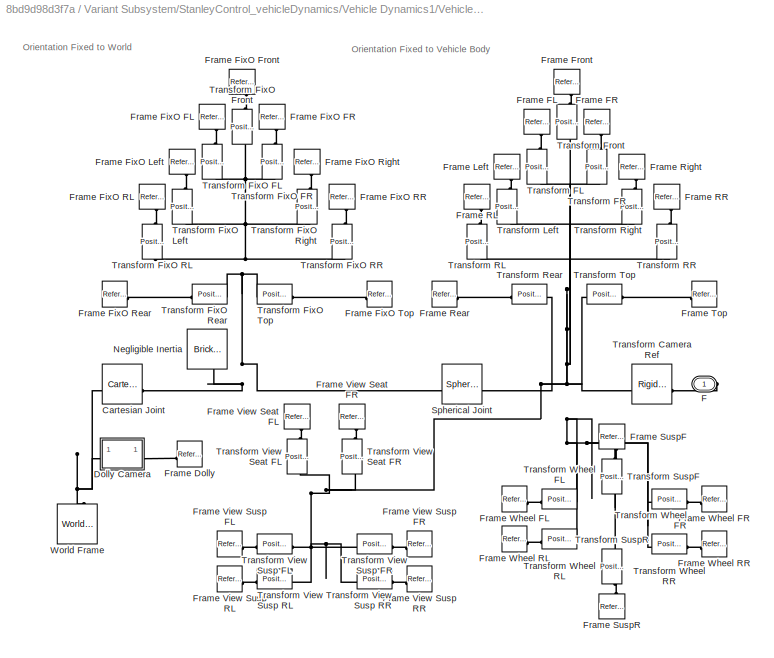
BLOCK [SubSystem] Variant Subsystem/StanleyControl_vehicleDynamics/Vehicle Dynamics1/Vehicle Dynamics Multibody/Vehicle/Camera Frames
  Commented = on
BLOCK [Reference] Variant Subsystem/StanleyControl_vehicleDynamics/Vehicle Dynamics1/Vehicle Dynamics Multibody/Vehicle/Camera Frames/Cartesian Joint  REF=sm_lib/Joints/Cartesian
Joint
  SourceBlock = sm_lib/Joints/Cartesian\nJoint
  SourceType = Cartesian\nJoint
BLOCK [SubSystem] Variant Subsystem/StanleyControl_vehicleDynamics/Vehicle Dynamics1/Vehicle Dynamics Multibody/Vehicle/Camera Frames/Dolly Camera
  AttributesFormatString = %<ActiveVariant>
  LabelModeActiveChoice = Off
  Variant = on
  VariantControl = Variant1
  VariantControlMode = label
BLOCK [PMIOPort] Variant Subsystem/StanleyControl_vehicleDynamics/Vehicle Dynamics1/Vehicle Dynamics Multibody/Vehicle/Camera Frames/Dolly Camera/ R
  Port = 2
  Side = Right
BLOCK [PMIOPort] Variant Subsystem/StanleyControl_vehicleDynamics/Vehicle Dynamics1/Vehicle Dynamics Multibody/Vehicle/Camera Frames/Dolly Camera/ W
  Side = Left
BLOCK [SubSystem] Variant Subsystem/StanleyControl_vehicleDynamics/Vehicle Dynamics1/Vehicle Dynamics Multibody/Vehicle/Camera Frames/Dolly Camera/Off
  VariantControl = Off
BLOCK [PMIOPort] Variant Subsystem/StanleyControl_vehicleDynamics/Vehicle Dynamics1/Vehicle Dynamics Multibody/Vehicle/Camera Frames/Dolly Camera/Off/R
  NameLocation = top
  Port = 2
  Side = Right
BLOCK [PMIOPort] Variant Subsystem/StanleyControl_vehicleDynamics/Vehicle Dynamics1/Vehicle Dynamics Multibody/Vehicle/Camera Frames/Dolly Camera/Off/W
  Side = Left
BLOCK [SubSystem] Variant Subsystem/StanleyControl_vehicleDynamics/Vehicle Dynamics1/Vehicle Dynamics Multibody/Vehicle/Camera Frames/Dolly Camera/XYZ
  VariantControl = XYZ
BLOCK [Reference] Variant Subsystem/StanleyControl_vehicleDynamics/Vehicle Dynamics1/Vehicle Dynamics Multibody/Vehicle/Camera Frames/Dolly Camera/XYZ/Cartesian Camera Dolly  REF=sm_lib/Joints/Cartesian
Joint
  SourceBlock = sm_lib/Joints/Cartesian\nJoint
  SourceType = Cartesian\nJoint
BLOCK [Clock] Variant Subsystem/StanleyControl_vehicleDynamics/Vehicle Dynamics1/Vehicle Dynamics Multibody/Vehicle/Camera Frames/Dolly Camera/XYZ/Clock
BLOCK [Constant] Variant Subsystem/StanleyControl_vehicleDynamics/Vehicle Dynamics1/Vehicle Dynamics Multibody/Vehicle/Camera Frames/Dolly Camera/XYZ/Constant
  Value = tvec
BLOCK [Constant] Variant Subsystem/StanleyControl_vehicleDynamics/Vehicle Dynamics1/Vehicle Dynamics Multibody/Vehicle/Camera Frames/Dolly Camera/XYZ/Constant1
  Value = xvec
BLOCK [Constant] Variant Subsystem/StanleyControl_vehicleDynamics/Vehicle Dynamics1/Vehicle Dynamics Multibody/Vehicle/Camera Frames/Dolly Camera/XYZ/Constant2
  Value = yvec
BLOCK [Constant] Variant Subsystem/StanleyControl_vehicleDynamics/Vehicle Dynamics1/Vehicle Dynamics Multibody/Vehicle/Camera Frames/Dolly Camera/XYZ/Constant3
  Value = zvec
BLOCK [SubSystem] Variant Subsystem/StanleyControl_vehicleDynamics/Vehicle Dynamics1/Vehicle Dynamics Multibody/Vehicle/Camera Frames/Dolly Camera/XYZ/Interpolate
  ErrorFcn = Stateflow.Translate.translate
  PermitHierarchicalResolution = ExplicitOnly
  SFBlockType = MATLAB Function
  TreatAsAtomicUnit = on
BLOCK [Demux] Variant Subsystem/StanleyControl_vehicleDynamics/Vehicle Dynamics1/Vehicle Dynamics Multibody/Vehicle/Camera Frames/Dolly Camera/XYZ/Interpolate/ Demux 
  Outputs = 1
BLOCK [S-Function] Variant Subsystem/StanleyControl_vehicleDynamics/Vehicle Dynamics1/Vehicle Dynamics Multibody/Vehicle/Camera Frames/Dolly Camera/XYZ/Interpolate/ SFunction 
  EnableBusSupport = off
  FunctionName = sf_sfun
  PortCounts = [5 4]
  SFcnIsStateOwnerBlock = off
  SFunctionDeploymentMode = off
  Tag = Stateflow S-Function 8
BLOCK [Terminator] Variant Subsystem/StanleyControl_vehicleDynamics/Vehicle Dynamics1/Vehicle Dynamics Multibody/Vehicle/Camera Frames/Dolly Camera/XYZ/Interpolate/ Terminator 
BLOCK [Inport] Variant Subsystem/StanleyControl_vehicleDynamics/Vehicle Dynamics1/Vehicle Dynamics Multibody/Vehicle/Camera Frames/Dolly Camera/XYZ/Interpolate/t
BLOCK [Inport] Variant Subsystem/StanleyControl_vehicleDynamics/Vehicle Dynamics1/Vehicle Dynamics Multibody/Vehicle/Camera Frames/Dolly Camera/XYZ/Interpolate/tvec
  Port = 2
BLOCK [Outport] Variant Subsystem/StanleyControl_vehicleDynamics/Vehicle Dynamics1/Vehicle Dynamics Multibody/Vehicle/Camera Frames/Dolly Camera/XYZ/Interpolate/x
BLOCK [Inport] Variant Subsystem/StanleyControl_vehicleDynamics/Vehicle Dynamics1/Vehicle Dynamics Multibody/Vehicle/Camera Frames/Dolly Camera/XYZ/Interpolate/xvec
  Port = 3
BLOCK [Outport] Variant Subsystem/StanleyControl_vehicleDynamics/Vehicle Dynamics1/Vehicle Dynamics Multibody/Vehicle/Camera Frames/Dolly Camera/XYZ/Interpolate/y
  Port = 2
BLOCK [Inport] Variant Subsystem/StanleyControl_vehicleDynamics/Vehicle Dynamics1/Vehicle Dynamics Multibody/Vehicle/Camera Frames/Dolly Camera/XYZ/Interpolate/yvec
  Port = 4
BLOCK [Outport] Variant Subsystem/StanleyControl_vehicleDynamics/Vehicle Dynamics1/Vehicle Dynamics Multibody/Vehicle/Camera Frames/Dolly Camera/XYZ/Interpolate/z
  Port = 3
BLOCK [Inport] Variant Subsystem/StanleyControl_vehicleDynamics/Vehicle Dynamics1/Vehicle Dynamics Multibody/Vehicle/Camera Frames/Dolly Camera/XYZ/Interpolate/zvec
  Port = 5
BLOCK [PMIOPort] Variant Subsystem/StanleyControl_vehicleDynamics/Vehicle Dynamics1/Vehicle Dynamics Multibody/Vehicle/Camera Frames/Dolly Camera/XYZ/R
  NameLocation = top
  Port = 2
  Side = Right
BLOCK [Reference] Variant Subsystem/StanleyControl_vehicleDynamics/Vehicle Dynamics1/Vehicle Dynamics Multibody/Vehicle/Camera Frames/Dolly Camera/XYZ/Required Mass  REF=sm_lib/Body Elements/Spherical Solid
  NameLocation = left
  SourceBlock = sm_lib/Body Elements/Spherical Solid
  SourceType = Spherical Solid
BLOCK [Reference] Variant Subsystem/StanleyControl_vehicleDynamics/Vehicle Dynamics1/Vehicle Dynamics Multibody/Vehicle/Camera Frames/Dolly Camera/XYZ/Simulink-PS Converter  REF=nesl_utility/Simulink-PS
Converter
  SourceBlock = nesl_utility/Simulink-PS\nConverter
  SourceType = Simulink-PS\nConverter
BLOCK [Reference] Variant Subsystem/StanleyControl_vehicleDynamics/Vehicle Dynamics1/Vehicle Dynamics Multibody/Vehicle/Camera Frames/Dolly Camera/XYZ/Simulink-PS Converter1  REF=nesl_utility/Simulink-PS
Converter
  SourceBlock = nesl_utility/Simulink-PS\nConverter
  SourceType = Simulink-PS\nConverter
BLOCK [Reference] Variant Subsystem/StanleyControl_vehicleDynamics/Vehicle Dynamics1/Vehicle Dynamics Multibody/Vehicle/Camera Frames/Dolly Camera/XYZ/Simulink-PS Converter2  REF=nesl_utility/Simulink-PS
Converter
  SourceBlock = nesl_utility/Simulink-PS\nConverter
  SourceType = Simulink-PS\nConverter
BLOCK [Reference] Variant Subsystem/StanleyControl_vehicleDynamics/Vehicle Dynamics1/Vehicle Dynamics Multibody/Vehicle/Camera Frames/Dolly Camera/XYZ/Transform Frame  REF=sm_lib/Frames and
Transforms/Rigid
Transform
  SourceBlock = sm_lib/Frames and\nTransforms/Rigid\nTransform
  SourceType = Rigid\nTransform
BLOCK [PMIOPort] Variant Subsystem/StanleyControl_vehicleDynamics/Vehicle Dynamics1/Vehicle Dynamics Multibody/Vehicle/Camera Frames/Dolly Camera/XYZ/W
  Side = Left
BLOCK [PMIOPort] Variant Subsystem/StanleyControl_vehicleDynamics/Vehicle Dynamics1/Vehicle Dynamics Multibody/Vehicle/Camera Frames/F
  Side = Right
BLOCK [Reference] Variant Subsystem/StanleyControl_vehicleDynamics/Vehicle Dynamics1/Vehicle Dynamics Multibody/Vehicle/Camera Frames/Frame Dolly  REF=sm_lib/Frames and
Transforms/Reference
Frame
  SourceBlock = sm_lib/Frames and\nTransforms/Reference\nFrame
  SourceType = Reference\nFrame
BLOCK [Reference] Variant Subsystem/StanleyControl_vehicleDynamics/Vehicle Dynamics1/Vehicle Dynamics Multibody/Vehicle/Camera Frames/Frame FL  REF=sm_lib/Frames and
Transforms/Reference
Frame
  NameLocation = left
  SourceBlock = sm_lib/Frames and\nTransforms/Reference\nFrame
  SourceType = Reference\nFrame
BLOCK [Reference] Variant Subsystem/StanleyControl_vehicleDynamics/Vehicle Dynamics1/Vehicle Dynamics Multibody/Vehicle/Camera Frames/Frame FR  REF=sm_lib/Frames and
Transforms/Reference
Frame
  NameLocation = right
  SourceBlock = sm_lib/Frames and\nTransforms/Reference\nFrame
  SourceType = Reference\nFrame
BLOCK [Reference] Variant Subsystem/StanleyControl_vehicleDynamics/Vehicle Dynamics1/Vehicle Dynamics Multibody/Vehicle/Camera Frames/Frame FixO FL  REF=sm_lib/Frames and
Transforms/Reference
Frame
  NameLocation = left
  SourceBlock = sm_lib/Frames and\nTransforms/Reference\nFrame
  SourceType = Reference\nFrame
BLOCK [Reference] Variant Subsystem/StanleyControl_vehicleDynamics/Vehicle Dynamics1/Vehicle Dynamics Multibody/Vehicle/Camera Frames/Frame FixO FR  REF=sm_lib/Frames and
Transforms/Reference
Frame
  NameLocation = right
  SourceBlock = sm_lib/Frames and\nTransforms/Reference\nFrame
  SourceType = Reference\nFrame
BLOCK [Reference] Variant Subsystem/StanleyControl_vehicleDynamics/Vehicle Dynamics1/Vehicle Dynamics Multibody/Vehicle/Camera Frames/Frame FixO Front  REF=sm_lib/Frames and
Transforms/Reference
Frame
  NameLocation = right
  SourceBlock = sm_lib/Frames and\nTransforms/Reference\nFrame
  SourceType = Reference\nFrame
BLOCK [Reference] Variant Subsystem/StanleyControl_vehicleDynamics/Vehicle Dynamics1/Vehicle Dynamics Multibody/Vehicle/Camera Frames/Frame FixO Left  REF=sm_lib/Frames and
Transforms/Reference
Frame
  NameLocation = left
  SourceBlock = sm_lib/Frames and\nTransforms/Reference\nFrame
  SourceType = Reference\nFrame
BLOCK [Reference] Variant Subsystem/StanleyControl_vehicleDynamics/Vehicle Dynamics1/Vehicle Dynamics Multibody/Vehicle/Camera Frames/Frame FixO RL  REF=sm_lib/Frames and
Transforms/Reference
Frame
  NameLocation = left
  SourceBlock = sm_lib/Frames and\nTransforms/Reference\nFrame
  SourceType = Reference\nFrame
BLOCK [Reference] Variant Subsystem/StanleyControl_vehicleDynamics/Vehicle Dynamics1/Vehicle Dynamics Multibody/Vehicle/Camera Frames/Frame FixO RR  REF=sm_lib/Frames and
Transforms/Reference
Frame
  NameLocation = right
  SourceBlock = sm_lib/Frames and\nTransforms/Reference\nFrame
  SourceType = Reference\nFrame
BLOCK [Reference] Variant Subsystem/StanleyControl_vehicleDynamics/Vehicle Dynamics1/Vehicle Dynamics Multibody/Vehicle/Camera Frames/Frame FixO Rear  REF=sm_lib/Frames and
Transforms/Reference
Frame
  NameLocation = top
  SourceBlock = sm_lib/Frames and\nTransforms/Reference\nFrame
  SourceType = Reference\nFrame
BLOCK [Reference] Variant Subsystem/StanleyControl_vehicleDynamics/Vehicle Dynamics1/Vehicle Dynamics Multibody/Vehicle/Camera Frames/Frame FixO Right  REF=sm_lib/Frames and
Transforms/Reference
Frame
  NameLocation = right
  SourceBlock = sm_lib/Frames and\nTransforms/Reference\nFrame
  SourceType = Reference\nFrame
BLOCK [Reference] Variant Subsystem/StanleyControl_vehicleDynamics/Vehicle Dynamics1/Vehicle Dynamics Multibody/Vehicle/Camera Frames/Frame FixO Top  REF=sm_lib/Frames and
Transforms/Reference
Frame
  NameLocation = top
  SourceBlock = sm_lib/Frames and\nTransforms/Reference\nFrame
  SourceType = Reference\nFrame
BLOCK [Reference] Variant Subsystem/StanleyControl_vehicleDynamics/Vehicle Dynamics1/Vehicle Dynamics Multibody/Vehicle/Camera Frames/Frame Front  REF=sm_lib/Frames and
Transforms/Reference
Frame
  NameLocation = right
  SourceBlock = sm_lib/Frames and\nTransforms/Reference\nFrame
  SourceType = Reference\nFrame
BLOCK [Reference] Variant Subsystem/StanleyControl_vehicleDynamics/Vehicle Dynamics1/Vehicle Dynamics Multibody/Vehicle/Camera Frames/Frame Left  REF=sm_lib/Frames and
Transforms/Reference
Frame
  NameLocation = left
  SourceBlock = sm_lib/Frames and\nTransforms/Reference\nFrame
  SourceType = Reference\nFrame
BLOCK [Reference] Variant Subsystem/StanleyControl_vehicleDynamics/Vehicle Dynamics1/Vehicle Dynamics Multibody/Vehicle/Camera Frames/Frame RL  REF=sm_lib/Frames and
Transforms/Reference
Frame
  NameLocation = left
  SourceBlock = sm_lib/Frames and\nTransforms/Reference\nFrame
  SourceType = Reference\nFrame
BLOCK [Reference] Variant Subsystem/StanleyControl_vehicleDynamics/Vehicle Dynamics1/Vehicle Dynamics Multibody/Vehicle/Camera Frames/Frame RR  REF=sm_lib/Frames and
Transforms/Reference
Frame
  NameLocation = right
  SourceBlock = sm_lib/Frames and\nTransforms/Reference\nFrame
  SourceType = Reference\nFrame
BLOCK [Reference] Variant Subsystem/StanleyControl_vehicleDynamics/Vehicle Dynamics1/Vehicle Dynamics Multibody/Vehicle/Camera Frames/Frame Rear  REF=sm_lib/Frames and
Transforms/Reference
Frame
  NameLocation = top
  SourceBlock = sm_lib/Frames and\nTransforms/Reference\nFrame
  SourceType = Reference\nFrame
BLOCK [Reference] Variant Subsystem/StanleyControl_vehicleDynamics/Vehicle Dynamics1/Vehicle Dynamics Multibody/Vehicle/Camera Frames/Frame Right  REF=sm_lib/Frames and
Transforms/Reference
Frame
  NameLocation = right
  SourceBlock = sm_lib/Frames and\nTransforms/Reference\nFrame
  SourceType = Reference\nFrame
BLOCK [Reference] Variant Subsystem/StanleyControl_vehicleDynamics/Vehicle Dynamics1/Vehicle Dynamics Multibody/Vehicle/Camera Frames/Frame SuspF  REF=sm_lib/Frames and
Transforms/Reference
Frame
  NameLocation = right
  SourceBlock = sm_lib/Frames and\nTransforms/Reference\nFrame
  SourceType = Reference\nFrame
BLOCK [Reference] Variant Subsystem/StanleyControl_vehicleDynamics/Vehicle Dynamics1/Vehicle Dynamics Multibody/Vehicle/Camera Frames/Frame SuspR  REF=sm_lib/Frames and
Transforms/Reference
Frame
  NameLocation = right
  SourceBlock = sm_lib/Frames and\nTransforms/Reference\nFrame
  SourceType = Reference\nFrame
BLOCK [Reference] Variant Subsystem/StanleyControl_vehicleDynamics/Vehicle Dynamics1/Vehicle Dynamics Multibody/Vehicle/Camera Frames/Frame Top  REF=sm_lib/Frames and
Transforms/Reference
Frame
  NameLocation = top
  SourceBlock = sm_lib/Frames and\nTransforms/Reference\nFrame
  SourceType = Reference\nFrame
BLOCK [Reference] Variant Subsystem/StanleyControl_vehicleDynamics/Vehicle Dynamics1/Vehicle Dynamics Multibody/Vehicle/Camera Frames/Frame View Seat FL  REF=sm_lib/Frames and
Transforms/Reference
Frame
  NameLocation = left
  SourceBlock = sm_lib/Frames and\nTransforms/Reference\nFrame
  SourceType = Reference\nFrame
BLOCK [Reference] Variant Subsystem/StanleyControl_vehicleDynamics/Vehicle Dynamics1/Vehicle Dynamics Multibody/Vehicle/Camera Frames/Frame View Seat FR  REF=sm_lib/Frames and
Transforms/Reference
Frame
  NameLocation = right
  SourceBlock = sm_lib/Frames and\nTransforms/Reference\nFrame
  SourceType = Reference\nFrame
BLOCK [Reference] Variant Subsystem/StanleyControl_vehicleDynamics/Vehicle Dynamics1/Vehicle Dynamics Multibody/Vehicle/Camera Frames/Frame View Susp FL  REF=sm_lib/Frames and
Transforms/Reference
Frame
  NameLocation = top
  SourceBlock = sm_lib/Frames and\nTransforms/Reference\nFrame
  SourceType = Reference\nFrame
BLOCK [Reference] Variant Subsystem/StanleyControl_vehicleDynamics/Vehicle Dynamics1/Vehicle Dynamics Multibody/Vehicle/Camera Frames/Frame View Susp FR  REF=sm_lib/Frames and
Transforms/Reference
Frame
  NameLocation = top
  SourceBlock = sm_lib/Frames and\nTransforms/Reference\nFrame
  SourceType = Reference\nFrame
BLOCK [Reference] Variant Subsystem/StanleyControl_vehicleDynamics/Vehicle Dynamics1/Vehicle Dynamics Multibody/Vehicle/Camera Frames/Frame View Susp RL  REF=sm_lib/Frames and
Transforms/Reference
Frame
  SourceBlock = sm_lib/Frames and\nTransforms/Reference\nFrame
  SourceType = Reference\nFrame
BLOCK [Reference] Variant Subsystem/StanleyControl_vehicleDynamics/Vehicle Dynamics1/Vehicle Dynamics Multibody/Vehicle/Camera Frames/Frame View Susp RR  REF=sm_lib/Frames and
Transforms/Reference
Frame
  SourceBlock = sm_lib/Frames and\nTransforms/Reference\nFrame
  SourceType = Reference\nFrame
BLOCK [Reference] Variant Subsystem/StanleyControl_vehicleDynamics/Vehicle Dynamics1/Vehicle Dynamics Multibody/Vehicle/Camera Frames/Frame Wheel FL  REF=sm_lib/Frames and
Transforms/Reference
Frame
  NameLocation = top
  SourceBlock = sm_lib/Frames and\nTransforms/Reference\nFrame
  SourceType = Reference\nFrame
BLOCK [Reference] Variant Subsystem/StanleyControl_vehicleDynamics/Vehicle Dynamics1/Vehicle Dynamics Multibody/Vehicle/Camera Frames/Frame Wheel FR  REF=sm_lib/Frames and
Transforms/Reference
Frame
  NameLocation = top
  SourceBlock = sm_lib/Frames and\nTransforms/Reference\nFrame
  SourceType = Reference\nFrame
BLOCK [Reference] Variant Subsystem/StanleyControl_vehicleDynamics/Vehicle Dynamics1/Vehicle Dynamics Multibody/Vehicle/Camera Frames/Frame Wheel RL  REF=sm_lib/Frames and
Transforms/Reference
Frame
  SourceBlock = sm_lib/Frames and\nTransforms/Reference\nFrame
  SourceType = Reference\nFrame
BLOCK [Reference] Variant Subsystem/StanleyControl_vehicleDynamics/Vehicle Dynamics1/Vehicle Dynamics Multibody/Vehicle/Camera Frames/Frame Wheel RR  REF=sm_lib/Frames and
Transforms/Reference
Frame
  SourceBlock = sm_lib/Frames and\nTransforms/Reference\nFrame
  SourceType = Reference\nFrame
BLOCK [Reference] Variant Subsystem/StanleyControl_vehicleDynamics/Vehicle Dynamics1/Vehicle Dynamics Multibody/Vehicle/Camera Frames/Negligible Inertia  REF=sm_lib/Body Elements/Brick Solid
  NameLocation = left
  SourceBlock = sm_lib/Body Elements/Brick Solid
  SourceType = Brick Solid
BLOCK [Reference] Variant Subsystem/StanleyControl_vehicleDynamics/Vehicle Dynamics1/Vehicle Dynamics Multibody/Vehicle/Camera Frames/Spherical Joint  REF=sm_lib/Joints/Spherical
Joint
  NameLocation = top
  SourceBlock = sm_lib/Joints/Spherical\nJoint
  SourceType = Spherical\nJoint
BLOCK [Reference] Variant Subsystem/StanleyControl_vehicleDynamics/Vehicle Dynamics1/Vehicle Dynamics Multibody/Vehicle/Camera Frames/Transform Camera Ref  REF=sm_lib/Frames and
Transforms/Rigid
Transform
  NameLocation = top
  SourceBlock = sm_lib/Frames and\nTransforms/Rigid\nTransform
  SourceType = Rigid\nTransform
BLOCK [Reference] Variant Subsystem/StanleyControl_vehicleDynamics/Vehicle Dynamics1/Vehicle Dynamics Multibody/Vehicle/Camera Frames/Transform FL  REF=sm_vehicle_utilities_lib/Position Camera Frame  (lib defined in slx_7901a99a1966, slx_bde73e06ff5b)
  NameLocation = left
  SourceBlock = sm_vehicle_utilities_lib/Position Camera Frame
  SourceType = Define Camera Frame
BLOCK [Reference] Variant Subsystem/StanleyControl_vehicleDynamics/Vehicle Dynamics1/Vehicle Dynamics Multibody/Vehicle/Camera Frames/Transform FR  REF=sm_vehicle_utilities_lib/Position Camera Frame  (lib defined in slx_7901a99a1966, slx_bde73e06ff5b)
  NameLocation = left
  SourceBlock = sm_vehicle_utilities_lib/Position Camera Frame
  SourceType = Define Camera Frame
BLOCK [Reference] Variant Subsystem/StanleyControl_vehicleDynamics/Vehicle Dynamics1/Vehicle Dynamics Multibody/Vehicle/Camera Frames/Transform FixO FL  REF=sm_vehicle_utilities_lib/Position Camera Frame  (lib defined in slx_7901a99a1966, slx_bde73e06ff5b)
  NameLocation = left
  SourceBlock = sm_vehicle_utilities_lib/Position Camera Frame
  SourceType = Define Camera Frame
BLOCK [Reference] Variant Subsystem/StanleyControl_vehicleDynamics/Vehicle Dynamics1/Vehicle Dynamics Multibody/Vehicle/Camera Frames/Transform FixO FR  REF=sm_vehicle_utilities_lib/Position Camera Frame  (lib defined in slx_7901a99a1966, slx_bde73e06ff5b)
  NameLocation = left
  SourceBlock = sm_vehicle_utilities_lib/Position Camera Frame
  SourceType = Define Camera Frame
BLOCK [Reference] Variant Subsystem/StanleyControl_vehicleDynamics/Vehicle Dynamics1/Vehicle Dynamics Multibody/Vehicle/Camera Frames/Transform FixO Front  REF=sm_vehicle_utilities_lib/Position Camera Frame  (lib defined in slx_7901a99a1966, slx_bde73e06ff5b)
  NameLocation = left
  SourceBlock = sm_vehicle_utilities_lib/Position Camera Frame
  SourceType = Define Camera Frame
BLOCK [Reference] Variant Subsystem/StanleyControl_vehicleDynamics/Vehicle Dynamics1/Vehicle Dynamics Multibody/Vehicle/Camera Frames/Transform FixO Left  REF=sm_vehicle_utilities_lib/Position Camera Frame  (lib defined in slx_7901a99a1966, slx_bde73e06ff5b)
  NameLocation = left
  SourceBlock = sm_vehicle_utilities_lib/Position Camera Frame
  SourceType = Define Camera Frame
BLOCK [Reference] Variant Subsystem/StanleyControl_vehicleDynamics/Vehicle Dynamics1/Vehicle Dynamics Multibody/Vehicle/Camera Frames/Transform FixO RL  REF=sm_vehicle_utilities_lib/Position Camera Frame  (lib defined in slx_7901a99a1966, slx_bde73e06ff5b)
  NameLocation = left
  SourceBlock = sm_vehicle_utilities_lib/Position Camera Frame
  SourceType = Define Camera Frame
BLOCK [Reference] Variant Subsystem/StanleyControl_vehicleDynamics/Vehicle Dynamics1/Vehicle Dynamics Multibody/Vehicle/Camera Frames/Transform FixO RR  REF=sm_vehicle_utilities_lib/Position Camera Frame  (lib defined in slx_7901a99a1966, slx_bde73e06ff5b)
  NameLocation = right
  SourceBlock = sm_vehicle_utilities_lib/Position Camera Frame
  SourceType = Define Camera Frame
BLOCK [Reference] Variant Subsystem/StanleyControl_vehicleDynamics/Vehicle Dynamics1/Vehicle Dynamics Multibody/Vehicle/Camera Frames/Transform FixO Rear  REF=sm_vehicle_utilities_lib/Position Camera Frame  (lib defined in slx_7901a99a1966, slx_bde73e06ff5b)
  SourceBlock = sm_vehicle_utilities_lib/Position Camera Frame
  SourceType = Define Camera Frame
BLOCK [Reference] Variant Subsystem/StanleyControl_vehicleDynamics/Vehicle Dynamics1/Vehicle Dynamics Multibody/Vehicle/Camera Frames/Transform FixO Right  REF=sm_vehicle_utilities_lib/Position Camera Frame  (lib defined in slx_7901a99a1966, slx_bde73e06ff5b)
  NameLocation = right
  SourceBlock = sm_vehicle_utilities_lib/Position Camera Frame
  SourceType = Define Camera Frame
BLOCK [Reference] Variant Subsystem/StanleyControl_vehicleDynamics/Vehicle Dynamics1/Vehicle Dynamics Multibody/Vehicle/Camera Frames/Transform FixO Top  REF=sm_vehicle_utilities_lib/Position Camera Frame  (lib defined in slx_7901a99a1966, slx_bde73e06ff5b)
  NameLocation = top
  SourceBlock = sm_vehicle_utilities_lib/Position Camera Frame
  SourceType = Define Camera Frame
BLOCK [Reference] Variant Subsystem/StanleyControl_vehicleDynamics/Vehicle Dynamics1/Vehicle Dynamics Multibody/Vehicle/Camera Frames/Transform Front  REF=sm_vehicle_utilities_lib/Position Camera Frame  (lib defined in slx_7901a99a1966, slx_bde73e06ff5b)
  NameLocation = left
  SourceBlock = sm_vehicle_utilities_lib/Position Camera Frame
  SourceType = Define Camera Frame
BLOCK [Reference] Variant Subsystem/StanleyControl_vehicleDynamics/Vehicle Dynamics1/Vehicle Dynamics Multibody/Vehicle/Camera Frames/Transform Left  REF=sm_vehicle_utilities_lib/Position Camera Frame  (lib defined in slx_7901a99a1966, slx_bde73e06ff5b)
  NameLocation = left
  SourceBlock = sm_vehicle_utilities_lib/Position Camera Frame
  SourceType = Define Camera Frame
BLOCK [Reference] Variant Subsystem/StanleyControl_vehicleDynamics/Vehicle Dynamics1/Vehicle Dynamics Multibody/Vehicle/Camera Frames/Transform RL  REF=sm_vehicle_utilities_lib/Position Camera Frame  (lib defined in slx_7901a99a1966, slx_bde73e06ff5b)
  NameLocation = left
  SourceBlock = sm_vehicle_utilities_lib/Position Camera Frame
  SourceType = Define Camera Frame
BLOCK [Reference] Variant Subsystem/StanleyControl_vehicleDynamics/Vehicle Dynamics1/Vehicle Dynamics Multibody/Vehicle/Camera Frames/Transform RR  REF=sm_vehicle_utilities_lib/Position Camera Frame  (lib defined in slx_7901a99a1966, slx_bde73e06ff5b)
  NameLocation = left
  SourceBlock = sm_vehicle_utilities_lib/Position Camera Frame
  SourceType = Define Camera Frame
BLOCK [Reference] Variant Subsystem/StanleyControl_vehicleDynamics/Vehicle Dynamics1/Vehicle Dynamics Multibody/Vehicle/Camera Frames/Transform Rear  REF=sm_vehicle_utilities_lib/Position Camera Frame  (lib defined in slx_7901a99a1966, slx_bde73e06ff5b)
  SourceBlock = sm_vehicle_utilities_lib/Position Camera Frame
  SourceType = Define Camera Frame
BLOCK [Reference] Variant Subsystem/StanleyControl_vehicleDynamics/Vehicle Dynamics1/Vehicle Dynamics Multibody/Vehicle/Camera Frames/Transform Right  REF=sm_vehicle_utilities_lib/Position Camera Frame  (lib defined in slx_7901a99a1966, slx_bde73e06ff5b)
  NameLocation = left
  SourceBlock = sm_vehicle_utilities_lib/Position Camera Frame
  SourceType = Define Camera Frame
BLOCK [Reference] Variant Subsystem/StanleyControl_vehicleDynamics/Vehicle Dynamics1/Vehicle Dynamics Multibody/Vehicle/Camera Frames/Transform SuspF  REF=sm_vehicle_utilities_lib/Position Camera Frame  (lib defined in slx_7901a99a1966, slx_bde73e06ff5b)
  NameLocation = left
  SourceBlock = sm_vehicle_utilities_lib/Position Camera Frame
  SourceType = Define Camera Frame
BLOCK [Reference] Variant Subsystem/StanleyControl_vehicleDynamics/Vehicle Dynamics1/Vehicle Dynamics Multibody/Vehicle/Camera Frames/Transform SuspR  REF=sm_vehicle_utilities_lib/Position Camera Frame  (lib defined in slx_7901a99a1966, slx_bde73e06ff5b)
  NameLocation = left
  SourceBlock = sm_vehicle_utilities_lib/Position Camera Frame
  SourceType = Define Camera Frame
BLOCK [Reference] Variant Subsystem/StanleyControl_vehicleDynamics/Vehicle Dynamics1/Vehicle Dynamics Multibody/Vehicle/Camera Frames/Transform Top  REF=sm_vehicle_utilities_lib/Position Camera Frame  (lib defined in slx_7901a99a1966, slx_bde73e06ff5b)
  SourceBlock = sm_vehicle_utilities_lib/Position Camera Frame
  SourceType = Define Camera Frame
BLOCK [Reference] Variant Subsystem/StanleyControl_vehicleDynamics/Vehicle Dynamics1/Vehicle Dynamics Multibody/Vehicle/Camera Frames/Transform View Seat FL  REF=sm_vehicle_utilities_lib/Position Camera Frame  (lib defined in slx_7901a99a1966, slx_bde73e06ff5b)
  NameLocation = left
  SourceBlock = sm_vehicle_utilities_lib/Position Camera Frame
  SourceType = Define Camera Frame
BLOCK [Reference] Variant Subsystem/StanleyControl_vehicleDynamics/Vehicle Dynamics1/Vehicle Dynamics Multibody/Vehicle/Camera Frames/Transform View Seat FR  REF=sm_vehicle_utilities_lib/Position Camera Frame  (lib defined in slx_7901a99a1966, slx_bde73e06ff5b)
  NameLocation = right
  SourceBlock = sm_vehicle_utilities_lib/Position Camera Frame
  SourceType = Define Camera Frame
BLOCK [Reference] Variant Subsystem/StanleyControl_vehicleDynamics/Vehicle Dynamics1/Vehicle Dynamics Multibody/Vehicle/Camera Frames/Transform View Susp FL  REF=sm_vehicle_utilities_lib/Position Camera Frame  (lib defined in slx_7901a99a1966, slx_bde73e06ff5b)
  SourceBlock = sm_vehicle_utilities_lib/Position Camera Frame
  SourceType = Define Camera Frame
BLOCK [Reference] Variant Subsystem/StanleyControl_vehicleDynamics/Vehicle Dynamics1/Vehicle Dynamics Multibody/Vehicle/Camera Frames/Transform View Susp FR  REF=sm_vehicle_utilities_lib/Position Camera Frame  (lib defined in slx_7901a99a1966, slx_bde73e06ff5b)
  NameLocation = top
  SourceBlock = sm_vehicle_utilities_lib/Position Camera Frame
  SourceType = Define Camera Frame
BLOCK [Reference] Variant Subsystem/StanleyControl_vehicleDynamics/Vehicle Dynamics1/Vehicle Dynamics Multibody/Vehicle/Camera Frames/Transform View Susp RL  REF=sm_vehicle_utilities_lib/Position Camera Frame  (lib defined in slx_7901a99a1966, slx_bde73e06ff5b)
  SourceBlock = sm_vehicle_utilities_lib/Position Camera Frame
  SourceType = Define Camera Frame
BLOCK [Reference] Variant Subsystem/StanleyControl_vehicleDynamics/Vehicle Dynamics1/Vehicle Dynamics Multibody/Vehicle/Camera Frames/Transform View Susp RR  REF=sm_vehicle_utilities_lib/Position Camera Frame  (lib defined in slx_7901a99a1966, slx_bde73e06ff5b)
  SourceBlock = sm_vehicle_utilities_lib/Position Camera Frame
  SourceType = Define Camera Frame
BLOCK [Reference] Variant Subsystem/StanleyControl_vehicleDynamics/Vehicle Dynamics1/Vehicle Dynamics Multibody/Vehicle/Camera Frames/Transform Wheel FL  REF=sm_vehicle_utilities_lib/Position Camera Frame  (lib defined in slx_7901a99a1966, slx_bde73e06ff5b)
  SourceBlock = sm_vehicle_utilities_lib/Position Camera Frame
  SourceType = Define Camera Frame
BLOCK [Reference] Variant Subsystem/StanleyControl_vehicleDynamics/Vehicle Dynamics1/Vehicle Dynamics Multibody/Vehicle/Camera Frames/Transform Wheel FR  REF=sm_vehicle_utilities_lib/Position Camera Frame  (lib defined in slx_7901a99a1966, slx_bde73e06ff5b)
  NameLocation = top
  SourceBlock = sm_vehicle_utilities_lib/Position Camera Frame
  SourceType = Define Camera Frame
BLOCK [Reference] Variant Subsystem/StanleyControl_vehicleDynamics/Vehicle Dynamics1/Vehicle Dynamics Multibody/Vehicle/Camera Frames/Transform Wheel RL  REF=sm_vehicle_utilities_lib/Position Camera Frame  (lib defined in slx_7901a99a1966, slx_bde73e06ff5b)
  SourceBlock = sm_vehicle_utilities_lib/Position Camera Frame
  SourceType = Define Camera Frame
BLOCK [Reference] Variant Subsystem/StanleyControl_vehicleDynamics/Vehicle Dynamics1/Vehicle Dynamics Multibody/Vehicle/Camera Frames/Transform Wheel RR  REF=sm_vehicle_utilities_lib/Position Camera Frame  (lib defined in slx_7901a99a1966, slx_bde73e06ff5b)
  SourceBlock = sm_vehicle_utilities_lib/Position Camera Frame
  SourceType = Define Camera Frame
BLOCK [Reference] Variant Subsystem/StanleyControl_vehicleDynamics/Vehicle Dynamics1/Vehicle Dynamics Multibody/Vehicle/Camera Frames/World Frame  REF=sm_lib/Frames and
Transforms/World Frame
  NameLocation = right
  SourceBlock = sm_lib/Frames and\nTransforms/World Frame
  SourceType = World Frame
BLOCK [ConnectionLabel] Variant Subsystem/StanleyControl_vehicleDynamics/Vehicle Dynamics1/Vehicle Dynamics Multibody/Vehicle/Connection Label1
  Label = Terrain
  NameLocation = left
BLOCK [ConnectionLabel] Variant Subsystem/StanleyControl_vehicleDynamics/Vehicle Dynamics1/Vehicle Dynamics Multibody/Vehicle/Connection Label2
  Label = Terrain
  NameLocation = left
BLOCK [ConnectionLabel] Variant Subsystem/StanleyControl_vehicleDynamics/Vehicle Dynamics1/Vehicle Dynamics Multibody/Vehicle/Connection Label3
  Label = Terrain
  NameLocation = left
BLOCK [ConnectionLabel] Variant Subsystem/StanleyControl_vehicleDynamics/Vehicle Dynamics1/Vehicle Dynamics Multibody/Vehicle/Connection Label4
  Label = Terrain
  NameLocation = top
BLOCK [From] Variant Subsystem/StanleyControl_vehicleDynamics/Vehicle Dynamics1/Vehicle Dynamics Multibody/Vehicle/From
  GotoTag = wFL
BLOCK [From] Variant Subsystem/StanleyControl_vehicleDynamics/Vehicle Dynamics1/Vehicle Dynamics Multibody/Vehicle/From1
  GotoTag = FL
BLOCK [From] Variant Subsystem/StanleyControl_vehicleDynamics/Vehicle Dynamics1/Vehicle Dynamics Multibody/Vehicle/From2
  GotoTag = wFR
BLOCK [From] Variant Subsystem/StanleyControl_vehicleDynamics/Vehicle Dynamics1/Vehicle Dynamics Multibody/Vehicle/From3
  GotoTag = FR
BLOCK [From] Variant Subsystem/StanleyControl_vehicleDynamics/Vehicle Dynamics1/Vehicle Dynamics Multibody/Vehicle/From4
  GotoTag = wRL
BLOCK [From] Variant Subsystem/StanleyControl_vehicleDynamics/Vehicle Dynamics1/Vehicle Dynamics Multibody/Vehicle/From5
  GotoTag = RL
BLOCK [From] Variant Subsystem/StanleyControl_vehicleDynamics/Vehicle Dynamics1/Vehicle Dynamics Multibody/Vehicle/From6
  GotoTag = wRR
BLOCK [From] Variant Subsystem/StanleyControl_vehicleDynamics/Vehicle Dynamics1/Vehicle Dynamics Multibody/Vehicle/From7
  GotoTag = RR
BLOCK [Goto] Variant Subsystem/StanleyControl_vehicleDynamics/Vehicle Dynamics1/Vehicle Dynamics Multibody/Vehicle/Goto
  GotoTag = FR
BLOCK [Goto] Variant Subsystem/StanleyControl_vehicleDynamics/Vehicle Dynamics1/Vehicle Dynamics Multibody/Vehicle/Goto1
  GotoTag = wFR
  NameLocation = left
BLOCK [Goto] Variant Subsystem/StanleyControl_vehicleDynamics/Vehicle Dynamics1/Vehicle Dynamics Multibody/Vehicle/Goto2
  GotoTag = wRR
  NameLocation = left
BLOCK [Goto] Variant Subsystem/StanleyControl_vehicleDynamics/Vehicle Dynamics1/Vehicle Dynamics Multibody/Vehicle/Goto3
  GotoTag = RR
BLOCK [Goto] Variant Subsystem/StanleyControl_vehicleDynamics/Vehicle Dynamics1/Vehicle Dynamics Multibody/Vehicle/Goto4
  GotoTag = wRL
  NameLocation = left
BLOCK [Goto] Variant Subsystem/StanleyControl_vehicleDynamics/Vehicle Dynamics1/Vehicle Dynamics Multibody/Vehicle/Goto5
  GotoTag = wFL
  NameLocation = left
BLOCK [Goto] Variant Subsystem/StanleyControl_vehicleDynamics/Vehicle Dynamics1/Vehicle Dynamics Multibody/Vehicle/Goto6
  GotoTag = RL
BLOCK [Goto] Variant Subsystem/StanleyControl_vehicleDynamics/Vehicle Dynamics1/Vehicle Dynamics Multibody/Vehicle/Goto7
  GotoTag = FL
BLOCK [Reference] Variant Subsystem/StanleyControl_vehicleDynamics/Vehicle Dynamics1/Vehicle Dynamics Multibody/Vehicle/Grid Surface  REF=sm_lib/Curves and Surfaces/Grid Surface
  NameLocation = left
  SourceBlock = sm_lib/Curves and Surfaces/Grid Surface
  SourceType = Grid Surface
BLOCK [Mux] Variant Subsystem/StanleyControl_vehicleDynamics/Vehicle Dynamics1/Vehicle Dynamics Multibody/Vehicle/Mux
  DisplayOption = bar
  Inputs = 2
BLOCK [Outport] Variant Subsystem/StanleyControl_vehicleDynamics/Vehicle Dynamics1/Vehicle Dynamics Multibody/Vehicle/Out Bus Element
BLOCK [Outport] Variant Subsystem/StanleyControl_vehicleDynamics/Vehicle Dynamics1/Vehicle Dynamics Multibody/Vehicle/Out Bus Element1
BLOCK [Outport] Variant Subsystem/StanleyControl_vehicleDynamics/Vehicle Dynamics1/Vehicle Dynamics Multibody/Vehicle/Out Bus Element2
BLOCK [Outport] Variant Subsystem/StanleyControl_vehicleDynamics/Vehicle Dynamics1/Vehicle Dynamics Multibody/Vehicle/Out Bus Element3
BLOCK [Outport] Variant Subsystem/StanleyControl_vehicleDynamics/Vehicle Dynamics1/Vehicle Dynamics Multibody/Vehicle/Out Bus Element4
  NameLocation = top
BLOCK [Outport] Variant Subsystem/StanleyControl_vehicleDynamics/Vehicle Dynamics1/Vehicle Dynamics Multibody/Vehicle/Out Bus Element5
BLOCK [Outport] Variant Subsystem/StanleyControl_vehicleDynamics/Vehicle Dynamics1/Vehicle Dynamics Multibody/Vehicle/Out Bus Element6
BLOCK [Outport] Variant Subsystem/StanleyControl_vehicleDynamics/Vehicle Dynamics1/Vehicle Dynamics Multibody/Vehicle/Out Bus Element7
BLOCK [Outport] Variant Subsystem/StanleyControl_vehicleDynamics/Vehicle Dynamics1/Vehicle Dynamics Multibody/Vehicle/Out Bus Element8
BLOCK [Outport] Variant Subsystem/StanleyControl_vehicleDynamics/Vehicle Dynamics1/Vehicle Dynamics Multibody/Vehicle/Out Bus Element9
BLOCK [SubSystem] Variant Subsystem/StanleyControl_vehicleDynamics/Vehicle Dynamics1/Vehicle Dynamics Multibody/Vehicle/Outputs
BLOCK [BusCreator] Variant Subsystem/StanleyControl_vehicleDynamics/Vehicle Dynamics1/Vehicle Dynamics Multibody/Vehicle/Outputs/Bus Creator
  DisplayOption = bar
  InheritFromInputs = on
  Inputs = 7
BLOCK [BusCreator] Variant Subsystem/StanleyControl_vehicleDynamics/Vehicle Dynamics1/Vehicle Dynamics Multibody/Vehicle/Outputs/Bus Creator1
  DisplayOption = bar
  InheritFromInputs = on
  Inputs = 7
BLOCK [BusCreator] Variant Subsystem/StanleyControl_vehicleDynamics/Vehicle Dynamics1/Vehicle Dynamics Multibody/Vehicle/Outputs/Bus Creator2
  DisplayOption = bar
  InheritFromInputs = on
  Inputs = 7
BLOCK [BusCreator] Variant Subsystem/StanleyControl_vehicleDynamics/Vehicle Dynamics1/Vehicle Dynamics Multibody/Vehicle/Outputs/Bus Creator3
  DisplayOption = bar
  InheritFromInputs = on
  Inputs = 7
BLOCK [BusSelector] Variant Subsystem/StanleyControl_vehicleDynamics/Vehicle Dynamics1/Vehicle Dynamics Multibody/Vehicle/Outputs/Bus Selector
  OutputSignals = Fx,Fy,Fz,Tx,Ty,Tz
BLOCK [BusSelector] Variant Subsystem/StanleyControl_vehicleDynamics/Vehicle Dynamics1/Vehicle Dynamics Multibody/Vehicle/Outputs/Bus Selector1
  OutputSignals = Fx,Fy,Fz,Tx,Ty,Tz
BLOCK [BusSelector] Variant Subsystem/StanleyControl_vehicleDynamics/Vehicle Dynamics1/Vehicle Dynamics Multibody/Vehicle/Outputs/Bus Selector2
  OutputSignals = Fx,Fy,Fz,Tx,Ty,Tz
BLOCK [BusSelector] Variant Subsystem/StanleyControl_vehicleDynamics/Vehicle Dynamics1/Vehicle Dynamics Multibody/Vehicle/Outputs/Bus Selector3
  OutputSignals = Fx,Fy,Fz,Tx,Ty,Tz
BLOCK [Outport] Variant Subsystem/StanleyControl_vehicleDynamics/Vehicle Dynamics1/Vehicle Dynamics Multibody/Vehicle/Outputs/FL
BLOCK [Outport] Variant Subsystem/StanleyControl_vehicleDynamics/Vehicle Dynamics1/Vehicle Dynamics Multibody/Vehicle/Outputs/FR
  Port = 2
BLOCK [Outport] Variant Subsystem/StanleyControl_vehicleDynamics/Vehicle Dynamics1/Vehicle Dynamics Multibody/Vehicle/Outputs/RL
  Port = 3
BLOCK [Outport] Variant Subsystem/StanleyControl_vehicleDynamics/Vehicle Dynamics1/Vehicle Dynamics Multibody/Vehicle/Outputs/RR
  Port = 4
BLOCK [Inport] Variant Subsystem/StanleyControl_vehicleDynamics/Vehicle Dynamics1/Vehicle Dynamics Multibody/Vehicle/Outputs/TFL
  Port = 2
BLOCK [Inport] Variant Subsystem/StanleyControl_vehicleDynamics/Vehicle Dynamics1/Vehicle Dynamics Multibody/Vehicle/Outputs/TFR
  Port = 4
BLOCK [Inport] Variant Subsystem/StanleyControl_vehicleDynamics/Vehicle Dynamics1/Vehicle Dynamics Multibody/Vehicle/Outputs/TRL
  Port = 6
BLOCK [Inport] Variant Subsystem/StanleyControl_vehicleDynamics/Vehicle Dynamics1/Vehicle Dynamics Multibody/Vehicle/Outputs/TRR
  Port = 8
BLOCK [Inport] Variant Subsystem/StanleyControl_vehicleDynamics/Vehicle Dynamics1/Vehicle Dynamics Multibody/Vehicle/Outputs/wFL
BLOCK [Inport] Variant Subsystem/StanleyControl_vehicleDynamics/Vehicle Dynamics1/Vehicle Dynamics Multibody/Vehicle/Outputs/wFR
  Port = 3
BLOCK [Inport] Variant Subsystem/StanleyControl_vehicleDynamics/Vehicle Dynamics1/Vehicle Dynamics Multibody/Vehicle/Outputs/wRL
  Port = 5
BLOCK [Inport] Variant Subsystem/StanleyControl_vehicleDynamics/Vehicle Dynamics1/Vehicle Dynamics Multibody/Vehicle/Outputs/wRR
  Port = 7
BLOCK [Reference] Variant Subsystem/StanleyControl_vehicleDynamics/Vehicle Dynamics1/Vehicle Dynamics Multibody/Vehicle/PS-Simulink Converter  REF=nesl_utility/PS-Simulink
Converter
  NameLocation = right
  SourceBlock = nesl_utility/PS-Simulink\nConverter
  SourceType = PS-Simulink\nConverter
BLOCK [Reference] Variant Subsystem/StanleyControl_vehicleDynamics/Vehicle Dynamics1/Vehicle Dynamics Multibody/Vehicle/PS-Simulink Converter1  REF=nesl_utility/PS-Simulink
Converter
  NameLocation = right
  SourceBlock = nesl_utility/PS-Simulink\nConverter
  SourceType = PS-Simulink\nConverter
BLOCK [Reference] Variant Subsystem/StanleyControl_vehicleDynamics/Vehicle Dynamics1/Vehicle Dynamics Multibody/Vehicle/PS-Simulink Converter2  REF=nesl_utility/PS-Simulink
Converter
  NameLocation = right
  SourceBlock = nesl_utility/PS-Simulink\nConverter
  SourceType = PS-Simulink\nConverter
BLOCK [Reference] Variant Subsystem/StanleyControl_vehicleDynamics/Vehicle Dynamics1/Vehicle Dynamics Multibody/Vehicle/PS-Simulink Converter3  REF=nesl_utility/PS-Simulink
Converter
  NameLocation = right
  SourceBlock = nesl_utility/PS-Simulink\nConverter
  SourceType = PS-Simulink\nConverter
BLOCK [Reference] Variant Subsystem/StanleyControl_vehicleDynamics/Vehicle Dynamics1/Vehicle Dynamics Multibody/Vehicle/Reference Frame  REF=sm_lib/Frames and
Transforms/Reference
Frame
  NameLocation = top
  SourceBlock = sm_lib/Frames and\nTransforms/Reference\nFrame
  SourceType = Reference\nFrame
BLOCK [Reference] Variant Subsystem/StanleyControl_vehicleDynamics/Vehicle Dynamics1/Vehicle Dynamics Multibody/Vehicle/Revolute FL  REF=sm_lib/Joints/Revolute Joint
  NameLocation = top
  SourceBlock = sm_lib/Joints/Revolute Joint
  SourceType = Revolute Joint
BLOCK [Reference] Variant Subsystem/StanleyControl_vehicleDynamics/Vehicle Dynamics1/Vehicle Dynamics Multibody/Vehicle/Revolute FR  REF=sm_lib/Joints/Revolute Joint
  NameLocation = top
  SourceBlock = sm_lib/Joints/Revolute Joint
  SourceType = Revolute Joint
BLOCK [Reference] Variant Subsystem/StanleyControl_vehicleDynamics/Vehicle Dynamics1/Vehicle Dynamics Multibody/Vehicle/Revolute RL  REF=sm_lib/Joints/Revolute Joint
  NameLocation = top
  SourceBlock = sm_lib/Joints/Revolute Joint
  SourceType = Revolute Joint
BLOCK [Reference] Variant Subsystem/StanleyControl_vehicleDynamics/Vehicle Dynamics1/Vehicle Dynamics Multibody/Vehicle/Revolute RR  REF=sm_lib/Joints/Revolute Joint
  NameLocation = top
  SourceBlock = sm_lib/Joints/Revolute Joint
  SourceType = Revolute Joint
BLOCK [Reference] Variant Subsystem/StanleyControl_vehicleDynamics/Vehicle Dynamics1/Vehicle Dynamics Multibody/Vehicle/Simulink-PS Converter  REF=nesl_utility/Simulink-PS
Converter
  NameLocation = left
  SourceBlock = nesl_utility/Simulink-PS\nConverter
  SourceType = Simulink-PS\nConverter
BLOCK [Reference] Variant Subsystem/StanleyControl_vehicleDynamics/Vehicle Dynamics1/Vehicle Dynamics Multibody/Vehicle/Simulink-PS Converter1  REF=nesl_utility/Simulink-PS
Converter
  NameLocation = left
  SourceBlock = nesl_utility/Simulink-PS\nConverter
  SourceType = Simulink-PS\nConverter
BLOCK [Reference] Variant Subsystem/StanleyControl_vehicleDynamics/Vehicle Dynamics1/Vehicle Dynamics Multibody/Vehicle/Simulink-PS Converter2  REF=nesl_utility/Simulink-PS
Converter
  NameLocation = left
  SourceBlock = nesl_utility/Simulink-PS\nConverter
  SourceType = Simulink-PS\nConverter
BLOCK [Reference] Variant Subsystem/StanleyControl_vehicleDynamics/Vehicle Dynamics1/Vehicle Dynamics Multibody/Vehicle/Simulink-PS Converter3  REF=nesl_utility/Simulink-PS
Converter
  NameLocation = left
  SourceBlock = nesl_utility/Simulink-PS\nConverter
  SourceType = Simulink-PS\nConverter
BLOCK [SubSystem] Variant Subsystem/StanleyControl_vehicleDynamics/Vehicle Dynamics1/Vehicle Dynamics Multibody/Vehicle/Suspension Front
  PortSchema = {"entries":[{"content":{"sides":[{"content":{"connectorIds":["LConn1"]},"type":"ConnectorPlacement.EquallySpacedRectSide","uuid":"0af81f34-82de-4f02-a8a7-ec45be82faea"},{"content":{"connectorIds":["In1","Out1","Out2","Out3"],"side":"RIGHT"},"type":"ConnectorPlacement.EquallySpacedRectSide","uuid":"9bc48957-2707-4e2f-b988-a5743aaf8f58"},{"content":{"connectorIds":["LConn2"],"side":"TOP"},"type":"Co...<+423ch>
BLOCK [PMIOPort] Variant Subsystem/StanleyControl_vehicleDynamics/Vehicle Dynamics1/Vehicle Dynamics Multibody/Vehicle/Suspension Front/B
  NameLocation = left
  Side = Left
BLOCK [PMIOPort] Variant Subsystem/StanleyControl_vehicleDynamics/Vehicle Dynamics1/Vehicle Dynamics Multibody/Vehicle/Suspension Front/L
  Port = 2
  Side = Left
BLOCK [Outport] Variant Subsystem/StanleyControl_vehicleDynamics/Vehicle Dynamics1/Vehicle Dynamics Multibody/Vehicle/Suspension Front/L_orientation
BLOCK [Reference] Variant Subsystem/StanleyControl_vehicleDynamics/Vehicle Dynamics1/Vehicle Dynamics Multibody/Vehicle/Suspension Front/PS-Simulink Converter  REF=nesl_utility/PS-Simulink
Converter
  SourceBlock = nesl_utility/PS-Simulink\nConverter
  SourceType = PS-Simulink\nConverter
BLOCK [Reference] Variant Subsystem/StanleyControl_vehicleDynamics/Vehicle Dynamics1/Vehicle Dynamics Multibody/Vehicle/Suspension Front/PS-Simulink Converter1  REF=nesl_utility/PS-Simulink
Converter
  SourceBlock = nesl_utility/PS-Simulink\nConverter
  SourceType = PS-Simulink\nConverter
BLOCK [Reference] Variant Subsystem/StanleyControl_vehicleDynamics/Vehicle Dynamics1/Vehicle Dynamics Multibody/Vehicle/Suspension Front/PS-Simulink Converter2  REF=nesl_utility/PS-Simulink
Converter
  SourceBlock = nesl_utility/PS-Simulink\nConverter
  SourceType = PS-Simulink\nConverter
BLOCK [Reference] Variant Subsystem/StanleyControl_vehicleDynamics/Vehicle Dynamics1/Vehicle Dynamics Multibody/Vehicle/Suspension Front/Prismatic Heave  REF=sm_lib/Joints/Prismatic
Joint
  NameLocation = left
  SourceBlock = sm_lib/Joints/Prismatic\nJoint
  SourceType = Prismatic\nJoint
BLOCK [PMIOPort] Variant Subsystem/StanleyControl_vehicleDynamics/Vehicle Dynamics1/Vehicle Dynamics Multibody/Vehicle/Suspension Front/R
  Port = 3
  Side = Right
BLOCK [Outport] Variant Subsystem/StanleyControl_vehicleDynamics/Vehicle Dynamics1/Vehicle Dynamics Multibody/Vehicle/Suspension Front/R_orientation
  Port = 2
BLOCK [Reference] Variant Subsystem/StanleyControl_vehicleDynamics/Vehicle Dynamics1/Vehicle Dynamics Multibody/Vehicle/Suspension Front/Revolute Roll  REF=sm_lib/Joints/Revolute Joint
  NameLocation = right
  SourceBlock = sm_lib/Joints/Revolute Joint
  SourceType = Revolute Joint
BLOCK [Reference] Variant Subsystem/StanleyControl_vehicleDynamics/Vehicle Dynamics1/Vehicle Dynamics Multibody/Vehicle/Suspension Front/Revolute Steer L  REF=sm_lib/Joints/Revolute Joint
  NameLocation = left
  SourceBlock = sm_lib/Joints/Revolute Joint
  SourceType = Revolute Joint
BLOCK [Reference] Variant Subsystem/StanleyControl_vehicleDynamics/Vehicle Dynamics1/Vehicle Dynamics Multibody/Vehicle/Suspension Front/Revolute Steer R  REF=sm_lib/Joints/Revolute Joint
  NameLocation = right
  SourceBlock = sm_lib/Joints/Revolute Joint
  SourceType = Revolute Joint
BLOCK [SubSystem] Variant Subsystem/StanleyControl_vehicleDynamics/Vehicle Dynamics1/Vehicle Dynamics Multibody/Vehicle/Suspension Front/Steering Wheel to Wheel Angle
  PortSchema = {"entries":[{"content":{"sides":[{"content":{"connectorIds":["LConn1"]},"type":"ConnectorPlacement.EquallySpacedRectSide","uuid":"65a6d75a-79bf-476b-9435-04bcf6c2ef18"},{"content":{"connectorIds":["RConn1"],"side":"RIGHT"},"type":"ConnectorPlacement.EquallySpacedRectSide","uuid":"4d91bb65-021e-4e19-8917-9509e9fd2683"},{"content":{"connectorIds":["In1"],"side":"TOP"},"type":"ConnectorPlacement.Equa...<+250ch>
BLOCK [Fcn] Variant Subsystem/StanleyControl_vehicleDynamics/Vehicle Dynamics1/Vehicle Dynamics Multibody/Vehicle/Suspension Front/Steering Wheel to Wheel Angle/Ackerman left
  Expr = atan( 1/( cos(u+eps)/sin(u+eps) - yTrack/(2*wheelbase) ) )
BLOCK [Fcn] Variant Subsystem/StanleyControl_vehicleDynamics/Vehicle Dynamics1/Vehicle Dynamics Multibody/Vehicle/Suspension Front/Steering Wheel to Wheel Angle/Ackerman right
  Expr = atan( 1/( cos(u+eps)/sin(u+eps) + yTrack/(2*wheelbase) ) )
BLOCK [Constant] Variant Subsystem/StanleyControl_vehicleDynamics/Vehicle Dynamics1/Vehicle Dynamics Multibody/Vehicle/Suspension Front/Steering Wheel to Wheel Angle/Constant
  Value = steerRatio
BLOCK [Product] Variant Subsystem/StanleyControl_vehicleDynamics/Vehicle Dynamics1/Vehicle Dynamics Multibody/Vehicle/Suspension Front/Steering Wheel to Wheel Angle/Divide
  Inputs = */
BLOCK [Inport] Variant Subsystem/StanleyControl_vehicleDynamics/Vehicle Dynamics1/Vehicle Dynamics Multibody/Vehicle/Suspension Front/Steering Wheel to Wheel Angle/In1
BLOCK [PMIOPort] Variant Subsystem/StanleyControl_vehicleDynamics/Vehicle Dynamics1/Vehicle Dynamics Multibody/Vehicle/Suspension Front/Steering Wheel to Wheel Angle/L
  NameLocation = top
  Side = Left
BLOCK [PMIOPort] Variant Subsystem/StanleyControl_vehicleDynamics/Vehicle Dynamics1/Vehicle Dynamics Multibody/Vehicle/Suspension Front/Steering Wheel to Wheel Angle/R
  NameLocation = top
  Port = 2
  Side = Right
BLOCK [Reference] Variant Subsystem/StanleyControl_vehicleDynamics/Vehicle Dynamics1/Vehicle Dynamics Multibody/Vehicle/Suspension Front/Steering Wheel to Wheel Angle/Simulink-PS Converter  REF=nesl_utility/Simulink-PS
Converter
  NameLocation = top
  SourceBlock = nesl_utility/Simulink-PS\nConverter
  SourceType = Simulink-PS\nConverter
BLOCK [Reference] Variant Subsystem/StanleyControl_vehicleDynamics/Vehicle Dynamics1/Vehicle Dynamics Multibody/Vehicle/Suspension Front/Steering Wheel to Wheel Angle/Simulink-PS Converter1  REF=nesl_utility/Simulink-PS
Converter
  NameLocation = top
  SourceBlock = nesl_utility/Simulink-PS\nConverter
  SourceType = Simulink-PS\nConverter
BLOCK [Reference] Variant Subsystem/StanleyControl_vehicleDynamics/Vehicle Dynamics1/Vehicle Dynamics Multibody/Vehicle/Suspension Front/Transform Heave  REF=sm_lib/Frames and
Transforms/Rigid
Transform
  NameLocation = left
  SourceBlock = sm_lib/Frames and\nTransforms/Rigid\nTransform
  SourceType = Rigid\nTransform
BLOCK [Reference] Variant Subsystem/StanleyControl_vehicleDynamics/Vehicle Dynamics1/Vehicle Dynamics Multibody/Vehicle/Suspension Front/Transform Hub L  REF=sm_lib/Frames and
Transforms/Rigid
Transform
  SourceBlock = sm_lib/Frames and\nTransforms/Rigid\nTransform
  SourceType = Rigid\nTransform
BLOCK [Reference] Variant Subsystem/StanleyControl_vehicleDynamics/Vehicle Dynamics1/Vehicle Dynamics Multibody/Vehicle/Suspension Front/Transform Hub R  REF=sm_lib/Frames and
Transforms/Rigid
Transform
  SourceBlock = sm_lib/Frames and\nTransforms/Rigid\nTransform
  SourceType = Rigid\nTransform
BLOCK [Reference] Variant Subsystem/StanleyControl_vehicleDynamics/Vehicle Dynamics1/Vehicle Dynamics Multibody/Vehicle/Suspension Front/Transform Roll  REF=sm_lib/Frames and
Transforms/Rigid
Transform
  NameLocation = left
  SourceBlock = sm_lib/Frames and\nTransforms/Rigid\nTransform
  SourceType = Rigid\nTransform
BLOCK [Reference] Variant Subsystem/StanleyControl_vehicleDynamics/Vehicle Dynamics1/Vehicle Dynamics Multibody/Vehicle/Suspension Front/Transform Steer L  REF=sm_lib/Frames and
Transforms/Rigid
Transform
  NameLocation = top
  SourceBlock = sm_lib/Frames and\nTransforms/Rigid\nTransform
  SourceType = Rigid\nTransform
BLOCK [Reference] Variant Subsystem/StanleyControl_vehicleDynamics/Vehicle Dynamics1/Vehicle Dynamics Multibody/Vehicle/Suspension Front/Transform Steer R  REF=sm_lib/Frames and
Transforms/Rigid
Transform
  NameLocation = top
  SourceBlock = sm_lib/Frames and\nTransforms/Rigid\nTransform
  SourceType = Rigid\nTransform
BLOCK [Reference] Variant Subsystem/StanleyControl_vehicleDynamics/Vehicle Dynamics1/Vehicle Dynamics Multibody/Vehicle/Suspension Front/Transform Unspring Mass  REF=sm_lib/Frames and
Transforms/Rigid
Transform
  NameLocation = left
  SourceBlock = sm_lib/Frames and\nTransforms/Rigid\nTransform
  SourceType = Rigid\nTransform
BLOCK [Reference] Variant Subsystem/StanleyControl_vehicleDynamics/Vehicle Dynamics1/Vehicle Dynamics Multibody/Vehicle/Suspension Front/Unsprung Mass  REF=sm_lib/Body Elements/Cylindrical Solid
  NameLocation = left
  SourceBlock = sm_lib/Body Elements/Cylindrical Solid
  SourceType = Cylindrical Solid
BLOCK [Outport] Variant Subsystem/StanleyControl_vehicleDynamics/Vehicle Dynamics1/Vehicle Dynamics Multibody/Vehicle/Suspension Front/front_dz
  Port = 3
BLOCK [Inport] Variant Subsystem/StanleyControl_vehicleDynamics/Vehicle Dynamics1/Vehicle Dynamics Multibody/Vehicle/Suspension Front/s
BLOCK [SubSystem] Variant Subsystem/StanleyControl_vehicleDynamics/Vehicle Dynamics1/Vehicle Dynamics Multibody/Vehicle/Suspension Rear
  PortSchema = {"entries":[{"content":{"sides":[{"content":{"connectorIds":["LConn1"]},"type":"ConnectorPlacement.EquallySpacedRectSide","uuid":"0af81f34-82de-4f02-a8a7-ec45be82faea"},{"content":{"connectorIds":["Out1"],"side":"RIGHT"},"type":"ConnectorPlacement.EquallySpacedRectSide","uuid":"9bc48957-2707-4e2f-b988-a5743aaf8f58"},{"content":{"connectorIds":["LConn2"],"side":"TOP"},"type":"ConnectorPlacement.Equ...<+403ch>
BLOCK [PMIOPort] Variant Subsystem/StanleyControl_vehicleDynamics/Vehicle Dynamics1/Vehicle Dynamics Multibody/Vehicle/Suspension Rear/B
  NameLocation = left
  Side = Left
BLOCK [PMIOPort] Variant Subsystem/StanleyControl_vehicleDynamics/Vehicle Dynamics1/Vehicle Dynamics Multibody/Vehicle/Suspension Rear/L
  Port = 2
  Side = Left
BLOCK [Reference] Variant Subsystem/StanleyControl_vehicleDynamics/Vehicle Dynamics1/Vehicle Dynamics Multibody/Vehicle/Suspension Rear/PS-Simulink Converter2  REF=nesl_utility/PS-Simulink
Converter
  SourceBlock = nesl_utility/PS-Simulink\nConverter
  SourceType = PS-Simulink\nConverter
BLOCK [Reference] Variant Subsystem/StanleyControl_vehicleDynamics/Vehicle Dynamics1/Vehicle Dynamics Multibody/Vehicle/Suspension Rear/Prismatic Heave  REF=sm_lib/Joints/Prismatic
Joint
  NameLocation = left
  SourceBlock = sm_lib/Joints/Prismatic\nJoint
  SourceType = Prismatic\nJoint
BLOCK [PMIOPort] Variant Subsystem/StanleyControl_vehicleDynamics/Vehicle Dynamics1/Vehicle Dynamics Multibody/Vehicle/Suspension Rear/R
  Port = 3
  Side = Right
BLOCK [Reference] Variant Subsystem/StanleyControl_vehicleDynamics/Vehicle Dynamics1/Vehicle Dynamics Multibody/Vehicle/Suspension Rear/Revolute Roll  REF=sm_lib/Joints/Revolute Joint
  NameLocation = right
  SourceBlock = sm_lib/Joints/Revolute Joint
  SourceType = Revolute Joint
BLOCK [Reference] Variant Subsystem/StanleyControl_vehicleDynamics/Vehicle Dynamics1/Vehicle Dynamics Multibody/Vehicle/Suspension Rear/Transform Heave  REF=sm_lib/Frames and
Transforms/Rigid
Transform
  NameLocation = left
  SourceBlock = sm_lib/Frames and\nTransforms/Rigid\nTransform
  SourceType = Rigid\nTransform
BLOCK [Reference] Variant Subsystem/StanleyControl_vehicleDynamics/Vehicle Dynamics1/Vehicle Dynamics Multibody/Vehicle/Suspension Rear/Transform Hub L  REF=sm_lib/Frames and
Transforms/Rigid
Transform
  SourceBlock = sm_lib/Frames and\nTransforms/Rigid\nTransform
  SourceType = Rigid\nTransform
BLOCK [Reference] Variant Subsystem/StanleyControl_vehicleDynamics/Vehicle Dynamics1/Vehicle Dynamics Multibody/Vehicle/Suspension Rear/Transform Hub R  REF=sm_lib/Frames and
Transforms/Rigid
Transform
  SourceBlock = sm_lib/Frames and\nTransforms/Rigid\nTransform
  SourceType = Rigid\nTransform
BLOCK [Reference] Variant Subsystem/StanleyControl_vehicleDynamics/Vehicle Dynamics1/Vehicle Dynamics Multibody/Vehicle/Suspension Rear/Transform Roll  REF=sm_lib/Frames and
Transforms/Rigid
Transform
  NameLocation = left
  SourceBlock = sm_lib/Frames and\nTransforms/Rigid\nTransform
  SourceType = Rigid\nTransform
BLOCK [Reference] Variant Subsystem/StanleyControl_vehicleDynamics/Vehicle Dynamics1/Vehicle Dynamics Multibody/Vehicle/Suspension Rear/Transform Unsprung Mass  REF=sm_lib/Frames and
Transforms/Rigid
Transform
  NameLocation = left
  SourceBlock = sm_lib/Frames and\nTransforms/Rigid\nTransform
  SourceType = Rigid\nTransform
BLOCK [Reference] Variant Subsystem/StanleyControl_vehicleDynamics/Vehicle Dynamics1/Vehicle Dynamics Multibody/Vehicle/Suspension Rear/Unsprung Mass  REF=sm_lib/Body Elements/Cylindrical Solid
  NameLocation = left
  SourceBlock = sm_lib/Body Elements/Cylindrical Solid
  SourceType = Cylindrical Solid
BLOCK [Outport] Variant Subsystem/StanleyControl_vehicleDynamics/Vehicle Dynamics1/Vehicle Dynamics Multibody/Vehicle/Suspension Rear/rear_dz
BLOCK [Reference] Variant Subsystem/StanleyControl_vehicleDynamics/Vehicle Dynamics1/Vehicle Dynamics Multibody/Vehicle/Transform Scene  REF=sm_lib/Frames and
Transforms/Rigid
Transform
  NameLocation = left
  SourceBlock = sm_lib/Frames and\nTransforms/Rigid\nTransform
  SourceType = Rigid\nTransform
BLOCK [SubSystem] Variant Subsystem/StanleyControl_vehicleDynamics/Vehicle Dynamics1/Vehicle Dynamics Multibody/Vehicle/Wheel FL
  NameLocation = top
BLOCK [BusCreator] Variant Subsystem/StanleyControl_vehicleDynamics/Vehicle Dynamics1/Vehicle Dynamics Multibody/Vehicle/Wheel FL/Bus Creator
  DisplayOption = bar
  InheritFromInputs = on
  Inputs = 6
BLOCK [PMIOPort] Variant Subsystem/StanleyControl_vehicleDynamics/Vehicle Dynamics1/Vehicle Dynamics Multibody/Vehicle/Wheel FL/C
  Port = 2
  Side = Left
BLOCK [PMIOPort] Variant Subsystem/StanleyControl_vehicleDynamics/Vehicle Dynamics1/Vehicle Dynamics Multibody/Vehicle/Wheel FL/C1
  Side = Left
BLOCK [Demux] Variant Subsystem/StanleyControl_vehicleDynamics/Vehicle Dynamics1/Vehicle Dynamics Multibody/Vehicle/Wheel FL/Demux
  Outputs = 3
BLOCK [Demux] Variant Subsystem/StanleyControl_vehicleDynamics/Vehicle Dynamics1/Vehicle Dynamics Multibody/Vehicle/Wheel FL/Demux1
  Outputs = 3
BLOCK [PMIOPort] Variant Subsystem/StanleyControl_vehicleDynamics/Vehicle Dynamics1/Vehicle Dynamics Multibody/Vehicle/Wheel FL/G
  NameLocation = right
  Port = 3
  Side = Left
BLOCK [Reference] Variant Subsystem/StanleyControl_vehicleDynamics/Vehicle Dynamics1/Vehicle Dynamics Multibody/Vehicle/Wheel FL/Inertia  REF=sm_lib/Body Elements/Inertia
  NameLocation = top
  SourceBlock = sm_lib/Body Elements/Inertia
  SourceType = Inertia
BLOCK [Reference] Variant Subsystem/StanleyControl_vehicleDynamics/Vehicle Dynamics1/Vehicle Dynamics Multibody/Vehicle/Wheel FL/Magic Formula Tire Force and Torque  REF=sm_lib/Forces and
Torques/Magic Formula Tire
Force and Torque
  SourceBlock = sm_lib/Forces and\nTorques/Magic Formula Tire\nForce and Torque
  SourceType = Magic Formula Tire\nForce and Torque
BLOCK [Reference] Variant Subsystem/StanleyControl_vehicleDynamics/Vehicle Dynamics1/Vehicle Dynamics Multibody/Vehicle/Wheel FL/PS-Simulink Converter  REF=nesl_utility/PS-Simulink
Converter
  SourceBlock = nesl_utility/PS-Simulink\nConverter
  SourceType = PS-Simulink\nConverter
BLOCK [Reference] Variant Subsystem/StanleyControl_vehicleDynamics/Vehicle Dynamics1/Vehicle Dynamics Multibody/Vehicle/Wheel FL/PS-Simulink Converter1  REF=nesl_utility/PS-Simulink
Converter
  SourceBlock = nesl_utility/PS-Simulink\nConverter
  SourceType = PS-Simulink\nConverter
BLOCK [Reference] Variant Subsystem/StanleyControl_vehicleDynamics/Vehicle Dynamics1/Vehicle Dynamics Multibody/Vehicle/Wheel FL/Tire  REF=sm_lib/Body Elements/File Solid
  SourceBlock = sm_lib/Body Elements/File Solid
  SourceType = File Solid
BLOCK [Reference] Variant Subsystem/StanleyControl_vehicleDynamics/Vehicle Dynamics1/Vehicle Dynamics Multibody/Vehicle/Wheel FL/Transform Geometry  REF=sm_lib/Frames and
Transforms/Rigid
Transform
  SourceBlock = sm_lib/Frames and\nTransforms/Rigid\nTransform
  SourceType = Rigid\nTransform
BLOCK [Reference] Variant Subsystem/StanleyControl_vehicleDynamics/Vehicle Dynamics1/Vehicle Dynamics Multibody/Vehicle/Wheel FL/Transform Rotation Axis  REF=sm_lib/Frames and
Transforms/Rigid
Transform
  SourceBlock = sm_lib/Frames and\nTransforms/Rigid\nTransform
  SourceType = Rigid\nTransform
BLOCK [Reference] Variant Subsystem/StanleyControl_vehicleDynamics/Vehicle Dynamics1/Vehicle Dynamics Multibody/Vehicle/Wheel FL/Wheel  REF=sm_lib/Body Elements/File Solid
  SourceBlock = sm_lib/Body Elements/File Solid
  SourceType = File Solid
BLOCK [Outport] Variant Subsystem/StanleyControl_vehicleDynamics/Vehicle Dynamics1/Vehicle Dynamics Multibody/Vehicle/Wheel FL/m
BLOCK [SubSystem] Variant Subsystem/StanleyControl_vehicleDynamics/Vehicle Dynamics1/Vehicle Dynamics Multibody/Vehicle/Wheel FR
  NameLocation = top
BLOCK [BusCreator] Variant Subsystem/StanleyControl_vehicleDynamics/Vehicle Dynamics1/Vehicle Dynamics Multibody/Vehicle/Wheel FR/Bus Creator
  DisplayOption = bar
  InheritFromInputs = on
  Inputs = 6
BLOCK [PMIOPort] Variant Subsystem/StanleyControl_vehicleDynamics/Vehicle Dynamics1/Vehicle Dynamics Multibody/Vehicle/Wheel FR/C
  Port = 2
  Side = Left
BLOCK [PMIOPort] Variant Subsystem/StanleyControl_vehicleDynamics/Vehicle Dynamics1/Vehicle Dynamics Multibody/Vehicle/Wheel FR/C1
  Side = Left
BLOCK [Demux] Variant Subsystem/StanleyControl_vehicleDynamics/Vehicle Dynamics1/Vehicle Dynamics Multibody/Vehicle/Wheel FR/Demux
  Outputs = 3
BLOCK [Demux] Variant Subsystem/StanleyControl_vehicleDynamics/Vehicle Dynamics1/Vehicle Dynamics Multibody/Vehicle/Wheel FR/Demux1
  Outputs = 3
BLOCK [PMIOPort] Variant Subsystem/StanleyControl_vehicleDynamics/Vehicle Dynamics1/Vehicle Dynamics Multibody/Vehicle/Wheel FR/G
  NameLocation = right
  Port = 3
  Side = Left
BLOCK [Reference] Variant Subsystem/StanleyControl_vehicleDynamics/Vehicle Dynamics1/Vehicle Dynamics Multibody/Vehicle/Wheel FR/Inertia  REF=sm_lib/Body Elements/Inertia
  NameLocation = top
  SourceBlock = sm_lib/Body Elements/Inertia
  SourceType = Inertia
BLOCK [Reference] Variant Subsystem/StanleyControl_vehicleDynamics/Vehicle Dynamics1/Vehicle Dynamics Multibody/Vehicle/Wheel FR/Magic Formula Tire Force and Torque  REF=sm_lib/Forces and
Torques/Magic Formula Tire
Force and Torque
  SourceBlock = sm_lib/Forces and\nTorques/Magic Formula Tire\nForce and Torque
  SourceType = Magic Formula Tire\nForce and Torque
BLOCK [Reference] Variant Subsystem/StanleyControl_vehicleDynamics/Vehicle Dynamics1/Vehicle Dynamics Multibody/Vehicle/Wheel FR/PS-Simulink Converter  REF=nesl_utility/PS-Simulink
Converter
  SourceBlock = nesl_utility/PS-Simulink\nConverter
  SourceType = PS-Simulink\nConverter
BLOCK [Reference] Variant Subsystem/StanleyControl_vehicleDynamics/Vehicle Dynamics1/Vehicle Dynamics Multibody/Vehicle/Wheel FR/PS-Simulink Converter1  REF=nesl_utility/PS-Simulink
Converter
  SourceBlock = nesl_utility/PS-Simulink\nConverter
  SourceType = PS-Simulink\nConverter
BLOCK [Reference] Variant Subsystem/StanleyControl_vehicleDynamics/Vehicle Dynamics1/Vehicle Dynamics Multibody/Vehicle/Wheel FR/Tire  REF=sm_lib/Body Elements/File Solid
  SourceBlock = sm_lib/Body Elements/File Solid
  SourceType = File Solid
BLOCK [Reference] Variant Subsystem/StanleyControl_vehicleDynamics/Vehicle Dynamics1/Vehicle Dynamics Multibody/Vehicle/Wheel FR/Transform Geometry  REF=sm_lib/Frames and
Transforms/Rigid
Transform
  SourceBlock = sm_lib/Frames and\nTransforms/Rigid\nTransform
  SourceType = Rigid\nTransform
BLOCK [Reference] Variant Subsystem/StanleyControl_vehicleDynamics/Vehicle Dynamics1/Vehicle Dynamics Multibody/Vehicle/Wheel FR/Transform Rotation Axis  REF=sm_lib/Frames and
Transforms/Rigid
Transform
  SourceBlock = sm_lib/Frames and\nTransforms/Rigid\nTransform
  SourceType = Rigid\nTransform
BLOCK [Reference] Variant Subsystem/StanleyControl_vehicleDynamics/Vehicle Dynamics1/Vehicle Dynamics Multibody/Vehicle/Wheel FR/Wheel  REF=sm_lib/Body Elements/File Solid
  SourceBlock = sm_lib/Body Elements/File Solid
  SourceType = File Solid
BLOCK [Outport] Variant Subsystem/StanleyControl_vehicleDynamics/Vehicle Dynamics1/Vehicle Dynamics Multibody/Vehicle/Wheel FR/m
BLOCK [SubSystem] Variant Subsystem/StanleyControl_vehicleDynamics/Vehicle Dynamics1/Vehicle Dynamics Multibody/Vehicle/Wheel RL
  NameLocation = top
BLOCK [BusCreator] Variant Subsystem/StanleyControl_vehicleDynamics/Vehicle Dynamics1/Vehicle Dynamics Multibody/Vehicle/Wheel RL/Bus Creator
  DisplayOption = bar
  InheritFromInputs = on
  Inputs = 6
BLOCK [PMIOPort] Variant Subsystem/StanleyControl_vehicleDynamics/Vehicle Dynamics1/Vehicle Dynamics Multibody/Vehicle/Wheel RL/C
  Port = 2
  Side = Left
BLOCK [PMIOPort] Variant Subsystem/StanleyControl_vehicleDynamics/Vehicle Dynamics1/Vehicle Dynamics Multibody/Vehicle/Wheel RL/C1
  Side = Left
BLOCK [Demux] Variant Subsystem/StanleyControl_vehicleDynamics/Vehicle Dynamics1/Vehicle Dynamics Multibody/Vehicle/Wheel RL/Demux
  Outputs = 3
BLOCK [Demux] Variant Subsystem/StanleyControl_vehicleDynamics/Vehicle Dynamics1/Vehicle Dynamics Multibody/Vehicle/Wheel RL/Demux1
  Outputs = 3
BLOCK [PMIOPort] Variant Subsystem/StanleyControl_vehicleDynamics/Vehicle Dynamics1/Vehicle Dynamics Multibody/Vehicle/Wheel RL/G
  NameLocation = right
  Port = 3
  Side = Left
BLOCK [Reference] Variant Subsystem/StanleyControl_vehicleDynamics/Vehicle Dynamics1/Vehicle Dynamics Multibody/Vehicle/Wheel RL/Inertia  REF=sm_lib/Body Elements/Inertia
  NameLocation = top
  SourceBlock = sm_lib/Body Elements/Inertia
  SourceType = Inertia
BLOCK [Reference] Variant Subsystem/StanleyControl_vehicleDynamics/Vehicle Dynamics1/Vehicle Dynamics Multibody/Vehicle/Wheel RL/Magic Formula Tire Force and Torque  REF=sm_lib/Forces and
Torques/Magic Formula Tire
Force and Torque
  SourceBlock = sm_lib/Forces and\nTorques/Magic Formula Tire\nForce and Torque
  SourceType = Magic Formula Tire\nForce and Torque
BLOCK [Reference] Variant Subsystem/StanleyControl_vehicleDynamics/Vehicle Dynamics1/Vehicle Dynamics Multibody/Vehicle/Wheel RL/PS-Simulink Converter  REF=nesl_utility/PS-Simulink
Converter
  SourceBlock = nesl_utility/PS-Simulink\nConverter
  SourceType = PS-Simulink\nConverter
BLOCK [Reference] Variant Subsystem/StanleyControl_vehicleDynamics/Vehicle Dynamics1/Vehicle Dynamics Multibody/Vehicle/Wheel RL/PS-Simulink Converter1  REF=nesl_utility/PS-Simulink
Converter
  SourceBlock = nesl_utility/PS-Simulink\nConverter
  SourceType = PS-Simulink\nConverter
BLOCK [Reference] Variant Subsystem/StanleyControl_vehicleDynamics/Vehicle Dynamics1/Vehicle Dynamics Multibody/Vehicle/Wheel RL/Tire  REF=sm_lib/Body Elements/File Solid
  SourceBlock = sm_lib/Body Elements/File Solid
  SourceType = File Solid
BLOCK [Reference] Variant Subsystem/StanleyControl_vehicleDynamics/Vehicle Dynamics1/Vehicle Dynamics Multibody/Vehicle/Wheel RL/Transform Geometry  REF=sm_lib/Frames and
Transforms/Rigid
Transform
  SourceBlock = sm_lib/Frames and\nTransforms/Rigid\nTransform
  SourceType = Rigid\nTransform
BLOCK [Reference] Variant Subsystem/StanleyControl_vehicleDynamics/Vehicle Dynamics1/Vehicle Dynamics Multibody/Vehicle/Wheel RL/Transform Rotation Axis  REF=sm_lib/Frames and
Transforms/Rigid
Transform
  SourceBlock = sm_lib/Frames and\nTransforms/Rigid\nTransform
  SourceType = Rigid\nTransform
BLOCK [Reference] Variant Subsystem/StanleyControl_vehicleDynamics/Vehicle Dynamics1/Vehicle Dynamics Multibody/Vehicle/Wheel RL/Wheel  REF=sm_lib/Body Elements/File Solid
  SourceBlock = sm_lib/Body Elements/File Solid
  SourceType = File Solid
BLOCK [Outport] Variant Subsystem/StanleyControl_vehicleDynamics/Vehicle Dynamics1/Vehicle Dynamics Multibody/Vehicle/Wheel RL/m
BLOCK [SubSystem] Variant Subsystem/StanleyControl_vehicleDynamics/Vehicle Dynamics1/Vehicle Dynamics Multibody/Vehicle/Wheel RR
  NameLocation = top
BLOCK [BusCreator] Variant Subsystem/StanleyControl_vehicleDynamics/Vehicle Dynamics1/Vehicle Dynamics Multibody/Vehicle/Wheel RR/Bus Creator
  DisplayOption = bar
  InheritFromInputs = on
  Inputs = 6
BLOCK [PMIOPort] Variant Subsystem/StanleyControl_vehicleDynamics/Vehicle Dynamics1/Vehicle Dynamics Multibody/Vehicle/Wheel RR/C
  Port = 2
  Side = Left
BLOCK [PMIOPort] Variant Subsystem/StanleyControl_vehicleDynamics/Vehicle Dynamics1/Vehicle Dynamics Multibody/Vehicle/Wheel RR/C1
  Side = Left
BLOCK [Demux] Variant Subsystem/StanleyControl_vehicleDynamics/Vehicle Dynamics1/Vehicle Dynamics Multibody/Vehicle/Wheel RR/Demux
  Outputs = 3
BLOCK [Demux] Variant Subsystem/StanleyControl_vehicleDynamics/Vehicle Dynamics1/Vehicle Dynamics Multibody/Vehicle/Wheel RR/Demux1
  Outputs = 3
BLOCK [PMIOPort] Variant Subsystem/StanleyControl_vehicleDynamics/Vehicle Dynamics1/Vehicle Dynamics Multibody/Vehicle/Wheel RR/G
  NameLocation = right
  Port = 3
  Side = Left
BLOCK [Reference] Variant Subsystem/StanleyControl_vehicleDynamics/Vehicle Dynamics1/Vehicle Dynamics Multibody/Vehicle/Wheel RR/Inertia  REF=sm_lib/Body Elements/Inertia
  NameLocation = top
  SourceBlock = sm_lib/Body Elements/Inertia
  SourceType = Inertia
BLOCK [Reference] Variant Subsystem/StanleyControl_vehicleDynamics/Vehicle Dynamics1/Vehicle Dynamics Multibody/Vehicle/Wheel RR/Magic Formula Tire Force and Torque  REF=sm_lib/Forces and
Torques/Magic Formula Tire
Force and Torque
  SourceBlock = sm_lib/Forces and\nTorques/Magic Formula Tire\nForce and Torque
  SourceType = Magic Formula Tire\nForce and Torque
BLOCK [Reference] Variant Subsystem/StanleyControl_vehicleDynamics/Vehicle Dynamics1/Vehicle Dynamics Multibody/Vehicle/Wheel RR/PS-Simulink Converter  REF=nesl_utility/PS-Simulink
Converter
  SourceBlock = nesl_utility/PS-Simulink\nConverter
  SourceType = PS-Simulink\nConverter
BLOCK [Reference] Variant Subsystem/StanleyControl_vehicleDynamics/Vehicle Dynamics1/Vehicle Dynamics Multibody/Vehicle/Wheel RR/PS-Simulink Converter1  REF=nesl_utility/PS-Simulink
Converter
  SourceBlock = nesl_utility/PS-Simulink\nConverter
  SourceType = PS-Simulink\nConverter
BLOCK [Reference] Variant Subsystem/StanleyControl_vehicleDynamics/Vehicle Dynamics1/Vehicle Dynamics Multibody/Vehicle/Wheel RR/Tire  REF=sm_lib/Body Elements/File Solid
  SourceBlock = sm_lib/Body Elements/File Solid
  SourceType = File Solid
BLOCK [Reference] Variant Subsystem/StanleyControl_vehicleDynamics/Vehicle Dynamics1/Vehicle Dynamics Multibody/Vehicle/Wheel RR/Transform Geometry  REF=sm_lib/Frames and
Transforms/Rigid
Transform
  SourceBlock = sm_lib/Frames and\nTransforms/Rigid\nTransform
  SourceType = Rigid\nTransform
BLOCK [Reference] Variant Subsystem/StanleyControl_vehicleDynamics/Vehicle Dynamics1/Vehicle Dynamics Multibody/Vehicle/Wheel RR/Transform Rotation Axis  REF=sm_lib/Frames and
Transforms/Rigid
Transform
  SourceBlock = sm_lib/Frames and\nTransforms/Rigid\nTransform
  SourceType = Rigid\nTransform
BLOCK [Reference] Variant Subsystem/StanleyControl_vehicleDynamics/Vehicle Dynamics1/Vehicle Dynamics Multibody/Vehicle/Wheel RR/Wheel  REF=sm_lib/Body Elements/File Solid
  SourceBlock = sm_lib/Body Elements/File Solid
  SourceType = File Solid
BLOCK [Outport] Variant Subsystem/StanleyControl_vehicleDynamics/Vehicle Dynamics1/Vehicle Dynamics Multibody/Vehicle/Wheel RR/m
BLOCK [SubSystem] Variant Subsystem/StanleyControl_vehicleDynamics/Vehicle Dynamics1/Vehicle Dynamics Multibody/Vehicle/World
BLOCK [Reference] Variant Subsystem/StanleyControl_vehicleDynamics/Vehicle Dynamics1/Vehicle Dynamics Multibody/Vehicle/World/Mechanism Configuration  REF=sm_lib/Utilities/Mechanism
Configuration
  SourceBlock = sm_lib/Utilities/Mechanism\nConfiguration
  SourceType = Mechanism\nConfiguration
BLOCK [Reference] Variant Subsystem/StanleyControl_vehicleDynamics/Vehicle Dynamics1/Vehicle Dynamics Multibody/Vehicle/World/Solver Configuration  REF=nesl_utility/Solver
Configuration
  SourceBlock = nesl_utility/Solver\nConfiguration
  SourceType = Solver\nConfiguration
BLOCK [PMIOPort] Variant Subsystem/StanleyControl_vehicleDynamics/Vehicle Dynamics1/Vehicle Dynamics Multibody/Vehicle/World/W
  Side = Right
BLOCK [Reference] Variant Subsystem/StanleyControl_vehicleDynamics/Vehicle Dynamics1/Vehicle Dynamics Multibody/Vehicle/World/World Frame  REF=sm_lib/Frames and
Transforms/World Frame
  SourceBlock = sm_lib/Frames and\nTransforms/World Frame
  SourceType = World Frame
BLOCK [Outport] Variant Subsystem/StanleyControl_vehicleDynamics/Vehicle Dynamics1/Vehicle Dynamics Multibody/VehicleInfoCG
  Port = 2
BLOCK [Outport] Variant Subsystem/StanleyControl_vehicleDynamics/Vehicle Dynamics1/Vehicle Dynamics Multibody/VehicleInfoRear
BLOCK [SubSystem] Variant Subsystem/StanleyControl_vehicleDynamics/Vehicle Dynamics1/Vehicle Dynamics Multibody/mean
  ErrorFcn = Stateflow.Translate.translate
  PermitHierarchicalResolution = ExplicitOnly
  SFBlockType = MATLAB Function
  TreatAsAtomicUnit = on
BLOCK [Demux] Variant Subsystem/StanleyControl_vehicleDynamics/Vehicle Dynamics1/Vehicle Dynamics Multibody/mean/ Demux 
  Outputs = 1
BLOCK [S-Function] Variant Subsystem/StanleyControl_vehicleDynamics/Vehicle Dynamics1/Vehicle Dynamics Multibody/mean/ SFunction 
  EnableBusSupport = on
  FunctionName = sf_sfun
  PortCounts = [1 2]
  SFcnIsStateOwnerBlock = off
  SFunctionDeploymentMode = off
  Tag = Stateflow S-Function 4
BLOCK [Terminator] Variant Subsystem/StanleyControl_vehicleDynamics/Vehicle Dynamics1/Vehicle Dynamics Multibody/mean/ Terminator 
BLOCK [Inport] Variant Subsystem/StanleyControl_vehicleDynamics/Vehicle Dynamics1/Vehicle Dynamics Multibody/mean/u
BLOCK [Outport] Variant Subsystem/StanleyControl_vehicleDynamics/Vehicle Dynamics1/Vehicle Dynamics Multibody/mean/y
BLOCK [SubSystem] Variant Subsystem/StanleyControl_vehicleDynamics/Vehicle Dynamics1/Vehicle Dynamics Multibody/meas
  Commented = on
BLOCK [BusSelector] Variant Subsystem/StanleyControl_vehicleDynamics/Vehicle Dynamics1/Vehicle Dynamics Multibody/meas/Bus Selector
  OutputSignals = TireFL.w,TireFR.w,TireRL.w,TireRR.w
BLOCK [BusSelector] Variant Subsystem/StanleyControl_vehicleDynamics/Vehicle Dynamics1/Vehicle Dynamics Multibody/meas/Bus Selector1
  OutputSignals = Body.aPitch,Body.aRoll,World.aYaw
BLOCK [Outport] Variant Subsystem/StanleyControl_vehicleDynamics/Vehicle Dynamics1/Vehicle Dynamics Multibody/meas/FL
BLOCK [Outport] Variant Subsystem/StanleyControl_vehicleDynamics/Vehicle Dynamics1/Vehicle Dynamics Multibody/meas/FR
  Port = 2
BLOCK [Gain] Variant Subsystem/StanleyControl_vehicleDynamics/Vehicle Dynamics1/Vehicle Dynamics Multibody/meas/Gain
BLOCK [Gain] Variant Subsystem/StanleyControl_vehicleDynamics/Vehicle Dynamics1/Vehicle Dynamics Multibody/meas/Gain1
BLOCK [Gain] Variant Subsystem/StanleyControl_vehicleDynamics/Vehicle Dynamics1/Vehicle Dynamics Multibody/meas/Gain2
BLOCK [Gain] Variant Subsystem/StanleyControl_vehicleDynamics/Vehicle Dynamics1/Vehicle Dynamics Multibody/meas/Gain3
BLOCK [Gain] Variant Subsystem/StanleyControl_vehicleDynamics/Vehicle Dynamics1/Vehicle Dynamics Multibody/meas/Gain4
BLOCK [Gain] Variant Subsystem/StanleyControl_vehicleDynamics/Vehicle Dynamics1/Vehicle Dynamics Multibody/meas/Gain5
BLOCK [Gain] Variant Subsystem/StanleyControl_vehicleDynamics/Vehicle Dynamics1/Vehicle Dynamics Multibody/meas/Gain6
BLOCK [Outport] Variant Subsystem/StanleyControl_vehicleDynamics/Vehicle Dynamics1/Vehicle Dynamics Multibody/meas/RL
  Port = 3
BLOCK [Outport] Variant Subsystem/StanleyControl_vehicleDynamics/Vehicle Dynamics1/Vehicle Dynamics Multibody/meas/RR
  Port = 4
BLOCK [Inport] Variant Subsystem/StanleyControl_vehicleDynamics/Vehicle Dynamics1/Vehicle Dynamics Multibody/meas/m
BLOCK [Outport] Variant Subsystem/StanleyControl_vehicleDynamics/Vehicle Dynamics1/Vehicle Dynamics Multibody/meas/p
  Port = 5
BLOCK [Outport] Variant Subsystem/StanleyControl_vehicleDynamics/Vehicle Dynamics1/Vehicle Dynamics Multibody/meas/r
  Port = 6
BLOCK [Outport] Variant Subsystem/StanleyControl_vehicleDynamics/Vehicle Dynamics1/Vehicle Dynamics Multibody/meas/y
  Port = 7
BLOCK [Outport] Variant Subsystem/StanleyControl_vehicleDynamics/Vehicle Dynamics1/VehicleInfoCG
  Port = 3
BLOCK [Outport] Variant Subsystem/StanleyControl_vehicleDynamics/Vehicle Dynamics1/VehicleInfoRear
BLOCK [Outport] Variant Subsystem/StanleyControl_vehicleDynamics/nextPose
BLOCK [Inport] Variant Subsystem/StanleyControl_vehicleDynamics/refCurvature
  Port = 2
BLOCK [Inport] Variant Subsystem/StanleyControl_vehicleDynamics/refPose
BLOCK [Inport] Variant Subsystem/StanleyControl_vehicleDynamics/targetVelocity
  Port = 3
BLOCK [Outport] Variant Subsystem/TireAngs
  Port = 4
BLOCK [Outport] Variant Subsystem/nextPose
BLOCK [Inport] Variant Subsystem/refCurvature
  Port = 2
BLOCK [Inport] Variant Subsystem/refPose
BLOCK [Inport] Variant Subsystem/targetVelocity
  Port = 3
ANNOTATION (root): Trajectory Follower with RoadRunner Scenario Test Bench
ANNOTATION (root): <copyright redacted>
ANNOTATION (root): RoadRunner Scenarioからの軌跡点数が500以上の場合、RoadRunner Scenario ReaderブロックをHelperPathActionReaderブロックに置き換えてご使用ください。 Please use "HelperPathActionReader" block instead of "RoadRunner Scenario Reader" block if waypoint number is larger than 500.
ANNOTATION (root): RoadRunnerからの入力 Pathや車速指示、現在姿勢を取得 Input from RoadRunner Obtain Path, reference vehicle speed, and current attitude
ANNOTATION (root): RoadRunnerから車速、軌跡を取得 基本的に編集の必要なし Get vehicle speed and trajectory from RoadRunner Basically no editing required
ANNOTATION (root): RoadRunnerの座標系へ計算した車両姿勢を変換 Converts calculated vehicle pose to RoadRunner's coordinate system
ANNOTATION (root): RoadRunnerへ計算した車両姿勢を送信 Send calculated vehicle pose to RoadRunner
ANNOTATION (root): variant subsystemにより車両がシナリオ通りに動く場合と2輪モデルにしたがってパスを追従するように制御される場合で切替可能 Variant subsystem allows switching between scenario-based vehicle movement and path-following control according to the plant model
ANNOTATION (root): 遅いtime step⇒速いtime stepへ変化 高速化のため RoadRunnerは粗い周期で動かし 制御やダイナミクスは細かい周期で 動かすためRate transitionを挿入 Change from slow cycle to fast cycle To increase speed RoadRunner runs at a coarse timestep Control and dynamics are run at high speed. Rate transition is inserted to make control and dynamics run at high speed.
ANNOTATION (root): 高速化のための工夫 RoadRunnerは粗い周期で動かし制御やダイナミクスは細かい周期で動かすためRate transitionを挿入 Tips for computational efficiency Insert rate transition for coarse timestep for RoadRunner and fine timestep for control and dynamics.
ANNOTATION ExtractSpeedAndPath: シナリオから速度指示を取得 ChangeSpeedActionで速度が定義されている場合、このブロックより速度が取得される。waypoitnsの各点で速度が定義されている場合、Reference Pose on Pathで速度が計算されて出力される Get reference speed from RoadRunner Scenario If a speed is defined using a ChangeSpeedAction in RRS's scenario, then this block provides the speed. If speed is defined at each waypoint, the speed is calculated and output by the Reference Pose on Path.
ANNOTATION ExtractSpeedAndPath: 現在の速度を入力として受け取り、次時刻の姿勢を出力 Takes the current velocity as input and outputs the attitude at the next time refPoint(refPose) = [x y yaw_deg z pitch_deg]
ANNOTATION ExtractSpeedAndPath: 現在姿勢はCG位置（ほぼ車両中心）で出力されている Current pose is serverd as CG position
ANNOTATION Variant Subsystem/LongitudinalEV: Same as Ideal movement
ANNOTATION Variant Subsystem/LongitudinalEV/VDBS_PTBS/Longitudinal Driver: To switch variants, right-click on this subsystem (from one level above) and chose: Variant, Active choice,
ANNOTATION Variant Subsystem/LongitudinalEV/VDBS_PTBS/Longitudinal Driver/Open Loop: This subsystem is provided to disable the driver subsystem and expose the driver interface. The interface can: - be connected with dashboard UI blocks or 3rd party hardware - provide application specific pre-programmed event or time based signals - be driven by recorded operator signals for tuning, troubleshooting and model validation
ANNOTATION Variant Subsystem/LongitudinalEV/VDBS_PTBS/Passenger Car/Electric Plant/Powertrain Blockset/BMS Signal Creation: BMS has opposite sign convention
ANNOTATION Variant Subsystem/LongitudinalEV/VDBS_PTBS/Passenger Car/Electric Plant/Powertrain Blockset/BMS Signal Creation: Create signal vectors matching number of cells in series for detailed batteries
ANNOTATION Variant Subsystem/LongitudinalEV/VDBS_PTBS/Visualization/電費計算1: W
ANNOTATION Variant Subsystem/LongitudinalEV/VDBS_PTBS/Visualization/電費計算1: Wsec
ANNOTATION Variant Subsystem/LongitudinalEV/VDBS_PTBS/Visualization/電費計算1: kWh
ANNOTATION Variant Subsystem/LongitudinalEV/VDBS_PTBS/Visualization/電費計算1: kWsec
ANNOTATION Variant Subsystem/LongitudinalEV/VDBS_PTBS/Visualization/電費計算1: km
ANNOTATION Variant Subsystem/LongitudinalEV/VDBS_PTBS/Visualization/電費計算1: m/s
ANNOTATION Variant Subsystem/LongitudinalEV/VDBS_PTBS/Visualization/電費計算1: m
ANNOTATION Variant Subsystem/StanleyControl_vehicleDynamics: bicycleモデルの場合、z値やピッチの情報がないためRoadRunner Sceanrioからの参照値を追加 For bicycle models, add reference values from RoadRunner Sceanrio as there is no z-value or pitch information
ANNOTATION Variant Subsystem/StanleyControl_vehicleDynamics: 制御ブロック 参照軌跡と参照車速に収束するようにステアリング角度、加速指示、減速指示を出力 Control block Outputs steering angle, acceleration instructions, and deceleration instructions to converge with reference trajectory and reference vehicle speed
ANNOTATION Variant Subsystem/StanleyControl_vehicleDynamics: 車両ダイナミクスブロック 2輪モデル、14自由度のフルビークルモデル、Simscape Multibodyでのフルビークルモデルを切り替えて使用可能 Vehicle Dynamics Block Switch between bicycle models, full vehicle models with 14 degrees of freedom, and full vehicle models with Simscape Multibody
ANNOTATION Variant Subsystem/StanleyControl_vehicleDynamics/Override Z and Pitch: 1) Add Subsystem or Model blocks as valid variant choices. 2) You cannot connect blocks at this level. At simulation, connectivity is automatically determined, based on the active variant and port name matching.
ANNOTATION Variant Subsystem/StanleyControl_vehicleDynamics/Stanley Controller: x, y, yaw, z, pitch
ANNOTATION Variant Subsystem/StanleyControl_vehicleDynamics/Variant Subsystem: 1) Add Subsystem or Model blocks as valid variant choices. 2) You cannot connect blocks at this level. At simulation, connectivity is automatically determined, based on the active variant and port name matching.
ANNOTATION Variant Subsystem/StanleyControl_vehicleDynamics/Variant Subsystem/Stanley: x, y, yaw, z, pitch
ANNOTATION Variant Subsystem/StanleyControl_vehicleDynamics/Vehicle Dynamics1/Vehicle Dynamics 14DOF/3DVisualization: 1) Add Subsystem or Model blocks as valid variant choices. 2) You cannot connect blocks at this level. At simulation, connectivity is automatically determined, based on the active variant and port name matching.
ANNOTATION Variant Subsystem/StanleyControl_vehicleDynamics/Vehicle Dynamics1/Vehicle Dynamics 14DOF/Variant Subsystem: 1) Add Subsystem or Model blocks as valid variant choices. 2) You cannot connect blocks at this level. At simulation, connectivity is automatically determined, based on the active variant and port name matching.
ANNOTATION Variant Subsystem/StanleyControl_vehicleDynamics/Vehicle Dynamics1/Vehicle Dynamics 14DOF/Variant Subsystem/CRG: コード生成未対応
ANNOTATION Variant Subsystem/StanleyControl_vehicleDynamics/Vehicle Dynamics1/Vehicle Dynamics 3DOF/Pack Current States: Vx, ax, Vy, Yaw,YawRate, Y future mpc
ANNOTATION Variant Subsystem/StanleyControl_vehicleDynamics/Vehicle Dynamics1/Vehicle Dynamics 3DOF/Simple Driveline & Brakes: Trivial Braking
ANNOTATION Variant Subsystem/StanleyControl_vehicleDynamics/Vehicle Dynamics1/Vehicle Dynamics 3DOF/Simple Driveline & Brakes: Trivial Driveline
ANNOTATION Variant Subsystem/StanleyControl_vehicleDynamics/Vehicle Dynamics1/Vehicle Dynamics 3DOF/Simple Driveline & Brakes: Trivial Powertrain
ANNOTATION Variant Subsystem/StanleyControl_vehicleDynamics/Vehicle Dynamics1/Vehicle Dynamics Multibody: Vehicle Dynamics, 14 DOF Model, Uneven Terrain
ANNOTATION Variant Subsystem/StanleyControl_vehicleDynamics/Vehicle Dynamics1/Vehicle Dynamics Multibody: 理想的な加減速トルク ma=F -> 車両重量*a = F 1輪あたりで1/4 タイヤ半径を0.35mとする
ANNOTATION Variant Subsystem/StanleyControl_vehicleDynamics/Vehicle Dynamics1/Vehicle Dynamics Multibody/Vehicle/Camera Frames: Orientation Fixed to Vehicle Body
ANNOTATION Variant Subsystem/StanleyControl_vehicleDynamics/Vehicle Dynamics1/Vehicle Dynamics Multibody/Vehicle/Camera Frames: Orientation Fixed to World
LINE All Actor Runtime:1 -> ExtractSpeedAndPath:6
LINE Bus Selector:1 -> Scope:1
LINE Bus Selector:2 -> Scope1:1
LINE ExtractSpeedAndPath/Bus Selector2:1 -> ExtractSpeedAndPath/Reference Pose on Path:2
LINE ExtractSpeedAndPath/Bus Selector2:2 -> ExtractSpeedAndPath/Reference Pose on Path:3
LINE ExtractSpeedAndPath/Bus Selector2:3 -> ExtractSpeedAndPath/Reference Pose on Path:5
LINE ExtractSpeedAndPath/Convert Bus Array/For Iterator Subsystem/Assignment1:1 -> ExtractSpeedAndPath/Convert Bus Array/For Iterator Subsystem/Poses:1
LINE ExtractSpeedAndPath/Convert Bus Array/For Iterator Subsystem/Assignment2:1 -> ExtractSpeedAndPath/Convert Bus Array/For Iterator Subsystem/Velocities:1
LINE ExtractSpeedAndPath/Convert Bus Array/For Iterator Subsystem/Assignment3:1 -> ExtractSpeedAndPath/Convert Bus Array/For Iterator Subsystem/AngularVelocities:1
LINE ExtractSpeedAndPath/Convert Bus Array/For Iterator Subsystem/Assignment:1 -> ExtractSpeedAndPath/Convert Bus Array/For Iterator Subsystem/ActorIDs:1
LINE ExtractSpeedAndPath/Convert Bus Array/For Iterator Subsystem/Bus Selector:1 -> ExtractSpeedAndPath/Convert Bus Array/For Iterator Subsystem/Assignment:2
LINE ExtractSpeedAndPath/Convert Bus Array/For Iterator Subsystem/Bus Selector:2 -> ExtractSpeedAndPath/Convert Bus Array/For Iterator Subsystem/Assignment1:2
LINE ExtractSpeedAndPath/Convert Bus Array/For Iterator Subsystem/Bus Selector:3 -> ExtractSpeedAndPath/Convert Bus Array/For Iterator Subsystem/Assignment2:2
LINE ExtractSpeedAndPath/Convert Bus Array/For Iterator Subsystem/Bus Selector:4 -> ExtractSpeedAndPath/Convert Bus Array/For Iterator Subsystem/Assignment3:2
NET ExtractSpeedAndPath/Convert Bus Array/For Iterator Subsystem/For Iterator:1 -> ExtractSpeedAndPath/Convert Bus Array/For Iterator Subsystem/Assignment1:3, ExtractSpeedAndPath/Convert Bus Array/For Iterator Subsystem/Assignment2:3, ExtractSpeedAndPath/Convert Bus Array/For Iterator Subsystem/Assignment3:3, ExtractSpeedAndPath/Convert Bus Array/For Iterator Subsystem/Assignment:3
LINE ExtractSpeedAndPath/Convert Bus Array/For Iterator Subsystem/In1:1 -> ExtractSpeedAndPath/Convert Bus Array/For Iterator Subsystem/Message Receive2:1
LINE ExtractSpeedAndPath/Convert Bus Array/For Iterator Subsystem/Initial values1:1 -> ExtractSpeedAndPath/Convert Bus Array/For Iterator Subsystem/Assignment1:1
LINE ExtractSpeedAndPath/Convert Bus Array/For Iterator Subsystem/Initial values2:1 -> ExtractSpeedAndPath/Convert Bus Array/For Iterator Subsystem/Assignment2:1
LINE ExtractSpeedAndPath/Convert Bus Array/For Iterator Subsystem/Initial values3:1 -> ExtractSpeedAndPath/Convert Bus Array/For Iterator Subsystem/Assignment3:1
LINE ExtractSpeedAndPath/Convert Bus Array/For Iterator Subsystem/Initial values:1 -> ExtractSpeedAndPath/Convert Bus Array/For Iterator Subsystem/Assignment:1
LINE ExtractSpeedAndPath/Convert Bus Array/For Iterator Subsystem/Message Receive2:1 -> ExtractSpeedAndPath/Convert Bus Array/For Iterator Subsystem/Bus Selector:1
LINE ExtractSpeedAndPath/Convert Bus Array/For Iterator Subsystem:1 -> ExtractSpeedAndPath/Convert Bus Array/create bus array:1
LINE ExtractSpeedAndPath/Convert Bus Array/For Iterator Subsystem:2 -> ExtractSpeedAndPath/Convert Bus Array/create bus array:2
LINE ExtractSpeedAndPath/Convert Bus Array/For Iterator Subsystem:3 -> ExtractSpeedAndPath/Convert Bus Array/create bus array:3
LINE ExtractSpeedAndPath/Convert Bus Array/For Iterator Subsystem:4 -> ExtractSpeedAndPath/Convert Bus Array/create bus array:4
LINE ExtractSpeedAndPath/Convert Bus Array/In1:1 -> ExtractSpeedAndPath/Convert Bus Array/Queue:1
LINE ExtractSpeedAndPath/Convert Bus Array/Queue:1 -> ExtractSpeedAndPath/Convert Bus Array/For Iterator Subsystem:1
LINE ExtractSpeedAndPath/Convert Bus Array/create bus array:1 -> ExtractSpeedAndPath/Convert Bus Array/y:1
LINE ExtractSpeedAndPath/Convert Bus Array:1 -> ExtractSpeedAndPath/Speed Action Adapter:5
NET ExtractSpeedAndPath/Delay1:1 -> ExtractSpeedAndPath/Display Prev:1, ExtractSpeedAndPath/Reference Pose on Path:1
NET ExtractSpeedAndPath/Delay2:1 -> ExtractSpeedAndPath/Display2:1, ExtractSpeedAndPath/Reference Pose on Path:4
LINE ExtractSpeedAndPath/Delay:1 -> ExtractSpeedAndPath/Speed Action Adapter:2
LINE ExtractSpeedAndPath/In1:1 -> ExtractSpeedAndPath/Message Receive1:1
LINE ExtractSpeedAndPath/In3:1 -> ExtractSpeedAndPath/Message Receive:1
LINE ExtractSpeedAndPath/In4:1 -> ExtractSpeedAndPath/Message Receive2:1
LINE ExtractSpeedAndPath/In5:1 -> ExtractSpeedAndPath/Convert Bus Array:1
LINE ExtractSpeedAndPath/IsNaN:1 -> ExtractSpeedAndPath/Switch:2
LINE ExtractSpeedAndPath/MATLAB System:1 -> ExtractSpeedAndPath/Bus Selector1:1
LINE ExtractSpeedAndPath/Message Receive1:1 -> ExtractSpeedAndPath/Bus Selector2:1
LINE ExtractSpeedAndPath/Message Receive2:1 -> ExtractSpeedAndPath/Speed Action Adapter:4
NET ExtractSpeedAndPath/Message Receive:1 -> ExtractSpeedAndPath/Speed Action Adapter:3, ExtractSpeedAndPath/vehicleRuntime:1
NET ExtractSpeedAndPath/Reference Pose on Path:1 -> ExtractSpeedAndPath/Display Refrence:1, ExtractSpeedAndPath/RefPoint:1
LINE ExtractSpeedAndPath/Reference Pose on Path:2 -> ExtractSpeedAndPath/RefCurvature:1
LINE ExtractSpeedAndPath/Reference Pose on Path:3 -> ExtractSpeedAndPath/Delay:1
NET ExtractSpeedAndPath/Reference Pose on Path:4 -> ExtractSpeedAndPath/Display:1, ExtractSpeedAndPath/Switch:1
LINE ExtractSpeedAndPath/Reference Pose on Path:5 -> ExtractSpeedAndPath/Display1:1
LINE ExtractSpeedAndPath/Selector:1 -> ExtractSpeedAndPath/Delay1:1
LINE ExtractSpeedAndPath/SelectorForRepMat:1 -> ExtractSpeedAndPath/Switch:3
NET ExtractSpeedAndPath/Speed Action Adapter:1 -> ExtractSpeedAndPath/IsNaN:1, ExtractSpeedAndPath/SelectorForRepMat:1
LINE ExtractSpeedAndPath/Step Size:1 -> ExtractSpeedAndPath/Speed Action Adapter:1
NET ExtractSpeedAndPath/Switch:1 -> ExtractSpeedAndPath/Display3:1, ExtractSpeedAndPath/currrentSpeed_mps:1
LINE ExtractSpeedAndPath/currentPose:1 -> ExtractSpeedAndPath/Selector:1
LINE ExtractSpeedAndPath/currentSpeed:1 -> ExtractSpeedAndPath/Delay2:1
LINE ExtractSpeedAndPath:1 -> Rate Transition1:1
LINE ExtractSpeedAndPath:2 -> Rate Transition2:1
LINE ExtractSpeedAndPath:3 -> Rate Transition:1
LINE ExtractSpeedAndPath:4 -> Rate Transition7:1
LINE Message Send:1 -> Self Actor Runtime:1
LINE Pack Actor Pose/Assign:1 -> Pack Actor Pose/Ego Pose:1
NET Pack Actor Pose/Bus Selector1:1 -> Pack Actor Pose/MATLAB System1:1, Pack Actor Pose/MATLAB System:1
NET Pack Actor Pose/Bus Selector2:1 -> Pack Actor Pose/MATLAB System1:2, Pack Actor Pose/MATLAB System:2
NET Pack Actor Pose/Bus Selector2:2 -> Pack Actor Pose/MATLAB System1:3, Pack Actor Pose/MATLAB System:3
NET Pack Actor Pose/Bus Selector2:3 -> Pack Actor Pose/MATLAB System1:4, Pack Actor Pose/MATLAB System:4
LINE Pack Actor Pose/Bus Selector2:4 -> Pack Actor Pose/Gain1:1
NET Pack Actor Pose/CurrPose:1 -> Pack Actor Pose/Cvt2RRSCoodinate:1, Pack Actor Pose/Selector:1
LINE Pack Actor Pose/CurrSpeed:1 -> Pack Actor Pose/Velocity XYZ Components:2
LINE Pack Actor Pose/Cvt2RRSCoodinate:1 -> Pack Actor Pose/Pose Generation:1
NET Pack Actor Pose/Gain1:1 -> Pack Actor Pose/MATLAB System1:5, Pack Actor Pose/MATLAB System:5
NET Pack Actor Pose/MATLAB System1:1 -> Pack Actor Pose/Selector2:1, Pack Actor Pose/Selector4:1
NET Pack Actor Pose/MATLAB System:1 -> Pack Actor Pose/Assign:4, Pack Actor Pose/Selector1:1, Pack Actor Pose/Selector3:1
LINE Pack Actor Pose/Pose Generation:1 -> Pack Actor Pose/Assign:2
LINE Pack Actor Pose/Selector1:1 -> Pack Actor Pose/Display1:1
LINE Pack Actor Pose/Selector2:1 -> Pack Actor Pose/Display2:1
LINE Pack Actor Pose/Selector3:1 -> Pack Actor Pose/Display3:1
LINE Pack Actor Pose/Selector4:1 -> Pack Actor Pose/Display4:1
LINE Pack Actor Pose/Selector:1 -> Pack Actor Pose/Velocity XYZ Components:1
LINE Pack Actor Pose/TireAngs:1 -> Pack Actor Pose/Bus Selector2:1
NET Pack Actor Pose/VehicleRuntime:1 -> Pack Actor Pose/Assign:1, Pack Actor Pose/Bus Selector1:1
NET Pack Actor Pose/Velocity XYZ Components:1 -> Pack Actor Pose/Assign:3, Pack Actor Pose/Display:1
LINE Pack Actor Pose:1 -> Message Send:1
LINE PathActionReader:1 -> ExtractSpeedAndPath:3
LINE Rate Transition1:1 -> Variant Subsystem:1
LINE Rate Transition2:1 -> Variant Subsystem:2
LINE Rate Transition4:1 -> Pack Actor Pose:1
LINE Rate Transition5:1 -> Pack Actor Pose:2
LINE Rate Transition6:1 -> Pack Actor Pose:4
LINE Rate Transition7:1 -> Pack Actor Pose:3
NET Rate Transition:1 -> Display:1, Variant Subsystem:3
LINE Self Vehicle Runtime:1 -> ExtractSpeedAndPath:4
LINE Speed Action:1 -> ExtractSpeedAndPath:5
LINE Subsystem/Bus Selector2:1 -> Subsystem/Terminator1:1
LINE Subsystem/Bus Selector2:2 -> Subsystem/Terminator2:1
LINE Subsystem/MATLAB System:1 -> Subsystem/Bus Selector2:1
LINE Variant Subsystem/IdealVehicleDynamics/Bus Creator:1 -> Variant Subsystem/IdealVehicleDynamics/TireAngs:1
LINE Variant Subsystem/IdealVehicleDynamics/Constant2:1 -> Variant Subsystem/IdealVehicleDynamics/Bus Creator:2
LINE Variant Subsystem/IdealVehicleDynamics/Constant3:1 -> Variant Subsystem/IdealVehicleDynamics/Gain:1
LINE Variant Subsystem/IdealVehicleDynamics/Constant:1 -> Variant Subsystem/IdealVehicleDynamics/Bus Creator:1
LINE Variant Subsystem/IdealVehicleDynamics/Gain:1 -> Variant Subsystem/IdealVehicleDynamics/Bus Creator:3
LINE Variant Subsystem/IdealVehicleDynamics/Ground:1 -> Variant Subsystem/IdealVehicleDynamics/Sensor:1
LINE Variant Subsystem/IdealVehicleDynamics/Vector Concatenate:1 -> Variant Subsystem/IdealVehicleDynamics/nextPose:1
LINE Variant Subsystem/IdealVehicleDynamics/Zero:1 -> Variant Subsystem/IdealVehicleDynamics/Vector Concatenate:2
LINE Variant Subsystem/IdealVehicleDynamics/dz:1 -> Variant Subsystem/IdealVehicleDynamics/Bus Creator:4
LINE Variant Subsystem/IdealVehicleDynamics/refCurvature:1 -> Variant Subsystem/IdealVehicleDynamics/Terminator:1
LINE Variant Subsystem/IdealVehicleDynamics/refPose:1 -> Variant Subsystem/IdealVehicleDynamics/Vector Concatenate:1
LINE Variant Subsystem/IdealVehicleDynamics/targetVelocity:1 -> Variant Subsystem/IdealVehicleDynamics/ActualVelocity:1
LINE Variant Subsystem/LongitudinalEV/Bus Creator:1 -> Variant Subsystem/LongitudinalEV/TireAngs:1
LINE Variant Subsystem/LongitudinalEV/Constant2:1 -> Variant Subsystem/LongitudinalEV/Bus Creator:2
LINE Variant Subsystem/LongitudinalEV/Constant3:1 -> Variant Subsystem/LongitudinalEV/Gain:1
LINE Variant Subsystem/LongitudinalEV/Constant:1 -> Variant Subsystem/LongitudinalEV/Bus Creator:1
LINE Variant Subsystem/LongitudinalEV/Gain:1 -> Variant Subsystem/LongitudinalEV/Bus Creator:3
LINE Variant Subsystem/LongitudinalEV/Ground:1 -> Variant Subsystem/LongitudinalEV/Sensor:1
LINE Variant Subsystem/LongitudinalEV/Selector:1 -> Variant Subsystem/LongitudinalEV/VDBS_PTBS:2
LINE Variant Subsystem/LongitudinalEV/VDBS_PTBS/Bus Selector:1 -> Variant Subsystem/LongitudinalEV/VDBS_PTBS/Unit Delay:1
LINE Variant Subsystem/LongitudinalEV/VDBS_PTBS/Controllers/Env:1 -> Variant Subsystem/LongitudinalEV/VDBS_PTBS/Controllers/Terminator:1
LINE Variant Subsystem/LongitudinalEV/VDBS_PTBS/Controllers/From2:1 -> Variant Subsystem/LongitudinalEV/VDBS_PTBS/Controllers/Ctrl:1
LINE Variant Subsystem/LongitudinalEV/VDBS_PTBS/Controllers/From5:1 -> Variant Subsystem/LongitudinalEV/VDBS_PTBS/Controllers/Powertrain Control Input:1
LINE Variant Subsystem/LongitudinalEV/VDBS_PTBS/Controllers/From6:1 -> Variant Subsystem/LongitudinalEV/VDBS_PTBS/Controllers/Powertrain Control Input:2
LINE Variant Subsystem/LongitudinalEV/VDBS_PTBS/Controllers/OpCmds:1 -> Variant Subsystem/LongitudinalEV/VDBS_PTBS/Controllers/Goto1:1
LINE Variant Subsystem/LongitudinalEV/VDBS_PTBS/Controllers/Powertrain Control Input/Bus Selector1:1 -> Variant Subsystem/LongitudinalEV/VDBS_PTBS/Controllers/Powertrain Control Input/Rate Transition2:1
LINE Variant Subsystem/LongitudinalEV/VDBS_PTBS/Controllers/Powertrain Control Input/Bus Selector1:2 -> Variant Subsystem/LongitudinalEV/VDBS_PTBS/Controllers/Powertrain Control Input/Rate Transition6:1
LINE Variant Subsystem/LongitudinalEV/VDBS_PTBS/Controllers/Powertrain Control Input/Bus Selector1:3 -> Variant Subsystem/LongitudinalEV/VDBS_PTBS/Controllers/Powertrain Control Input/BMS_Sensors:1
LINE Variant Subsystem/LongitudinalEV/VDBS_PTBS/Controllers/Powertrain Control Input/Bus Selector2:1 -> Variant Subsystem/LongitudinalEV/VDBS_PTBS/Controllers/Powertrain Control Input/Rate Transition:1
LINE Variant Subsystem/LongitudinalEV/VDBS_PTBS/Controllers/Powertrain Control Input/Bus Selector2:2 -> Variant Subsystem/LongitudinalEV/VDBS_PTBS/Controllers/Powertrain Control Input/Rate Transition1:1
LINE Variant Subsystem/LongitudinalEV/VDBS_PTBS/Controllers/Powertrain Control Input/OpCmds:1 -> Variant Subsystem/LongitudinalEV/VDBS_PTBS/Controllers/Powertrain Control Input/Bus Selector2:1
LINE Variant Subsystem/LongitudinalEV/VDBS_PTBS/Controllers/Powertrain Control Input/Rate Transition1:1 -> Variant Subsystem/LongitudinalEV/VDBS_PTBS/Controllers/Powertrain Control Input/DecelPdl:1
LINE Variant Subsystem/LongitudinalEV/VDBS_PTBS/Controllers/Powertrain Control Input/Rate Transition2:1 -> Variant Subsystem/LongitudinalEV/VDBS_PTBS/Controllers/Powertrain Control Input/VehSpdFdbk:1
LINE Variant Subsystem/LongitudinalEV/VDBS_PTBS/Controllers/Powertrain Control Input/Rate Transition6:1 -> Variant Subsystem/LongitudinalEV/VDBS_PTBS/Controllers/Powertrain Control Input/MotSpd:1
LINE Variant Subsystem/LongitudinalEV/VDBS_PTBS/Controllers/Powertrain Control Input/Rate Transition:1 -> Variant Subsystem/LongitudinalEV/VDBS_PTBS/Controllers/Powertrain Control Input/AccelPdl:1
LINE Variant Subsystem/LongitudinalEV/VDBS_PTBS/Controllers/Powertrain Control Input/VehPlnt:1 -> Variant Subsystem/LongitudinalEV/VDBS_PTBS/Controllers/Powertrain Control Input/Bus Selector1:1
LINE Variant Subsystem/LongitudinalEV/VDBS_PTBS/Controllers/Powertrain Control Input:1 -> Variant Subsystem/LongitudinalEV/VDBS_PTBS/Controllers/Powertrain Control Module (PCM):1
LINE Variant Subsystem/LongitudinalEV/VDBS_PTBS/Controllers/Powertrain Control Input:2 -> Variant Subsystem/LongitudinalEV/VDBS_PTBS/Controllers/Powertrain Control Module (PCM):2
LINE Variant Subsystem/LongitudinalEV/VDBS_PTBS/Controllers/Powertrain Control Input:3 -> Variant Subsystem/LongitudinalEV/VDBS_PTBS/Controllers/Powertrain Control Module (PCM):3
LINE Variant Subsystem/LongitudinalEV/VDBS_PTBS/Controllers/Powertrain Control Input:4 -> Variant Subsystem/LongitudinalEV/VDBS_PTBS/Controllers/Powertrain Control Module (PCM):4
LINE Variant Subsystem/LongitudinalEV/VDBS_PTBS/Controllers/Powertrain Control Input:5 -> Variant Subsystem/LongitudinalEV/VDBS_PTBS/Controllers/Powertrain Control Module (PCM):5
LINE Variant Subsystem/LongitudinalEV/VDBS_PTBS/Controllers/Powertrain Control Module (PCM)/AccCmd:1 -> Variant Subsystem/LongitudinalEV/VDBS_PTBS/Controllers/Powertrain Control Module (PCM)/Powertrain Control Module (PCM):1
NET Variant Subsystem/LongitudinalEV/VDBS_PTBS/Controllers/Powertrain Control Module (PCM)/BMS_Sensors:1 -> Variant Subsystem/LongitudinalEV/VDBS_PTBS/Controllers/Powertrain Control Module (PCM)/Battery Management System (BMS):2, Variant Subsystem/LongitudinalEV/VDBS_PTBS/Controllers/Powertrain Control Module (PCM)/Powertrain Control Module (PCM):7
NET Variant Subsystem/LongitudinalEV/VDBS_PTBS/Controllers/Powertrain Control Module (PCM)/Battery Management System (BMS):1 -> Variant Subsystem/LongitudinalEV/VDBS_PTBS/Controllers/Powertrain Control Module (PCM)/BMS_Info:1, Variant Subsystem/LongitudinalEV/VDBS_PTBS/Controllers/Powertrain Control Module (PCM)/Goto:1
NET Variant Subsystem/LongitudinalEV/VDBS_PTBS/Controllers/Powertrain Control Module (PCM)/Battery Management System (BMS):2 -> Variant Subsystem/LongitudinalEV/VDBS_PTBS/Controllers/Powertrain Control Module (PCM)/BMS_Cmd:1, Variant Subsystem/LongitudinalEV/VDBS_PTBS/Controllers/Powertrain Control Module (PCM)/Goto1:1
LINE Variant Subsystem/LongitudinalEV/VDBS_PTBS/Controllers/Powertrain Control Module (PCM)/DecCmd:1 -> Variant Subsystem/LongitudinalEV/VDBS_PTBS/Controllers/Powertrain Control Module (PCM)/Powertrain Control Module (PCM):2
LINE Variant Subsystem/LongitudinalEV/VDBS_PTBS/Controllers/Powertrain Control Module (PCM)/Enumerated Constant:1 -> Variant Subsystem/LongitudinalEV/VDBS_PTBS/Controllers/Powertrain Control Module (PCM)/Battery Management System (BMS):1
LINE Variant Subsystem/LongitudinalEV/VDBS_PTBS/Controllers/Powertrain Control Module (PCM)/From1:1 -> Variant Subsystem/LongitudinalEV/VDBS_PTBS/Controllers/Powertrain Control Module (PCM)/Powertrain Control Module (PCM):5
LINE Variant Subsystem/LongitudinalEV/VDBS_PTBS/Controllers/Powertrain Control Module (PCM)/From:1 -> Variant Subsystem/LongitudinalEV/VDBS_PTBS/Controllers/Powertrain Control Module (PCM)/Powertrain Control Module (PCM):4
LINE Variant Subsystem/LongitudinalEV/VDBS_PTBS/Controllers/Powertrain Control Module (PCM)/MotSpd:1 -> Variant Subsystem/LongitudinalEV/VDBS_PTBS/Controllers/Powertrain Control Module (PCM)/Powertrain Control Module (PCM):6
LINE Variant Subsystem/LongitudinalEV/VDBS_PTBS/Controllers/Powertrain Control Module (PCM)/Powertrain Control Module (PCM):1 -> Variant Subsystem/LongitudinalEV/VDBS_PTBS/Controllers/Powertrain Control Module (PCM)/MotTrqCmd:1
LINE Variant Subsystem/LongitudinalEV/VDBS_PTBS/Controllers/Powertrain Control Module (PCM)/Powertrain Control Module (PCM):2 -> Variant Subsystem/LongitudinalEV/VDBS_PTBS/Controllers/Powertrain Control Module (PCM)/BrakeCmd:1
LINE Variant Subsystem/LongitudinalEV/VDBS_PTBS/Controllers/Powertrain Control Module (PCM)/VehSpdFdbk:1 -> Variant Subsystem/LongitudinalEV/VDBS_PTBS/Controllers/Powertrain Control Module (PCM)/Powertrain Control Module (PCM):3
LINE Variant Subsystem/LongitudinalEV/VDBS_PTBS/Controllers/Powertrain Control Module (PCM):1 -> Variant Subsystem/LongitudinalEV/VDBS_PTBS/Controllers/Powertrain Control Output:1
LINE Variant Subsystem/LongitudinalEV/VDBS_PTBS/Controllers/Powertrain Control Module (PCM):2 -> Variant Subsystem/LongitudinalEV/VDBS_PTBS/Controllers/Powertrain Control Output:2
LINE Variant Subsystem/LongitudinalEV/VDBS_PTBS/Controllers/Powertrain Control Module (PCM):3 -> Variant Subsystem/LongitudinalEV/VDBS_PTBS/Controllers/Powertrain Control Output:3
LINE Variant Subsystem/LongitudinalEV/VDBS_PTBS/Controllers/Powertrain Control Module (PCM):4 -> Variant Subsystem/LongitudinalEV/VDBS_PTBS/Controllers/Powertrain Control Output:4
LINE Variant Subsystem/LongitudinalEV/VDBS_PTBS/Controllers/Powertrain Control Output/BMS_Cmd:1 -> Variant Subsystem/LongitudinalEV/VDBS_PTBS/Controllers/Powertrain Control Output/Bus Creator:4
LINE Variant Subsystem/LongitudinalEV/VDBS_PTBS/Controllers/Powertrain Control Output/BMS_Info:1 -> Variant Subsystem/LongitudinalEV/VDBS_PTBS/Controllers/Powertrain Control Output/Bus Creator:3
LINE Variant Subsystem/LongitudinalEV/VDBS_PTBS/Controllers/Powertrain Control Output/BrkCmd:1 -> Variant Subsystem/LongitudinalEV/VDBS_PTBS/Controllers/Powertrain Control Output/Bus Creator:2
LINE Variant Subsystem/LongitudinalEV/VDBS_PTBS/Controllers/Powertrain Control Output/Bus Creator:1 -> Variant Subsystem/LongitudinalEV/VDBS_PTBS/Controllers/Powertrain Control Output/PtCtrl:1
LINE Variant Subsystem/LongitudinalEV/VDBS_PTBS/Controllers/Powertrain Control Output/MotTrqCmd:1 -> Variant Subsystem/LongitudinalEV/VDBS_PTBS/Controllers/Powertrain Control Output/Bus Creator:1
LINE Variant Subsystem/LongitudinalEV/VDBS_PTBS/Controllers/Powertrain Control Output:1 -> Variant Subsystem/LongitudinalEV/VDBS_PTBS/Controllers/Goto9:1
LINE Variant Subsystem/LongitudinalEV/VDBS_PTBS/Controllers/VehPlnt:1 -> Variant Subsystem/LongitudinalEV/VDBS_PTBS/Controllers/Goto2:1
LINE Variant Subsystem/LongitudinalEV/VDBS_PTBS/Controllers:1 -> Variant Subsystem/LongitudinalEV/VDBS_PTBS/Passenger Car:2
LINE Variant Subsystem/LongitudinalEV/VDBS_PTBS/Environment/Bus Creator3:1 -> Variant Subsystem/LongitudinalEV/VDBS_PTBS/Environment/Bus Creator:4
LINE Variant Subsystem/LongitudinalEV/VDBS_PTBS/Environment/Bus Creator4:1 -> Variant Subsystem/LongitudinalEV/VDBS_PTBS/Environment/Bus Creator:3
LINE Variant Subsystem/LongitudinalEV/VDBS_PTBS/Environment/Bus Creator5:1 -> Variant Subsystem/LongitudinalEV/VDBS_PTBS/Environment/Bus Creator4:2
LINE Variant Subsystem/LongitudinalEV/VDBS_PTBS/Environment/Bus Creator:1 -> Variant Subsystem/LongitudinalEV/VDBS_PTBS/Environment/Environment:1
LINE Variant Subsystem/LongitudinalEV/VDBS_PTBS/Environment/Constant3:1 -> Variant Subsystem/LongitudinalEV/VDBS_PTBS/Environment/Bus Creator3:1
LINE Variant Subsystem/LongitudinalEV/VDBS_PTBS/Environment/Constant6:1 -> Variant Subsystem/LongitudinalEV/VDBS_PTBS/Environment/Bus Creator:1
LINE Variant Subsystem/LongitudinalEV/VDBS_PTBS/Environment/Constant7:1 -> Variant Subsystem/LongitudinalEV/VDBS_PTBS/Environment/Bus Creator:2
LINE Variant Subsystem/LongitudinalEV/VDBS_PTBS/Environment/Ground1:1 -> Variant Subsystem/LongitudinalEV/VDBS_PTBS/Environment/Bus Creator3:3
LINE Variant Subsystem/LongitudinalEV/VDBS_PTBS/Environment/Ground2:1 -> Variant Subsystem/LongitudinalEV/VDBS_PTBS/Environment/Bus Creator5:1
LINE Variant Subsystem/LongitudinalEV/VDBS_PTBS/Environment/Ground3:1 -> Variant Subsystem/LongitudinalEV/VDBS_PTBS/Environment/Bus Creator5:2
LINE Variant Subsystem/LongitudinalEV/VDBS_PTBS/Environment/Ground:1 -> Variant Subsystem/LongitudinalEV/VDBS_PTBS/Environment/Bus Creator3:2
LINE Variant Subsystem/LongitudinalEV/VDBS_PTBS/Environment/slope_deg:1 -> Variant Subsystem/LongitudinalEV/VDBS_PTBS/Environment/Bus Creator4:1
NET Variant Subsystem/LongitudinalEV/VDBS_PTBS/Environment:1 -> Variant Subsystem/LongitudinalEV/VDBS_PTBS/Controllers:1, Variant Subsystem/LongitudinalEV/VDBS_PTBS/Passenger Car:1
LINE Variant Subsystem/LongitudinalEV/VDBS_PTBS/Longitudinal Driver/Longitudinal Driver/Bus Selector:1 -> Variant Subsystem/LongitudinalEV/VDBS_PTBS/Longitudinal Driver/Longitudinal Driver/Longitudinal Driver Model:2
LINE Variant Subsystem/LongitudinalEV/VDBS_PTBS/Longitudinal Driver/Longitudinal Driver/Ground:1 -> Variant Subsystem/LongitudinalEV/VDBS_PTBS/Longitudinal Driver/Longitudinal Driver/Longitudinal Driver Model:3
LINE Variant Subsystem/LongitudinalEV/VDBS_PTBS/Longitudinal Driver/Longitudinal Driver/Longitudinal Driver Model:1 -> Variant Subsystem/LongitudinalEV/VDBS_PTBS/Longitudinal Driver/Longitudinal Driver/OpCmds:1
LINE Variant Subsystem/LongitudinalEV/VDBS_PTBS/Longitudinal Driver/Longitudinal Driver/Longitudinal Driver Model:2 -> Variant Subsystem/LongitudinalEV/VDBS_PTBS/Longitudinal Driver/Longitudinal Driver/Goto:1
LINE Variant Subsystem/LongitudinalEV/VDBS_PTBS/Longitudinal Driver/Longitudinal Driver/Longitudinal Driver Model:3 -> Variant Subsystem/LongitudinalEV/VDBS_PTBS/Longitudinal Driver/Longitudinal Driver/Terminator1:1
LINE Variant Subsystem/LongitudinalEV/VDBS_PTBS/Longitudinal Driver/Longitudinal Driver/Vfdbk:1 -> Variant Subsystem/LongitudinalEV/VDBS_PTBS/Longitudinal Driver/Longitudinal Driver/Bus Selector:1
LINE Variant Subsystem/LongitudinalEV/VDBS_PTBS/Longitudinal Driver/Longitudinal Driver/Vref:1 -> Variant Subsystem/LongitudinalEV/VDBS_PTBS/Longitudinal Driver/Longitudinal Driver/Longitudinal Driver Model:1
LINE Variant Subsystem/LongitudinalEV/VDBS_PTBS/Longitudinal Driver/Open Loop/Bus Creator2:1 -> Variant Subsystem/LongitudinalEV/VDBS_PTBS/Longitudinal Driver/Open Loop/OpCmds:1
LINE Variant Subsystem/LongitudinalEV/VDBS_PTBS/Longitudinal Driver/Open Loop/Constant1:1 -> Variant Subsystem/LongitudinalEV/VDBS_PTBS/Longitudinal Driver/Open Loop/Bus Creator2:1
LINE Variant Subsystem/LongitudinalEV/VDBS_PTBS/Longitudinal Driver/Open Loop/Constant2:1 -> Variant Subsystem/LongitudinalEV/VDBS_PTBS/Longitudinal Driver/Open Loop/Bus Creator2:2
LINE Variant Subsystem/LongitudinalEV/VDBS_PTBS/Longitudinal Driver/Open Loop/Constant3:1 -> Variant Subsystem/LongitudinalEV/VDBS_PTBS/Longitudinal Driver/Open Loop/Bus Creator2:3
LINE Variant Subsystem/LongitudinalEV/VDBS_PTBS/Longitudinal Driver/Open Loop/Constant4:1 -> Variant Subsystem/LongitudinalEV/VDBS_PTBS/Longitudinal Driver/Open Loop/Bus Creator2:4
LINE Variant Subsystem/LongitudinalEV/VDBS_PTBS/Longitudinal Driver/Open Loop/Ground1:1 -> Variant Subsystem/LongitudinalEV/VDBS_PTBS/Longitudinal Driver/Open Loop/Bus Creator2:6
LINE Variant Subsystem/LongitudinalEV/VDBS_PTBS/Longitudinal Driver/Open Loop/Ground2:1 -> Variant Subsystem/LongitudinalEV/VDBS_PTBS/Longitudinal Driver/Open Loop/Bus Creator2:7
LINE Variant Subsystem/LongitudinalEV/VDBS_PTBS/Longitudinal Driver/Open Loop/Ground3:1 -> Variant Subsystem/LongitudinalEV/VDBS_PTBS/Longitudinal Driver/Open Loop/Bus Creator2:8
LINE Variant Subsystem/LongitudinalEV/VDBS_PTBS/Longitudinal Driver/Open Loop/Ground:1 -> Variant Subsystem/LongitudinalEV/VDBS_PTBS/Longitudinal Driver/Open Loop/Bus Creator2:5
LINE Variant Subsystem/LongitudinalEV/VDBS_PTBS/Longitudinal Driver:1 -> Variant Subsystem/LongitudinalEV/VDBS_PTBS/Controllers:2
LINE Variant Subsystem/LongitudinalEV/VDBS_PTBS/Model:1 -> Variant Subsystem/LongitudinalEV/VDBS_PTBS/act_speed_mps:1
LINE Variant Subsystem/LongitudinalEV/VDBS_PTBS/Passenger Car/Bus Creator:1 -> Variant Subsystem/LongitudinalEV/VDBS_PTBS/Passenger Car/VehPlnt:1
LINE Variant Subsystem/LongitudinalEV/VDBS_PTBS/Passenger Car/Ctrl:1 -> Variant Subsystem/LongitudinalEV/VDBS_PTBS/Passenger Car/Goto1:1
LINE Variant Subsystem/LongitudinalEV/VDBS_PTBS/Passenger Car/Drivetrain Output/Bus Creator1:1 -> Variant Subsystem/LongitudinalEV/VDBS_PTBS/Passenger Car/Drivetrain Output/VehFdbk:1
LINE Variant Subsystem/LongitudinalEV/VDBS_PTBS/Passenger Car/Drivetrain Output/MotSpd:1 -> Variant Subsystem/LongitudinalEV/VDBS_PTBS/Passenger Car/Drivetrain Output/Bus Creator1:2
LINE Variant Subsystem/LongitudinalEV/VDBS_PTBS/Passenger Car/Drivetrain Output/VehSpd:1 -> Variant Subsystem/LongitudinalEV/VDBS_PTBS/Passenger Car/Drivetrain Output/Bus Creator1:1
LINE Variant Subsystem/LongitudinalEV/VDBS_PTBS/Passenger Car/Drivetrain Output:1 -> Variant Subsystem/LongitudinalEV/VDBS_PTBS/Passenger Car/Goto3:1
LINE Variant Subsystem/LongitudinalEV/VDBS_PTBS/Passenger Car/Drivetrain Plant Input/Bus Selector1:1 -> Variant Subsystem/LongitudinalEV/VDBS_PTBS/Passenger Car/Drivetrain Plant Input/MotTrq:1
LINE Variant Subsystem/LongitudinalEV/VDBS_PTBS/Passenger Car/Drivetrain Plant Input/Bus Selector3:1 -> Variant Subsystem/LongitudinalEV/VDBS_PTBS/Passenger Car/Drivetrain Plant Input/Rate Transition6:1
LINE Variant Subsystem/LongitudinalEV/VDBS_PTBS/Passenger Car/Drivetrain Plant Input/Bus Selector3:2 -> Variant Subsystem/LongitudinalEV/VDBS_PTBS/Passenger Car/Drivetrain Plant Input/Rate Transition7:1
LINE Variant Subsystem/LongitudinalEV/VDBS_PTBS/Passenger Car/Drivetrain Plant Input/Bus Selector:1 -> Variant Subsystem/LongitudinalEV/VDBS_PTBS/Passenger Car/Drivetrain Plant Input/First Order Hold:1
LINE Variant Subsystem/LongitudinalEV/VDBS_PTBS/Passenger Car/Drivetrain Plant Input/Ctrl:1 -> Variant Subsystem/LongitudinalEV/VDBS_PTBS/Passenger Car/Drivetrain Plant Input/Bus Selector:1
LINE Variant Subsystem/LongitudinalEV/VDBS_PTBS/Passenger Car/Drivetrain Plant Input/ElecFdbk:1 -> Variant Subsystem/LongitudinalEV/VDBS_PTBS/Passenger Car/Drivetrain Plant Input/Bus Selector1:1
LINE Variant Subsystem/LongitudinalEV/VDBS_PTBS/Passenger Car/Drivetrain Plant Input/Env:1 -> Variant Subsystem/LongitudinalEV/VDBS_PTBS/Passenger Car/Drivetrain Plant Input/Bus Selector3:1
LINE Variant Subsystem/LongitudinalEV/VDBS_PTBS/Passenger Car/Drivetrain Plant Input/First Order Hold:1 -> Variant Subsystem/LongitudinalEV/VDBS_PTBS/Passenger Car/Drivetrain Plant Input/BrkCmd:1
LINE Variant Subsystem/LongitudinalEV/VDBS_PTBS/Passenger Car/Drivetrain Plant Input/Rate Transition6:1 -> Variant Subsystem/LongitudinalEV/VDBS_PTBS/Passenger Car/Drivetrain Plant Input/Grade:1
LINE Variant Subsystem/LongitudinalEV/VDBS_PTBS/Passenger Car/Drivetrain Plant Input/Rate Transition7:1 -> Variant Subsystem/LongitudinalEV/VDBS_PTBS/Passenger Car/Drivetrain Plant Input/WindVel:1
LINE Variant Subsystem/LongitudinalEV/VDBS_PTBS/Passenger Car/Drivetrain Plant Input:1 -> Variant Subsystem/LongitudinalEV/VDBS_PTBS/Passenger Car/Drivetrain:1
LINE Variant Subsystem/LongitudinalEV/VDBS_PTBS/Passenger Car/Drivetrain Plant Input:2 -> Variant Subsystem/LongitudinalEV/VDBS_PTBS/Passenger Car/Drivetrain:2
LINE Variant Subsystem/LongitudinalEV/VDBS_PTBS/Passenger Car/Drivetrain Plant Input:3 -> Variant Subsystem/LongitudinalEV/VDBS_PTBS/Passenger Car/Drivetrain:3
LINE Variant Subsystem/LongitudinalEV/VDBS_PTBS/Passenger Car/Drivetrain Plant Input:4 -> Variant Subsystem/LongitudinalEV/VDBS_PTBS/Passenger Car/Drivetrain:4
LINE Variant Subsystem/LongitudinalEV/VDBS_PTBS/Passenger Car/Drivetrain:1 -> Variant Subsystem/LongitudinalEV/VDBS_PTBS/Passenger Car/Drivetrain Output:1
LINE Variant Subsystem/LongitudinalEV/VDBS_PTBS/Passenger Car/Drivetrain:2 -> Variant Subsystem/LongitudinalEV/VDBS_PTBS/Passenger Car/Drivetrain Output:2
LINE Variant Subsystem/LongitudinalEV/VDBS_PTBS/Passenger Car/Electric Plant Input/Bus Selector1:1 -> Variant Subsystem/LongitudinalEV/VDBS_PTBS/Passenger Car/Electric Plant Input/MotSpd:1
LINE Variant Subsystem/LongitudinalEV/VDBS_PTBS/Passenger Car/Electric Plant Input/Bus Selector1:2 -> Variant Subsystem/LongitudinalEV/VDBS_PTBS/Passenger Car/Electric Plant Input/VehSpd:1
LINE Variant Subsystem/LongitudinalEV/VDBS_PTBS/Passenger Car/Electric Plant Input/Bus Selector2:1 -> Variant Subsystem/LongitudinalEV/VDBS_PTBS/Passenger Car/Electric Plant Input/AmbTmp:1
LINE Variant Subsystem/LongitudinalEV/VDBS_PTBS/Passenger Car/Electric Plant Input/Bus Selector:1 -> Variant Subsystem/LongitudinalEV/VDBS_PTBS/Passenger Car/Electric Plant Input/First Order Hold:1
LINE Variant Subsystem/LongitudinalEV/VDBS_PTBS/Passenger Car/Electric Plant Input/Bus Selector:2 -> Variant Subsystem/LongitudinalEV/VDBS_PTBS/Passenger Car/Electric Plant Input/BMS_Info:1
LINE Variant Subsystem/LongitudinalEV/VDBS_PTBS/Passenger Car/Electric Plant Input/Bus Selector:3 -> Variant Subsystem/LongitudinalEV/VDBS_PTBS/Passenger Car/Electric Plant Input/BMS_Cmd:1
LINE Variant Subsystem/LongitudinalEV/VDBS_PTBS/Passenger Car/Electric Plant Input/Ctrl:1 -> Variant Subsystem/LongitudinalEV/VDBS_PTBS/Passenger Car/Electric Plant Input/Bus Selector:1
LINE Variant Subsystem/LongitudinalEV/VDBS_PTBS/Passenger Car/Electric Plant Input/Env:1 -> Variant Subsystem/LongitudinalEV/VDBS_PTBS/Passenger Car/Electric Plant Input/Bus Selector2:1
LINE Variant Subsystem/LongitudinalEV/VDBS_PTBS/Passenger Car/Electric Plant Input/First Order Hold:1 -> Variant Subsystem/LongitudinalEV/VDBS_PTBS/Passenger Car/Electric Plant Input/MotTrqCmd:1
LINE Variant Subsystem/LongitudinalEV/VDBS_PTBS/Passenger Car/Electric Plant Input/Veh:1 -> Variant Subsystem/LongitudinalEV/VDBS_PTBS/Passenger Car/Electric Plant Input/Bus Selector1:1
LINE Variant Subsystem/LongitudinalEV/VDBS_PTBS/Passenger Car/Electric Plant Input:1 -> Variant Subsystem/LongitudinalEV/VDBS_PTBS/Passenger Car/Electric Plant:1
LINE Variant Subsystem/LongitudinalEV/VDBS_PTBS/Passenger Car/Electric Plant Input:2 -> Variant Subsystem/LongitudinalEV/VDBS_PTBS/Passenger Car/Electric Plant:2
LINE Variant Subsystem/LongitudinalEV/VDBS_PTBS/Passenger Car/Electric Plant Input:3 -> Variant Subsystem/LongitudinalEV/VDBS_PTBS/Passenger Car/Electric Plant:3
LINE Variant Subsystem/LongitudinalEV/VDBS_PTBS/Passenger Car/Electric Plant Input:4 -> Variant Subsystem/LongitudinalEV/VDBS_PTBS/Passenger Car/Electric Plant:4
LINE Variant Subsystem/LongitudinalEV/VDBS_PTBS/Passenger Car/Electric Plant Input:5 -> Variant Subsystem/LongitudinalEV/VDBS_PTBS/Passenger Car/Electric Plant:5
LINE Variant Subsystem/LongitudinalEV/VDBS_PTBS/Passenger Car/Electric Plant Input:6 -> Variant Subsystem/LongitudinalEV/VDBS_PTBS/Passenger Car/Electric Plant:6
LINE Variant Subsystem/LongitudinalEV/VDBS_PTBS/Passenger Car/Electric Plant Output/BMS_Sensors:1 -> Variant Subsystem/LongitudinalEV/VDBS_PTBS/Passenger Car/Electric Plant Output/Bus Creator1:5
LINE Variant Subsystem/LongitudinalEV/VDBS_PTBS/Passenger Car/Electric Plant Output/BattCrnt:1 -> Variant Subsystem/LongitudinalEV/VDBS_PTBS/Passenger Car/Electric Plant Output/Bus Creator1:3
LINE Variant Subsystem/LongitudinalEV/VDBS_PTBS/Passenger Car/Electric Plant Output/BattPwr:1 -> Variant Subsystem/LongitudinalEV/VDBS_PTBS/Passenger Car/Electric Plant Output/Bus Creator1:2
LINE Variant Subsystem/LongitudinalEV/VDBS_PTBS/Passenger Car/Electric Plant Output/BattSoc:1 -> Variant Subsystem/LongitudinalEV/VDBS_PTBS/Passenger Car/Electric Plant Output/Bus Creator1:1
LINE Variant Subsystem/LongitudinalEV/VDBS_PTBS/Passenger Car/Electric Plant Output/Bus Creator1:1 -> Variant Subsystem/LongitudinalEV/VDBS_PTBS/Passenger Car/Electric Plant Output/ElecFdbk:1
LINE Variant Subsystem/LongitudinalEV/VDBS_PTBS/Passenger Car/Electric Plant Output/MotTrq:1 -> Variant Subsystem/LongitudinalEV/VDBS_PTBS/Passenger Car/Electric Plant Output/Bus Creator1:4
LINE Variant Subsystem/LongitudinalEV/VDBS_PTBS/Passenger Car/Electric Plant Output:1 -> Variant Subsystem/LongitudinalEV/VDBS_PTBS/Passenger Car/Goto4:1
LINE Variant Subsystem/LongitudinalEV/VDBS_PTBS/Passenger Car/Electric Plant/Powertrain Blockset/Accessory Load/Accessory Load W:1 -> Variant Subsystem/LongitudinalEV/VDBS_PTBS/Passenger Car/Electric Plant/Powertrain Blockset/Accessory Load/Divide:1
LINE Variant Subsystem/LongitudinalEV/VDBS_PTBS/Passenger Car/Electric Plant/Powertrain Blockset/Accessory Load/BattV:1 -> Variant Subsystem/LongitudinalEV/VDBS_PTBS/Passenger Car/Electric Plant/Powertrain Blockset/Accessory Load/div0protect - poly:1
LINE Variant Subsystem/LongitudinalEV/VDBS_PTBS/Passenger Car/Electric Plant/Powertrain Blockset/Accessory Load/Divide:1 -> Variant Subsystem/LongitudinalEV/VDBS_PTBS/Passenger Car/Electric Plant/Powertrain Blockset/Accessory Load/Accessory Current:1
LINE Variant Subsystem/LongitudinalEV/VDBS_PTBS/Passenger Car/Electric Plant/Powertrain Blockset/Accessory Load/div0protect - poly:1 -> Variant Subsystem/LongitudinalEV/VDBS_PTBS/Passenger Car/Electric Plant/Powertrain Blockset/Accessory Load/Divide:2
LINE Variant Subsystem/LongitudinalEV/VDBS_PTBS/Passenger Car/Electric Plant/Powertrain Blockset/Accessory Load:1 -> Variant Subsystem/LongitudinalEV/VDBS_PTBS/Passenger Car/Electric Plant/Powertrain Blockset/Add:2
NET Variant Subsystem/LongitudinalEV/VDBS_PTBS/Passenger Car/Electric Plant/Powertrain Blockset/Add:1 -> Variant Subsystem/LongitudinalEV/VDBS_PTBS/Passenger Car/Electric Plant/Powertrain Blockset/BMS Signal Creation:3, Variant Subsystem/LongitudinalEV/VDBS_PTBS/Passenger Car/Electric Plant/Powertrain Blockset/BattCrnt:1, Variant Subsystem/LongitudinalEV/VDBS_PTBS/Passenger Car/Electric Plant/Powertrain Blockset/Battery Discharge Dynamics:1, Variant Subsystem/LongitudinalEV/VDBS_PTBS/Passenger Car/Electric Plant/Powertrain Blockset/Product:2
LINE Variant Subsystem/LongitudinalEV/VDBS_PTBS/Passenger Car/Electric Plant/Powertrain Blockset/AmbTmp:1 -> Variant Subsystem/LongitudinalEV/VDBS_PTBS/Passenger Car/Electric Plant/Powertrain Blockset/Temp Selection:1
LINE Variant Subsystem/LongitudinalEV/VDBS_PTBS/Passenger Car/Electric Plant/Powertrain Blockset/BMS Signal Creation/BattCrnt:1 -> Variant Subsystem/LongitudinalEV/VDBS_PTBS/Passenger Car/Electric Plant/Powertrain Blockset/BMS Signal Creation/Data Type Conversion2:1
LINE Variant Subsystem/LongitudinalEV/VDBS_PTBS/Passenger Car/Electric Plant/Powertrain Blockset/BMS Signal Creation/BattTmp:1 -> Variant Subsystem/LongitudinalEV/VDBS_PTBS/Passenger Car/Electric Plant/Powertrain Blockset/BMS Signal Creation/Convert K to degC:1
NET Variant Subsystem/LongitudinalEV/VDBS_PTBS/Passenger Car/Electric Plant/Powertrain Blockset/BMS Signal Creation/BattV:1 -> Variant Subsystem/LongitudinalEV/VDBS_PTBS/Passenger Car/Electric Plant/Powertrain Blockset/BMS Signal Creation/Data Type Conversion1:1, Variant Subsystem/LongitudinalEV/VDBS_PTBS/Passenger Car/Electric Plant/Powertrain Blockset/BMS Signal Creation/Data Type Conversion5:1
LINE Variant Subsystem/LongitudinalEV/VDBS_PTBS/Passenger Car/Electric Plant/Powertrain Blockset/BMS Signal Creation/Bus Creator:1 -> Variant Subsystem/LongitudinalEV/VDBS_PTBS/Passenger Car/Electric Plant/Powertrain Blockset/BMS Signal Creation/BMS_Sensors:1
LINE Variant Subsystem/LongitudinalEV/VDBS_PTBS/Passenger Car/Electric Plant/Powertrain Blockset/BMS Signal Creation/Constant:1 -> Variant Subsystem/LongitudinalEV/VDBS_PTBS/Passenger Car/Electric Plant/Powertrain Blockset/BMS Signal Creation/Data Type Conversion4:1
LINE Variant Subsystem/LongitudinalEV/VDBS_PTBS/Passenger Car/Electric Plant/Powertrain Blockset/BMS Signal Creation/Convert K to degC/Constant1:1 -> Variant Subsystem/LongitudinalEV/VDBS_PTBS/Passenger Car/Electric Plant/Powertrain Blockset/BMS Signal Creation/Convert K to degC/Sum:2
LINE Variant Subsystem/LongitudinalEV/VDBS_PTBS/Passenger Car/Electric Plant/Powertrain Blockset/BMS Signal Creation/Convert K to degC/In1:1 -> Variant Subsystem/LongitudinalEV/VDBS_PTBS/Passenger Car/Electric Plant/Powertrain Blockset/BMS Signal Creation/Convert K to degC/Sum:1
LINE Variant Subsystem/LongitudinalEV/VDBS_PTBS/Passenger Car/Electric Plant/Powertrain Blockset/BMS Signal Creation/Convert K to degC/Sum:1 -> Variant Subsystem/LongitudinalEV/VDBS_PTBS/Passenger Car/Electric Plant/Powertrain Blockset/BMS Signal Creation/Convert K to degC/Out1:1
LINE Variant Subsystem/LongitudinalEV/VDBS_PTBS/Passenger Car/Electric Plant/Powertrain Blockset/BMS Signal Creation/Convert K to degC:1 -> Variant Subsystem/LongitudinalEV/VDBS_PTBS/Passenger Car/Electric Plant/Powertrain Blockset/BMS Signal Creation/Data Type Conversion3:1
NET Variant Subsystem/LongitudinalEV/VDBS_PTBS/Passenger Car/Electric Plant/Powertrain Blockset/BMS Signal Creation/Data Type Conversion1:1 -> Variant Subsystem/LongitudinalEV/VDBS_PTBS/Passenger Car/Electric Plant/Powertrain Blockset/BMS Signal Creation/Bus Creator:2, Variant Subsystem/LongitudinalEV/VDBS_PTBS/Passenger Car/Electric Plant/Powertrain Blockset/BMS Signal Creation/Gain:1
LINE Variant Subsystem/LongitudinalEV/VDBS_PTBS/Passenger Car/Electric Plant/Powertrain Blockset/BMS Signal Creation/Data Type Conversion2:1 -> Variant Subsystem/LongitudinalEV/VDBS_PTBS/Passenger Car/Electric Plant/Powertrain Blockset/BMS Signal Creation/Gain2:1
LINE Variant Subsystem/LongitudinalEV/VDBS_PTBS/Passenger Car/Electric Plant/Powertrain Blockset/BMS Signal Creation/Data Type Conversion3:1 -> Variant Subsystem/LongitudinalEV/VDBS_PTBS/Passenger Car/Electric Plant/Powertrain Blockset/BMS Signal Creation/Gain1:1
LINE Variant Subsystem/LongitudinalEV/VDBS_PTBS/Passenger Car/Electric Plant/Powertrain Blockset/BMS Signal Creation/Data Type Conversion4:1 -> Variant Subsystem/LongitudinalEV/VDBS_PTBS/Passenger Car/Electric Plant/Powertrain Blockset/BMS Signal Creation/Bus Creator:5
LINE Variant Subsystem/LongitudinalEV/VDBS_PTBS/Passenger Car/Electric Plant/Powertrain Blockset/BMS Signal Creation/Data Type Conversion5:1 -> Variant Subsystem/LongitudinalEV/VDBS_PTBS/Passenger Car/Electric Plant/Powertrain Blockset/BMS Signal Creation/Bus Creator:6
LINE Variant Subsystem/LongitudinalEV/VDBS_PTBS/Passenger Car/Electric Plant/Powertrain Blockset/BMS Signal Creation/Gain1:1 -> Variant Subsystem/LongitudinalEV/VDBS_PTBS/Passenger Car/Electric Plant/Powertrain Blockset/BMS Signal Creation/Bus Creator:4
LINE Variant Subsystem/LongitudinalEV/VDBS_PTBS/Passenger Car/Electric Plant/Powertrain Blockset/BMS Signal Creation/Gain2:1 -> Variant Subsystem/LongitudinalEV/VDBS_PTBS/Passenger Car/Electric Plant/Powertrain Blockset/BMS Signal Creation/Bus Creator:3
LINE Variant Subsystem/LongitudinalEV/VDBS_PTBS/Passenger Car/Electric Plant/Powertrain Blockset/BMS Signal Creation/Gain:1 -> Variant Subsystem/LongitudinalEV/VDBS_PTBS/Passenger Car/Electric Plant/Powertrain Blockset/BMS Signal Creation/Bus Creator:1
LINE Variant Subsystem/LongitudinalEV/VDBS_PTBS/Passenger Car/Electric Plant/Powertrain Blockset/BMS Signal Creation:1 -> Variant Subsystem/LongitudinalEV/VDBS_PTBS/Passenger Car/Electric Plant/Powertrain Blockset/BMS_Sensors:1
LINE Variant Subsystem/LongitudinalEV/VDBS_PTBS/Passenger Car/Electric Plant/Powertrain Blockset/BMS_Info:1 -> Variant Subsystem/LongitudinalEV/VDBS_PTBS/Passenger Car/Electric Plant/Powertrain Blockset/Subsystem2:1
LINE Variant Subsystem/LongitudinalEV/VDBS_PTBS/Passenger Car/Electric Plant/Powertrain Blockset/Battery Discharge Dynamics:1 -> Variant Subsystem/LongitudinalEV/VDBS_PTBS/Passenger Car/Electric Plant/Powertrain Blockset/Battery:1
NET Variant Subsystem/LongitudinalEV/VDBS_PTBS/Passenger Car/Electric Plant/Powertrain Blockset/Battery:1 -> Variant Subsystem/LongitudinalEV/VDBS_PTBS/Passenger Car/Electric Plant/Powertrain Blockset/Goto:1, Variant Subsystem/LongitudinalEV/VDBS_PTBS/Passenger Car/Electric Plant/Powertrain Blockset/Motor:3, Variant Subsystem/LongitudinalEV/VDBS_PTBS/Passenger Car/Electric Plant/Powertrain Blockset/Product:1
LINE Variant Subsystem/LongitudinalEV/VDBS_PTBS/Passenger Car/Electric Plant/Powertrain Blockset/From1:1 -> Variant Subsystem/LongitudinalEV/VDBS_PTBS/Passenger Car/Electric Plant/Powertrain Blockset/BMS Signal Creation:1
LINE Variant Subsystem/LongitudinalEV/VDBS_PTBS/Passenger Car/Electric Plant/Powertrain Blockset/From2:1 -> Variant Subsystem/LongitudinalEV/VDBS_PTBS/Passenger Car/Electric Plant/Powertrain Blockset/BMS Signal Creation:2
LINE Variant Subsystem/LongitudinalEV/VDBS_PTBS/Passenger Car/Electric Plant/Powertrain Blockset/From:1 -> Variant Subsystem/LongitudinalEV/VDBS_PTBS/Passenger Car/Electric Plant/Powertrain Blockset/Accessory Load:1
LINE Variant Subsystem/LongitudinalEV/VDBS_PTBS/Passenger Car/Electric Plant/Powertrain Blockset/MotSpd:1 -> Variant Subsystem/LongitudinalEV/VDBS_PTBS/Passenger Car/Electric Plant/Powertrain Blockset/Motor:2
LINE Variant Subsystem/LongitudinalEV/VDBS_PTBS/Passenger Car/Electric Plant/Powertrain Blockset/MotTrqCmd:1 -> Variant Subsystem/LongitudinalEV/VDBS_PTBS/Passenger Car/Electric Plant/Powertrain Blockset/Motor:1
LINE Variant Subsystem/LongitudinalEV/VDBS_PTBS/Passenger Car/Electric Plant/Powertrain Blockset/Motor Coupling Dynamics:1 -> Variant Subsystem/LongitudinalEV/VDBS_PTBS/Passenger Car/Electric Plant/Powertrain Blockset/MotTrq:1
LINE Variant Subsystem/LongitudinalEV/VDBS_PTBS/Passenger Car/Electric Plant/Powertrain Blockset/Motor:1 -> Variant Subsystem/LongitudinalEV/VDBS_PTBS/Passenger Car/Electric Plant/Powertrain Blockset/Motor Coupling Dynamics:1
LINE Variant Subsystem/LongitudinalEV/VDBS_PTBS/Passenger Car/Electric Plant/Powertrain Blockset/Motor:2 -> Variant Subsystem/LongitudinalEV/VDBS_PTBS/Passenger Car/Electric Plant/Powertrain Blockset/Add:1
LINE Variant Subsystem/LongitudinalEV/VDBS_PTBS/Passenger Car/Electric Plant/Powertrain Blockset/Product:1 -> Variant Subsystem/LongitudinalEV/VDBS_PTBS/Passenger Car/Electric Plant/Powertrain Blockset/BattPwr:1
LINE Variant Subsystem/LongitudinalEV/VDBS_PTBS/Passenger Car/Electric Plant/Powertrain Blockset/Subsystem2/Bus Selector:1 -> Variant Subsystem/LongitudinalEV/VDBS_PTBS/Passenger Car/Electric Plant/Powertrain Blockset/Subsystem2/convert2percent:1
LINE Variant Subsystem/LongitudinalEV/VDBS_PTBS/Passenger Car/Electric Plant/Powertrain Blockset/Subsystem2/Data Type Conversion:1 -> Variant Subsystem/LongitudinalEV/VDBS_PTBS/Passenger Car/Electric Plant/Powertrain Blockset/Subsystem2/Rate Transition:1
LINE Variant Subsystem/LongitudinalEV/VDBS_PTBS/Passenger Car/Electric Plant/Powertrain Blockset/Subsystem2/In Bus Element:1 -> Variant Subsystem/LongitudinalEV/VDBS_PTBS/Passenger Car/Electric Plant/Powertrain Blockset/Subsystem2/Bus Selector:1
LINE Variant Subsystem/LongitudinalEV/VDBS_PTBS/Passenger Car/Electric Plant/Powertrain Blockset/Subsystem2/Rate Transition:1 -> Variant Subsystem/LongitudinalEV/VDBS_PTBS/Passenger Car/Electric Plant/Powertrain Blockset/Subsystem2/BattSOC:1
LINE Variant Subsystem/LongitudinalEV/VDBS_PTBS/Passenger Car/Electric Plant/Powertrain Blockset/Subsystem2/convert2percent:1 -> Variant Subsystem/LongitudinalEV/VDBS_PTBS/Passenger Car/Electric Plant/Powertrain Blockset/Subsystem2/Data Type Conversion:1
LINE Variant Subsystem/LongitudinalEV/VDBS_PTBS/Passenger Car/Electric Plant/Powertrain Blockset/Subsystem2:1 -> Variant Subsystem/LongitudinalEV/VDBS_PTBS/Passenger Car/Electric Plant/Powertrain Blockset/BattSoc:1
LINE Variant Subsystem/LongitudinalEV/VDBS_PTBS/Passenger Car/Electric Plant/Powertrain Blockset/Temp Selection/AmbTmp:1 -> Variant Subsystem/LongitudinalEV/VDBS_PTBS/Passenger Car/Electric Plant/Powertrain Blockset/Temp Selection/Manual Switch:1
LINE Variant Subsystem/LongitudinalEV/VDBS_PTBS/Passenger Car/Electric Plant/Powertrain Blockset/Temp Selection/Constant:1 -> Variant Subsystem/LongitudinalEV/VDBS_PTBS/Passenger Car/Electric Plant/Powertrain Blockset/Temp Selection/Convert degC to K:1
LINE Variant Subsystem/LongitudinalEV/VDBS_PTBS/Passenger Car/Electric Plant/Powertrain Blockset/Temp Selection/Convert degC to K/Constant1:1 -> Variant Subsystem/LongitudinalEV/VDBS_PTBS/Passenger Car/Electric Plant/Powertrain Blockset/Temp Selection/Convert degC to K/Sum:2
LINE Variant Subsystem/LongitudinalEV/VDBS_PTBS/Passenger Car/Electric Plant/Powertrain Blockset/Temp Selection/Convert degC to K/In1:1 -> Variant Subsystem/LongitudinalEV/VDBS_PTBS/Passenger Car/Electric Plant/Powertrain Blockset/Temp Selection/Convert degC to K/Sum:1
LINE Variant Subsystem/LongitudinalEV/VDBS_PTBS/Passenger Car/Electric Plant/Powertrain Blockset/Temp Selection/Convert degC to K/Sum:1 -> Variant Subsystem/LongitudinalEV/VDBS_PTBS/Passenger Car/Electric Plant/Powertrain Blockset/Temp Selection/Convert degC to K/Out1:1
LINE Variant Subsystem/LongitudinalEV/VDBS_PTBS/Passenger Car/Electric Plant/Powertrain Blockset/Temp Selection/Convert degC to K:1 -> Variant Subsystem/LongitudinalEV/VDBS_PTBS/Passenger Car/Electric Plant/Powertrain Blockset/Temp Selection/Manual Switch:2
LINE Variant Subsystem/LongitudinalEV/VDBS_PTBS/Passenger Car/Electric Plant/Powertrain Blockset/Temp Selection/Manual Switch:1 -> Variant Subsystem/LongitudinalEV/VDBS_PTBS/Passenger Car/Electric Plant/Powertrain Blockset/Temp Selection/BattTmp:1
NET Variant Subsystem/LongitudinalEV/VDBS_PTBS/Passenger Car/Electric Plant/Powertrain Blockset/Temp Selection:1 -> Variant Subsystem/LongitudinalEV/VDBS_PTBS/Passenger Car/Electric Plant/Powertrain Blockset/Battery:2, Variant Subsystem/LongitudinalEV/VDBS_PTBS/Passenger Car/Electric Plant/Powertrain Blockset/Goto1:1
LINE Variant Subsystem/LongitudinalEV/VDBS_PTBS/Passenger Car/Electric Plant:1 -> Variant Subsystem/LongitudinalEV/VDBS_PTBS/Passenger Car/Electric Plant Output:1
LINE Variant Subsystem/LongitudinalEV/VDBS_PTBS/Passenger Car/Electric Plant:2 -> Variant Subsystem/LongitudinalEV/VDBS_PTBS/Passenger Car/Electric Plant Output:2
LINE Variant Subsystem/LongitudinalEV/VDBS_PTBS/Passenger Car/Electric Plant:3 -> Variant Subsystem/LongitudinalEV/VDBS_PTBS/Passenger Car/Electric Plant Output:3
LINE Variant Subsystem/LongitudinalEV/VDBS_PTBS/Passenger Car/Electric Plant:4 -> Variant Subsystem/LongitudinalEV/VDBS_PTBS/Passenger Car/Electric Plant Output:4
LINE Variant Subsystem/LongitudinalEV/VDBS_PTBS/Passenger Car/Electric Plant:5 -> Variant Subsystem/LongitudinalEV/VDBS_PTBS/Passenger Car/Electric Plant Output:5
NET Variant Subsystem/LongitudinalEV/VDBS_PTBS/Passenger Car/Env:1 -> Variant Subsystem/LongitudinalEV/VDBS_PTBS/Passenger Car/Electric Plant Input:3, Variant Subsystem/LongitudinalEV/VDBS_PTBS/Passenger Car/Goto:1
LINE Variant Subsystem/LongitudinalEV/VDBS_PTBS/Passenger Car/From11:1 -> Variant Subsystem/LongitudinalEV/VDBS_PTBS/Passenger Car/Electric Plant Input:1
LINE Variant Subsystem/LongitudinalEV/VDBS_PTBS/Passenger Car/From12:1 -> Variant Subsystem/LongitudinalEV/VDBS_PTBS/Passenger Car/Electric Plant Input:2
LINE Variant Subsystem/LongitudinalEV/VDBS_PTBS/Passenger Car/From1:1 -> Variant Subsystem/LongitudinalEV/VDBS_PTBS/Passenger Car/Drivetrain Plant Input:3
LINE Variant Subsystem/LongitudinalEV/VDBS_PTBS/Passenger Car/From4:1 -> Variant Subsystem/LongitudinalEV/VDBS_PTBS/Passenger Car/Drivetrain Plant Input:1
LINE Variant Subsystem/LongitudinalEV/VDBS_PTBS/Passenger Car/From5:1 -> Variant Subsystem/LongitudinalEV/VDBS_PTBS/Passenger Car/Drivetrain Plant Input:2
LINE Variant Subsystem/LongitudinalEV/VDBS_PTBS/Passenger Car/From6:1 -> Variant Subsystem/LongitudinalEV/VDBS_PTBS/Passenger Car/Bus Creator:2
LINE Variant Subsystem/LongitudinalEV/VDBS_PTBS/Passenger Car/From:1 -> Variant Subsystem/LongitudinalEV/VDBS_PTBS/Passenger Car/Bus Creator:1
NET Variant Subsystem/LongitudinalEV/VDBS_PTBS/Passenger Car:1 -> Variant Subsystem/LongitudinalEV/VDBS_PTBS/Bus Selector:1, Variant Subsystem/LongitudinalEV/VDBS_PTBS/Controllers:3, Variant Subsystem/LongitudinalEV/VDBS_PTBS/Longitudinal Driver:2, Variant Subsystem/LongitudinalEV/VDBS_PTBS/Visualization:1
LINE Variant Subsystem/LongitudinalEV/VDBS_PTBS/Rate Transition1:1 -> Variant Subsystem/LongitudinalEV/VDBS_PTBS/Model:1
LINE Variant Subsystem/LongitudinalEV/VDBS_PTBS/Rate Transition:1 -> Variant Subsystem/LongitudinalEV/VDBS_PTBS/Model:2
LINE Variant Subsystem/LongitudinalEV/VDBS_PTBS/Unit Delay:1 -> Variant Subsystem/LongitudinalEV/VDBS_PTBS/Saturation:1
LINE Variant Subsystem/LongitudinalEV/VDBS_PTBS/Visualization/Abs:1 -> Variant Subsystem/LongitudinalEV/VDBS_PTBS/Visualization/Gain4:1
NET Variant Subsystem/LongitudinalEV/VDBS_PTBS/Visualization/Bus Selector1:1 -> Variant Subsystem/LongitudinalEV/VDBS_PTBS/Visualization/Abs:1, Variant Subsystem/LongitudinalEV/VDBS_PTBS/Visualization/Mux:2, Variant Subsystem/LongitudinalEV/VDBS_PTBS/Visualization/Performance Calculations instant:2, Variant Subsystem/LongitudinalEV/VDBS_PTBS/Visualization/Performance Calculations:2, Variant Subsystem/LongitudinalEV/VDBS_PTBS/Visualization/m//s to kph1:1
NET Variant Subsystem/LongitudinalEV/VDBS_PTBS/Visualization/Bus Selector1:2 -> Variant Subsystem/LongitudinalEV/VDBS_PTBS/Visualization/Goto4:1, Variant Subsystem/LongitudinalEV/VDBS_PTBS/Visualization/rad//s to RPM:1
LINE Variant Subsystem/LongitudinalEV/VDBS_PTBS/Visualization/Bus Selector1:3 -> Variant Subsystem/LongitudinalEV/VDBS_PTBS/Visualization/Rate Transition5:1
LINE Variant Subsystem/LongitudinalEV/VDBS_PTBS/Visualization/Bus Selector1:4 -> Variant Subsystem/LongitudinalEV/VDBS_PTBS/Visualization/Rate Transition1:1
LINE Variant Subsystem/LongitudinalEV/VDBS_PTBS/Visualization/Bus Selector1:5 -> Variant Subsystem/LongitudinalEV/VDBS_PTBS/Visualization/Rate Transition6:1
NET Variant Subsystem/LongitudinalEV/VDBS_PTBS/Visualization/Bus Selector1:6 -> Variant Subsystem/LongitudinalEV/VDBS_PTBS/Visualization/Gain3:1, Variant Subsystem/LongitudinalEV/VDBS_PTBS/Visualization/Performance Calculations instant:1, Variant Subsystem/LongitudinalEV/VDBS_PTBS/Visualization/Performance Calculations:1
LINE Variant Subsystem/LongitudinalEV/VDBS_PTBS/Visualization/Bus Selector2:1 -> Variant Subsystem/LongitudinalEV/VDBS_PTBS/Visualization/Scope:1
LINE Variant Subsystem/LongitudinalEV/VDBS_PTBS/Visualization/Bus Selector2:2 -> Variant Subsystem/LongitudinalEV/VDBS_PTBS/Visualization/Scope:2
LINE Variant Subsystem/LongitudinalEV/VDBS_PTBS/Visualization/Bus Selector2:3 -> Variant Subsystem/LongitudinalEV/VDBS_PTBS/Visualization/Scope:3
LINE Variant Subsystem/LongitudinalEV/VDBS_PTBS/Visualization/Bus Selector2:4 -> Variant Subsystem/LongitudinalEV/VDBS_PTBS/Visualization/Scope:4
LINE Variant Subsystem/LongitudinalEV/VDBS_PTBS/Visualization/Bus Selector2:5 -> Variant Subsystem/LongitudinalEV/VDBS_PTBS/Visualization/Scope:5
LINE Variant Subsystem/LongitudinalEV/VDBS_PTBS/Visualization/Bus Selector2:6 -> Variant Subsystem/LongitudinalEV/VDBS_PTBS/Visualization/Scope:6
LINE Variant Subsystem/LongitudinalEV/VDBS_PTBS/Visualization/Divide:1 -> Variant Subsystem/LongitudinalEV/VDBS_PTBS/Visualization/Rate Transition7:1
LINE Variant Subsystem/LongitudinalEV/VDBS_PTBS/Visualization/From1:1 -> Variant Subsystem/LongitudinalEV/VDBS_PTBS/Visualization/Gain2:1
LINE Variant Subsystem/LongitudinalEV/VDBS_PTBS/Visualization/From29:1 -> Variant Subsystem/LongitudinalEV/VDBS_PTBS/Visualization/電費計算1:2
NET Variant Subsystem/LongitudinalEV/VDBS_PTBS/Visualization/From2:1 -> Variant Subsystem/LongitudinalEV/VDBS_PTBS/Visualization/Summary1:6, Variant Subsystem/LongitudinalEV/VDBS_PTBS/Visualization/トータル電費km//kWh1:1
NET Variant Subsystem/LongitudinalEV/VDBS_PTBS/Visualization/From31:1 -> Variant Subsystem/LongitudinalEV/VDBS_PTBS/Visualization/Product:2, Variant Subsystem/LongitudinalEV/VDBS_PTBS/Visualization/Summary1:5
LINE Variant Subsystem/LongitudinalEV/VDBS_PTBS/Visualization/From39:1 -> Variant Subsystem/LongitudinalEV/VDBS_PTBS/Visualization/Gain:1
LINE Variant Subsystem/LongitudinalEV/VDBS_PTBS/Visualization/From3:1 -> Variant Subsystem/LongitudinalEV/VDBS_PTBS/Visualization/Product:1
NET Variant Subsystem/LongitudinalEV/VDBS_PTBS/Visualization/From49:1 -> Variant Subsystem/LongitudinalEV/VDBS_PTBS/Visualization/Mux16:1, Variant Subsystem/LongitudinalEV/VDBS_PTBS/Visualization/Subtract1:1
NET Variant Subsystem/LongitudinalEV/VDBS_PTBS/Visualization/From52:1 -> Variant Subsystem/LongitudinalEV/VDBS_PTBS/Visualization/Mux16:2, Variant Subsystem/LongitudinalEV/VDBS_PTBS/Visualization/Subtract1:2
LINE Variant Subsystem/LongitudinalEV/VDBS_PTBS/Visualization/Gain2:1 -> Variant Subsystem/LongitudinalEV/VDBS_PTBS/Visualization/電費計算1:1
LINE Variant Subsystem/LongitudinalEV/VDBS_PTBS/Visualization/Gain3:1 -> Variant Subsystem/LongitudinalEV/VDBS_PTBS/Visualization/Divide:2
LINE Variant Subsystem/LongitudinalEV/VDBS_PTBS/Visualization/Gain4:1 -> Variant Subsystem/LongitudinalEV/VDBS_PTBS/Visualization/Divide:1
NET Variant Subsystem/LongitudinalEV/VDBS_PTBS/Visualization/Gain6:1 -> Variant Subsystem/LongitudinalEV/VDBS_PTBS/Visualization/Mux1:1, Variant Subsystem/LongitudinalEV/VDBS_PTBS/Visualization/Performance and FE Scope:6
LINE Variant Subsystem/LongitudinalEV/VDBS_PTBS/Visualization/Gain:1 -> Variant Subsystem/LongitudinalEV/VDBS_PTBS/Visualization/Summary1:3
LINE Variant Subsystem/LongitudinalEV/VDBS_PTBS/Visualization/Mux16:1 -> Variant Subsystem/LongitudinalEV/VDBS_PTBS/Visualization/Summary1:1
LINE Variant Subsystem/LongitudinalEV/VDBS_PTBS/Visualization/Mux1:1 -> Variant Subsystem/LongitudinalEV/VDBS_PTBS/Visualization/Goto3:1
LINE Variant Subsystem/LongitudinalEV/VDBS_PTBS/Visualization/Mux:1 -> Variant Subsystem/LongitudinalEV/VDBS_PTBS/Visualization/m//s to mph:1
LINE Variant Subsystem/LongitudinalEV/VDBS_PTBS/Visualization/Performance Calculations instant/BattPwr:1 -> Variant Subsystem/LongitudinalEV/VDBS_PTBS/Visualization/Performance Calculations instant/Divide:1
LINE Variant Subsystem/LongitudinalEV/VDBS_PTBS/Visualization/Performance Calculations instant/Divide1:1 -> Variant Subsystem/LongitudinalEV/VDBS_PTBS/Visualization/Performance Calculations instant/m^3 per gal:1
LINE Variant Subsystem/LongitudinalEV/VDBS_PTBS/Visualization/Performance Calculations instant/Divide2:1 -> Variant Subsystem/LongitudinalEV/VDBS_PTBS/Visualization/Performance Calculations instant/Divide1:1
LINE Variant Subsystem/LongitudinalEV/VDBS_PTBS/Visualization/Performance Calculations instant/Divide:1 -> Variant Subsystem/LongitudinalEV/VDBS_PTBS/Visualization/Performance Calculations instant/Divide2:1
LINE Variant Subsystem/LongitudinalEV/VDBS_PTBS/Visualization/Performance Calculations instant/L//100 Km Calc:1 -> Variant Subsystem/LongitudinalEV/VDBS_PTBS/Visualization/Performance Calculations instant/L//100Km:1
LINE Variant Subsystem/LongitudinalEV/VDBS_PTBS/Visualization/Performance Calculations instant/Product:1 -> Variant Subsystem/LongitudinalEV/VDBS_PTBS/Visualization/Performance Calculations instant/Sqrt:1
LINE Variant Subsystem/LongitudinalEV/VDBS_PTBS/Visualization/Performance Calculations instant/Saturation1:1 -> Variant Subsystem/LongitudinalEV/VDBS_PTBS/Visualization/Performance Calculations instant/US MPG Calc:2
LINE Variant Subsystem/LongitudinalEV/VDBS_PTBS/Visualization/Performance Calculations instant/Saturation:1 -> Variant Subsystem/LongitudinalEV/VDBS_PTBS/Visualization/Performance Calculations instant/L//100 Km Calc:1
NET Variant Subsystem/LongitudinalEV/VDBS_PTBS/Visualization/Performance Calculations instant/Sqrt:1 -> Variant Subsystem/LongitudinalEV/VDBS_PTBS/Visualization/Performance Calculations instant/m to 100Km:1, Variant Subsystem/LongitudinalEV/VDBS_PTBS/Visualization/Performance Calculations instant/m to mile:1
LINE Variant Subsystem/LongitudinalEV/VDBS_PTBS/Visualization/Performance Calculations instant/US EPA kwh//USgal equivalent:1 -> Variant Subsystem/LongitudinalEV/VDBS_PTBS/Visualization/Performance Calculations instant/Divide2:2
LINE Variant Subsystem/LongitudinalEV/VDBS_PTBS/Visualization/Performance Calculations instant/US MPG Calc:1 -> Variant Subsystem/LongitudinalEV/VDBS_PTBS/Visualization/Performance Calculations instant/US MPG:1
NET Variant Subsystem/LongitudinalEV/VDBS_PTBS/Visualization/Performance Calculations instant/VehSpd:1 -> Variant Subsystem/LongitudinalEV/VDBS_PTBS/Visualization/Performance Calculations instant/Product:1, Variant Subsystem/LongitudinalEV/VDBS_PTBS/Visualization/Performance Calculations instant/Product:2
LINE Variant Subsystem/LongitudinalEV/VDBS_PTBS/Visualization/Performance Calculations instant/m to 100Km:1 -> Variant Subsystem/LongitudinalEV/VDBS_PTBS/Visualization/Performance Calculations instant/Saturation:1
LINE Variant Subsystem/LongitudinalEV/VDBS_PTBS/Visualization/Performance Calculations instant/m to mile:1 -> Variant Subsystem/LongitudinalEV/VDBS_PTBS/Visualization/Performance Calculations instant/US MPG Calc:1
NET Variant Subsystem/LongitudinalEV/VDBS_PTBS/Visualization/Performance Calculations instant/m^3 per gal:1 -> Variant Subsystem/LongitudinalEV/VDBS_PTBS/Visualization/Performance Calculations instant/m^3 to L:1, Variant Subsystem/LongitudinalEV/VDBS_PTBS/Visualization/Performance Calculations instant/m^3 to US Gal:1
LINE Variant Subsystem/LongitudinalEV/VDBS_PTBS/Visualization/Performance Calculations instant/m^3 to L:1 -> Variant Subsystem/LongitudinalEV/VDBS_PTBS/Visualization/Performance Calculations instant/L//100 Km Calc:2
LINE Variant Subsystem/LongitudinalEV/VDBS_PTBS/Visualization/Performance Calculations instant/m^3 to US Gal:1 -> Variant Subsystem/LongitudinalEV/VDBS_PTBS/Visualization/Performance Calculations instant/Saturation1:1
LINE Variant Subsystem/LongitudinalEV/VDBS_PTBS/Visualization/Performance Calculations instant/s per h:1 -> Variant Subsystem/LongitudinalEV/VDBS_PTBS/Visualization/Performance Calculations instant/Divide1:2
LINE Variant Subsystem/LongitudinalEV/VDBS_PTBS/Visualization/Performance Calculations instant/w per kw:1 -> Variant Subsystem/LongitudinalEV/VDBS_PTBS/Visualization/Performance Calculations instant/Divide:2
LINE Variant Subsystem/LongitudinalEV/VDBS_PTBS/Visualization/Performance Calculations instant:1 -> Variant Subsystem/LongitudinalEV/VDBS_PTBS/Visualization/Terminator2:1
LINE Variant Subsystem/LongitudinalEV/VDBS_PTBS/Visualization/Performance Calculations instant:2 -> Variant Subsystem/LongitudinalEV/VDBS_PTBS/Visualization/Terminator1:1
LINE Variant Subsystem/LongitudinalEV/VDBS_PTBS/Visualization/Performance Calculations/BattPwr:1 -> Variant Subsystem/LongitudinalEV/VDBS_PTBS/Visualization/Performance Calculations/Divide:1
LINE Variant Subsystem/LongitudinalEV/VDBS_PTBS/Visualization/Performance Calculations/Divide1:1 -> Variant Subsystem/LongitudinalEV/VDBS_PTBS/Visualization/Performance Calculations/m^3 per gal:1
LINE Variant Subsystem/LongitudinalEV/VDBS_PTBS/Visualization/Performance Calculations/Divide2:1 -> Variant Subsystem/LongitudinalEV/VDBS_PTBS/Visualization/Performance Calculations/Divide1:1
LINE Variant Subsystem/LongitudinalEV/VDBS_PTBS/Visualization/Performance Calculations/Divide:1 -> Variant Subsystem/LongitudinalEV/VDBS_PTBS/Visualization/Performance Calculations/Divide2:1
NET Variant Subsystem/LongitudinalEV/VDBS_PTBS/Visualization/Performance Calculations/Integrator1:1 -> Variant Subsystem/LongitudinalEV/VDBS_PTBS/Visualization/Performance Calculations/m^3 to L:1, Variant Subsystem/LongitudinalEV/VDBS_PTBS/Visualization/Performance Calculations/m^3 to US Gal:1
NET Variant Subsystem/LongitudinalEV/VDBS_PTBS/Visualization/Performance Calculations/Integrator:1 -> Variant Subsystem/LongitudinalEV/VDBS_PTBS/Visualization/Performance Calculations/m to 100Km:1, Variant Subsystem/LongitudinalEV/VDBS_PTBS/Visualization/Performance Calculations/m to mile:1
LINE Variant Subsystem/LongitudinalEV/VDBS_PTBS/Visualization/Performance Calculations/L//100 Km Calc:1 -> Variant Subsystem/LongitudinalEV/VDBS_PTBS/Visualization/Performance Calculations/L//100Km:1
LINE Variant Subsystem/LongitudinalEV/VDBS_PTBS/Visualization/Performance Calculations/Product:1 -> Variant Subsystem/LongitudinalEV/VDBS_PTBS/Visualization/Performance Calculations/Sqrt:1
LINE Variant Subsystem/LongitudinalEV/VDBS_PTBS/Visualization/Performance Calculations/Saturation1:1 -> Variant Subsystem/LongitudinalEV/VDBS_PTBS/Visualization/Performance Calculations/US MPG Calc:2
LINE Variant Subsystem/LongitudinalEV/VDBS_PTBS/Visualization/Performance Calculations/Saturation:1 -> Variant Subsystem/LongitudinalEV/VDBS_PTBS/Visualization/Performance Calculations/L//100 Km Calc:1
LINE Variant Subsystem/LongitudinalEV/VDBS_PTBS/Visualization/Performance Calculations/Sqrt:1 -> Variant Subsystem/LongitudinalEV/VDBS_PTBS/Visualization/Performance Calculations/Integrator:1
LINE Variant Subsystem/LongitudinalEV/VDBS_PTBS/Visualization/Performance Calculations/US EPA kwh//USgal equivalent:1 -> Variant Subsystem/LongitudinalEV/VDBS_PTBS/Visualization/Performance Calculations/Divide2:2
LINE Variant Subsystem/LongitudinalEV/VDBS_PTBS/Visualization/Performance Calculations/US MPG Calc:1 -> Variant Subsystem/LongitudinalEV/VDBS_PTBS/Visualization/Performance Calculations/US MPG:1
NET Variant Subsystem/LongitudinalEV/VDBS_PTBS/Visualization/Performance Calculations/VehSpd:1 -> Variant Subsystem/LongitudinalEV/VDBS_PTBS/Visualization/Performance Calculations/Product:1, Variant Subsystem/LongitudinalEV/VDBS_PTBS/Visualization/Performance Calculations/Product:2
LINE Variant Subsystem/LongitudinalEV/VDBS_PTBS/Visualization/Performance Calculations/m to 100Km:1 -> Variant Subsystem/LongitudinalEV/VDBS_PTBS/Visualization/Performance Calculations/Saturation:1
LINE Variant Subsystem/LongitudinalEV/VDBS_PTBS/Visualization/Performance Calculations/m to mile:1 -> Variant Subsystem/LongitudinalEV/VDBS_PTBS/Visualization/Performance Calculations/US MPG Calc:1
LINE Variant Subsystem/LongitudinalEV/VDBS_PTBS/Visualization/Performance Calculations/m^3 per gal:1 -> Variant Subsystem/LongitudinalEV/VDBS_PTBS/Visualization/Performance Calculations/Integrator1:1
LINE Variant Subsystem/LongitudinalEV/VDBS_PTBS/Visualization/Performance Calculations/m^3 to L:1 -> Variant Subsystem/LongitudinalEV/VDBS_PTBS/Visualization/Performance Calculations/L//100 Km Calc:2
LINE Variant Subsystem/LongitudinalEV/VDBS_PTBS/Visualization/Performance Calculations/m^3 to US Gal:1 -> Variant Subsystem/LongitudinalEV/VDBS_PTBS/Visualization/Performance Calculations/Saturation1:1
LINE Variant Subsystem/LongitudinalEV/VDBS_PTBS/Visualization/Performance Calculations/s per h:1 -> Variant Subsystem/LongitudinalEV/VDBS_PTBS/Visualization/Performance Calculations/Divide1:2
LINE Variant Subsystem/LongitudinalEV/VDBS_PTBS/Visualization/Performance Calculations/w per kw:1 -> Variant Subsystem/LongitudinalEV/VDBS_PTBS/Visualization/Performance Calculations/Divide:2
LINE Variant Subsystem/LongitudinalEV/VDBS_PTBS/Visualization/Performance Calculations:1 -> Variant Subsystem/LongitudinalEV/VDBS_PTBS/Visualization/Rate Transition3:1
LINE Variant Subsystem/LongitudinalEV/VDBS_PTBS/Visualization/Performance Calculations:2 -> Variant Subsystem/LongitudinalEV/VDBS_PTBS/Visualization/Terminator:1
LINE Variant Subsystem/LongitudinalEV/VDBS_PTBS/Visualization/Product:1 -> Variant Subsystem/LongitudinalEV/VDBS_PTBS/Visualization/Summary1:4
LINE Variant Subsystem/LongitudinalEV/VDBS_PTBS/Visualization/Rate Transition1:1 -> Variant Subsystem/LongitudinalEV/VDBS_PTBS/Visualization/Performance and FE Scope:4
LINE Variant Subsystem/LongitudinalEV/VDBS_PTBS/Visualization/Rate Transition2:1 -> Variant Subsystem/LongitudinalEV/VDBS_PTBS/Visualization/Performance and FE Scope:2
LINE Variant Subsystem/LongitudinalEV/VDBS_PTBS/Visualization/Rate Transition3:1 -> Variant Subsystem/LongitudinalEV/VDBS_PTBS/Visualization/Gain6:1
LINE Variant Subsystem/LongitudinalEV/VDBS_PTBS/Visualization/Rate Transition4:1 -> Variant Subsystem/LongitudinalEV/VDBS_PTBS/Visualization/Performance and FE Scope:1
NET Variant Subsystem/LongitudinalEV/VDBS_PTBS/Visualization/Rate Transition5:1 -> Variant Subsystem/LongitudinalEV/VDBS_PTBS/Visualization/Goto2:1, Variant Subsystem/LongitudinalEV/VDBS_PTBS/Visualization/Performance and FE Scope:3
LINE Variant Subsystem/LongitudinalEV/VDBS_PTBS/Visualization/Rate Transition6:1 -> Variant Subsystem/LongitudinalEV/VDBS_PTBS/Visualization/Performance and FE Scope:5
LINE Variant Subsystem/LongitudinalEV/VDBS_PTBS/Visualization/Rate Transition7:1 -> Variant Subsystem/LongitudinalEV/VDBS_PTBS/Visualization/Mux1:2
LINE Variant Subsystem/LongitudinalEV/VDBS_PTBS/Visualization/Subtract1:1 -> Variant Subsystem/LongitudinalEV/VDBS_PTBS/Visualization/Summary1:2
NET Variant Subsystem/LongitudinalEV/VDBS_PTBS/Visualization/Veh Bus:1 -> Variant Subsystem/LongitudinalEV/VDBS_PTBS/Visualization/Bus Selector1:1, Variant Subsystem/LongitudinalEV/VDBS_PTBS/Visualization/Bus Selector2:1
NET Variant Subsystem/LongitudinalEV/VDBS_PTBS/Visualization/VelocityRef:1 -> Variant Subsystem/LongitudinalEV/VDBS_PTBS/Visualization/Mux:1, Variant Subsystem/LongitudinalEV/VDBS_PTBS/Visualization/m//s to kph:1
LINE Variant Subsystem/LongitudinalEV/VDBS_PTBS/Visualization/m//s to kph1:1 -> Variant Subsystem/LongitudinalEV/VDBS_PTBS/Visualization/Goto1:1
LINE Variant Subsystem/LongitudinalEV/VDBS_PTBS/Visualization/m//s to kph:1 -> Variant Subsystem/LongitudinalEV/VDBS_PTBS/Visualization/Goto:1
LINE Variant Subsystem/LongitudinalEV/VDBS_PTBS/Visualization/m//s to mph:1 -> Variant Subsystem/LongitudinalEV/VDBS_PTBS/Visualization/Rate Transition4:1
LINE Variant Subsystem/LongitudinalEV/VDBS_PTBS/Visualization/rad//s to RPM:1 -> Variant Subsystem/LongitudinalEV/VDBS_PTBS/Visualization/Rate Transition2:1
LINE Variant Subsystem/LongitudinalEV/VDBS_PTBS/Visualization/電費計算1/Constant:1 -> Variant Subsystem/LongitudinalEV/VDBS_PTBS/Visualization/電費計算1/Saturation Dynamic:3
LINE Variant Subsystem/LongitudinalEV/VDBS_PTBS/Visualization/電費計算1/Divide_0wari:1 -> Variant Subsystem/LongitudinalEV/VDBS_PTBS/Visualization/電費計算1/Saturation Dynamic:2
LINE Variant Subsystem/LongitudinalEV/VDBS_PTBS/Visualization/電費計算1/Gain1:1 -> Variant Subsystem/LongitudinalEV/VDBS_PTBS/Visualization/電費計算1/Gain2:1
LINE Variant Subsystem/LongitudinalEV/VDBS_PTBS/Visualization/電費計算1/Gain2:1 -> Variant Subsystem/LongitudinalEV/VDBS_PTBS/Visualization/電費計算1/Divide_0wari:2
LINE Variant Subsystem/LongitudinalEV/VDBS_PTBS/Visualization/電費計算1/Gain7:1 -> Variant Subsystem/LongitudinalEV/VDBS_PTBS/Visualization/電費計算1/Divide_0wari:1
LINE Variant Subsystem/LongitudinalEV/VDBS_PTBS/Visualization/電費計算1/Integrator1:1 -> Variant Subsystem/LongitudinalEV/VDBS_PTBS/Visualization/電費計算1/Gain1:1
LINE Variant Subsystem/LongitudinalEV/VDBS_PTBS/Visualization/電費計算1/Integrator:1 -> Variant Subsystem/LongitudinalEV/VDBS_PTBS/Visualization/電費計算1/Gain7:1
LINE Variant Subsystem/LongitudinalEV/VDBS_PTBS/Visualization/電費計算1/P_Hi_batt:1 -> Variant Subsystem/LongitudinalEV/VDBS_PTBS/Visualization/電費計算1/Integrator1:1
LINE Variant Subsystem/LongitudinalEV/VDBS_PTBS/Visualization/電費計算1/Saturation Dynamic:1 -> Variant Subsystem/LongitudinalEV/VDBS_PTBS/Visualization/電費計算1/Out1:1
LINE Variant Subsystem/LongitudinalEV/VDBS_PTBS/Visualization/電費計算1/v_vehicle:1 -> Variant Subsystem/LongitudinalEV/VDBS_PTBS/Visualization/電費計算1/Integrator:1
LINE Variant Subsystem/LongitudinalEV/VDBS_PTBS/Visualization/電費計算1/燃費表示上の上限値:1 -> Variant Subsystem/LongitudinalEV/VDBS_PTBS/Visualization/電費計算1/Saturation Dynamic:1
NET Variant Subsystem/LongitudinalEV/VDBS_PTBS/slope_degree:1 -> Variant Subsystem/LongitudinalEV/VDBS_PTBS/Environment:1, Variant Subsystem/LongitudinalEV/VDBS_PTBS/Rate Transition:1
NET Variant Subsystem/LongitudinalEV/VDBS_PTBS/tgt_speed_mps:1 -> Variant Subsystem/LongitudinalEV/VDBS_PTBS/Longitudinal Driver:1, Variant Subsystem/LongitudinalEV/VDBS_PTBS/Rate Transition1:1, Variant Subsystem/LongitudinalEV/VDBS_PTBS/Visualization:2
LINE Variant Subsystem/LongitudinalEV/VDBS_PTBS:1 -> Variant Subsystem/LongitudinalEV/ActualVelocity:1
LINE Variant Subsystem/LongitudinalEV/Vector Concatenate:1 -> Variant Subsystem/LongitudinalEV/nextPose:1
LINE Variant Subsystem/LongitudinalEV/Zero:1 -> Variant Subsystem/LongitudinalEV/Vector Concatenate:2
LINE Variant Subsystem/LongitudinalEV/dz:1 -> Variant Subsystem/LongitudinalEV/Bus Creator:4
LINE Variant Subsystem/LongitudinalEV/refCurvature:1 -> Variant Subsystem/LongitudinalEV/Terminator:1
NET Variant Subsystem/LongitudinalEV/refPose:1 -> Variant Subsystem/LongitudinalEV/Selector:1, Variant Subsystem/LongitudinalEV/Vector Concatenate:1
LINE Variant Subsystem/LongitudinalEV/targetVelocity:1 -> Variant Subsystem/LongitudinalEV/VDBS_PTBS:1
LINE Variant Subsystem/StanleyControl_vehicleDynamics/Bus Selector2:1 -> Variant Subsystem/StanleyControl_vehicleDynamics/Lateral Metrics:1
LINE Variant Subsystem/StanleyControl_vehicleDynamics/Bus Selector:1 -> Variant Subsystem/StanleyControl_vehicleDynamics/Override Z and Pitch:1
LINE Variant Subsystem/StanleyControl_vehicleDynamics/Delay1:1 -> Variant Subsystem/StanleyControl_vehicleDynamics/Variant Subsystem:1
LINE Variant Subsystem/StanleyControl_vehicleDynamics/From:1 -> Variant Subsystem/StanleyControl_vehicleDynamics/Override Z and Pitch:2
LINE Variant Subsystem/StanleyControl_vehicleDynamics/Lateral Metrics:1 -> Variant Subsystem/StanleyControl_vehicleDynamics/Terminator:1
LINE Variant Subsystem/StanleyControl_vehicleDynamics/Lateral Metrics:2 -> Variant Subsystem/StanleyControl_vehicleDynamics/Terminator1:1
LINE Variant Subsystem/StanleyControl_vehicleDynamics/Override Z and Pitch/notOverride/currPose:1 -> Variant Subsystem/StanleyControl_vehicleDynamics/Override Z and Pitch/notOverride/Out1:1
LINE Variant Subsystem/StanleyControl_vehicleDynamics/Override Z and Pitch/override/Constant:1 -> Variant Subsystem/StanleyControl_vehicleDynamics/Override Z and Pitch/override/Mux:3
LINE Variant Subsystem/StanleyControl_vehicleDynamics/Override Z and Pitch/override/Mux:1 -> Variant Subsystem/StanleyControl_vehicleDynamics/Override Z and Pitch/override/Out1:1
LINE Variant Subsystem/StanleyControl_vehicleDynamics/Override Z and Pitch/override/Selector1:1 -> Variant Subsystem/StanleyControl_vehicleDynamics/Override Z and Pitch/override/Mux:1
LINE Variant Subsystem/StanleyControl_vehicleDynamics/Override Z and Pitch/override/Selector2:1 -> Variant Subsystem/StanleyControl_vehicleDynamics/Override Z and Pitch/override/Selector:1
LINE Variant Subsystem/StanleyControl_vehicleDynamics/Override Z and Pitch/override/Selector:1 -> Variant Subsystem/StanleyControl_vehicleDynamics/Override Z and Pitch/override/Mux:2
LINE Variant Subsystem/StanleyControl_vehicleDynamics/Override Z and Pitch/override/currPose:1 -> Variant Subsystem/StanleyControl_vehicleDynamics/Override Z and Pitch/override/Selector1:1
LINE Variant Subsystem/StanleyControl_vehicleDynamics/Override Z and Pitch/override/refPose:1 -> Variant Subsystem/StanleyControl_vehicleDynamics/Override Z and Pitch/override/Selector2:1
NET Variant Subsystem/StanleyControl_vehicleDynamics/Override Z and Pitch:1 -> Variant Subsystem/StanleyControl_vehicleDynamics/Bus Selector2:1, Variant Subsystem/StanleyControl_vehicleDynamics/nextPose:1
LINE Variant Subsystem/StanleyControl_vehicleDynamics/Stanley Controller/Constant1:1 -> Variant Subsystem/StanleyControl_vehicleDynamics/Stanley Controller/Longitudinal Controller Stanley:3
LINE Variant Subsystem/StanleyControl_vehicleDynamics/Stanley Controller/Constant2:1 -> Variant Subsystem/StanleyControl_vehicleDynamics/Stanley Controller/Lateral Controller Stanley:4
LINE Variant Subsystem/StanleyControl_vehicleDynamics/Stanley Controller/Constant3:1 -> Variant Subsystem/StanleyControl_vehicleDynamics/Stanley Controller/Longitudinal Controller Stanley:4
LINE Variant Subsystem/StanleyControl_vehicleDynamics/Stanley Controller/Curvature:1 -> Variant Subsystem/StanleyControl_vehicleDynamics/Stanley Controller/Display3:1
NET Variant Subsystem/StanleyControl_vehicleDynamics/Stanley Controller/In Bus Element1:1 -> Variant Subsystem/StanleyControl_vehicleDynamics/Stanley Controller/DisplayCurrPose1:1, Variant Subsystem/StanleyControl_vehicleDynamics/Stanley Controller/Lateral Controller Stanley:3, Variant Subsystem/StanleyControl_vehicleDynamics/Stanley Controller/Longitudinal Controller Stanley:2
LINE Variant Subsystem/StanleyControl_vehicleDynamics/Stanley Controller/In Bus Element2:1 -> Variant Subsystem/StanleyControl_vehicleDynamics/Stanley Controller/Display4:1
LINE Variant Subsystem/StanleyControl_vehicleDynamics/Stanley Controller/In Bus Element3:1 -> Variant Subsystem/StanleyControl_vehicleDynamics/Stanley Controller/Display5:1
NET Variant Subsystem/StanleyControl_vehicleDynamics/Stanley Controller/In Bus Element:1 -> Variant Subsystem/StanleyControl_vehicleDynamics/Stanley Controller/DisplayCurrPose:1, Variant Subsystem/StanleyControl_vehicleDynamics/Stanley Controller/Selector1:1
NET Variant Subsystem/StanleyControl_vehicleDynamics/Stanley Controller/Lateral Controller Stanley:1 -> Variant Subsystem/StanleyControl_vehicleDynamics/Stanley Controller/Display:1, Variant Subsystem/StanleyControl_vehicleDynamics/Stanley Controller/SteerCmd:1
LINE Variant Subsystem/StanleyControl_vehicleDynamics/Stanley Controller/Longitudinal Controller Stanley:1 -> Variant Subsystem/StanleyControl_vehicleDynamics/Stanley Controller/AccelCmd:1
LINE Variant Subsystem/StanleyControl_vehicleDynamics/Stanley Controller/Longitudinal Controller Stanley:2 -> Variant Subsystem/StanleyControl_vehicleDynamics/Stanley Controller/DecelCmd:1
NET Variant Subsystem/StanleyControl_vehicleDynamics/Stanley Controller/RefPose:1 -> Variant Subsystem/StanleyControl_vehicleDynamics/Stanley Controller/DisplayRefPose:1, Variant Subsystem/StanleyControl_vehicleDynamics/Stanley Controller/Selector:1
LINE Variant Subsystem/StanleyControl_vehicleDynamics/Stanley Controller/Selector1:1 -> Variant Subsystem/StanleyControl_vehicleDynamics/Stanley Controller/Lateral Controller Stanley:2
LINE Variant Subsystem/StanleyControl_vehicleDynamics/Stanley Controller/Selector:1 -> Variant Subsystem/StanleyControl_vehicleDynamics/Stanley Controller/Lateral Controller Stanley:1
LINE Variant Subsystem/StanleyControl_vehicleDynamics/Stanley Controller/Speed:1 -> Variant Subsystem/StanleyControl_vehicleDynamics/Stanley Controller/Longitudinal Controller Stanley:1
LINE Variant Subsystem/StanleyControl_vehicleDynamics/Variant Subsystem/MPC/Constant4:1 -> Variant Subsystem/StanleyControl_vehicleDynamics/Variant Subsystem/MPC/MATLAB Function1:2
LINE Variant Subsystem/StanleyControl_vehicleDynamics/Variant Subsystem/MPC/Constant:1 -> Variant Subsystem/StanleyControl_vehicleDynamics/Variant Subsystem/MPC/MATLAB Function:2
LINE Variant Subsystem/StanleyControl_vehicleDynamics/Variant Subsystem/MPC/Curvature:1 -> Variant Subsystem/StanleyControl_vehicleDynamics/Variant Subsystem/MPC/Path Following wrapper:3
LINE Variant Subsystem/StanleyControl_vehicleDynamics/Variant Subsystem/MPC/Gain1:1 -> Variant Subsystem/StanleyControl_vehicleDynamics/Variant Subsystem/MPC/Saturation1:1
NET Variant Subsystem/StanleyControl_vehicleDynamics/Variant Subsystem/MPC/Ground:1 -> Variant Subsystem/StanleyControl_vehicleDynamics/Variant Subsystem/MPC/Path Following wrapper:6, Variant Subsystem/StanleyControl_vehicleDynamics/Variant Subsystem/MPC/Path Following wrapper:7, Variant Subsystem/StanleyControl_vehicleDynamics/Variant Subsystem/MPC/Path Following wrapper:8
LINE Variant Subsystem/StanleyControl_vehicleDynamics/Variant Subsystem/MPC/In Bus Element1:1 -> Variant Subsystem/StanleyControl_vehicleDynamics/Variant Subsystem/MPC/Saturation2:1
LINE Variant Subsystem/StanleyControl_vehicleDynamics/Variant Subsystem/MPC/In Bus Element:1 -> Variant Subsystem/StanleyControl_vehicleDynamics/Variant Subsystem/MPC/MATLAB Function1:1
LINE Variant Subsystem/StanleyControl_vehicleDynamics/Variant Subsystem/MPC/MATLAB Function1:1 -> Variant Subsystem/StanleyControl_vehicleDynamics/Variant Subsystem/MPC/Selector5:1
LINE Variant Subsystem/StanleyControl_vehicleDynamics/Variant Subsystem/MPC/MATLAB Function2:1 -> Variant Subsystem/StanleyControl_vehicleDynamics/Variant Subsystem/MPC/Path Following wrapper:4
LINE Variant Subsystem/StanleyControl_vehicleDynamics/Variant Subsystem/MPC/MATLAB Function2:2 -> Variant Subsystem/StanleyControl_vehicleDynamics/Variant Subsystem/MPC/Path Following wrapper:5
LINE Variant Subsystem/StanleyControl_vehicleDynamics/Variant Subsystem/MPC/MATLAB Function:1 -> Variant Subsystem/StanleyControl_vehicleDynamics/Variant Subsystem/MPC/Selector4:1
NET Variant Subsystem/StanleyControl_vehicleDynamics/Variant Subsystem/MPC/Path Following wrapper:1 -> Variant Subsystem/StanleyControl_vehicleDynamics/Variant Subsystem/MPC/Gain1:1, Variant Subsystem/StanleyControl_vehicleDynamics/Variant Subsystem/MPC/Saturation:1
LINE Variant Subsystem/StanleyControl_vehicleDynamics/Variant Subsystem/MPC/Path Following wrapper:2 -> Variant Subsystem/StanleyControl_vehicleDynamics/Variant Subsystem/MPC/rad2deg:1
LINE Variant Subsystem/StanleyControl_vehicleDynamics/Variant Subsystem/MPC/RefPose:1 -> Variant Subsystem/StanleyControl_vehicleDynamics/Variant Subsystem/MPC/MATLAB Function:1
LINE Variant Subsystem/StanleyControl_vehicleDynamics/Variant Subsystem/MPC/Saturation1:1 -> Variant Subsystem/StanleyControl_vehicleDynamics/Variant Subsystem/MPC/DecelCmd:1
LINE Variant Subsystem/StanleyControl_vehicleDynamics/Variant Subsystem/MPC/Saturation2:1 -> Variant Subsystem/StanleyControl_vehicleDynamics/Variant Subsystem/MPC/Path Following wrapper:2
LINE Variant Subsystem/StanleyControl_vehicleDynamics/Variant Subsystem/MPC/Saturation:1 -> Variant Subsystem/StanleyControl_vehicleDynamics/Variant Subsystem/MPC/AccelCmd:1
LINE Variant Subsystem/StanleyControl_vehicleDynamics/Variant Subsystem/MPC/Selector4:1 -> Variant Subsystem/StanleyControl_vehicleDynamics/Variant Subsystem/MPC/MATLAB Function2:1
LINE Variant Subsystem/StanleyControl_vehicleDynamics/Variant Subsystem/MPC/Selector5:1 -> Variant Subsystem/StanleyControl_vehicleDynamics/Variant Subsystem/MPC/MATLAB Function2:2
LINE Variant Subsystem/StanleyControl_vehicleDynamics/Variant Subsystem/MPC/Selector:1 -> Variant Subsystem/StanleyControl_vehicleDynamics/Variant Subsystem/MPC/Path Following wrapper:1
LINE Variant Subsystem/StanleyControl_vehicleDynamics/Variant Subsystem/MPC/Speed:1 -> Variant Subsystem/StanleyControl_vehicleDynamics/Variant Subsystem/MPC/Selector:1
NET Variant Subsystem/StanleyControl_vehicleDynamics/Variant Subsystem/MPC/rad2deg:1 -> Variant Subsystem/StanleyControl_vehicleDynamics/Variant Subsystem/MPC/Display2:1, Variant Subsystem/StanleyControl_vehicleDynamics/Variant Subsystem/MPC/SteerCmd:1
LINE Variant Subsystem/StanleyControl_vehicleDynamics/Variant Subsystem/Stanley/Constant1:1 -> Variant Subsystem/StanleyControl_vehicleDynamics/Variant Subsystem/Stanley/Rate Transition2:1
LINE Variant Subsystem/StanleyControl_vehicleDynamics/Variant Subsystem/Stanley/Constant2:1 -> Variant Subsystem/StanleyControl_vehicleDynamics/Variant Subsystem/Stanley/Lateral Controller Stanley:4
LINE Variant Subsystem/StanleyControl_vehicleDynamics/Variant Subsystem/Stanley/Constant3:1 -> Variant Subsystem/StanleyControl_vehicleDynamics/Variant Subsystem/Stanley/Rate Transition3:1
NET Variant Subsystem/StanleyControl_vehicleDynamics/Variant Subsystem/Stanley/Curvature:1 -> Variant Subsystem/StanleyControl_vehicleDynamics/Variant Subsystem/Stanley/Display3:1, Variant Subsystem/StanleyControl_vehicleDynamics/Variant Subsystem/Stanley/Lateral Controller Stanley:5
LINE Variant Subsystem/StanleyControl_vehicleDynamics/Variant Subsystem/Stanley/In Bus Element1:1 -> Variant Subsystem/StanleyControl_vehicleDynamics/Variant Subsystem/Stanley/Saturation:1
NET Variant Subsystem/StanleyControl_vehicleDynamics/Variant Subsystem/Stanley/In Bus Element2:1 -> Variant Subsystem/StanleyControl_vehicleDynamics/Variant Subsystem/Stanley/Display4:1, Variant Subsystem/StanleyControl_vehicleDynamics/Variant Subsystem/Stanley/Lateral Controller Stanley:6
NET Variant Subsystem/StanleyControl_vehicleDynamics/Variant Subsystem/Stanley/In Bus Element3:1 -> Variant Subsystem/StanleyControl_vehicleDynamics/Variant Subsystem/Stanley/Display5:1, Variant Subsystem/StanleyControl_vehicleDynamics/Variant Subsystem/Stanley/Lateral Controller Stanley:7
NET Variant Subsystem/StanleyControl_vehicleDynamics/Variant Subsystem/Stanley/In Bus Element:1 -> Variant Subsystem/StanleyControl_vehicleDynamics/Variant Subsystem/Stanley/DisplayCurrPose:1, Variant Subsystem/StanleyControl_vehicleDynamics/Variant Subsystem/Stanley/Selector1:1
NET Variant Subsystem/StanleyControl_vehicleDynamics/Variant Subsystem/Stanley/Lateral Controller Stanley:1 -> Variant Subsystem/StanleyControl_vehicleDynamics/Variant Subsystem/Stanley/Display:1, Variant Subsystem/StanleyControl_vehicleDynamics/Variant Subsystem/Stanley/SteerCmd:1
LINE Variant Subsystem/StanleyControl_vehicleDynamics/Variant Subsystem/Stanley/Longitudinal Controller Stanley:1 -> Variant Subsystem/StanleyControl_vehicleDynamics/Variant Subsystem/Stanley/Rate Transition5:1
LINE Variant Subsystem/StanleyControl_vehicleDynamics/Variant Subsystem/Stanley/Longitudinal Controller Stanley:2 -> Variant Subsystem/StanleyControl_vehicleDynamics/Variant Subsystem/Stanley/Rate Transition4:1
LINE Variant Subsystem/StanleyControl_vehicleDynamics/Variant Subsystem/Stanley/Rate Transition1:1 -> Variant Subsystem/StanleyControl_vehicleDynamics/Variant Subsystem/Stanley/Longitudinal Controller Stanley:2
LINE Variant Subsystem/StanleyControl_vehicleDynamics/Variant Subsystem/Stanley/Rate Transition2:1 -> Variant Subsystem/StanleyControl_vehicleDynamics/Variant Subsystem/Stanley/Longitudinal Controller Stanley:3
LINE Variant Subsystem/StanleyControl_vehicleDynamics/Variant Subsystem/Stanley/Rate Transition3:1 -> Variant Subsystem/StanleyControl_vehicleDynamics/Variant Subsystem/Stanley/Longitudinal Controller Stanley:4
LINE Variant Subsystem/StanleyControl_vehicleDynamics/Variant Subsystem/Stanley/Rate Transition4:1 -> Variant Subsystem/StanleyControl_vehicleDynamics/Variant Subsystem/Stanley/DecelCmd:1
LINE Variant Subsystem/StanleyControl_vehicleDynamics/Variant Subsystem/Stanley/Rate Transition5:1 -> Variant Subsystem/StanleyControl_vehicleDynamics/Variant Subsystem/Stanley/AccelCmd:1
LINE Variant Subsystem/StanleyControl_vehicleDynamics/Variant Subsystem/Stanley/Rate Transition:1 -> Variant Subsystem/StanleyControl_vehicleDynamics/Variant Subsystem/Stanley/Longitudinal Controller Stanley:1
NET Variant Subsystem/StanleyControl_vehicleDynamics/Variant Subsystem/Stanley/RefPose:1 -> Variant Subsystem/StanleyControl_vehicleDynamics/Variant Subsystem/Stanley/DisplayRefPose:1, Variant Subsystem/StanleyControl_vehicleDynamics/Variant Subsystem/Stanley/Selector:1
NET Variant Subsystem/StanleyControl_vehicleDynamics/Variant Subsystem/Stanley/Saturation:1 -> Variant Subsystem/StanleyControl_vehicleDynamics/Variant Subsystem/Stanley/DisplayCurrPose1:1, Variant Subsystem/StanleyControl_vehicleDynamics/Variant Subsystem/Stanley/Lateral Controller Stanley:3, Variant Subsystem/StanleyControl_vehicleDynamics/Variant Subsystem/Stanley/Rate Transition1:1
LINE Variant Subsystem/StanleyControl_vehicleDynamics/Variant Subsystem/Stanley/Selector1:1 -> Variant Subsystem/StanleyControl_vehicleDynamics/Variant Subsystem/Stanley/Lateral Controller Stanley:2
LINE Variant Subsystem/StanleyControl_vehicleDynamics/Variant Subsystem/Stanley/Selector:1 -> Variant Subsystem/StanleyControl_vehicleDynamics/Variant Subsystem/Stanley/Lateral Controller Stanley:1
LINE Variant Subsystem/StanleyControl_vehicleDynamics/Variant Subsystem/Stanley/Speed:1 -> Variant Subsystem/StanleyControl_vehicleDynamics/Variant Subsystem/Stanley/Rate Transition:1
LINE Variant Subsystem/StanleyControl_vehicleDynamics/Variant Subsystem:1 -> Variant Subsystem/StanleyControl_vehicleDynamics/Vehicle Dynamics1:1
LINE Variant Subsystem/StanleyControl_vehicleDynamics/Variant Subsystem:2 -> Variant Subsystem/StanleyControl_vehicleDynamics/Vehicle Dynamics1:2
LINE Variant Subsystem/StanleyControl_vehicleDynamics/Variant Subsystem:3 -> Variant Subsystem/StanleyControl_vehicleDynamics/Vehicle Dynamics1:3
LINE Variant Subsystem/StanleyControl_vehicleDynamics/Vehicle Dynamics1/Vehicle Dynamics 14DOF/3DVisualization/3D Engine/Bus Selector1:1 -> Variant Subsystem/StanleyControl_vehicleDynamics/Vehicle Dynamics1/Vehicle Dynamics 14DOF/3DVisualization/3D Engine/Data Type Conversion3:1
LINE Variant Subsystem/StanleyControl_vehicleDynamics/Vehicle Dynamics1/Vehicle Dynamics 14DOF/3DVisualization/3D Engine/Bus Selector1:2 -> Variant Subsystem/StanleyControl_vehicleDynamics/Vehicle Dynamics1/Vehicle Dynamics 14DOF/3DVisualization/3D Engine/Data Type Conversion4:1
LINE Variant Subsystem/StanleyControl_vehicleDynamics/Vehicle Dynamics1/Vehicle Dynamics 14DOF/3DVisualization/3D Engine/Bus Selector1:3 -> Variant Subsystem/StanleyControl_vehicleDynamics/Vehicle Dynamics1/Vehicle Dynamics 14DOF/3DVisualization/3D Engine/Data Type Conversion5:1
LINE Variant Subsystem/StanleyControl_vehicleDynamics/Vehicle Dynamics1/Vehicle Dynamics 14DOF/3DVisualization/3D Engine/Bus Selector2:1 -> Variant Subsystem/StanleyControl_vehicleDynamics/Vehicle Dynamics1/Vehicle Dynamics 14DOF/3DVisualization/3D Engine/Data Type Conversion12:1
LINE Variant Subsystem/StanleyControl_vehicleDynamics/Vehicle Dynamics1/Vehicle Dynamics 14DOF/3DVisualization/3D Engine/Bus Selector2:2 -> Variant Subsystem/StanleyControl_vehicleDynamics/Vehicle Dynamics1/Vehicle Dynamics 14DOF/3DVisualization/3D Engine/Model:3
LINE Variant Subsystem/StanleyControl_vehicleDynamics/Vehicle Dynamics1/Vehicle Dynamics 14DOF/3DVisualization/3D Engine/Bus Selector2:3 -> Variant Subsystem/StanleyControl_vehicleDynamics/Vehicle Dynamics1/Vehicle Dynamics 14DOF/3DVisualization/3D Engine/Data Type Conversion2:1
LINE Variant Subsystem/StanleyControl_vehicleDynamics/Vehicle Dynamics1/Vehicle Dynamics 14DOF/3DVisualization/3D Engine/Bus Selector2:4 -> Variant Subsystem/StanleyControl_vehicleDynamics/Vehicle Dynamics1/Vehicle Dynamics 14DOF/3DVisualization/3D Engine/Compare To Constant:1
LINE Variant Subsystem/StanleyControl_vehicleDynamics/Vehicle Dynamics1/Vehicle Dynamics 14DOF/3DVisualization/3D Engine/Bus Selector2:5 -> Variant Subsystem/StanleyControl_vehicleDynamics/Vehicle Dynamics1/Vehicle Dynamics 14DOF/3DVisualization/3D Engine/Compare To Constant1:1
LINE Variant Subsystem/StanleyControl_vehicleDynamics/Vehicle Dynamics1/Vehicle Dynamics 14DOF/3DVisualization/3D Engine/Bus Selector3:1 -> Variant Subsystem/StanleyControl_vehicleDynamics/Vehicle Dynamics1/Vehicle Dynamics 14DOF/3DVisualization/3D Engine/Data Type Conversion6:1
LINE Variant Subsystem/StanleyControl_vehicleDynamics/Vehicle Dynamics1/Vehicle Dynamics 14DOF/3DVisualization/3D Engine/Bus Selector3:2 -> Variant Subsystem/StanleyControl_vehicleDynamics/Vehicle Dynamics1/Vehicle Dynamics 14DOF/3DVisualization/3D Engine/Data Type Conversion7:1
LINE Variant Subsystem/StanleyControl_vehicleDynamics/Vehicle Dynamics1/Vehicle Dynamics 14DOF/3DVisualization/3D Engine/Bus Selector:1 -> Variant Subsystem/StanleyControl_vehicleDynamics/Vehicle Dynamics1/Vehicle Dynamics 14DOF/3DVisualization/3D Engine/Mux:1
LINE Variant Subsystem/StanleyControl_vehicleDynamics/Vehicle Dynamics1/Vehicle Dynamics 14DOF/3DVisualization/3D Engine/Bus Selector:2 -> Variant Subsystem/StanleyControl_vehicleDynamics/Vehicle Dynamics1/Vehicle Dynamics 14DOF/3DVisualization/3D Engine/Mux:2
LINE Variant Subsystem/StanleyControl_vehicleDynamics/Vehicle Dynamics1/Vehicle Dynamics 14DOF/3DVisualization/3D Engine/Bus Selector:3 -> Variant Subsystem/StanleyControl_vehicleDynamics/Vehicle Dynamics1/Vehicle Dynamics 14DOF/3DVisualization/3D Engine/Mux:3
LINE Variant Subsystem/StanleyControl_vehicleDynamics/Vehicle Dynamics1/Vehicle Dynamics 14DOF/3DVisualization/3D Engine/Bus Selector:4 -> Variant Subsystem/StanleyControl_vehicleDynamics/Vehicle Dynamics1/Vehicle Dynamics 14DOF/3DVisualization/3D Engine/Mux:4
LINE Variant Subsystem/StanleyControl_vehicleDynamics/Vehicle Dynamics1/Vehicle Dynamics 14DOF/3DVisualization/3D Engine/Bus Selector:5 -> Variant Subsystem/StanleyControl_vehicleDynamics/Vehicle Dynamics1/Vehicle Dynamics 14DOF/3DVisualization/3D Engine/Mux:5
LINE Variant Subsystem/StanleyControl_vehicleDynamics/Vehicle Dynamics1/Vehicle Dynamics 14DOF/3DVisualization/3D Engine/Bus Selector:6 -> Variant Subsystem/StanleyControl_vehicleDynamics/Vehicle Dynamics1/Vehicle Dynamics 14DOF/3DVisualization/3D Engine/Mux:6
LINE Variant Subsystem/StanleyControl_vehicleDynamics/Vehicle Dynamics1/Vehicle Dynamics 14DOF/3DVisualization/3D Engine/Compare To Constant1:1 -> Variant Subsystem/StanleyControl_vehicleDynamics/Vehicle Dynamics1/Vehicle Dynamics 14DOF/3DVisualization/3D Engine/Model:6
LINE Variant Subsystem/StanleyControl_vehicleDynamics/Vehicle Dynamics1/Vehicle Dynamics 14DOF/3DVisualization/3D Engine/Compare To Constant:1 -> Variant Subsystem/StanleyControl_vehicleDynamics/Vehicle Dynamics1/Vehicle Dynamics 14DOF/3DVisualization/3D Engine/Model:5
LINE Variant Subsystem/StanleyControl_vehicleDynamics/Vehicle Dynamics1/Vehicle Dynamics 14DOF/3DVisualization/3D Engine/Data Type Conversion12:1 -> Variant Subsystem/StanleyControl_vehicleDynamics/Vehicle Dynamics1/Vehicle Dynamics 14DOF/3DVisualization/3D Engine/Model:2
LINE Variant Subsystem/StanleyControl_vehicleDynamics/Vehicle Dynamics1/Vehicle Dynamics 14DOF/3DVisualization/3D Engine/Data Type Conversion1:1 -> Variant Subsystem/StanleyControl_vehicleDynamics/Vehicle Dynamics1/Vehicle Dynamics 14DOF/3DVisualization/3D Engine/Model:1
LINE Variant Subsystem/StanleyControl_vehicleDynamics/Vehicle Dynamics1/Vehicle Dynamics 14DOF/3DVisualization/3D Engine/Data Type Conversion2:1 -> Variant Subsystem/StanleyControl_vehicleDynamics/Vehicle Dynamics1/Vehicle Dynamics 14DOF/3DVisualization/3D Engine/Model:4
LINE Variant Subsystem/StanleyControl_vehicleDynamics/Vehicle Dynamics1/Vehicle Dynamics 14DOF/3DVisualization/3D Engine/Data Type Conversion3:1 -> Variant Subsystem/StanleyControl_vehicleDynamics/Vehicle Dynamics1/Vehicle Dynamics 14DOF/3DVisualization/3D Engine/Model:7
LINE Variant Subsystem/StanleyControl_vehicleDynamics/Vehicle Dynamics1/Vehicle Dynamics 14DOF/3DVisualization/3D Engine/Data Type Conversion4:1 -> Variant Subsystem/StanleyControl_vehicleDynamics/Vehicle Dynamics1/Vehicle Dynamics 14DOF/3DVisualization/3D Engine/Model:8
LINE Variant Subsystem/StanleyControl_vehicleDynamics/Vehicle Dynamics1/Vehicle Dynamics 14DOF/3DVisualization/3D Engine/Data Type Conversion5:1 -> Variant Subsystem/StanleyControl_vehicleDynamics/Vehicle Dynamics1/Vehicle Dynamics 14DOF/3DVisualization/3D Engine/Model:9
LINE Variant Subsystem/StanleyControl_vehicleDynamics/Vehicle Dynamics1/Vehicle Dynamics 14DOF/3DVisualization/3D Engine/Data Type Conversion6:1 -> Variant Subsystem/StanleyControl_vehicleDynamics/Vehicle Dynamics1/Vehicle Dynamics 14DOF/3DVisualization/3D Engine/Model:10
LINE Variant Subsystem/StanleyControl_vehicleDynamics/Vehicle Dynamics1/Vehicle Dynamics 14DOF/3DVisualization/3D Engine/Data Type Conversion7:1 -> Variant Subsystem/StanleyControl_vehicleDynamics/Vehicle Dynamics1/Vehicle Dynamics 14DOF/3DVisualization/3D Engine/Model:11
LINE Variant Subsystem/StanleyControl_vehicleDynamics/Vehicle Dynamics1/Vehicle Dynamics 14DOF/3DVisualization/3D Engine/Mux:1 -> Variant Subsystem/StanleyControl_vehicleDynamics/Vehicle Dynamics1/Vehicle Dynamics 14DOF/3DVisualization/3D Engine/Data Type Conversion1:1
NET Variant Subsystem/StanleyControl_vehicleDynamics/Vehicle Dynamics1/Vehicle Dynamics 14DOF/3DVisualization/3D Engine/VehFdbk:1 -> Variant Subsystem/StanleyControl_vehicleDynamics/Vehicle Dynamics1/Vehicle Dynamics 14DOF/3DVisualization/3D Engine/Bus Selector1:1, Variant Subsystem/StanleyControl_vehicleDynamics/Vehicle Dynamics1/Vehicle Dynamics 14DOF/3DVisualization/3D Engine/Bus Selector2:1, Variant Subsystem/StanleyControl_vehicleDynamics/Vehicle Dynamics1/Vehicle Dynamics 14DOF/3DVisualization/3D Engine/Bus Selector3:1, Variant Subsystem/StanleyControl_vehicleDynamics/Vehicle Dynamics1/Vehicle Dynamics 14DOF/3DVisualization/3D Engine/Bus Selector:1
LINE Variant Subsystem/StanleyControl_vehicleDynamics/Vehicle Dynamics1/Vehicle Dynamics 14DOF/3DVisualization/No 3D Engine/VehFdbk:1 -> Variant Subsystem/StanleyControl_vehicleDynamics/Vehicle Dynamics1/Vehicle Dynamics 14DOF/3DVisualization/No 3D Engine/Terminator:1
LINE Variant Subsystem/StanleyControl_vehicleDynamics/Vehicle Dynamics1/Vehicle Dynamics 14DOF/Acceleration:1 -> Variant Subsystem/StanleyControl_vehicleDynamics/Vehicle Dynamics1/Vehicle Dynamics 14DOF/Full Order:2
LINE Variant Subsystem/StanleyControl_vehicleDynamics/Vehicle Dynamics1/Vehicle Dynamics 14DOF/Bus Creator1:1 -> Variant Subsystem/StanleyControl_vehicleDynamics/Vehicle Dynamics1/Vehicle Dynamics 14DOF/VehicleInfoRear:1
LINE Variant Subsystem/StanleyControl_vehicleDynamics/Vehicle Dynamics1/Vehicle Dynamics 14DOF/Bus Creator2:1 -> Variant Subsystem/StanleyControl_vehicleDynamics/Vehicle Dynamics1/Vehicle Dynamics 14DOF/VehicleInfoCG:1
LINE Variant Subsystem/StanleyControl_vehicleDynamics/Vehicle Dynamics1/Vehicle Dynamics 14DOF/Bus Creator:1 -> Variant Subsystem/StanleyControl_vehicleDynamics/Vehicle Dynamics1/Vehicle Dynamics 14DOF/TireAngs:1
LINE Variant Subsystem/StanleyControl_vehicleDynamics/Vehicle Dynamics1/Vehicle Dynamics 14DOF/Bus Selector1:1 -> Variant Subsystem/StanleyControl_vehicleDynamics/Vehicle Dynamics1/Vehicle Dynamics 14DOF/Discrete-Time Integrator:1
LINE Variant Subsystem/StanleyControl_vehicleDynamics/Vehicle Dynamics1/Vehicle Dynamics 14DOF/Bus Selector1:2 -> Variant Subsystem/StanleyControl_vehicleDynamics/Vehicle Dynamics1/Vehicle Dynamics 14DOF/Gain:1
LINE Variant Subsystem/StanleyControl_vehicleDynamics/Vehicle Dynamics1/Vehicle Dynamics 14DOF/Bus Selector1:3 -> Variant Subsystem/StanleyControl_vehicleDynamics/Vehicle Dynamics1/Vehicle Dynamics 14DOF/Gain2:1
LINE Variant Subsystem/StanleyControl_vehicleDynamics/Vehicle Dynamics1/Vehicle Dynamics 14DOF/Bus Selector3:1 -> Variant Subsystem/StanleyControl_vehicleDynamics/Vehicle Dynamics1/Vehicle Dynamics 14DOF/Unit Conversion1:1
LINE Variant Subsystem/StanleyControl_vehicleDynamics/Vehicle Dynamics1/Vehicle Dynamics 14DOF/Bus Selector3:2 -> Variant Subsystem/StanleyControl_vehicleDynamics/Vehicle Dynamics1/Vehicle Dynamics 14DOF/Rate Transition7:1
LINE Variant Subsystem/StanleyControl_vehicleDynamics/Vehicle Dynamics1/Vehicle Dynamics 14DOF/Bus Selector3:3 -> Variant Subsystem/StanleyControl_vehicleDynamics/Vehicle Dynamics1/Vehicle Dynamics 14DOF/Rate Transition9:1
LINE Variant Subsystem/StanleyControl_vehicleDynamics/Vehicle Dynamics1/Vehicle Dynamics 14DOF/Bus Selector3:4 -> Variant Subsystem/StanleyControl_vehicleDynamics/Vehicle Dynamics1/Vehicle Dynamics 14DOF/Rate Transition10:1
LINE Variant Subsystem/StanleyControl_vehicleDynamics/Vehicle Dynamics1/Vehicle Dynamics 14DOF/Calculate Norm/Add:1 -> Variant Subsystem/StanleyControl_vehicleDynamics/Vehicle Dynamics1/Vehicle Dynamics 14DOF/Calculate Norm/Sqrt:1
LINE Variant Subsystem/StanleyControl_vehicleDynamics/Vehicle Dynamics1/Vehicle Dynamics 14DOF/Calculate Norm/Lateral Velocity:1 -> Variant Subsystem/StanleyControl_vehicleDynamics/Vehicle Dynamics1/Vehicle Dynamics 14DOF/Calculate Norm/Math Function:1
LINE Variant Subsystem/StanleyControl_vehicleDynamics/Vehicle Dynamics1/Vehicle Dynamics 14DOF/Calculate Norm/Longitudinal Velocity:1 -> Variant Subsystem/StanleyControl_vehicleDynamics/Vehicle Dynamics1/Vehicle Dynamics 14DOF/Calculate Norm/Math Function1:1
LINE Variant Subsystem/StanleyControl_vehicleDynamics/Vehicle Dynamics1/Vehicle Dynamics 14DOF/Calculate Norm/Math Function1:1 -> Variant Subsystem/StanleyControl_vehicleDynamics/Vehicle Dynamics1/Vehicle Dynamics 14DOF/Calculate Norm/Add:2
LINE Variant Subsystem/StanleyControl_vehicleDynamics/Vehicle Dynamics1/Vehicle Dynamics 14DOF/Calculate Norm/Math Function2:1 -> Variant Subsystem/StanleyControl_vehicleDynamics/Vehicle Dynamics1/Vehicle Dynamics 14DOF/Calculate Norm/Add:3
LINE Variant Subsystem/StanleyControl_vehicleDynamics/Vehicle Dynamics1/Vehicle Dynamics 14DOF/Calculate Norm/Math Function:1 -> Variant Subsystem/StanleyControl_vehicleDynamics/Vehicle Dynamics1/Vehicle Dynamics 14DOF/Calculate Norm/Add:1
LINE Variant Subsystem/StanleyControl_vehicleDynamics/Vehicle Dynamics1/Vehicle Dynamics 14DOF/Calculate Norm/Sqrt:1 -> Variant Subsystem/StanleyControl_vehicleDynamics/Vehicle Dynamics1/Vehicle Dynamics 14DOF/Calculate Norm/Speed:1
LINE Variant Subsystem/StanleyControl_vehicleDynamics/Vehicle Dynamics1/Vehicle Dynamics 14DOF/Calculate Norm/z Velocity:1 -> Variant Subsystem/StanleyControl_vehicleDynamics/Vehicle Dynamics1/Vehicle Dynamics 14DOF/Calculate Norm/Math Function2:1
LINE Variant Subsystem/StanleyControl_vehicleDynamics/Vehicle Dynamics1/Vehicle Dynamics 14DOF/Calculate Norm:1 -> Variant Subsystem/StanleyControl_vehicleDynamics/Vehicle Dynamics1/Vehicle Dynamics 14DOF/Speed:1
LINE Variant Subsystem/StanleyControl_vehicleDynamics/Vehicle Dynamics1/Vehicle Dynamics 14DOF/Constant1:1 -> Variant Subsystem/StanleyControl_vehicleDynamics/Vehicle Dynamics1/Vehicle Dynamics 14DOF/Rate Transition5:1
LINE Variant Subsystem/StanleyControl_vehicleDynamics/Vehicle Dynamics1/Vehicle Dynamics 14DOF/Constant:1 -> Variant Subsystem/StanleyControl_vehicleDynamics/Vehicle Dynamics1/Vehicle Dynamics 14DOF/Bus Creator:1
LINE Variant Subsystem/StanleyControl_vehicleDynamics/Vehicle Dynamics1/Vehicle Dynamics 14DOF/Deceleration:1 -> Variant Subsystem/StanleyControl_vehicleDynamics/Vehicle Dynamics1/Vehicle Dynamics 14DOF/Full Order:3
LINE Variant Subsystem/StanleyControl_vehicleDynamics/Vehicle Dynamics1/Vehicle Dynamics 14DOF/Degrees to Radians1:1 -> Variant Subsystem/StanleyControl_vehicleDynamics/Vehicle Dynamics1/Vehicle Dynamics 14DOF/Full Order:1
LINE Variant Subsystem/StanleyControl_vehicleDynamics/Vehicle Dynamics1/Vehicle Dynamics 14DOF/Delayed Steering System/Add:1 -> Variant Subsystem/StanleyControl_vehicleDynamics/Vehicle Dynamics1/Vehicle Dynamics 14DOF/Delayed Steering System/Delay:1
NET Variant Subsystem/StanleyControl_vehicleDynamics/Vehicle Dynamics1/Vehicle Dynamics 14DOF/Delayed Steering System/Delay:1 -> Variant Subsystem/StanleyControl_vehicleDynamics/Vehicle Dynamics1/Vehicle Dynamics 14DOF/Delayed Steering System/Add:2, Variant Subsystem/StanleyControl_vehicleDynamics/Vehicle Dynamics1/Vehicle Dynamics 14DOF/Delayed Steering System/CurrSteer:1
LINE Variant Subsystem/StanleyControl_vehicleDynamics/Vehicle Dynamics1/Vehicle Dynamics 14DOF/Delayed Steering System/SteerCmd:1 -> Variant Subsystem/StanleyControl_vehicleDynamics/Vehicle Dynamics1/Vehicle Dynamics 14DOF/Delayed Steering System/Add:1
NET Variant Subsystem/StanleyControl_vehicleDynamics/Vehicle Dynamics1/Vehicle Dynamics 14DOF/Delayed Steering System:1 -> Variant Subsystem/StanleyControl_vehicleDynamics/Vehicle Dynamics1/Vehicle Dynamics 14DOF/Degrees to Radians1:1, Variant Subsystem/StanleyControl_vehicleDynamics/Vehicle Dynamics1/Vehicle Dynamics 14DOF/Display:1, Variant Subsystem/StanleyControl_vehicleDynamics/Vehicle Dynamics1/Vehicle Dynamics 14DOF/Rate Transition4:1
LINE Variant Subsystem/StanleyControl_vehicleDynamics/Vehicle Dynamics1/Vehicle Dynamics 14DOF/Discrete-Time Integrator:1 -> Variant Subsystem/StanleyControl_vehicleDynamics/Vehicle Dynamics1/Vehicle Dynamics 14DOF/Gain1:1
NET Variant Subsystem/StanleyControl_vehicleDynamics/Vehicle Dynamics1/Vehicle Dynamics 14DOF/Full Order:1 -> Variant Subsystem/StanleyControl_vehicleDynamics/Vehicle Dynamics1/Vehicle Dynamics 14DOF/3DVisualization:1, Variant Subsystem/StanleyControl_vehicleDynamics/Vehicle Dynamics1/Vehicle Dynamics 14DOF/Bus Selector1:1, Variant Subsystem/StanleyControl_vehicleDynamics/Vehicle Dynamics1/Vehicle Dynamics 14DOF/Bus Selector3:1, Variant Subsystem/StanleyControl_vehicleDynamics/Vehicle Dynamics1/Vehicle Dynamics 14DOF/Unit Delay:1, Variant Subsystem/StanleyControl_vehicleDynamics/Vehicle Dynamics1/Vehicle Dynamics 14DOF/getPoseCG:1, Variant Subsystem/StanleyControl_vehicleDynamics/Vehicle Dynamics1/Vehicle Dynamics 14DOF/getPoseRear:1
LINE Variant Subsystem/StanleyControl_vehicleDynamics/Vehicle Dynamics1/Vehicle Dynamics 14DOF/Full Order:2 -> Variant Subsystem/StanleyControl_vehicleDynamics/Vehicle Dynamics1/Vehicle Dynamics 14DOF/Sensors:1
LINE Variant Subsystem/StanleyControl_vehicleDynamics/Vehicle Dynamics1/Vehicle Dynamics 14DOF/Gain1:1 -> Variant Subsystem/StanleyControl_vehicleDynamics/Vehicle Dynamics1/Vehicle Dynamics 14DOF/Bus Creator:2
LINE Variant Subsystem/StanleyControl_vehicleDynamics/Vehicle Dynamics1/Vehicle Dynamics 14DOF/Gain2:1 -> Variant Subsystem/StanleyControl_vehicleDynamics/Vehicle Dynamics1/Vehicle Dynamics 14DOF/Bus Creator:4
LINE Variant Subsystem/StanleyControl_vehicleDynamics/Vehicle Dynamics1/Vehicle Dynamics 14DOF/Gain:1 -> Variant Subsystem/StanleyControl_vehicleDynamics/Vehicle Dynamics1/Vehicle Dynamics 14DOF/Bus Creator:3
LINE Variant Subsystem/StanleyControl_vehicleDynamics/Vehicle Dynamics1/Vehicle Dynamics 14DOF/Rate Transition10:1 -> Variant Subsystem/StanleyControl_vehicleDynamics/Vehicle Dynamics1/Vehicle Dynamics 14DOF/Calculate Norm:3
LINE Variant Subsystem/StanleyControl_vehicleDynamics/Vehicle Dynamics1/Vehicle Dynamics 14DOF/Rate Transition1:1 -> Variant Subsystem/StanleyControl_vehicleDynamics/Vehicle Dynamics1/Vehicle Dynamics 14DOF/Unary Minus3:1
NET Variant Subsystem/StanleyControl_vehicleDynamics/Vehicle Dynamics1/Vehicle Dynamics 14DOF/Rate Transition2:1 -> Variant Subsystem/StanleyControl_vehicleDynamics/Vehicle Dynamics1/Vehicle Dynamics 14DOF/Bus Creator1:2, Variant Subsystem/StanleyControl_vehicleDynamics/Vehicle Dynamics1/Vehicle Dynamics 14DOF/Bus Creator2:2
NET Variant Subsystem/StanleyControl_vehicleDynamics/Vehicle Dynamics1/Vehicle Dynamics 14DOF/Rate Transition4:1 -> Variant Subsystem/StanleyControl_vehicleDynamics/Vehicle Dynamics1/Vehicle Dynamics 14DOF/Bus Creator1:4, Variant Subsystem/StanleyControl_vehicleDynamics/Vehicle Dynamics1/Vehicle Dynamics 14DOF/Bus Creator2:4
NET Variant Subsystem/StanleyControl_vehicleDynamics/Vehicle Dynamics1/Vehicle Dynamics 14DOF/Rate Transition5:1 -> Variant Subsystem/StanleyControl_vehicleDynamics/Vehicle Dynamics1/Vehicle Dynamics 14DOF/Bus Creator1:5, Variant Subsystem/StanleyControl_vehicleDynamics/Vehicle Dynamics1/Vehicle Dynamics 14DOF/Bus Creator2:5
LINE Variant Subsystem/StanleyControl_vehicleDynamics/Vehicle Dynamics1/Vehicle Dynamics 14DOF/Rate Transition6:1 -> Variant Subsystem/StanleyControl_vehicleDynamics/Vehicle Dynamics1/Vehicle Dynamics 14DOF/Bus Creator2:1
NET Variant Subsystem/StanleyControl_vehicleDynamics/Vehicle Dynamics1/Vehicle Dynamics 14DOF/Rate Transition7:1 -> Variant Subsystem/StanleyControl_vehicleDynamics/Vehicle Dynamics1/Vehicle Dynamics 14DOF/Calculate Norm:1, Variant Subsystem/StanleyControl_vehicleDynamics/Vehicle Dynamics1/Vehicle Dynamics 14DOF/Rate Transition2:1
LINE Variant Subsystem/StanleyControl_vehicleDynamics/Vehicle Dynamics1/Vehicle Dynamics 14DOF/Rate Transition8:1 -> Variant Subsystem/StanleyControl_vehicleDynamics/Vehicle Dynamics1/Vehicle Dynamics 14DOF/Bus Creator1:1
LINE Variant Subsystem/StanleyControl_vehicleDynamics/Vehicle Dynamics1/Vehicle Dynamics 14DOF/Rate Transition9:1 -> Variant Subsystem/StanleyControl_vehicleDynamics/Vehicle Dynamics1/Vehicle Dynamics 14DOF/Calculate Norm:2
LINE Variant Subsystem/StanleyControl_vehicleDynamics/Vehicle Dynamics1/Vehicle Dynamics 14DOF/Signal Specification:1 -> Variant Subsystem/StanleyControl_vehicleDynamics/Vehicle Dynamics1/Vehicle Dynamics 14DOF/Rate Transition1:1
LINE Variant Subsystem/StanleyControl_vehicleDynamics/Vehicle Dynamics1/Vehicle Dynamics 14DOF/Steering Angle:1 -> Variant Subsystem/StanleyControl_vehicleDynamics/Vehicle Dynamics1/Vehicle Dynamics 14DOF/Unary Minus:1
NET Variant Subsystem/StanleyControl_vehicleDynamics/Vehicle Dynamics1/Vehicle Dynamics 14DOF/Unary Minus3:1 -> Variant Subsystem/StanleyControl_vehicleDynamics/Vehicle Dynamics1/Vehicle Dynamics 14DOF/Bus Creator1:3, Variant Subsystem/StanleyControl_vehicleDynamics/Vehicle Dynamics1/Vehicle Dynamics 14DOF/Bus Creator2:3
NET Variant Subsystem/StanleyControl_vehicleDynamics/Vehicle Dynamics1/Vehicle Dynamics 14DOF/Unary Minus:1 -> Variant Subsystem/StanleyControl_vehicleDynamics/Vehicle Dynamics1/Vehicle Dynamics 14DOF/Delayed Steering System:1, Variant Subsystem/StanleyControl_vehicleDynamics/Vehicle Dynamics1/Vehicle Dynamics 14DOF/Display1:1
LINE Variant Subsystem/StanleyControl_vehicleDynamics/Vehicle Dynamics1/Vehicle Dynamics 14DOF/Unit Conversion1:1 -> Variant Subsystem/StanleyControl_vehicleDynamics/Vehicle Dynamics1/Vehicle Dynamics 14DOF/Signal Specification:1
LINE Variant Subsystem/StanleyControl_vehicleDynamics/Vehicle Dynamics1/Vehicle Dynamics 14DOF/Unit Delay:1 -> Variant Subsystem/StanleyControl_vehicleDynamics/Vehicle Dynamics1/Vehicle Dynamics 14DOF/Variant Subsystem:1
LINE Variant Subsystem/StanleyControl_vehicleDynamics/Vehicle Dynamics1/Vehicle Dynamics 14DOF/Variant Subsystem/2DHeightMap/2-D Lookup Table1:1 -> Variant Subsystem/StanleyControl_vehicleDynamics/Vehicle Dynamics1/Vehicle Dynamics 14DOF/Variant Subsystem/2DHeightMap/Vector Concatenate:1
LINE Variant Subsystem/StanleyControl_vehicleDynamics/Vehicle Dynamics1/Vehicle Dynamics 14DOF/Variant Subsystem/2DHeightMap/2-D Lookup Table2:1 -> Variant Subsystem/StanleyControl_vehicleDynamics/Vehicle Dynamics1/Vehicle Dynamics 14DOF/Variant Subsystem/2DHeightMap/Vector Concatenate:2
LINE Variant Subsystem/StanleyControl_vehicleDynamics/Vehicle Dynamics1/Vehicle Dynamics 14DOF/Variant Subsystem/2DHeightMap/2-D Lookup Table3:1 -> Variant Subsystem/StanleyControl_vehicleDynamics/Vehicle Dynamics1/Vehicle Dynamics 14DOF/Variant Subsystem/2DHeightMap/Vector Concatenate:3
LINE Variant Subsystem/StanleyControl_vehicleDynamics/Vehicle Dynamics1/Vehicle Dynamics 14DOF/Variant Subsystem/2DHeightMap/2-D Lookup Table4:1 -> Variant Subsystem/StanleyControl_vehicleDynamics/Vehicle Dynamics1/Vehicle Dynamics 14DOF/Variant Subsystem/2DHeightMap/Vector Concatenate:4
LINE Variant Subsystem/StanleyControl_vehicleDynamics/Vehicle Dynamics1/Vehicle Dynamics 14DOF/Variant Subsystem/2DHeightMap/Bus Selector1:1 -> Variant Subsystem/StanleyControl_vehicleDynamics/Vehicle Dynamics1/Vehicle Dynamics 14DOF/Variant Subsystem/2DHeightMap/Display:1
LINE Variant Subsystem/StanleyControl_vehicleDynamics/Vehicle Dynamics1/Vehicle Dynamics 14DOF/Variant Subsystem/2DHeightMap/Bus Selector:1 -> Variant Subsystem/StanleyControl_vehicleDynamics/Vehicle Dynamics1/Vehicle Dynamics 14DOF/Variant Subsystem/2DHeightMap/Terminator:1
NET Variant Subsystem/StanleyControl_vehicleDynamics/Vehicle Dynamics1/Vehicle Dynamics 14DOF/Variant Subsystem/2DHeightMap/Bus Selector:2 -> Variant Subsystem/StanleyControl_vehicleDynamics/Vehicle Dynamics1/Vehicle Dynamics 14DOF/Variant Subsystem/2DHeightMap/2-D Lookup Table1:1, Variant Subsystem/StanleyControl_vehicleDynamics/Vehicle Dynamics1/Vehicle Dynamics 14DOF/Variant Subsystem/2DHeightMap/Vector Concatenate1:1
LINE Variant Subsystem/StanleyControl_vehicleDynamics/Vehicle Dynamics1/Vehicle Dynamics 14DOF/Variant Subsystem/2DHeightMap/Bus Selector:3 -> Variant Subsystem/StanleyControl_vehicleDynamics/Vehicle Dynamics1/Vehicle Dynamics 14DOF/Variant Subsystem/2DHeightMap/Gain:1
NET Variant Subsystem/StanleyControl_vehicleDynamics/Vehicle Dynamics1/Vehicle Dynamics 14DOF/Variant Subsystem/2DHeightMap/Bus Selector:4 -> Variant Subsystem/StanleyControl_vehicleDynamics/Vehicle Dynamics1/Vehicle Dynamics 14DOF/Variant Subsystem/2DHeightMap/2-D Lookup Table2:1, Variant Subsystem/StanleyControl_vehicleDynamics/Vehicle Dynamics1/Vehicle Dynamics 14DOF/Variant Subsystem/2DHeightMap/Vector Concatenate1:2
LINE Variant Subsystem/StanleyControl_vehicleDynamics/Vehicle Dynamics1/Vehicle Dynamics 14DOF/Variant Subsystem/2DHeightMap/Bus Selector:5 -> Variant Subsystem/StanleyControl_vehicleDynamics/Vehicle Dynamics1/Vehicle Dynamics 14DOF/Variant Subsystem/2DHeightMap/Gain1:1
NET Variant Subsystem/StanleyControl_vehicleDynamics/Vehicle Dynamics1/Vehicle Dynamics 14DOF/Variant Subsystem/2DHeightMap/Bus Selector:6 -> Variant Subsystem/StanleyControl_vehicleDynamics/Vehicle Dynamics1/Vehicle Dynamics 14DOF/Variant Subsystem/2DHeightMap/2-D Lookup Table3:1, Variant Subsystem/StanleyControl_vehicleDynamics/Vehicle Dynamics1/Vehicle Dynamics 14DOF/Variant Subsystem/2DHeightMap/Vector Concatenate1:3
LINE Variant Subsystem/StanleyControl_vehicleDynamics/Vehicle Dynamics1/Vehicle Dynamics 14DOF/Variant Subsystem/2DHeightMap/Bus Selector:7 -> Variant Subsystem/StanleyControl_vehicleDynamics/Vehicle Dynamics1/Vehicle Dynamics 14DOF/Variant Subsystem/2DHeightMap/Gain2:1
NET Variant Subsystem/StanleyControl_vehicleDynamics/Vehicle Dynamics1/Vehicle Dynamics 14DOF/Variant Subsystem/2DHeightMap/Bus Selector:8 -> Variant Subsystem/StanleyControl_vehicleDynamics/Vehicle Dynamics1/Vehicle Dynamics 14DOF/Variant Subsystem/2DHeightMap/2-D Lookup Table4:1, Variant Subsystem/StanleyControl_vehicleDynamics/Vehicle Dynamics1/Vehicle Dynamics 14DOF/Variant Subsystem/2DHeightMap/Vector Concatenate1:4
LINE Variant Subsystem/StanleyControl_vehicleDynamics/Vehicle Dynamics1/Vehicle Dynamics 14DOF/Variant Subsystem/2DHeightMap/Bus Selector:9 -> Variant Subsystem/StanleyControl_vehicleDynamics/Vehicle Dynamics1/Vehicle Dynamics 14DOF/Variant Subsystem/2DHeightMap/Gain3:1
NET Variant Subsystem/StanleyControl_vehicleDynamics/Vehicle Dynamics1/Vehicle Dynamics 14DOF/Variant Subsystem/2DHeightMap/Gain1:1 -> Variant Subsystem/StanleyControl_vehicleDynamics/Vehicle Dynamics1/Vehicle Dynamics 14DOF/Variant Subsystem/2DHeightMap/2-D Lookup Table2:2, Variant Subsystem/StanleyControl_vehicleDynamics/Vehicle Dynamics1/Vehicle Dynamics 14DOF/Variant Subsystem/2DHeightMap/Vector Concatenate2:2
NET Variant Subsystem/StanleyControl_vehicleDynamics/Vehicle Dynamics1/Vehicle Dynamics 14DOF/Variant Subsystem/2DHeightMap/Gain2:1 -> Variant Subsystem/StanleyControl_vehicleDynamics/Vehicle Dynamics1/Vehicle Dynamics 14DOF/Variant Subsystem/2DHeightMap/2-D Lookup Table3:2, Variant Subsystem/StanleyControl_vehicleDynamics/Vehicle Dynamics1/Vehicle Dynamics 14DOF/Variant Subsystem/2DHeightMap/Vector Concatenate2:3
NET Variant Subsystem/StanleyControl_vehicleDynamics/Vehicle Dynamics1/Vehicle Dynamics 14DOF/Variant Subsystem/2DHeightMap/Gain3:1 -> Variant Subsystem/StanleyControl_vehicleDynamics/Vehicle Dynamics1/Vehicle Dynamics 14DOF/Variant Subsystem/2DHeightMap/2-D Lookup Table4:2, Variant Subsystem/StanleyControl_vehicleDynamics/Vehicle Dynamics1/Vehicle Dynamics 14DOF/Variant Subsystem/2DHeightMap/Vector Concatenate2:4
NET Variant Subsystem/StanleyControl_vehicleDynamics/Vehicle Dynamics1/Vehicle Dynamics 14DOF/Variant Subsystem/2DHeightMap/Gain:1 -> Variant Subsystem/StanleyControl_vehicleDynamics/Vehicle Dynamics1/Vehicle Dynamics 14DOF/Variant Subsystem/2DHeightMap/2-D Lookup Table1:2, Variant Subsystem/StanleyControl_vehicleDynamics/Vehicle Dynamics1/Vehicle Dynamics 14DOF/Variant Subsystem/2DHeightMap/Vector Concatenate2:1
LINE Variant Subsystem/StanleyControl_vehicleDynamics/Vehicle Dynamics1/Vehicle Dynamics 14DOF/Variant Subsystem/2DHeightMap/Vector Concatenate1:1 -> Variant Subsystem/StanleyControl_vehicleDynamics/Vehicle Dynamics1/Vehicle Dynamics 14DOF/Variant Subsystem/2DHeightMap/MATLAB Function:1
LINE Variant Subsystem/StanleyControl_vehicleDynamics/Vehicle Dynamics1/Vehicle Dynamics 14DOF/Variant Subsystem/2DHeightMap/Vector Concatenate2:1 -> Variant Subsystem/StanleyControl_vehicleDynamics/Vehicle Dynamics1/Vehicle Dynamics 14DOF/Variant Subsystem/2DHeightMap/MATLAB Function:2
NET Variant Subsystem/StanleyControl_vehicleDynamics/Vehicle Dynamics1/Vehicle Dynamics 14DOF/Variant Subsystem/2DHeightMap/Vector Concatenate:1 -> Variant Subsystem/StanleyControl_vehicleDynamics/Vehicle Dynamics1/Vehicle Dynamics 14DOF/Variant Subsystem/2DHeightMap/Display1:1, Variant Subsystem/StanleyControl_vehicleDynamics/Vehicle Dynamics1/Vehicle Dynamics 14DOF/Variant Subsystem/2DHeightMap/MATLAB Function:3, Variant Subsystem/StanleyControl_vehicleDynamics/Vehicle Dynamics1/Vehicle Dynamics 14DOF/Variant Subsystem/2DHeightMap/WheelElevation:1
NET Variant Subsystem/StanleyControl_vehicleDynamics/Vehicle Dynamics1/Vehicle Dynamics 14DOF/Variant Subsystem/2DHeightMap/VehFdback:1 -> Variant Subsystem/StanleyControl_vehicleDynamics/Vehicle Dynamics1/Vehicle Dynamics 14DOF/Variant Subsystem/2DHeightMap/Bus Selector1:1, Variant Subsystem/StanleyControl_vehicleDynamics/Vehicle Dynamics1/Vehicle Dynamics 14DOF/Variant Subsystem/2DHeightMap/Bus Selector:1
LINE Variant Subsystem/StanleyControl_vehicleDynamics/Vehicle Dynamics1/Vehicle Dynamics 14DOF/Variant Subsystem/CRG/Bus Selector:1 -> Variant Subsystem/StanleyControl_vehicleDynamics/Vehicle Dynamics1/Vehicle Dynamics 14DOF/Variant Subsystem/CRG/Vector Concatenate:1
LINE Variant Subsystem/StanleyControl_vehicleDynamics/Vehicle Dynamics1/Vehicle Dynamics 14DOF/Variant Subsystem/CRG/Bus Selector:2 -> Variant Subsystem/StanleyControl_vehicleDynamics/Vehicle Dynamics1/Vehicle Dynamics 14DOF/Variant Subsystem/CRG/Gain:1
LINE Variant Subsystem/StanleyControl_vehicleDynamics/Vehicle Dynamics1/Vehicle Dynamics 14DOF/Variant Subsystem/CRG/Bus Selector:3 -> Variant Subsystem/StanleyControl_vehicleDynamics/Vehicle Dynamics1/Vehicle Dynamics 14DOF/Variant Subsystem/CRG/Vector Concatenate1:1
LINE Variant Subsystem/StanleyControl_vehicleDynamics/Vehicle Dynamics1/Vehicle Dynamics 14DOF/Variant Subsystem/CRG/Bus Selector:4 -> Variant Subsystem/StanleyControl_vehicleDynamics/Vehicle Dynamics1/Vehicle Dynamics 14DOF/Variant Subsystem/CRG/Gain1:1
LINE Variant Subsystem/StanleyControl_vehicleDynamics/Vehicle Dynamics1/Vehicle Dynamics 14DOF/Variant Subsystem/CRG/Bus Selector:5 -> Variant Subsystem/StanleyControl_vehicleDynamics/Vehicle Dynamics1/Vehicle Dynamics 14DOF/Variant Subsystem/CRG/Vector Concatenate2:1
LINE Variant Subsystem/StanleyControl_vehicleDynamics/Vehicle Dynamics1/Vehicle Dynamics 14DOF/Variant Subsystem/CRG/Bus Selector:6 -> Variant Subsystem/StanleyControl_vehicleDynamics/Vehicle Dynamics1/Vehicle Dynamics 14DOF/Variant Subsystem/CRG/Gain2:1
LINE Variant Subsystem/StanleyControl_vehicleDynamics/Vehicle Dynamics1/Vehicle Dynamics 14DOF/Variant Subsystem/CRG/Bus Selector:7 -> Variant Subsystem/StanleyControl_vehicleDynamics/Vehicle Dynamics1/Vehicle Dynamics 14DOF/Variant Subsystem/CRG/Vector Concatenate3:1
LINE Variant Subsystem/StanleyControl_vehicleDynamics/Vehicle Dynamics1/Vehicle Dynamics 14DOF/Variant Subsystem/CRG/Bus Selector:8 -> Variant Subsystem/StanleyControl_vehicleDynamics/Vehicle Dynamics1/Vehicle Dynamics 14DOF/Variant Subsystem/CRG/Gain3:1
LINE Variant Subsystem/StanleyControl_vehicleDynamics/Vehicle Dynamics1/Vehicle Dynamics 14DOF/Variant Subsystem/CRG/CRG_xy2z_System:1 -> Variant Subsystem/StanleyControl_vehicleDynamics/Vehicle Dynamics1/Vehicle Dynamics 14DOF/Variant Subsystem/CRG/WheelElevation:1
LINE Variant Subsystem/StanleyControl_vehicleDynamics/Vehicle Dynamics1/Vehicle Dynamics 14DOF/Variant Subsystem/CRG/Gain1:1 -> Variant Subsystem/StanleyControl_vehicleDynamics/Vehicle Dynamics1/Vehicle Dynamics 14DOF/Variant Subsystem/CRG/Vector Concatenate1:2
LINE Variant Subsystem/StanleyControl_vehicleDynamics/Vehicle Dynamics1/Vehicle Dynamics 14DOF/Variant Subsystem/CRG/Gain2:1 -> Variant Subsystem/StanleyControl_vehicleDynamics/Vehicle Dynamics1/Vehicle Dynamics 14DOF/Variant Subsystem/CRG/Vector Concatenate2:2
LINE Variant Subsystem/StanleyControl_vehicleDynamics/Vehicle Dynamics1/Vehicle Dynamics 14DOF/Variant Subsystem/CRG/Gain3:1 -> Variant Subsystem/StanleyControl_vehicleDynamics/Vehicle Dynamics1/Vehicle Dynamics 14DOF/Variant Subsystem/CRG/Vector Concatenate3:2
LINE Variant Subsystem/StanleyControl_vehicleDynamics/Vehicle Dynamics1/Vehicle Dynamics 14DOF/Variant Subsystem/CRG/Gain:1 -> Variant Subsystem/StanleyControl_vehicleDynamics/Vehicle Dynamics1/Vehicle Dynamics 14DOF/Variant Subsystem/CRG/Vector Concatenate:2
LINE Variant Subsystem/StanleyControl_vehicleDynamics/Vehicle Dynamics1/Vehicle Dynamics 14DOF/Variant Subsystem/CRG/Vector Concatenate1:1 -> Variant Subsystem/StanleyControl_vehicleDynamics/Vehicle Dynamics1/Vehicle Dynamics 14DOF/Variant Subsystem/CRG/Vector Concatenate4:2
LINE Variant Subsystem/StanleyControl_vehicleDynamics/Vehicle Dynamics1/Vehicle Dynamics 14DOF/Variant Subsystem/CRG/Vector Concatenate2:1 -> Variant Subsystem/StanleyControl_vehicleDynamics/Vehicle Dynamics1/Vehicle Dynamics 14DOF/Variant Subsystem/CRG/Vector Concatenate4:3
LINE Variant Subsystem/StanleyControl_vehicleDynamics/Vehicle Dynamics1/Vehicle Dynamics 14DOF/Variant Subsystem/CRG/Vector Concatenate3:1 -> Variant Subsystem/StanleyControl_vehicleDynamics/Vehicle Dynamics1/Vehicle Dynamics 14DOF/Variant Subsystem/CRG/Vector Concatenate4:4
LINE Variant Subsystem/StanleyControl_vehicleDynamics/Vehicle Dynamics1/Vehicle Dynamics 14DOF/Variant Subsystem/CRG/Vector Concatenate4:1 -> Variant Subsystem/StanleyControl_vehicleDynamics/Vehicle Dynamics1/Vehicle Dynamics 14DOF/Variant Subsystem/CRG/CRG_xy2z_System:1
LINE Variant Subsystem/StanleyControl_vehicleDynamics/Vehicle Dynamics1/Vehicle Dynamics 14DOF/Variant Subsystem/CRG/Vector Concatenate:1 -> Variant Subsystem/StanleyControl_vehicleDynamics/Vehicle Dynamics1/Vehicle Dynamics 14DOF/Variant Subsystem/CRG/Vector Concatenate4:1
LINE Variant Subsystem/StanleyControl_vehicleDynamics/Vehicle Dynamics1/Vehicle Dynamics 14DOF/Variant Subsystem/CRG/VehFdback:1 -> Variant Subsystem/StanleyControl_vehicleDynamics/Vehicle Dynamics1/Vehicle Dynamics 14DOF/Variant Subsystem/CRG/Bus Selector:1
LINE Variant Subsystem/StanleyControl_vehicleDynamics/Vehicle Dynamics1/Vehicle Dynamics 14DOF/Variant Subsystem/noElevation/default wheel elevation:1 -> Variant Subsystem/StanleyControl_vehicleDynamics/Vehicle Dynamics1/Vehicle Dynamics 14DOF/Variant Subsystem/noElevation/WheelElevation:1
LINE Variant Subsystem/StanleyControl_vehicleDynamics/Vehicle Dynamics1/Vehicle Dynamics 14DOF/Variant Subsystem:1 -> Variant Subsystem/StanleyControl_vehicleDynamics/Vehicle Dynamics1/Vehicle Dynamics 14DOF/Full Order:4
NET Variant Subsystem/StanleyControl_vehicleDynamics/Vehicle Dynamics1/Vehicle Dynamics 14DOF/getPoseCG/Bus Selector2:1 -> Variant Subsystem/StanleyControl_vehicleDynamics/Vehicle Dynamics1/Vehicle Dynamics 14DOF/getPoseCG/Mux2:1, Variant Subsystem/StanleyControl_vehicleDynamics/Vehicle Dynamics1/Vehicle Dynamics 14DOF/getPoseCG/x:1
LINE Variant Subsystem/StanleyControl_vehicleDynamics/Vehicle Dynamics1/Vehicle Dynamics 14DOF/getPoseCG/Bus Selector2:2 -> Variant Subsystem/StanleyControl_vehicleDynamics/Vehicle Dynamics1/Vehicle Dynamics 14DOF/getPoseCG/Gain4:1
LINE Variant Subsystem/StanleyControl_vehicleDynamics/Vehicle Dynamics1/Vehicle Dynamics 14DOF/getPoseCG/Bus Selector2:3 -> Variant Subsystem/StanleyControl_vehicleDynamics/Vehicle Dynamics1/Vehicle Dynamics 14DOF/getPoseCG/Radians to Degrees3:1
LINE Variant Subsystem/StanleyControl_vehicleDynamics/Vehicle Dynamics1/Vehicle Dynamics 14DOF/getPoseCG/Bus Selector2:4 -> Variant Subsystem/StanleyControl_vehicleDynamics/Vehicle Dynamics1/Vehicle Dynamics 14DOF/getPoseCG/Gain5:1
LINE Variant Subsystem/StanleyControl_vehicleDynamics/Vehicle Dynamics1/Vehicle Dynamics 14DOF/getPoseCG/Bus Selector2:5 -> Variant Subsystem/StanleyControl_vehicleDynamics/Vehicle Dynamics1/Vehicle Dynamics 14DOF/getPoseCG/Radians to Degrees4:1
LINE Variant Subsystem/StanleyControl_vehicleDynamics/Vehicle Dynamics1/Vehicle Dynamics 14DOF/getPoseCG/Bus Selector2:6 -> Variant Subsystem/StanleyControl_vehicleDynamics/Vehicle Dynamics1/Vehicle Dynamics 14DOF/getPoseCG/Radians to Degrees5:1
NET Variant Subsystem/StanleyControl_vehicleDynamics/Vehicle Dynamics1/Vehicle Dynamics 14DOF/getPoseCG/Gain4:1 -> Variant Subsystem/StanleyControl_vehicleDynamics/Vehicle Dynamics1/Vehicle Dynamics 14DOF/getPoseCG/Mux2:2, Variant Subsystem/StanleyControl_vehicleDynamics/Vehicle Dynamics1/Vehicle Dynamics 14DOF/getPoseCG/y:1
NET Variant Subsystem/StanleyControl_vehicleDynamics/Vehicle Dynamics1/Vehicle Dynamics 14DOF/getPoseCG/Gain5:1 -> Variant Subsystem/StanleyControl_vehicleDynamics/Vehicle Dynamics1/Vehicle Dynamics 14DOF/getPoseCG/Mux2:4, Variant Subsystem/StanleyControl_vehicleDynamics/Vehicle Dynamics1/Vehicle Dynamics 14DOF/getPoseCG/z:1
NET Variant Subsystem/StanleyControl_vehicleDynamics/Vehicle Dynamics1/Vehicle Dynamics 14DOF/getPoseCG/Gain6:1 -> Variant Subsystem/StanleyControl_vehicleDynamics/Vehicle Dynamics1/Vehicle Dynamics 14DOF/getPoseCG/Mux2:3, Variant Subsystem/StanleyControl_vehicleDynamics/Vehicle Dynamics1/Vehicle Dynamics 14DOF/getPoseCG/yaw:1
NET Variant Subsystem/StanleyControl_vehicleDynamics/Vehicle Dynamics1/Vehicle Dynamics 14DOF/getPoseCG/Gain7:1 -> Variant Subsystem/StanleyControl_vehicleDynamics/Vehicle Dynamics1/Vehicle Dynamics 14DOF/getPoseCG/Mux2:5, Variant Subsystem/StanleyControl_vehicleDynamics/Vehicle Dynamics1/Vehicle Dynamics 14DOF/getPoseCG/pitch:1
LINE Variant Subsystem/StanleyControl_vehicleDynamics/Vehicle Dynamics1/Vehicle Dynamics 14DOF/getPoseCG/Math Function2:1 -> Variant Subsystem/StanleyControl_vehicleDynamics/Vehicle Dynamics1/Vehicle Dynamics 14DOF/getPoseCG/CurrPose:1
LINE Variant Subsystem/StanleyControl_vehicleDynamics/Vehicle Dynamics1/Vehicle Dynamics 14DOF/getPoseCG/Mux2:1 -> Variant Subsystem/StanleyControl_vehicleDynamics/Vehicle Dynamics1/Vehicle Dynamics 14DOF/getPoseCG/Math Function2:1
LINE Variant Subsystem/StanleyControl_vehicleDynamics/Vehicle Dynamics1/Vehicle Dynamics 14DOF/getPoseCG/Radians to Degrees3:1 -> Variant Subsystem/StanleyControl_vehicleDynamics/Vehicle Dynamics1/Vehicle Dynamics 14DOF/getPoseCG/Gain6:1
LINE Variant Subsystem/StanleyControl_vehicleDynamics/Vehicle Dynamics1/Vehicle Dynamics 14DOF/getPoseCG/Radians to Degrees4:1 -> Variant Subsystem/StanleyControl_vehicleDynamics/Vehicle Dynamics1/Vehicle Dynamics 14DOF/getPoseCG/Gain7:1
NET Variant Subsystem/StanleyControl_vehicleDynamics/Vehicle Dynamics1/Vehicle Dynamics 14DOF/getPoseCG/Radians to Degrees5:1 -> Variant Subsystem/StanleyControl_vehicleDynamics/Vehicle Dynamics1/Vehicle Dynamics 14DOF/getPoseCG/Mux2:6, Variant Subsystem/StanleyControl_vehicleDynamics/Vehicle Dynamics1/Vehicle Dynamics 14DOF/getPoseCG/roll:1
LINE Variant Subsystem/StanleyControl_vehicleDynamics/Vehicle Dynamics1/Vehicle Dynamics 14DOF/getPoseCG/VehFdbk:1 -> Variant Subsystem/StanleyControl_vehicleDynamics/Vehicle Dynamics1/Vehicle Dynamics 14DOF/getPoseCG/Bus Selector2:1
LINE Variant Subsystem/StanleyControl_vehicleDynamics/Vehicle Dynamics1/Vehicle Dynamics 14DOF/getPoseCG:1 -> Variant Subsystem/StanleyControl_vehicleDynamics/Vehicle Dynamics1/Vehicle Dynamics 14DOF/Rate Transition6:1
LINE Variant Subsystem/StanleyControl_vehicleDynamics/Vehicle Dynamics1/Vehicle Dynamics 14DOF/getPoseRear/Bus Selector1:1 -> Variant Subsystem/StanleyControl_vehicleDynamics/Vehicle Dynamics1/Vehicle Dynamics 14DOF/getPoseRear/Mean:1
LINE Variant Subsystem/StanleyControl_vehicleDynamics/Vehicle Dynamics1/Vehicle Dynamics 14DOF/getPoseRear/Bus Selector1:2 -> Variant Subsystem/StanleyControl_vehicleDynamics/Vehicle Dynamics1/Vehicle Dynamics 14DOF/getPoseRear/Mean:2
LINE Variant Subsystem/StanleyControl_vehicleDynamics/Vehicle Dynamics1/Vehicle Dynamics 14DOF/getPoseRear/Bus Selector1:3 -> Variant Subsystem/StanleyControl_vehicleDynamics/Vehicle Dynamics1/Vehicle Dynamics 14DOF/getPoseRear/Mean1:1
LINE Variant Subsystem/StanleyControl_vehicleDynamics/Vehicle Dynamics1/Vehicle Dynamics 14DOF/getPoseRear/Bus Selector1:4 -> Variant Subsystem/StanleyControl_vehicleDynamics/Vehicle Dynamics1/Vehicle Dynamics 14DOF/getPoseRear/Mean1:2
LINE Variant Subsystem/StanleyControl_vehicleDynamics/Vehicle Dynamics1/Vehicle Dynamics 14DOF/getPoseRear/Bus Selector1:5 -> Variant Subsystem/StanleyControl_vehicleDynamics/Vehicle Dynamics1/Vehicle Dynamics 14DOF/getPoseRear/Radians to Degrees1:1
LINE Variant Subsystem/StanleyControl_vehicleDynamics/Vehicle Dynamics1/Vehicle Dynamics 14DOF/getPoseRear/Bus Selector1:6 -> Variant Subsystem/StanleyControl_vehicleDynamics/Vehicle Dynamics1/Vehicle Dynamics 14DOF/getPoseRear/Mean2:1
LINE Variant Subsystem/StanleyControl_vehicleDynamics/Vehicle Dynamics1/Vehicle Dynamics 14DOF/getPoseRear/Bus Selector1:7 -> Variant Subsystem/StanleyControl_vehicleDynamics/Vehicle Dynamics1/Vehicle Dynamics 14DOF/getPoseRear/Mean2:2
LINE Variant Subsystem/StanleyControl_vehicleDynamics/Vehicle Dynamics1/Vehicle Dynamics 14DOF/getPoseRear/Bus Selector1:8 -> Variant Subsystem/StanleyControl_vehicleDynamics/Vehicle Dynamics1/Vehicle Dynamics 14DOF/getPoseRear/Radians to Degrees2:1
LINE Variant Subsystem/StanleyControl_vehicleDynamics/Vehicle Dynamics1/Vehicle Dynamics 14DOF/getPoseRear/Gain1:1 -> Variant Subsystem/StanleyControl_vehicleDynamics/Vehicle Dynamics1/Vehicle Dynamics 14DOF/getPoseRear/Mux1:4
LINE Variant Subsystem/StanleyControl_vehicleDynamics/Vehicle Dynamics1/Vehicle Dynamics 14DOF/getPoseRear/Gain2:1 -> Variant Subsystem/StanleyControl_vehicleDynamics/Vehicle Dynamics1/Vehicle Dynamics 14DOF/getPoseRear/Mux1:3
LINE Variant Subsystem/StanleyControl_vehicleDynamics/Vehicle Dynamics1/Vehicle Dynamics 14DOF/getPoseRear/Gain3:1 -> Variant Subsystem/StanleyControl_vehicleDynamics/Vehicle Dynamics1/Vehicle Dynamics 14DOF/getPoseRear/Mux1:5
LINE Variant Subsystem/StanleyControl_vehicleDynamics/Vehicle Dynamics1/Vehicle Dynamics 14DOF/getPoseRear/Gain:1 -> Variant Subsystem/StanleyControl_vehicleDynamics/Vehicle Dynamics1/Vehicle Dynamics 14DOF/getPoseRear/Mux1:2
LINE Variant Subsystem/StanleyControl_vehicleDynamics/Vehicle Dynamics1/Vehicle Dynamics 14DOF/getPoseRear/Math Function1:1 -> Variant Subsystem/StanleyControl_vehicleDynamics/Vehicle Dynamics1/Vehicle Dynamics 14DOF/getPoseRear/CurrPose:1
LINE Variant Subsystem/StanleyControl_vehicleDynamics/Vehicle Dynamics1/Vehicle Dynamics 14DOF/getPoseRear/Mean/<X>1:1 -> Variant Subsystem/StanleyControl_vehicleDynamics/Vehicle Dynamics1/Vehicle Dynamics 14DOF/getPoseRear/Mean/Add:2
LINE Variant Subsystem/StanleyControl_vehicleDynamics/Vehicle Dynamics1/Vehicle Dynamics 14DOF/getPoseRear/Mean/<X>:1 -> Variant Subsystem/StanleyControl_vehicleDynamics/Vehicle Dynamics1/Vehicle Dynamics 14DOF/getPoseRear/Mean/Add:1
LINE Variant Subsystem/StanleyControl_vehicleDynamics/Vehicle Dynamics1/Vehicle Dynamics 14DOF/getPoseRear/Mean/Add:1 -> Variant Subsystem/StanleyControl_vehicleDynamics/Vehicle Dynamics1/Vehicle Dynamics 14DOF/getPoseRear/Mean/Gain:1
LINE Variant Subsystem/StanleyControl_vehicleDynamics/Vehicle Dynamics1/Vehicle Dynamics 14DOF/getPoseRear/Mean/Gain:1 -> Variant Subsystem/StanleyControl_vehicleDynamics/Vehicle Dynamics1/Vehicle Dynamics 14DOF/getPoseRear/Mean/Out1:1
LINE Variant Subsystem/StanleyControl_vehicleDynamics/Vehicle Dynamics1/Vehicle Dynamics 14DOF/getPoseRear/Mean1/<Y>1:1 -> Variant Subsystem/StanleyControl_vehicleDynamics/Vehicle Dynamics1/Vehicle Dynamics 14DOF/getPoseRear/Mean1/Add:2
LINE Variant Subsystem/StanleyControl_vehicleDynamics/Vehicle Dynamics1/Vehicle Dynamics 14DOF/getPoseRear/Mean1/<Y>:1 -> Variant Subsystem/StanleyControl_vehicleDynamics/Vehicle Dynamics1/Vehicle Dynamics 14DOF/getPoseRear/Mean1/Add:1
LINE Variant Subsystem/StanleyControl_vehicleDynamics/Vehicle Dynamics1/Vehicle Dynamics 14DOF/getPoseRear/Mean1/Add:1 -> Variant Subsystem/StanleyControl_vehicleDynamics/Vehicle Dynamics1/Vehicle Dynamics 14DOF/getPoseRear/Mean1/Gain:1
LINE Variant Subsystem/StanleyControl_vehicleDynamics/Vehicle Dynamics1/Vehicle Dynamics 14DOF/getPoseRear/Mean1/Gain:1 -> Variant Subsystem/StanleyControl_vehicleDynamics/Vehicle Dynamics1/Vehicle Dynamics 14DOF/getPoseRear/Mean1/Out1:1
LINE Variant Subsystem/StanleyControl_vehicleDynamics/Vehicle Dynamics1/Vehicle Dynamics 14DOF/getPoseRear/Mean1:1 -> Variant Subsystem/StanleyControl_vehicleDynamics/Vehicle Dynamics1/Vehicle Dynamics 14DOF/getPoseRear/Gain:1
LINE Variant Subsystem/StanleyControl_vehicleDynamics/Vehicle Dynamics1/Vehicle Dynamics 14DOF/getPoseRear/Mean2/<Z>1:1 -> Variant Subsystem/StanleyControl_vehicleDynamics/Vehicle Dynamics1/Vehicle Dynamics 14DOF/getPoseRear/Mean2/Add:2
LINE Variant Subsystem/StanleyControl_vehicleDynamics/Vehicle Dynamics1/Vehicle Dynamics 14DOF/getPoseRear/Mean2/<Z>:1 -> Variant Subsystem/StanleyControl_vehicleDynamics/Vehicle Dynamics1/Vehicle Dynamics 14DOF/getPoseRear/Mean2/Add:1
LINE Variant Subsystem/StanleyControl_vehicleDynamics/Vehicle Dynamics1/Vehicle Dynamics 14DOF/getPoseRear/Mean2/Add:1 -> Variant Subsystem/StanleyControl_vehicleDynamics/Vehicle Dynamics1/Vehicle Dynamics 14DOF/getPoseRear/Mean2/Gain:1
LINE Variant Subsystem/StanleyControl_vehicleDynamics/Vehicle Dynamics1/Vehicle Dynamics 14DOF/getPoseRear/Mean2/Gain:1 -> Variant Subsystem/StanleyControl_vehicleDynamics/Vehicle Dynamics1/Vehicle Dynamics 14DOF/getPoseRear/Mean2/Out1:1
LINE Variant Subsystem/StanleyControl_vehicleDynamics/Vehicle Dynamics1/Vehicle Dynamics 14DOF/getPoseRear/Mean2:1 -> Variant Subsystem/StanleyControl_vehicleDynamics/Vehicle Dynamics1/Vehicle Dynamics 14DOF/getPoseRear/Gain1:1
LINE Variant Subsystem/StanleyControl_vehicleDynamics/Vehicle Dynamics1/Vehicle Dynamics 14DOF/getPoseRear/Mean:1 -> Variant Subsystem/StanleyControl_vehicleDynamics/Vehicle Dynamics1/Vehicle Dynamics 14DOF/getPoseRear/Mux1:1
LINE Variant Subsystem/StanleyControl_vehicleDynamics/Vehicle Dynamics1/Vehicle Dynamics 14DOF/getPoseRear/Mux1:1 -> Variant Subsystem/StanleyControl_vehicleDynamics/Vehicle Dynamics1/Vehicle Dynamics 14DOF/getPoseRear/Math Function1:1
LINE Variant Subsystem/StanleyControl_vehicleDynamics/Vehicle Dynamics1/Vehicle Dynamics 14DOF/getPoseRear/Radians to Degrees1:1 -> Variant Subsystem/StanleyControl_vehicleDynamics/Vehicle Dynamics1/Vehicle Dynamics 14DOF/getPoseRear/Gain2:1
LINE Variant Subsystem/StanleyControl_vehicleDynamics/Vehicle Dynamics1/Vehicle Dynamics 14DOF/getPoseRear/Radians to Degrees2:1 -> Variant Subsystem/StanleyControl_vehicleDynamics/Vehicle Dynamics1/Vehicle Dynamics 14DOF/getPoseRear/Gain3:1
LINE Variant Subsystem/StanleyControl_vehicleDynamics/Vehicle Dynamics1/Vehicle Dynamics 14DOF/getPoseRear/VehFdbk:1 -> Variant Subsystem/StanleyControl_vehicleDynamics/Vehicle Dynamics1/Vehicle Dynamics 14DOF/getPoseRear/Bus Selector1:1
LINE Variant Subsystem/StanleyControl_vehicleDynamics/Vehicle Dynamics1/Vehicle Dynamics 14DOF/getPoseRear:1 -> Variant Subsystem/StanleyControl_vehicleDynamics/Vehicle Dynamics1/Vehicle Dynamics 14DOF/Rate Transition8:1
LINE Variant Subsystem/StanleyControl_vehicleDynamics/Vehicle Dynamics1/Vehicle Dynamics 3DOF/Acceleration:1 -> Variant Subsystem/StanleyControl_vehicleDynamics/Vehicle Dynamics1/Vehicle Dynamics 3DOF/Simple Driveline & Brakes:1
LINE Variant Subsystem/StanleyControl_vehicleDynamics/Vehicle Dynamics1/Vehicle Dynamics 3DOF/Bus Creator:1 -> Variant Subsystem/StanleyControl_vehicleDynamics/Vehicle Dynamics1/Vehicle Dynamics 3DOF/TireAngs:1
LINE Variant Subsystem/StanleyControl_vehicleDynamics/Vehicle Dynamics1/Vehicle Dynamics 3DOF/Calculate Norm/Add:1 -> Variant Subsystem/StanleyControl_vehicleDynamics/Vehicle Dynamics1/Vehicle Dynamics 3DOF/Calculate Norm/Sqrt:1
LINE Variant Subsystem/StanleyControl_vehicleDynamics/Vehicle Dynamics1/Vehicle Dynamics 3DOF/Calculate Norm/Lateral Velocity:1 -> Variant Subsystem/StanleyControl_vehicleDynamics/Vehicle Dynamics1/Vehicle Dynamics 3DOF/Calculate Norm/Math Function:1
LINE Variant Subsystem/StanleyControl_vehicleDynamics/Vehicle Dynamics1/Vehicle Dynamics 3DOF/Calculate Norm/Longitudinal Velocity:1 -> Variant Subsystem/StanleyControl_vehicleDynamics/Vehicle Dynamics1/Vehicle Dynamics 3DOF/Calculate Norm/Math Function1:1
LINE Variant Subsystem/StanleyControl_vehicleDynamics/Vehicle Dynamics1/Vehicle Dynamics 3DOF/Calculate Norm/Math Function1:1 -> Variant Subsystem/StanleyControl_vehicleDynamics/Vehicle Dynamics1/Vehicle Dynamics 3DOF/Calculate Norm/Add:2
LINE Variant Subsystem/StanleyControl_vehicleDynamics/Vehicle Dynamics1/Vehicle Dynamics 3DOF/Calculate Norm/Math Function:1 -> Variant Subsystem/StanleyControl_vehicleDynamics/Vehicle Dynamics1/Vehicle Dynamics 3DOF/Calculate Norm/Add:1
LINE Variant Subsystem/StanleyControl_vehicleDynamics/Vehicle Dynamics1/Vehicle Dynamics 3DOF/Calculate Norm/Sqrt:1 -> Variant Subsystem/StanleyControl_vehicleDynamics/Vehicle Dynamics1/Vehicle Dynamics 3DOF/Calculate Norm/Speed:1
LINE Variant Subsystem/StanleyControl_vehicleDynamics/Vehicle Dynamics1/Vehicle Dynamics 3DOF/Calculate Norm:1 -> Variant Subsystem/StanleyControl_vehicleDynamics/Vehicle Dynamics1/Vehicle Dynamics 3DOF/Rate Transition:1
LINE Variant Subsystem/StanleyControl_vehicleDynamics/Vehicle Dynamics1/Vehicle Dynamics 3DOF/Constant1:1 -> Variant Subsystem/StanleyControl_vehicleDynamics/Vehicle Dynamics1/Vehicle Dynamics 3DOF/Bus Creator:2
LINE Variant Subsystem/StanleyControl_vehicleDynamics/Vehicle Dynamics1/Vehicle Dynamics 3DOF/Constant2:1 -> Variant Subsystem/StanleyControl_vehicleDynamics/Vehicle Dynamics1/Vehicle Dynamics 3DOF/Vector Concatenate:2
LINE Variant Subsystem/StanleyControl_vehicleDynamics/Vehicle Dynamics1/Vehicle Dynamics 3DOF/Constant:1 -> Variant Subsystem/StanleyControl_vehicleDynamics/Vehicle Dynamics1/Vehicle Dynamics 3DOF/Bus Creator:1
NET Variant Subsystem/StanleyControl_vehicleDynamics/Vehicle Dynamics1/Vehicle Dynamics 3DOF/Data Type Conversion:1 -> Variant Subsystem/StanleyControl_vehicleDynamics/Vehicle Dynamics1/Vehicle Dynamics 3DOF/Calculate Norm:2, Variant Subsystem/StanleyControl_vehicleDynamics/Vehicle Dynamics1/Vehicle Dynamics 3DOF/Simple Driveline & Brakes:4
LINE Variant Subsystem/StanleyControl_vehicleDynamics/Vehicle Dynamics1/Vehicle Dynamics 3DOF/Deceleration:1 -> Variant Subsystem/StanleyControl_vehicleDynamics/Vehicle Dynamics1/Vehicle Dynamics 3DOF/Simple Driveline & Brakes:2
NET Variant Subsystem/StanleyControl_vehicleDynamics/Vehicle Dynamics1/Vehicle Dynamics 3DOF/Degrees to Radians1:1 -> Variant Subsystem/StanleyControl_vehicleDynamics/Vehicle Dynamics1/Vehicle Dynamics 3DOF/Selector:1, Variant Subsystem/StanleyControl_vehicleDynamics/Vehicle Dynamics1/Vehicle Dynamics 3DOF/Vehicle Body 3DOF Single Track:1
LINE Variant Subsystem/StanleyControl_vehicleDynamics/Vehicle Dynamics1/Vehicle Dynamics 3DOF/Delayed Steering System/Add:1 -> Variant Subsystem/StanleyControl_vehicleDynamics/Vehicle Dynamics1/Vehicle Dynamics 3DOF/Delayed Steering System/Delay:1
NET Variant Subsystem/StanleyControl_vehicleDynamics/Vehicle Dynamics1/Vehicle Dynamics 3DOF/Delayed Steering System/Delay:1 -> Variant Subsystem/StanleyControl_vehicleDynamics/Vehicle Dynamics1/Vehicle Dynamics 3DOF/Delayed Steering System/Add:2, Variant Subsystem/StanleyControl_vehicleDynamics/Vehicle Dynamics1/Vehicle Dynamics 3DOF/Delayed Steering System/CurrSteer:1
LINE Variant Subsystem/StanleyControl_vehicleDynamics/Vehicle Dynamics1/Vehicle Dynamics 3DOF/Delayed Steering System/SteerCmd:1 -> Variant Subsystem/StanleyControl_vehicleDynamics/Vehicle Dynamics1/Vehicle Dynamics 3DOF/Delayed Steering System/Add:1
NET Variant Subsystem/StanleyControl_vehicleDynamics/Vehicle Dynamics1/Vehicle Dynamics 3DOF/Delayed Steering System:1 -> Variant Subsystem/StanleyControl_vehicleDynamics/Vehicle Dynamics1/Vehicle Dynamics 3DOF/Degrees to Radians1:1, Variant Subsystem/StanleyControl_vehicleDynamics/Vehicle Dynamics1/Vehicle Dynamics 3DOF/Pack Current States:1
NET Variant Subsystem/StanleyControl_vehicleDynamics/Vehicle Dynamics1/Vehicle Dynamics 3DOF/Direction:1 -> Variant Subsystem/StanleyControl_vehicleDynamics/Vehicle Dynamics1/Vehicle Dynamics 3DOF/Pack Current States:5, Variant Subsystem/StanleyControl_vehicleDynamics/Vehicle Dynamics1/Vehicle Dynamics 3DOF/Simple Driveline & Brakes:3
LINE Variant Subsystem/StanleyControl_vehicleDynamics/Vehicle Dynamics1/Vehicle Dynamics 3DOF/From:1 -> Variant Subsystem/StanleyControl_vehicleDynamics/Vehicle Dynamics1/Vehicle Dynamics 3DOF/Calculate Norm:1
LINE Variant Subsystem/StanleyControl_vehicleDynamics/Vehicle Dynamics1/Vehicle Dynamics 3DOF/Pack Current States/Bus Creator1:1 -> Variant Subsystem/StanleyControl_vehicleDynamics/Vehicle Dynamics1/Vehicle Dynamics 3DOF/Pack Current States/CurrVehicleInfoForRR:1
LINE Variant Subsystem/StanleyControl_vehicleDynamics/Vehicle Dynamics1/Vehicle Dynamics 3DOF/Pack Current States/Bus Creator:1 -> Variant Subsystem/StanleyControl_vehicleDynamics/Vehicle Dynamics1/Vehicle Dynamics 3DOF/Pack Current States/CurrVehicleInfoForDS:1
LINE Variant Subsystem/StanleyControl_vehicleDynamics/Vehicle Dynamics1/Vehicle Dynamics 3DOF/Pack Current States/Bus Selector1:1 -> Variant Subsystem/StanleyControl_vehicleDynamics/Vehicle Dynamics1/Vehicle Dynamics 3DOF/Pack Current States/Mux1:1
LINE Variant Subsystem/StanleyControl_vehicleDynamics/Vehicle Dynamics1/Vehicle Dynamics 3DOF/Pack Current States/Bus Selector1:2 -> Variant Subsystem/StanleyControl_vehicleDynamics/Vehicle Dynamics1/Vehicle Dynamics 3DOF/Pack Current States/Mux1:2
LINE Variant Subsystem/StanleyControl_vehicleDynamics/Vehicle Dynamics1/Vehicle Dynamics 3DOF/Pack Current States/Bus Selector1:3 -> Variant Subsystem/StanleyControl_vehicleDynamics/Vehicle Dynamics1/Vehicle Dynamics 3DOF/Pack Current States/Radians to Degrees1:1
LINE Variant Subsystem/StanleyControl_vehicleDynamics/Vehicle Dynamics1/Vehicle Dynamics 3DOF/Pack Current States/Bus Selector1:4 -> Variant Subsystem/StanleyControl_vehicleDynamics/Vehicle Dynamics1/Vehicle Dynamics 3DOF/Pack Current States/Mux1:4
LINE Variant Subsystem/StanleyControl_vehicleDynamics/Vehicle Dynamics1/Vehicle Dynamics 3DOF/Pack Current States/Bus Selector1:5 -> Variant Subsystem/StanleyControl_vehicleDynamics/Vehicle Dynamics1/Vehicle Dynamics 3DOF/Pack Current States/Radians to Degrees2:1
LINE Variant Subsystem/StanleyControl_vehicleDynamics/Vehicle Dynamics1/Vehicle Dynamics 3DOF/Pack Current States/Bus Selector2:1 -> Variant Subsystem/StanleyControl_vehicleDynamics/Vehicle Dynamics1/Vehicle Dynamics 3DOF/Pack Current States/Mux2:1
LINE Variant Subsystem/StanleyControl_vehicleDynamics/Vehicle Dynamics1/Vehicle Dynamics 3DOF/Pack Current States/Bus Selector2:2 -> Variant Subsystem/StanleyControl_vehicleDynamics/Vehicle Dynamics1/Vehicle Dynamics 3DOF/Pack Current States/Mux2:2
LINE Variant Subsystem/StanleyControl_vehicleDynamics/Vehicle Dynamics1/Vehicle Dynamics 3DOF/Pack Current States/Bus Selector2:3 -> Variant Subsystem/StanleyControl_vehicleDynamics/Vehicle Dynamics1/Vehicle Dynamics 3DOF/Pack Current States/Radians to Degrees3:1
LINE Variant Subsystem/StanleyControl_vehicleDynamics/Vehicle Dynamics1/Vehicle Dynamics 3DOF/Pack Current States/Bus Selector2:4 -> Variant Subsystem/StanleyControl_vehicleDynamics/Vehicle Dynamics1/Vehicle Dynamics 3DOF/Pack Current States/Mux2:4
LINE Variant Subsystem/StanleyControl_vehicleDynamics/Vehicle Dynamics1/Vehicle Dynamics 3DOF/Pack Current States/Bus Selector2:5 -> Variant Subsystem/StanleyControl_vehicleDynamics/Vehicle Dynamics1/Vehicle Dynamics 3DOF/Pack Current States/Radians to Degrees4:1
LINE Variant Subsystem/StanleyControl_vehicleDynamics/Vehicle Dynamics1/Vehicle Dynamics 3DOF/Pack Current States/Bus Selector3:1 -> Variant Subsystem/StanleyControl_vehicleDynamics/Vehicle Dynamics1/Vehicle Dynamics 3DOF/Pack Current States/Display:1
LINE Variant Subsystem/StanleyControl_vehicleDynamics/Vehicle Dynamics1/Vehicle Dynamics 3DOF/Pack Current States/Bus Selector3:2 -> Variant Subsystem/StanleyControl_vehicleDynamics/Vehicle Dynamics1/Vehicle Dynamics 3DOF/Pack Current States/Display1:1
LINE Variant Subsystem/StanleyControl_vehicleDynamics/Vehicle Dynamics1/Vehicle Dynamics 3DOF/Pack Current States/Bus Selector3:3 -> Variant Subsystem/StanleyControl_vehicleDynamics/Vehicle Dynamics1/Vehicle Dynamics 3DOF/Pack Current States/Display2:1
LINE Variant Subsystem/StanleyControl_vehicleDynamics/Vehicle Dynamics1/Vehicle Dynamics 3DOF/Pack Current States/Bus Selector3:4 -> Variant Subsystem/StanleyControl_vehicleDynamics/Vehicle Dynamics1/Vehicle Dynamics 3DOF/Pack Current States/Display3:1
LINE Variant Subsystem/StanleyControl_vehicleDynamics/Vehicle Dynamics1/Vehicle Dynamics 3DOF/Pack Current States/Bus Selector3:5 -> Variant Subsystem/StanleyControl_vehicleDynamics/Vehicle Dynamics1/Vehicle Dynamics 3DOF/Pack Current States/Display4:1
LINE Variant Subsystem/StanleyControl_vehicleDynamics/Vehicle Dynamics1/Vehicle Dynamics 3DOF/Pack Current States/Bus Selector3:6 -> Variant Subsystem/StanleyControl_vehicleDynamics/Vehicle Dynamics1/Vehicle Dynamics 3DOF/Pack Current States/Display5:1
LINE Variant Subsystem/StanleyControl_vehicleDynamics/Vehicle Dynamics1/Vehicle Dynamics 3DOF/Pack Current States/Bus Selector:1 -> Variant Subsystem/StanleyControl_vehicleDynamics/Vehicle Dynamics1/Vehicle Dynamics 3DOF/Pack Current States/Mux:1
LINE Variant Subsystem/StanleyControl_vehicleDynamics/Vehicle Dynamics1/Vehicle Dynamics 3DOF/Pack Current States/Bus Selector:2 -> Variant Subsystem/StanleyControl_vehicleDynamics/Vehicle Dynamics1/Vehicle Dynamics 3DOF/Pack Current States/Mux:2
LINE Variant Subsystem/StanleyControl_vehicleDynamics/Vehicle Dynamics1/Vehicle Dynamics 3DOF/Pack Current States/Bus Selector:3 -> Variant Subsystem/StanleyControl_vehicleDynamics/Vehicle Dynamics1/Vehicle Dynamics 3DOF/Pack Current States/Radians to Degrees:1
LINE Variant Subsystem/StanleyControl_vehicleDynamics/Vehicle Dynamics1/Vehicle Dynamics 3DOF/Pack Current States/Constant:1 -> Variant Subsystem/StanleyControl_vehicleDynamics/Vehicle Dynamics1/Vehicle Dynamics 3DOF/Pack Current States/Mux2:6
LINE Variant Subsystem/StanleyControl_vehicleDynamics/Vehicle Dynamics1/Vehicle Dynamics 3DOF/Pack Current States/CurrSteer:1 -> Variant Subsystem/StanleyControl_vehicleDynamics/Vehicle Dynamics1/Vehicle Dynamics 3DOF/Pack Current States/Rate Transition3:1
LINE Variant Subsystem/StanleyControl_vehicleDynamics/Vehicle Dynamics1/Vehicle Dynamics 3DOF/Pack Current States/CurrVelocity:1 -> Variant Subsystem/StanleyControl_vehicleDynamics/Vehicle Dynamics1/Vehicle Dynamics 3DOF/Pack Current States/Rate Transition1:1
LINE Variant Subsystem/StanleyControl_vehicleDynamics/Vehicle Dynamics1/Vehicle Dynamics 3DOF/Pack Current States/CurrYawRate:1 -> Variant Subsystem/StanleyControl_vehicleDynamics/Vehicle Dynamics1/Vehicle Dynamics 3DOF/Pack Current States/Rate Transition2:1
LINE Variant Subsystem/StanleyControl_vehicleDynamics/Vehicle Dynamics1/Vehicle Dynamics 3DOF/Pack Current States/Direction:1 -> Variant Subsystem/StanleyControl_vehicleDynamics/Vehicle Dynamics1/Vehicle Dynamics 3DOF/Pack Current States/Rate Transition4:1
NET Variant Subsystem/StanleyControl_vehicleDynamics/Vehicle Dynamics1/Vehicle Dynamics 3DOF/Pack Current States/Info:1 -> Variant Subsystem/StanleyControl_vehicleDynamics/Vehicle Dynamics1/Vehicle Dynamics 3DOF/Pack Current States/Bus Selector1:1, Variant Subsystem/StanleyControl_vehicleDynamics/Vehicle Dynamics1/Vehicle Dynamics 3DOF/Pack Current States/Bus Selector2:1, Variant Subsystem/StanleyControl_vehicleDynamics/Vehicle Dynamics1/Vehicle Dynamics 3DOF/Pack Current States/Bus Selector3:1
LINE Variant Subsystem/StanleyControl_vehicleDynamics/Vehicle Dynamics1/Vehicle Dynamics 3DOF/Pack Current States/Math Function1:1 -> Variant Subsystem/StanleyControl_vehicleDynamics/Vehicle Dynamics1/Vehicle Dynamics 3DOF/Pack Current States/Rate Transition8:1
LINE Variant Subsystem/StanleyControl_vehicleDynamics/Vehicle Dynamics1/Vehicle Dynamics 3DOF/Pack Current States/Math Function2:1 -> Variant Subsystem/StanleyControl_vehicleDynamics/Vehicle Dynamics1/Vehicle Dynamics 3DOF/Pack Current States/Rate Transition5:1
LINE Variant Subsystem/StanleyControl_vehicleDynamics/Vehicle Dynamics1/Vehicle Dynamics 3DOF/Pack Current States/Mux1:1 -> Variant Subsystem/StanleyControl_vehicleDynamics/Vehicle Dynamics1/Vehicle Dynamics 3DOF/Pack Current States/Math Function1:1
LINE Variant Subsystem/StanleyControl_vehicleDynamics/Vehicle Dynamics1/Vehicle Dynamics 3DOF/Pack Current States/Mux2:1 -> Variant Subsystem/StanleyControl_vehicleDynamics/Vehicle Dynamics1/Vehicle Dynamics 3DOF/Pack Current States/Math Function2:1
LINE Variant Subsystem/StanleyControl_vehicleDynamics/Vehicle Dynamics1/Vehicle Dynamics 3DOF/Pack Current States/Mux:1 -> Variant Subsystem/StanleyControl_vehicleDynamics/Vehicle Dynamics1/Vehicle Dynamics 3DOF/Pack Current States/Math Function:1
LINE Variant Subsystem/StanleyControl_vehicleDynamics/Vehicle Dynamics1/Vehicle Dynamics 3DOF/Pack Current States/Radians to Degrees1:1 -> Variant Subsystem/StanleyControl_vehicleDynamics/Vehicle Dynamics1/Vehicle Dynamics 3DOF/Pack Current States/Mux1:3
LINE Variant Subsystem/StanleyControl_vehicleDynamics/Vehicle Dynamics1/Vehicle Dynamics 3DOF/Pack Current States/Radians to Degrees2:1 -> Variant Subsystem/StanleyControl_vehicleDynamics/Vehicle Dynamics1/Vehicle Dynamics 3DOF/Pack Current States/Mux1:5
LINE Variant Subsystem/StanleyControl_vehicleDynamics/Vehicle Dynamics1/Vehicle Dynamics 3DOF/Pack Current States/Radians to Degrees3:1 -> Variant Subsystem/StanleyControl_vehicleDynamics/Vehicle Dynamics1/Vehicle Dynamics 3DOF/Pack Current States/Mux2:3
LINE Variant Subsystem/StanleyControl_vehicleDynamics/Vehicle Dynamics1/Vehicle Dynamics 3DOF/Pack Current States/Radians to Degrees4:1 -> Variant Subsystem/StanleyControl_vehicleDynamics/Vehicle Dynamics1/Vehicle Dynamics 3DOF/Pack Current States/Mux2:5
LINE Variant Subsystem/StanleyControl_vehicleDynamics/Vehicle Dynamics1/Vehicle Dynamics 3DOF/Pack Current States/Radians to Degrees:1 -> Variant Subsystem/StanleyControl_vehicleDynamics/Vehicle Dynamics1/Vehicle Dynamics 3DOF/Pack Current States/Mux:3
NET Variant Subsystem/StanleyControl_vehicleDynamics/Vehicle Dynamics1/Vehicle Dynamics 3DOF/Pack Current States/Rate Transition1:1 -> Variant Subsystem/StanleyControl_vehicleDynamics/Vehicle Dynamics1/Vehicle Dynamics 3DOF/Pack Current States/Bus Creator1:2, Variant Subsystem/StanleyControl_vehicleDynamics/Vehicle Dynamics1/Vehicle Dynamics 3DOF/Pack Current States/Bus Creator:2
NET Variant Subsystem/StanleyControl_vehicleDynamics/Vehicle Dynamics1/Vehicle Dynamics 3DOF/Pack Current States/Rate Transition2:1 -> Variant Subsystem/StanleyControl_vehicleDynamics/Vehicle Dynamics1/Vehicle Dynamics 3DOF/Pack Current States/Bus Creator1:3, Variant Subsystem/StanleyControl_vehicleDynamics/Vehicle Dynamics1/Vehicle Dynamics 3DOF/Pack Current States/Bus Creator:3
NET Variant Subsystem/StanleyControl_vehicleDynamics/Vehicle Dynamics1/Vehicle Dynamics 3DOF/Pack Current States/Rate Transition3:1 -> Variant Subsystem/StanleyControl_vehicleDynamics/Vehicle Dynamics1/Vehicle Dynamics 3DOF/Pack Current States/Bus Creator1:4, Variant Subsystem/StanleyControl_vehicleDynamics/Vehicle Dynamics1/Vehicle Dynamics 3DOF/Pack Current States/Bus Creator:4
NET Variant Subsystem/StanleyControl_vehicleDynamics/Vehicle Dynamics1/Vehicle Dynamics 3DOF/Pack Current States/Rate Transition4:1 -> Variant Subsystem/StanleyControl_vehicleDynamics/Vehicle Dynamics1/Vehicle Dynamics 3DOF/Pack Current States/Bus Creator1:5, Variant Subsystem/StanleyControl_vehicleDynamics/Vehicle Dynamics1/Vehicle Dynamics 3DOF/Pack Current States/Bus Creator:5
LINE Variant Subsystem/StanleyControl_vehicleDynamics/Vehicle Dynamics1/Vehicle Dynamics 3DOF/Pack Current States/Rate Transition5:1 -> Variant Subsystem/StanleyControl_vehicleDynamics/Vehicle Dynamics1/Vehicle Dynamics 3DOF/Pack Current States/Bus Creator1:1
LINE Variant Subsystem/StanleyControl_vehicleDynamics/Vehicle Dynamics1/Vehicle Dynamics 3DOF/Pack Current States/Rate Transition8:1 -> Variant Subsystem/StanleyControl_vehicleDynamics/Vehicle Dynamics1/Vehicle Dynamics 3DOF/Pack Current States/Bus Creator:1
LINE Variant Subsystem/StanleyControl_vehicleDynamics/Vehicle Dynamics1/Vehicle Dynamics 3DOF/Pack Current States:1 -> Variant Subsystem/StanleyControl_vehicleDynamics/Vehicle Dynamics1/Vehicle Dynamics 3DOF/VehicleInfoRear:1
LINE Variant Subsystem/StanleyControl_vehicleDynamics/Vehicle Dynamics1/Vehicle Dynamics 3DOF/Pack Current States:2 -> Variant Subsystem/StanleyControl_vehicleDynamics/Vehicle Dynamics1/Vehicle Dynamics 3DOF/VehicleInfoCG:1
LINE Variant Subsystem/StanleyControl_vehicleDynamics/Vehicle Dynamics1/Vehicle Dynamics 3DOF/Rate Transition:1 -> Variant Subsystem/StanleyControl_vehicleDynamics/Vehicle Dynamics1/Vehicle Dynamics 3DOF/Speed:1
LINE Variant Subsystem/StanleyControl_vehicleDynamics/Vehicle Dynamics1/Vehicle Dynamics 3DOF/Selector:1 -> Variant Subsystem/StanleyControl_vehicleDynamics/Vehicle Dynamics1/Vehicle Dynamics 3DOF/Vector Concatenate:1
NET Variant Subsystem/StanleyControl_vehicleDynamics/Vehicle Dynamics1/Vehicle Dynamics 3DOF/Signal Specification:1 -> Variant Subsystem/StanleyControl_vehicleDynamics/Vehicle Dynamics1/Vehicle Dynamics 3DOF/Bus Creator:3, Variant Subsystem/StanleyControl_vehicleDynamics/Vehicle Dynamics1/Vehicle Dynamics 3DOF/Terminator3:1
LINE Variant Subsystem/StanleyControl_vehicleDynamics/Vehicle Dynamics1/Vehicle Dynamics 3DOF/Simple Driveline & Brakes/Accel:1 -> Variant Subsystem/StanleyControl_vehicleDynamics/Vehicle Dynamics1/Vehicle Dynamics 3DOF/Simple Driveline & Brakes/Gain:1
LINE Variant Subsystem/StanleyControl_vehicleDynamics/Vehicle Dynamics1/Vehicle Dynamics 3DOF/Simple Driveline & Brakes/Constant:1 -> Variant Subsystem/StanleyControl_vehicleDynamics/Vehicle Dynamics1/Vehicle Dynamics 3DOF/Simple Driveline & Brakes/Subtract2:2
LINE Variant Subsystem/StanleyControl_vehicleDynamics/Vehicle Dynamics1/Vehicle Dynamics 3DOF/Simple Driveline & Brakes/Decel:1 -> Variant Subsystem/StanleyControl_vehicleDynamics/Vehicle Dynamics1/Vehicle Dynamics 3DOF/Simple Driveline & Brakes/Gain2:1
LINE Variant Subsystem/StanleyControl_vehicleDynamics/Vehicle Dynamics1/Vehicle Dynamics 3DOF/Simple Driveline & Brakes/Gain1:1 -> Variant Subsystem/StanleyControl_vehicleDynamics/Vehicle Dynamics1/Vehicle Dynamics 3DOF/Simple Driveline & Brakes/Trigonometric Function:1
LINE Variant Subsystem/StanleyControl_vehicleDynamics/Vehicle Dynamics1/Vehicle Dynamics 3DOF/Simple Driveline & Brakes/Gain2:1 -> Variant Subsystem/StanleyControl_vehicleDynamics/Vehicle Dynamics1/Vehicle Dynamics 3DOF/Simple Driveline & Brakes/Product:1
NET Variant Subsystem/StanleyControl_vehicleDynamics/Vehicle Dynamics1/Vehicle Dynamics 3DOF/Simple Driveline & Brakes/Gain3:1 -> Variant Subsystem/StanleyControl_vehicleDynamics/Vehicle Dynamics1/Vehicle Dynamics 3DOF/Simple Driveline & Brakes/Front Force:1, Variant Subsystem/StanleyControl_vehicleDynamics/Vehicle Dynamics1/Vehicle Dynamics 3DOF/Simple Driveline & Brakes/Rear Force:1
LINE Variant Subsystem/StanleyControl_vehicleDynamics/Vehicle Dynamics1/Vehicle Dynamics 3DOF/Simple Driveline & Brakes/Gain:1 -> Variant Subsystem/StanleyControl_vehicleDynamics/Vehicle Dynamics1/Vehicle Dynamics 3DOF/Simple Driveline & Brakes/Lower level dynamics1:1
LINE Variant Subsystem/StanleyControl_vehicleDynamics/Vehicle Dynamics1/Vehicle Dynamics 3DOF/Simple Driveline & Brakes/Gear:1 -> Variant Subsystem/StanleyControl_vehicleDynamics/Vehicle Dynamics1/Vehicle Dynamics 3DOF/Simple Driveline & Brakes/Saturation:1
NET Variant Subsystem/StanleyControl_vehicleDynamics/Vehicle Dynamics1/Vehicle Dynamics 3DOF/Simple Driveline & Brakes/Lower level dynamics1:1 -> Variant Subsystem/StanleyControl_vehicleDynamics/Vehicle Dynamics1/Vehicle Dynamics 3DOF/Simple Driveline & Brakes/Multiport Switch:4, Variant Subsystem/StanleyControl_vehicleDynamics/Vehicle Dynamics1/Vehicle Dynamics 3DOF/Simple Driveline & Brakes/Unary Minus:1
LINE Variant Subsystem/StanleyControl_vehicleDynamics/Vehicle Dynamics1/Vehicle Dynamics 3DOF/Simple Driveline & Brakes/Lower level dynamics2:1 -> Variant Subsystem/StanleyControl_vehicleDynamics/Vehicle Dynamics1/Vehicle Dynamics 3DOF/Simple Driveline & Brakes/Subtract1:2
LINE Variant Subsystem/StanleyControl_vehicleDynamics/Vehicle Dynamics1/Vehicle Dynamics 3DOF/Simple Driveline & Brakes/Multiport Switch:1 -> Variant Subsystem/StanleyControl_vehicleDynamics/Vehicle Dynamics1/Vehicle Dynamics 3DOF/Simple Driveline & Brakes/Subtract1:1
LINE Variant Subsystem/StanleyControl_vehicleDynamics/Vehicle Dynamics1/Vehicle Dynamics 3DOF/Simple Driveline & Brakes/Neutral:1 -> Variant Subsystem/StanleyControl_vehicleDynamics/Vehicle Dynamics1/Vehicle Dynamics 3DOF/Simple Driveline & Brakes/Multiport Switch:3
LINE Variant Subsystem/StanleyControl_vehicleDynamics/Vehicle Dynamics1/Vehicle Dynamics 3DOF/Simple Driveline & Brakes/Product:1 -> Variant Subsystem/StanleyControl_vehicleDynamics/Vehicle Dynamics1/Vehicle Dynamics 3DOF/Simple Driveline & Brakes/Lower level dynamics2:1
LINE Variant Subsystem/StanleyControl_vehicleDynamics/Vehicle Dynamics1/Vehicle Dynamics 3DOF/Simple Driveline & Brakes/Saturation:1 -> Variant Subsystem/StanleyControl_vehicleDynamics/Vehicle Dynamics1/Vehicle Dynamics 3DOF/Simple Driveline & Brakes/Subtract2:1
LINE Variant Subsystem/StanleyControl_vehicleDynamics/Vehicle Dynamics1/Vehicle Dynamics 3DOF/Simple Driveline & Brakes/Subtract1:1 -> Variant Subsystem/StanleyControl_vehicleDynamics/Vehicle Dynamics1/Vehicle Dynamics 3DOF/Simple Driveline & Brakes/Gain3:1
LINE Variant Subsystem/StanleyControl_vehicleDynamics/Vehicle Dynamics1/Vehicle Dynamics 3DOF/Simple Driveline & Brakes/Subtract2:1 -> Variant Subsystem/StanleyControl_vehicleDynamics/Vehicle Dynamics1/Vehicle Dynamics 3DOF/Simple Driveline & Brakes/Multiport Switch:1
LINE Variant Subsystem/StanleyControl_vehicleDynamics/Vehicle Dynamics1/Vehicle Dynamics 3DOF/Simple Driveline & Brakes/Trigonometric Function:1 -> Variant Subsystem/StanleyControl_vehicleDynamics/Vehicle Dynamics1/Vehicle Dynamics 3DOF/Simple Driveline & Brakes/Product:2
LINE Variant Subsystem/StanleyControl_vehicleDynamics/Vehicle Dynamics1/Vehicle Dynamics 3DOF/Simple Driveline & Brakes/Unary Minus:1 -> Variant Subsystem/StanleyControl_vehicleDynamics/Vehicle Dynamics1/Vehicle Dynamics 3DOF/Simple Driveline & Brakes/Multiport Switch:2
LINE Variant Subsystem/StanleyControl_vehicleDynamics/Vehicle Dynamics1/Vehicle Dynamics 3DOF/Simple Driveline & Brakes/xdot:1 -> Variant Subsystem/StanleyControl_vehicleDynamics/Vehicle Dynamics1/Vehicle Dynamics 3DOF/Simple Driveline & Brakes/Gain1:1
LINE Variant Subsystem/StanleyControl_vehicleDynamics/Vehicle Dynamics1/Vehicle Dynamics 3DOF/Simple Driveline & Brakes:1 -> Variant Subsystem/StanleyControl_vehicleDynamics/Vehicle Dynamics1/Vehicle Dynamics 3DOF/Vehicle Body 3DOF Single Track:2
LINE Variant Subsystem/StanleyControl_vehicleDynamics/Vehicle Dynamics1/Vehicle Dynamics 3DOF/Simple Driveline & Brakes:2 -> Variant Subsystem/StanleyControl_vehicleDynamics/Vehicle Dynamics1/Vehicle Dynamics 3DOF/Vehicle Body 3DOF Single Track:3
LINE Variant Subsystem/StanleyControl_vehicleDynamics/Vehicle Dynamics1/Vehicle Dynamics 3DOF/Steering Angle:1 -> Variant Subsystem/StanleyControl_vehicleDynamics/Vehicle Dynamics1/Vehicle Dynamics 3DOF/Delayed Steering System:1
LINE Variant Subsystem/StanleyControl_vehicleDynamics/Vehicle Dynamics1/Vehicle Dynamics 3DOF/Vector Concatenate:1 -> Variant Subsystem/StanleyControl_vehicleDynamics/Vehicle Dynamics1/Vehicle Dynamics 3DOF/Signal Specification:1
LINE Variant Subsystem/StanleyControl_vehicleDynamics/Vehicle Dynamics1/Vehicle Dynamics 3DOF/Vehicle Body 3DOF Single Track:1 -> Variant Subsystem/StanleyControl_vehicleDynamics/Vehicle Dynamics1/Vehicle Dynamics 3DOF/Pack Current States:2
NET Variant Subsystem/StanleyControl_vehicleDynamics/Vehicle Dynamics1/Vehicle Dynamics 3DOF/Vehicle Body 3DOF Single Track:2 -> Variant Subsystem/StanleyControl_vehicleDynamics/Vehicle Dynamics1/Vehicle Dynamics 3DOF/Data Type Conversion:1, Variant Subsystem/StanleyControl_vehicleDynamics/Vehicle Dynamics1/Vehicle Dynamics 3DOF/Pack Current States:3
LINE Variant Subsystem/StanleyControl_vehicleDynamics/Vehicle Dynamics1/Vehicle Dynamics 3DOF/Vehicle Body 3DOF Single Track:3 -> Variant Subsystem/StanleyControl_vehicleDynamics/Vehicle Dynamics1/Vehicle Dynamics 3DOF/Goto:1
LINE Variant Subsystem/StanleyControl_vehicleDynamics/Vehicle Dynamics1/Vehicle Dynamics 3DOF/Vehicle Body 3DOF Single Track:4 -> Variant Subsystem/StanleyControl_vehicleDynamics/Vehicle Dynamics1/Vehicle Dynamics 3DOF/Terminator1:1
LINE Variant Subsystem/StanleyControl_vehicleDynamics/Vehicle Dynamics1/Vehicle Dynamics 3DOF/Vehicle Body 3DOF Single Track:5 -> Variant Subsystem/StanleyControl_vehicleDynamics/Vehicle Dynamics1/Vehicle Dynamics 3DOF/Pack Current States:4
LINE Variant Subsystem/StanleyControl_vehicleDynamics/Vehicle Dynamics1/Vehicle Dynamics 3DOF/Vehicle Body 3DOF Single Track:6 -> Variant Subsystem/StanleyControl_vehicleDynamics/Vehicle Dynamics1/Vehicle Dynamics 3DOF/Terminator:1
LINE Variant Subsystem/StanleyControl_vehicleDynamics/Vehicle Dynamics1/Vehicle Dynamics 3DOF/Vehicle Body 3DOF Single Track:7 -> Variant Subsystem/StanleyControl_vehicleDynamics/Vehicle Dynamics1/Vehicle Dynamics 3DOF/Terminator2:1
LINE Variant Subsystem/StanleyControl_vehicleDynamics/Vehicle Dynamics1/Vehicle Dynamics 3DOF/dz:1 -> Variant Subsystem/StanleyControl_vehicleDynamics/Vehicle Dynamics1/Vehicle Dynamics 3DOF/Bus Creator:4
LINE Variant Subsystem/StanleyControl_vehicleDynamics/Vehicle Dynamics1/Vehicle Dynamics Multibody/Acceleration:1 -> Variant Subsystem/StanleyControl_vehicleDynamics/Vehicle Dynamics1/Vehicle Dynamics Multibody/Switch:3
LINE Variant Subsystem/StanleyControl_vehicleDynamics/Vehicle Dynamics1/Vehicle Dynamics Multibody/Add:1 -> Variant Subsystem/StanleyControl_vehicleDynamics/Vehicle Dynamics1/Vehicle Dynamics Multibody/Sqrt:1
LINE Variant Subsystem/StanleyControl_vehicleDynamics/Vehicle Dynamics1/Vehicle Dynamics Multibody/Bus Creator1:1 -> Variant Subsystem/StanleyControl_vehicleDynamics/Vehicle Dynamics1/Vehicle Dynamics Multibody/VehicleInfoCG:1
LINE Variant Subsystem/StanleyControl_vehicleDynamics/Vehicle Dynamics1/Vehicle Dynamics Multibody/Bus Creator2:1 -> Variant Subsystem/StanleyControl_vehicleDynamics/Vehicle Dynamics1/Vehicle Dynamics Multibody/VehicleInfoRear:1
LINE Variant Subsystem/StanleyControl_vehicleDynamics/Vehicle Dynamics1/Vehicle Dynamics Multibody/Bus Creator3:1 -> Variant Subsystem/StanleyControl_vehicleDynamics/Vehicle Dynamics1/Vehicle Dynamics Multibody/TireAngs:1
LINE Variant Subsystem/StanleyControl_vehicleDynamics/Vehicle Dynamics1/Vehicle Dynamics Multibody/Bus Creator:1 -> Variant Subsystem/StanleyControl_vehicleDynamics/Vehicle Dynamics1/Vehicle Dynamics Multibody/Vehicle:1
NET Variant Subsystem/StanleyControl_vehicleDynamics/Vehicle Dynamics1/Vehicle Dynamics Multibody/Bus Selector1:1 -> Variant Subsystem/StanleyControl_vehicleDynamics/Vehicle Dynamics1/Vehicle Dynamics Multibody/Gain12:1, Variant Subsystem/StanleyControl_vehicleDynamics/Vehicle Dynamics1/Vehicle Dynamics Multibody/Magnitude Squared:1
LINE Variant Subsystem/StanleyControl_vehicleDynamics/Vehicle Dynamics1/Vehicle Dynamics Multibody/Bus Selector1:2 -> Variant Subsystem/StanleyControl_vehicleDynamics/Vehicle Dynamics1/Vehicle Dynamics Multibody/Magnitude Squared1:1
LINE Variant Subsystem/StanleyControl_vehicleDynamics/Vehicle Dynamics1/Vehicle Dynamics Multibody/Bus Selector1:3 -> Variant Subsystem/StanleyControl_vehicleDynamics/Vehicle Dynamics1/Vehicle Dynamics Multibody/Magnitude Squared2:1
LINE Variant Subsystem/StanleyControl_vehicleDynamics/Vehicle Dynamics1/Vehicle Dynamics Multibody/Bus Selector2:1 -> Variant Subsystem/StanleyControl_vehicleDynamics/Vehicle Dynamics1/Vehicle Dynamics Multibody/Gain10:1
NET Variant Subsystem/StanleyControl_vehicleDynamics/Vehicle Dynamics1/Vehicle Dynamics Multibody/Bus Selector3:1 -> Variant Subsystem/StanleyControl_vehicleDynamics/Vehicle Dynamics1/Vehicle Dynamics Multibody/Gain14:1, Variant Subsystem/StanleyControl_vehicleDynamics/Vehicle Dynamics1/Vehicle Dynamics Multibody/mean:1
LINE Variant Subsystem/StanleyControl_vehicleDynamics/Vehicle Dynamics1/Vehicle Dynamics Multibody/Bus Selector4:1 -> Variant Subsystem/StanleyControl_vehicleDynamics/Vehicle Dynamics1/Vehicle Dynamics Multibody/Demux:1
LINE Variant Subsystem/StanleyControl_vehicleDynamics/Vehicle Dynamics1/Vehicle Dynamics Multibody/Bus Selector5:1 -> Variant Subsystem/StanleyControl_vehicleDynamics/Vehicle Dynamics1/Vehicle Dynamics Multibody/Vector Concatenate:1
NET Variant Subsystem/StanleyControl_vehicleDynamics/Vehicle Dynamics1/Vehicle Dynamics Multibody/Bus Selector5:2 -> Variant Subsystem/StanleyControl_vehicleDynamics/Vehicle Dynamics1/Vehicle Dynamics Multibody/Vector Concatenate1:1, Variant Subsystem/StanleyControl_vehicleDynamics/Vehicle Dynamics1/Vehicle Dynamics Multibody/Vector Concatenate1:2
NET Variant Subsystem/StanleyControl_vehicleDynamics/Vehicle Dynamics1/Vehicle Dynamics Multibody/Bus Selector5:3 -> Variant Subsystem/StanleyControl_vehicleDynamics/Vehicle Dynamics1/Vehicle Dynamics Multibody/Vector Concatenate1:3, Variant Subsystem/StanleyControl_vehicleDynamics/Vehicle Dynamics1/Vehicle Dynamics Multibody/Vector Concatenate1:4
LINE Variant Subsystem/StanleyControl_vehicleDynamics/Vehicle Dynamics1/Vehicle Dynamics Multibody/Bus Selector:1 -> Variant Subsystem/StanleyControl_vehicleDynamics/Vehicle Dynamics1/Vehicle Dynamics Multibody/Mux2:1
LINE Variant Subsystem/StanleyControl_vehicleDynamics/Vehicle Dynamics1/Vehicle Dynamics Multibody/Bus Selector:2 -> Variant Subsystem/StanleyControl_vehicleDynamics/Vehicle Dynamics1/Vehicle Dynamics Multibody/Mux2:2
LINE Variant Subsystem/StanleyControl_vehicleDynamics/Vehicle Dynamics1/Vehicle Dynamics Multibody/Bus Selector:3 -> Variant Subsystem/StanleyControl_vehicleDynamics/Vehicle Dynamics1/Vehicle Dynamics Multibody/Gain7:1
LINE Variant Subsystem/StanleyControl_vehicleDynamics/Vehicle Dynamics1/Vehicle Dynamics Multibody/Bus Selector:4 -> Variant Subsystem/StanleyControl_vehicleDynamics/Vehicle Dynamics1/Vehicle Dynamics Multibody/Mux2:4
LINE Variant Subsystem/StanleyControl_vehicleDynamics/Vehicle Dynamics1/Vehicle Dynamics Multibody/Bus Selector:5 -> Variant Subsystem/StanleyControl_vehicleDynamics/Vehicle Dynamics1/Vehicle Dynamics Multibody/Gain8:1
LINE Variant Subsystem/StanleyControl_vehicleDynamics/Vehicle Dynamics1/Vehicle Dynamics Multibody/Bus Selector:6 -> Variant Subsystem/StanleyControl_vehicleDynamics/Vehicle Dynamics1/Vehicle Dynamics Multibody/Gain9:1
LINE Variant Subsystem/StanleyControl_vehicleDynamics/Vehicle Dynamics1/Vehicle Dynamics Multibody/Constant1:1 -> Variant Subsystem/StanleyControl_vehicleDynamics/Vehicle Dynamics1/Vehicle Dynamics Multibody/Bus Creator3:1
LINE Variant Subsystem/StanleyControl_vehicleDynamics/Vehicle Dynamics1/Vehicle Dynamics Multibody/Constant2:1 -> Variant Subsystem/StanleyControl_vehicleDynamics/Vehicle Dynamics1/Vehicle Dynamics Multibody/Bus Creator3:2
LINE Variant Subsystem/StanleyControl_vehicleDynamics/Vehicle Dynamics1/Vehicle Dynamics Multibody/Constant3:1 -> Variant Subsystem/StanleyControl_vehicleDynamics/Vehicle Dynamics1/Vehicle Dynamics Multibody/Vector Concatenate:2
NET Variant Subsystem/StanleyControl_vehicleDynamics/Vehicle Dynamics1/Vehicle Dynamics Multibody/Constant:1 -> Variant Subsystem/StanleyControl_vehicleDynamics/Vehicle Dynamics1/Vehicle Dynamics Multibody/Bus Creator1:5, Variant Subsystem/StanleyControl_vehicleDynamics/Vehicle Dynamics1/Vehicle Dynamics Multibody/Bus Creator2:5
NET Variant Subsystem/StanleyControl_vehicleDynamics/Vehicle Dynamics1/Vehicle Dynamics Multibody/Deceleration:1 -> Variant Subsystem/StanleyControl_vehicleDynamics/Vehicle Dynamics1/Vehicle Dynamics Multibody/Gain5:1, Variant Subsystem/StanleyControl_vehicleDynamics/Vehicle Dynamics1/Vehicle Dynamics Multibody/Switch:2
LINE Variant Subsystem/StanleyControl_vehicleDynamics/Vehicle Dynamics1/Vehicle Dynamics Multibody/Demux:1 -> Variant Subsystem/StanleyControl_vehicleDynamics/Vehicle Dynamics1/Vehicle Dynamics Multibody/Mux3:1
LINE Variant Subsystem/StanleyControl_vehicleDynamics/Vehicle Dynamics1/Vehicle Dynamics Multibody/Demux:2 -> Variant Subsystem/StanleyControl_vehicleDynamics/Vehicle Dynamics1/Vehicle Dynamics Multibody/Mux3:2
LINE Variant Subsystem/StanleyControl_vehicleDynamics/Vehicle Dynamics1/Vehicle Dynamics Multibody/Demux:3 -> Variant Subsystem/StanleyControl_vehicleDynamics/Vehicle Dynamics1/Vehicle Dynamics Multibody/Mux3:4
NET Variant Subsystem/StanleyControl_vehicleDynamics/Vehicle Dynamics1/Vehicle Dynamics Multibody/Gain10:1 -> Variant Subsystem/StanleyControl_vehicleDynamics/Vehicle Dynamics1/Vehicle Dynamics Multibody/Bus Creator1:3, Variant Subsystem/StanleyControl_vehicleDynamics/Vehicle Dynamics1/Vehicle Dynamics Multibody/Bus Creator2:3
NET Variant Subsystem/StanleyControl_vehicleDynamics/Vehicle Dynamics1/Vehicle Dynamics Multibody/Gain11:1 -> Variant Subsystem/StanleyControl_vehicleDynamics/Vehicle Dynamics1/Vehicle Dynamics Multibody/Bus Creator1:4, Variant Subsystem/StanleyControl_vehicleDynamics/Vehicle Dynamics1/Vehicle Dynamics Multibody/Bus Creator2:4, Variant Subsystem/StanleyControl_vehicleDynamics/Vehicle Dynamics1/Vehicle Dynamics Multibody/Scope1:1
NET Variant Subsystem/StanleyControl_vehicleDynamics/Vehicle Dynamics1/Vehicle Dynamics Multibody/Gain12:1 -> Variant Subsystem/StanleyControl_vehicleDynamics/Vehicle Dynamics1/Vehicle Dynamics Multibody/Bus Creator1:2, Variant Subsystem/StanleyControl_vehicleDynamics/Vehicle Dynamics1/Vehicle Dynamics Multibody/Bus Creator2:2
LINE Variant Subsystem/StanleyControl_vehicleDynamics/Vehicle Dynamics1/Vehicle Dynamics Multibody/Gain13:1 -> Variant Subsystem/StanleyControl_vehicleDynamics/Vehicle Dynamics1/Vehicle Dynamics Multibody/Gain6:1
LINE Variant Subsystem/StanleyControl_vehicleDynamics/Vehicle Dynamics1/Vehicle Dynamics Multibody/Gain14:1 -> Variant Subsystem/StanleyControl_vehicleDynamics/Vehicle Dynamics1/Vehicle Dynamics Multibody/Display:1
LINE Variant Subsystem/StanleyControl_vehicleDynamics/Vehicle Dynamics1/Vehicle Dynamics Multibody/Gain15:1 -> Variant Subsystem/StanleyControl_vehicleDynamics/Vehicle Dynamics1/Vehicle Dynamics Multibody/Bus Creator3:3
LINE Variant Subsystem/StanleyControl_vehicleDynamics/Vehicle Dynamics1/Vehicle Dynamics Multibody/Gain1:1 -> Variant Subsystem/StanleyControl_vehicleDynamics/Vehicle Dynamics1/Vehicle Dynamics Multibody/Bus Creator:3
LINE Variant Subsystem/StanleyControl_vehicleDynamics/Vehicle Dynamics1/Vehicle Dynamics Multibody/Gain2:1 -> Variant Subsystem/StanleyControl_vehicleDynamics/Vehicle Dynamics1/Vehicle Dynamics Multibody/Bus Creator:4
LINE Variant Subsystem/StanleyControl_vehicleDynamics/Vehicle Dynamics1/Vehicle Dynamics Multibody/Gain3:1 -> Variant Subsystem/StanleyControl_vehicleDynamics/Vehicle Dynamics1/Vehicle Dynamics Multibody/Bus Creator:5
NET Variant Subsystem/StanleyControl_vehicleDynamics/Vehicle Dynamics1/Vehicle Dynamics Multibody/Gain4:1 -> Variant Subsystem/StanleyControl_vehicleDynamics/Vehicle Dynamics1/Vehicle Dynamics Multibody/Gain1:1, Variant Subsystem/StanleyControl_vehicleDynamics/Vehicle Dynamics1/Vehicle Dynamics Multibody/Gain2:1, Variant Subsystem/StanleyControl_vehicleDynamics/Vehicle Dynamics1/Vehicle Dynamics Multibody/Gain3:1, Variant Subsystem/StanleyControl_vehicleDynamics/Vehicle Dynamics1/Vehicle Dynamics Multibody/Gain:1
LINE Variant Subsystem/StanleyControl_vehicleDynamics/Vehicle Dynamics1/Vehicle Dynamics Multibody/Gain5:1 -> Variant Subsystem/StanleyControl_vehicleDynamics/Vehicle Dynamics1/Vehicle Dynamics Multibody/Switch:1
LINE Variant Subsystem/StanleyControl_vehicleDynamics/Vehicle Dynamics1/Vehicle Dynamics Multibody/Gain6:1 -> Variant Subsystem/StanleyControl_vehicleDynamics/Vehicle Dynamics1/Vehicle Dynamics Multibody/Bus Creator:1
NET Variant Subsystem/StanleyControl_vehicleDynamics/Vehicle Dynamics1/Vehicle Dynamics Multibody/Gain7:1 -> Variant Subsystem/StanleyControl_vehicleDynamics/Vehicle Dynamics1/Vehicle Dynamics Multibody/Mux2:3, Variant Subsystem/StanleyControl_vehicleDynamics/Vehicle Dynamics1/Vehicle Dynamics Multibody/Mux3:3
NET Variant Subsystem/StanleyControl_vehicleDynamics/Vehicle Dynamics1/Vehicle Dynamics Multibody/Gain8:1 -> Variant Subsystem/StanleyControl_vehicleDynamics/Vehicle Dynamics1/Vehicle Dynamics Multibody/Mux2:5, Variant Subsystem/StanleyControl_vehicleDynamics/Vehicle Dynamics1/Vehicle Dynamics Multibody/Mux3:5
LINE Variant Subsystem/StanleyControl_vehicleDynamics/Vehicle Dynamics1/Vehicle Dynamics Multibody/Gain9:1 -> Variant Subsystem/StanleyControl_vehicleDynamics/Vehicle Dynamics1/Vehicle Dynamics Multibody/Mux2:6
LINE Variant Subsystem/StanleyControl_vehicleDynamics/Vehicle Dynamics1/Vehicle Dynamics Multibody/Gain:1 -> Variant Subsystem/StanleyControl_vehicleDynamics/Vehicle Dynamics1/Vehicle Dynamics Multibody/Bus Creator:2
LINE Variant Subsystem/StanleyControl_vehicleDynamics/Vehicle Dynamics1/Vehicle Dynamics Multibody/Ground:1 -> Variant Subsystem/StanleyControl_vehicleDynamics/Vehicle Dynamics1/Vehicle Dynamics Multibody/Sensors:1
LINE Variant Subsystem/StanleyControl_vehicleDynamics/Vehicle Dynamics1/Vehicle Dynamics Multibody/Magnitude Squared1:1 -> Variant Subsystem/StanleyControl_vehicleDynamics/Vehicle Dynamics1/Vehicle Dynamics Multibody/Add:2
LINE Variant Subsystem/StanleyControl_vehicleDynamics/Vehicle Dynamics1/Vehicle Dynamics Multibody/Magnitude Squared2:1 -> Variant Subsystem/StanleyControl_vehicleDynamics/Vehicle Dynamics1/Vehicle Dynamics Multibody/Add:3
LINE Variant Subsystem/StanleyControl_vehicleDynamics/Vehicle Dynamics1/Vehicle Dynamics Multibody/Magnitude Squared:1 -> Variant Subsystem/StanleyControl_vehicleDynamics/Vehicle Dynamics1/Vehicle Dynamics Multibody/Add:1
LINE Variant Subsystem/StanleyControl_vehicleDynamics/Vehicle Dynamics1/Vehicle Dynamics Multibody/Mux1:1 -> Variant Subsystem/StanleyControl_vehicleDynamics/Vehicle Dynamics1/Vehicle Dynamics Multibody/Scope:2
LINE Variant Subsystem/StanleyControl_vehicleDynamics/Vehicle Dynamics1/Vehicle Dynamics Multibody/Mux2:1 -> Variant Subsystem/StanleyControl_vehicleDynamics/Vehicle Dynamics1/Vehicle Dynamics Multibody/Bus Creator1:1
LINE Variant Subsystem/StanleyControl_vehicleDynamics/Vehicle Dynamics1/Vehicle Dynamics Multibody/Mux3:1 -> Variant Subsystem/StanleyControl_vehicleDynamics/Vehicle Dynamics1/Vehicle Dynamics Multibody/Bus Creator2:1
LINE Variant Subsystem/StanleyControl_vehicleDynamics/Vehicle Dynamics1/Vehicle Dynamics Multibody/Mux:1 -> Variant Subsystem/StanleyControl_vehicleDynamics/Vehicle Dynamics1/Vehicle Dynamics Multibody/Scope:1
NET Variant Subsystem/StanleyControl_vehicleDynamics/Vehicle Dynamics1/Vehicle Dynamics Multibody/Rate Transition8:1 -> Variant Subsystem/StanleyControl_vehicleDynamics/Vehicle Dynamics1/Vehicle Dynamics Multibody/Bus Selector1:1, Variant Subsystem/StanleyControl_vehicleDynamics/Vehicle Dynamics1/Vehicle Dynamics Multibody/Bus Selector2:1, Variant Subsystem/StanleyControl_vehicleDynamics/Vehicle Dynamics1/Vehicle Dynamics Multibody/Bus Selector3:1, Variant Subsystem/StanleyControl_vehicleDynamics/Vehicle Dynamics1/Vehicle Dynamics Multibody/Bus Selector4:1, Variant Subsystem/StanleyControl_vehicleDynamics/Vehicle Dynamics1/Vehicle Dynamics Multibody/Bus Selector5:1, Variant Subsystem/StanleyControl_vehicleDynamics/Vehicle Dynamics1/Vehicle Dynamics Multibody/Bus Selector:1, Variant Subsystem/StanleyControl_vehicleDynamics/Vehicle Dynamics1/Vehicle Dynamics Multibody/meas:1
LINE Variant Subsystem/StanleyControl_vehicleDynamics/Vehicle Dynamics1/Vehicle Dynamics Multibody/Sqrt:1 -> Variant Subsystem/StanleyControl_vehicleDynamics/Vehicle Dynamics1/Vehicle Dynamics Multibody/Speed:1
LINE Variant Subsystem/StanleyControl_vehicleDynamics/Vehicle Dynamics1/Vehicle Dynamics Multibody/Steering Angle:1 -> Variant Subsystem/StanleyControl_vehicleDynamics/Vehicle Dynamics1/Vehicle Dynamics Multibody/Gain13:1
LINE Variant Subsystem/StanleyControl_vehicleDynamics/Vehicle Dynamics1/Vehicle Dynamics Multibody/Switch:1 -> Variant Subsystem/StanleyControl_vehicleDynamics/Vehicle Dynamics1/Vehicle Dynamics Multibody/Gain4:1
LINE Variant Subsystem/StanleyControl_vehicleDynamics/Vehicle Dynamics1/Vehicle Dynamics Multibody/Vector Concatenate1:1 -> Variant Subsystem/StanleyControl_vehicleDynamics/Vehicle Dynamics1/Vehicle Dynamics Multibody/Bus Creator3:4
LINE Variant Subsystem/StanleyControl_vehicleDynamics/Vehicle Dynamics1/Vehicle Dynamics Multibody/Vector Concatenate:1 -> Variant Subsystem/StanleyControl_vehicleDynamics/Vehicle Dynamics1/Vehicle Dynamics Multibody/Gain15:1
LINE Variant Subsystem/StanleyControl_vehicleDynamics/Vehicle Dynamics1/Vehicle Dynamics Multibody/Vehicle/Body to World:1 -> Variant Subsystem/StanleyControl_vehicleDynamics/Vehicle Dynamics1/Vehicle Dynamics Multibody/Vehicle/Out Bus Element4:1
LINE Variant Subsystem/StanleyControl_vehicleDynamics/Vehicle Dynamics1/Vehicle Dynamics Multibody/Vehicle/Body/Body Sensor/PS-Simulink Converter11:1 -> Variant Subsystem/StanleyControl_vehicleDynamics/Vehicle Dynamics1/Vehicle Dynamics Multibody/Vehicle/Body/Body Sensor/Roll Pitch:1
LINE Variant Subsystem/StanleyControl_vehicleDynamics/Vehicle Dynamics1/Vehicle Dynamics Multibody/Vehicle/Body/Body Sensor/PS-Simulink Converter1:1 -> Variant Subsystem/StanleyControl_vehicleDynamics/Vehicle Dynamics1/Vehicle Dynamics Multibody/Vehicle/Body/Body Sensor/Bus Element Out:1
LINE Variant Subsystem/StanleyControl_vehicleDynamics/Vehicle Dynamics1/Vehicle Dynamics Multibody/Vehicle/Body/Body Sensor/PS-Simulink Converter2:1 -> Variant Subsystem/StanleyControl_vehicleDynamics/Vehicle Dynamics1/Vehicle Dynamics Multibody/Vehicle/Body/Body Sensor/Bus Element Out1:1
LINE Variant Subsystem/StanleyControl_vehicleDynamics/Vehicle Dynamics1/Vehicle Dynamics Multibody/Vehicle/Body/Body Sensor/PS-Simulink Converter3:1 -> Variant Subsystem/StanleyControl_vehicleDynamics/Vehicle Dynamics1/Vehicle Dynamics Multibody/Vehicle/Body/Body Sensor/Bus Element Out2:1
LINE Variant Subsystem/StanleyControl_vehicleDynamics/Vehicle Dynamics1/Vehicle Dynamics Multibody/Vehicle/Body/Body Sensor/PS-Simulink Converter4:1 -> Variant Subsystem/StanleyControl_vehicleDynamics/Vehicle Dynamics1/Vehicle Dynamics Multibody/Vehicle/Body/Body Sensor/Bus Element Out3:1
LINE Variant Subsystem/StanleyControl_vehicleDynamics/Vehicle Dynamics1/Vehicle Dynamics Multibody/Vehicle/Body/Body Sensor/PS-Simulink Converter5:1 -> Variant Subsystem/StanleyControl_vehicleDynamics/Vehicle Dynamics1/Vehicle Dynamics Multibody/Vehicle/Body/Body Sensor/Bus Element Out4:1
LINE Variant Subsystem/StanleyControl_vehicleDynamics/Vehicle Dynamics1/Vehicle Dynamics Multibody/Vehicle/Body/Body Sensor/PS-Simulink Converter6:1 -> Variant Subsystem/StanleyControl_vehicleDynamics/Vehicle Dynamics1/Vehicle Dynamics Multibody/Vehicle/Body/Body Sensor/Bus Element Out5:1
LINE Variant Subsystem/StanleyControl_vehicleDynamics/Vehicle Dynamics1/Vehicle Dynamics Multibody/Vehicle/Body/Body Sensor/PS-Simulink Converter7:1 -> Variant Subsystem/StanleyControl_vehicleDynamics/Vehicle Dynamics1/Vehicle Dynamics Multibody/Vehicle/Body/Body Sensor/Bus Element Out6:1
LINE Variant Subsystem/StanleyControl_vehicleDynamics/Vehicle Dynamics1/Vehicle Dynamics Multibody/Vehicle/Body/Body Sensor/PS-Simulink Converter8:1 -> Variant Subsystem/StanleyControl_vehicleDynamics/Vehicle Dynamics1/Vehicle Dynamics Multibody/Vehicle/Body/Body Sensor/Bus Element Out7:1
LINE Variant Subsystem/StanleyControl_vehicleDynamics/Vehicle Dynamics1/Vehicle Dynamics Multibody/Vehicle/Body/Body Sensor/PS-Simulink Converter9:1 -> Variant Subsystem/StanleyControl_vehicleDynamics/Vehicle Dynamics1/Vehicle Dynamics Multibody/Vehicle/Body/Body Sensor/Bus Element Out8:1
LINE Variant Subsystem/StanleyControl_vehicleDynamics/Vehicle Dynamics1/Vehicle Dynamics Multibody/Vehicle/Body/Body Sensor/Roll Pitch/Calculate aPitch/Asin:1 -> Variant Subsystem/StanleyControl_vehicleDynamics/Vehicle Dynamics1/Vehicle Dynamics Multibody/Vehicle/Body/Body Sensor/Roll Pitch/Calculate aPitch/Angle:1
LINE Variant Subsystem/StanleyControl_vehicleDynamics/Vehicle Dynamics1/Vehicle Dynamics Multibody/Vehicle/Body/Body Sensor/Roll Pitch/Calculate aPitch/Cos:1 -> Variant Subsystem/StanleyControl_vehicleDynamics/Vehicle Dynamics1/Vehicle Dynamics Multibody/Vehicle/Body/Body Sensor/Roll Pitch/Calculate aPitch/Divide:2
LINE Variant Subsystem/StanleyControl_vehicleDynamics/Vehicle Dynamics1/Vehicle Dynamics Multibody/Vehicle/Body/Body Sensor/Roll Pitch/Calculate aPitch/Divide1:1 -> Variant Subsystem/StanleyControl_vehicleDynamics/Vehicle Dynamics1/Vehicle Dynamics Multibody/Vehicle/Body/Body Sensor/Roll Pitch/Calculate aPitch/Asin:1
LINE Variant Subsystem/StanleyControl_vehicleDynamics/Vehicle Dynamics1/Vehicle Dynamics Multibody/Vehicle/Body/Body Sensor/Roll Pitch/Calculate aPitch/Divide:1 -> Variant Subsystem/StanleyControl_vehicleDynamics/Vehicle Dynamics1/Vehicle Dynamics Multibody/Vehicle/Body/Body Sensor/Roll Pitch/Calculate aPitch/Divide1:1
LINE Variant Subsystem/StanleyControl_vehicleDynamics/Vehicle Dynamics1/Vehicle Dynamics Multibody/Vehicle/Body/Body Sensor/Roll Pitch/Calculate aPitch/Roll Angle:1 -> Variant Subsystem/StanleyControl_vehicleDynamics/Vehicle Dynamics1/Vehicle Dynamics Multibody/Vehicle/Body/Body Sensor/Roll Pitch/Calculate aPitch/Cos:1
LINE Variant Subsystem/StanleyControl_vehicleDynamics/Vehicle Dynamics1/Vehicle Dynamics Multibody/Vehicle/Body/Body Sensor/Roll Pitch/Calculate aPitch/Selector:1 -> Variant Subsystem/StanleyControl_vehicleDynamics/Vehicle Dynamics1/Vehicle Dynamics Multibody/Vehicle/Body/Body Sensor/Roll Pitch/Calculate aPitch/Divide:1
LINE Variant Subsystem/StanleyControl_vehicleDynamics/Vehicle Dynamics1/Vehicle Dynamics Multibody/Vehicle/Body/Body Sensor/Roll Pitch/Calculate aPitch/magnitude:1 -> Variant Subsystem/StanleyControl_vehicleDynamics/Vehicle Dynamics1/Vehicle Dynamics Multibody/Vehicle/Body/Body Sensor/Roll Pitch/Calculate aPitch/Divide1:2
NET Variant Subsystem/StanleyControl_vehicleDynamics/Vehicle Dynamics1/Vehicle Dynamics Multibody/Vehicle/Body/Body Sensor/Roll Pitch/Calculate aPitch/uvec:1 -> Variant Subsystem/StanleyControl_vehicleDynamics/Vehicle Dynamics1/Vehicle Dynamics Multibody/Vehicle/Body/Body Sensor/Roll Pitch/Calculate aPitch/Selector:1, Variant Subsystem/StanleyControl_vehicleDynamics/Vehicle Dynamics1/Vehicle Dynamics Multibody/Vehicle/Body/Body Sensor/Roll Pitch/Calculate aPitch/magnitude:1
LINE Variant Subsystem/StanleyControl_vehicleDynamics/Vehicle Dynamics1/Vehicle Dynamics Multibody/Vehicle/Body/Body Sensor/Roll Pitch/Calculate aPitch:1 -> Variant Subsystem/StanleyControl_vehicleDynamics/Vehicle Dynamics1/Vehicle Dynamics Multibody/Vehicle/Body/Body Sensor/Roll Pitch/Flip sign for -x axis :1
LINE Variant Subsystem/StanleyControl_vehicleDynamics/Vehicle Dynamics1/Vehicle Dynamics Multibody/Vehicle/Body/Body Sensor/Roll Pitch/Calculate aRoll/Demux:1 -> Variant Subsystem/StanleyControl_vehicleDynamics/Vehicle Dynamics1/Vehicle Dynamics Multibody/Vehicle/Body/Body Sensor/Roll Pitch/Calculate aRoll/Mux:1
LINE Variant Subsystem/StanleyControl_vehicleDynamics/Vehicle Dynamics1/Vehicle Dynamics Multibody/Vehicle/Body/Body Sensor/Roll Pitch/Calculate aRoll/Demux:2 -> Variant Subsystem/StanleyControl_vehicleDynamics/Vehicle Dynamics1/Vehicle Dynamics Multibody/Vehicle/Body/Body Sensor/Roll Pitch/Calculate aRoll/Mux:2
LINE Variant Subsystem/StanleyControl_vehicleDynamics/Vehicle Dynamics1/Vehicle Dynamics Multibody/Vehicle/Body/Body Sensor/Roll Pitch/Calculate aRoll/Demux:3 -> Variant Subsystem/StanleyControl_vehicleDynamics/Vehicle Dynamics1/Vehicle Dynamics Multibody/Vehicle/Body/Body Sensor/Roll Pitch/Calculate aRoll/Trigonometric Function1:1
LINE Variant Subsystem/StanleyControl_vehicleDynamics/Vehicle Dynamics1/Vehicle Dynamics Multibody/Vehicle/Body/Body Sensor/Roll Pitch/Calculate aRoll/Mux:1 -> Variant Subsystem/StanleyControl_vehicleDynamics/Vehicle Dynamics1/Vehicle Dynamics Multibody/Vehicle/Body/Body Sensor/Roll Pitch/Calculate aRoll/magnitude:1
LINE Variant Subsystem/StanleyControl_vehicleDynamics/Vehicle Dynamics1/Vehicle Dynamics Multibody/Vehicle/Body/Body Sensor/Roll Pitch/Calculate aRoll/Trigonometric Function1:1 -> Variant Subsystem/StanleyControl_vehicleDynamics/Vehicle Dynamics1/Vehicle Dynamics Multibody/Vehicle/Body/Body Sensor/Roll Pitch/Calculate aRoll/Angle:1
LINE Variant Subsystem/StanleyControl_vehicleDynamics/Vehicle Dynamics1/Vehicle Dynamics Multibody/Vehicle/Body/Body Sensor/Roll Pitch/Calculate aRoll/magnitude:1 -> Variant Subsystem/StanleyControl_vehicleDynamics/Vehicle Dynamics1/Vehicle Dynamics Multibody/Vehicle/Body/Body Sensor/Roll Pitch/Calculate aRoll/Trigonometric Function1:2
LINE Variant Subsystem/StanleyControl_vehicleDynamics/Vehicle Dynamics1/Vehicle Dynamics Multibody/Vehicle/Body/Body Sensor/Roll Pitch/Calculate aRoll/uvec:1 -> Variant Subsystem/StanleyControl_vehicleDynamics/Vehicle Dynamics1/Vehicle Dynamics Multibody/Vehicle/Body/Body Sensor/Roll Pitch/Calculate aRoll/Demux:1
NET Variant Subsystem/StanleyControl_vehicleDynamics/Vehicle Dynamics1/Vehicle Dynamics Multibody/Vehicle/Body/Body Sensor/Roll Pitch/Calculate aRoll:1 -> Variant Subsystem/StanleyControl_vehicleDynamics/Vehicle Dynamics1/Vehicle Dynamics Multibody/Vehicle/Body/Body Sensor/Roll Pitch/Calculate aPitch:1, Variant Subsystem/StanleyControl_vehicleDynamics/Vehicle Dynamics1/Vehicle Dynamics Multibody/Vehicle/Body/Body Sensor/Roll Pitch/Transfer Fcn:1, Variant Subsystem/StanleyControl_vehicleDynamics/Vehicle Dynamics1/Vehicle Dynamics Multibody/Vehicle/Body/Body Sensor/Roll Pitch/aRoll:1
NET Variant Subsystem/StanleyControl_vehicleDynamics/Vehicle Dynamics1/Vehicle Dynamics Multibody/Vehicle/Body/Body Sensor/Roll Pitch/Flip sign for -x axis :1 -> Variant Subsystem/StanleyControl_vehicleDynamics/Vehicle Dynamics1/Vehicle Dynamics Multibody/Vehicle/Body/Body Sensor/Roll Pitch/Transfer Fcn1:1, Variant Subsystem/StanleyControl_vehicleDynamics/Vehicle Dynamics1/Vehicle Dynamics Multibody/Vehicle/Body/Body Sensor/Roll Pitch/aPitch:1
NET Variant Subsystem/StanleyControl_vehicleDynamics/Vehicle Dynamics1/Vehicle Dynamics Multibody/Vehicle/Body/Body Sensor/Roll Pitch/R:1 -> Variant Subsystem/StanleyControl_vehicleDynamics/Vehicle Dynamics1/Vehicle Dynamics Multibody/Vehicle/Body/Body Sensor/Roll Pitch/Select x axis:1, Variant Subsystem/StanleyControl_vehicleDynamics/Vehicle Dynamics1/Vehicle Dynamics Multibody/Vehicle/Body/Body Sensor/Roll Pitch/Select y axis:1
LINE Variant Subsystem/StanleyControl_vehicleDynamics/Vehicle Dynamics1/Vehicle Dynamics Multibody/Vehicle/Body/Body Sensor/Roll Pitch/Select x axis:1 -> Variant Subsystem/StanleyControl_vehicleDynamics/Vehicle Dynamics1/Vehicle Dynamics Multibody/Vehicle/Body/Body Sensor/Roll Pitch/Calculate aPitch:2
LINE Variant Subsystem/StanleyControl_vehicleDynamics/Vehicle Dynamics1/Vehicle Dynamics Multibody/Vehicle/Body/Body Sensor/Roll Pitch/Select y axis:1 -> Variant Subsystem/StanleyControl_vehicleDynamics/Vehicle Dynamics1/Vehicle Dynamics Multibody/Vehicle/Body/Body Sensor/Roll Pitch/Calculate aRoll:1
LINE Variant Subsystem/StanleyControl_vehicleDynamics/Vehicle Dynamics1/Vehicle Dynamics Multibody/Vehicle/Body/Body Sensor/Roll Pitch/Transfer Fcn1:1 -> Variant Subsystem/StanleyControl_vehicleDynamics/Vehicle Dynamics1/Vehicle Dynamics Multibody/Vehicle/Body/Body Sensor/Roll Pitch/nPitch:1
LINE Variant Subsystem/StanleyControl_vehicleDynamics/Vehicle Dynamics1/Vehicle Dynamics Multibody/Vehicle/Body/Body Sensor/Roll Pitch/Transfer Fcn:1 -> Variant Subsystem/StanleyControl_vehicleDynamics/Vehicle Dynamics1/Vehicle Dynamics Multibody/Vehicle/Body/Body Sensor/Roll Pitch/nRoll:1
LINE Variant Subsystem/StanleyControl_vehicleDynamics/Vehicle Dynamics1/Vehicle Dynamics Multibody/Vehicle/Body/Body Sensor/Roll Pitch:1 -> Variant Subsystem/StanleyControl_vehicleDynamics/Vehicle Dynamics1/Vehicle Dynamics Multibody/Vehicle/Body/Body Sensor/Signal Specification:1
LINE Variant Subsystem/StanleyControl_vehicleDynamics/Vehicle Dynamics1/Vehicle Dynamics Multibody/Vehicle/Body/Body Sensor/Roll Pitch:2 -> Variant Subsystem/StanleyControl_vehicleDynamics/Vehicle Dynamics1/Vehicle Dynamics Multibody/Vehicle/Body/Body Sensor/Signal Specification1:1
LINE Variant Subsystem/StanleyControl_vehicleDynamics/Vehicle Dynamics1/Vehicle Dynamics Multibody/Vehicle/Body/Body Sensor/Roll Pitch:3 -> Variant Subsystem/StanleyControl_vehicleDynamics/Vehicle Dynamics1/Vehicle Dynamics Multibody/Vehicle/Body/Body Sensor/Signal Specification3:1
LINE Variant Subsystem/StanleyControl_vehicleDynamics/Vehicle Dynamics1/Vehicle Dynamics Multibody/Vehicle/Body/Body Sensor/Roll Pitch:4 -> Variant Subsystem/StanleyControl_vehicleDynamics/Vehicle Dynamics1/Vehicle Dynamics Multibody/Vehicle/Body/Body Sensor/Signal Specification4:1
LINE Variant Subsystem/StanleyControl_vehicleDynamics/Vehicle Dynamics1/Vehicle Dynamics Multibody/Vehicle/Body/Body Sensor/Signal Specification1:1 -> Variant Subsystem/StanleyControl_vehicleDynamics/Vehicle Dynamics1/Vehicle Dynamics Multibody/Vehicle/Body/Body Sensor/Bus Element Out13:1
LINE Variant Subsystem/StanleyControl_vehicleDynamics/Vehicle Dynamics1/Vehicle Dynamics Multibody/Vehicle/Body/Body Sensor/Signal Specification3:1 -> Variant Subsystem/StanleyControl_vehicleDynamics/Vehicle Dynamics1/Vehicle Dynamics Multibody/Vehicle/Body/Body Sensor/Bus Element Out9:1
LINE Variant Subsystem/StanleyControl_vehicleDynamics/Vehicle Dynamics1/Vehicle Dynamics Multibody/Vehicle/Body/Body Sensor/Signal Specification4:1 -> Variant Subsystem/StanleyControl_vehicleDynamics/Vehicle Dynamics1/Vehicle Dynamics Multibody/Vehicle/Body/Body Sensor/Bus Element Out10:1
LINE Variant Subsystem/StanleyControl_vehicleDynamics/Vehicle Dynamics1/Vehicle Dynamics Multibody/Vehicle/Body/Body Sensor/Signal Specification:1 -> Variant Subsystem/StanleyControl_vehicleDynamics/Vehicle Dynamics1/Vehicle Dynamics Multibody/Vehicle/Body/Body Sensor/Bus Element Out12:1
LINE Variant Subsystem/StanleyControl_vehicleDynamics/Vehicle Dynamics1/Vehicle Dynamics Multibody/Vehicle/Body/MyBodySensor/Demux1:1 -> Variant Subsystem/StanleyControl_vehicleDynamics/Vehicle Dynamics1/Vehicle Dynamics Multibody/Vehicle/Body/MyBodySensor/Signal Specification5:1
LINE Variant Subsystem/StanleyControl_vehicleDynamics/Vehicle Dynamics1/Vehicle Dynamics Multibody/Vehicle/Body/MyBodySensor/Demux1:2 -> Variant Subsystem/StanleyControl_vehicleDynamics/Vehicle Dynamics1/Vehicle Dynamics Multibody/Vehicle/Body/MyBodySensor/Signal Specification4:1
LINE Variant Subsystem/StanleyControl_vehicleDynamics/Vehicle Dynamics1/Vehicle Dynamics Multibody/Vehicle/Body/MyBodySensor/Demux1:3 -> Variant Subsystem/StanleyControl_vehicleDynamics/Vehicle Dynamics1/Vehicle Dynamics Multibody/Vehicle/Body/MyBodySensor/Signal Specification3:1
LINE Variant Subsystem/StanleyControl_vehicleDynamics/Vehicle Dynamics1/Vehicle Dynamics Multibody/Vehicle/Body/MyBodySensor/Demux:1 -> Variant Subsystem/StanleyControl_vehicleDynamics/Vehicle Dynamics1/Vehicle Dynamics Multibody/Vehicle/Body/MyBodySensor/Signal Specification2:1
LINE Variant Subsystem/StanleyControl_vehicleDynamics/Vehicle Dynamics1/Vehicle Dynamics Multibody/Vehicle/Body/MyBodySensor/Demux:2 -> Variant Subsystem/StanleyControl_vehicleDynamics/Vehicle Dynamics1/Vehicle Dynamics Multibody/Vehicle/Body/MyBodySensor/Signal Specification1:1
LINE Variant Subsystem/StanleyControl_vehicleDynamics/Vehicle Dynamics1/Vehicle Dynamics Multibody/Vehicle/Body/MyBodySensor/Demux:3 -> Variant Subsystem/StanleyControl_vehicleDynamics/Vehicle Dynamics1/Vehicle Dynamics Multibody/Vehicle/Body/MyBodySensor/Signal Specification:1
LINE Variant Subsystem/StanleyControl_vehicleDynamics/Vehicle Dynamics1/Vehicle Dynamics Multibody/Vehicle/Body/MyBodySensor/PS-Simulink Converter10:1 -> Variant Subsystem/StanleyControl_vehicleDynamics/Vehicle Dynamics1/Vehicle Dynamics Multibody/Vehicle/Body/MyBodySensor/Demux1:1
LINE Variant Subsystem/StanleyControl_vehicleDynamics/Vehicle Dynamics1/Vehicle Dynamics Multibody/Vehicle/Body/MyBodySensor/PS-Simulink Converter11:1 -> Variant Subsystem/StanleyControl_vehicleDynamics/Vehicle Dynamics1/Vehicle Dynamics Multibody/Vehicle/Body/MyBodySensor/Demux:1
LINE Variant Subsystem/StanleyControl_vehicleDynamics/Vehicle Dynamics1/Vehicle Dynamics Multibody/Vehicle/Body/MyBodySensor/PS-Simulink Converter1:1 -> Variant Subsystem/StanleyControl_vehicleDynamics/Vehicle Dynamics1/Vehicle Dynamics Multibody/Vehicle/Body/MyBodySensor/Bus Element Out14:1
LINE Variant Subsystem/StanleyControl_vehicleDynamics/Vehicle Dynamics1/Vehicle Dynamics Multibody/Vehicle/Body/MyBodySensor/PS-Simulink Converter2:1 -> Variant Subsystem/StanleyControl_vehicleDynamics/Vehicle Dynamics1/Vehicle Dynamics Multibody/Vehicle/Body/MyBodySensor/Bus Element Out15:1
LINE Variant Subsystem/StanleyControl_vehicleDynamics/Vehicle Dynamics1/Vehicle Dynamics Multibody/Vehicle/Body/MyBodySensor/PS-Simulink Converter3:1 -> Variant Subsystem/StanleyControl_vehicleDynamics/Vehicle Dynamics1/Vehicle Dynamics Multibody/Vehicle/Body/MyBodySensor/Bus Element Out1:1
LINE Variant Subsystem/StanleyControl_vehicleDynamics/Vehicle Dynamics1/Vehicle Dynamics Multibody/Vehicle/Body/MyBodySensor/PS-Simulink Converter4:1 -> Variant Subsystem/StanleyControl_vehicleDynamics/Vehicle Dynamics1/Vehicle Dynamics Multibody/Vehicle/Body/MyBodySensor/Bus Element Out2:1
LINE Variant Subsystem/StanleyControl_vehicleDynamics/Vehicle Dynamics1/Vehicle Dynamics Multibody/Vehicle/Body/MyBodySensor/PS-Simulink Converter5:1 -> Variant Subsystem/StanleyControl_vehicleDynamics/Vehicle Dynamics1/Vehicle Dynamics Multibody/Vehicle/Body/MyBodySensor/Bus Element Out3:1
LINE Variant Subsystem/StanleyControl_vehicleDynamics/Vehicle Dynamics1/Vehicle Dynamics Multibody/Vehicle/Body/MyBodySensor/PS-Simulink Converter6:1 -> Variant Subsystem/StanleyControl_vehicleDynamics/Vehicle Dynamics1/Vehicle Dynamics Multibody/Vehicle/Body/MyBodySensor/Bus Element Out4:1
LINE Variant Subsystem/StanleyControl_vehicleDynamics/Vehicle Dynamics1/Vehicle Dynamics Multibody/Vehicle/Body/MyBodySensor/PS-Simulink Converter7:1 -> Variant Subsystem/StanleyControl_vehicleDynamics/Vehicle Dynamics1/Vehicle Dynamics Multibody/Vehicle/Body/MyBodySensor/Bus Element Out5:1
LINE Variant Subsystem/StanleyControl_vehicleDynamics/Vehicle Dynamics1/Vehicle Dynamics Multibody/Vehicle/Body/MyBodySensor/PS-Simulink Converter8:1 -> Variant Subsystem/StanleyControl_vehicleDynamics/Vehicle Dynamics1/Vehicle Dynamics Multibody/Vehicle/Body/MyBodySensor/Bus Element Out6:1
LINE Variant Subsystem/StanleyControl_vehicleDynamics/Vehicle Dynamics1/Vehicle Dynamics Multibody/Vehicle/Body/MyBodySensor/PS-Simulink Converter9:1 -> Variant Subsystem/StanleyControl_vehicleDynamics/Vehicle Dynamics1/Vehicle Dynamics Multibody/Vehicle/Body/MyBodySensor/Bus Element Out7:1
LINE Variant Subsystem/StanleyControl_vehicleDynamics/Vehicle Dynamics1/Vehicle Dynamics Multibody/Vehicle/Body/MyBodySensor/Signal Specification1:1 -> Variant Subsystem/StanleyControl_vehicleDynamics/Vehicle Dynamics1/Vehicle Dynamics Multibody/Vehicle/Body/MyBodySensor/Bus Element Out13:1
LINE Variant Subsystem/StanleyControl_vehicleDynamics/Vehicle Dynamics1/Vehicle Dynamics Multibody/Vehicle/Body/MyBodySensor/Signal Specification2:1 -> Variant Subsystem/StanleyControl_vehicleDynamics/Vehicle Dynamics1/Vehicle Dynamics Multibody/Vehicle/Body/MyBodySensor/Bus Element Out11:1
LINE Variant Subsystem/StanleyControl_vehicleDynamics/Vehicle Dynamics1/Vehicle Dynamics Multibody/Vehicle/Body/MyBodySensor/Signal Specification3:1 -> Variant Subsystem/StanleyControl_vehicleDynamics/Vehicle Dynamics1/Vehicle Dynamics Multibody/Vehicle/Body/MyBodySensor/Bus Element Out9:1
LINE Variant Subsystem/StanleyControl_vehicleDynamics/Vehicle Dynamics1/Vehicle Dynamics Multibody/Vehicle/Body/MyBodySensor/Signal Specification4:1 -> Variant Subsystem/StanleyControl_vehicleDynamics/Vehicle Dynamics1/Vehicle Dynamics Multibody/Vehicle/Body/MyBodySensor/Bus Element Out10:1
LINE Variant Subsystem/StanleyControl_vehicleDynamics/Vehicle Dynamics1/Vehicle Dynamics Multibody/Vehicle/Body/MyBodySensor/Signal Specification5:1 -> Variant Subsystem/StanleyControl_vehicleDynamics/Vehicle Dynamics1/Vehicle Dynamics Multibody/Vehicle/Body/MyBodySensor/Bus Element Out8:1
LINE Variant Subsystem/StanleyControl_vehicleDynamics/Vehicle Dynamics1/Vehicle Dynamics Multibody/Vehicle/Body/MyBodySensor/Signal Specification:1 -> Variant Subsystem/StanleyControl_vehicleDynamics/Vehicle Dynamics1/Vehicle Dynamics Multibody/Vehicle/Body/MyBodySensor/Bus Element Out12:1
LINE Variant Subsystem/StanleyControl_vehicleDynamics/Vehicle Dynamics1/Vehicle Dynamics Multibody/Vehicle/Body/MyBodySensor:1 -> Variant Subsystem/StanleyControl_vehicleDynamics/Vehicle Dynamics1/Vehicle Dynamics Multibody/Vehicle/Body/m:1
LINE Variant Subsystem/StanleyControl_vehicleDynamics/Vehicle Dynamics1/Vehicle Dynamics Multibody/Vehicle/Body/PS-Simulink Converter:1 -> Variant Subsystem/StanleyControl_vehicleDynamics/Vehicle Dynamics1/Vehicle Dynamics Multibody/Vehicle/Body/RA_position:1
LINE Variant Subsystem/StanleyControl_vehicleDynamics/Vehicle Dynamics1/Vehicle Dynamics Multibody/Vehicle/Body:1 -> Variant Subsystem/StanleyControl_vehicleDynamics/Vehicle Dynamics1/Vehicle Dynamics Multibody/Vehicle/Out Bus Element9:1
LINE Variant Subsystem/StanleyControl_vehicleDynamics/Vehicle Dynamics1/Vehicle Dynamics Multibody/Vehicle/Body:2 -> Variant Subsystem/StanleyControl_vehicleDynamics/Vehicle Dynamics1/Vehicle Dynamics Multibody/Vehicle/Out Bus Element5:1
LINE Variant Subsystem/StanleyControl_vehicleDynamics/Vehicle Dynamics1/Vehicle Dynamics Multibody/Vehicle/Bus Element In1:1 -> Variant Subsystem/StanleyControl_vehicleDynamics/Vehicle Dynamics1/Vehicle Dynamics Multibody/Vehicle/Simulink-PS Converter1:1
LINE Variant Subsystem/StanleyControl_vehicleDynamics/Vehicle Dynamics1/Vehicle Dynamics Multibody/Vehicle/Bus Element In2:1 -> Variant Subsystem/StanleyControl_vehicleDynamics/Vehicle Dynamics1/Vehicle Dynamics Multibody/Vehicle/Simulink-PS Converter2:1
LINE Variant Subsystem/StanleyControl_vehicleDynamics/Vehicle Dynamics1/Vehicle Dynamics Multibody/Vehicle/Bus Element In3:1 -> Variant Subsystem/StanleyControl_vehicleDynamics/Vehicle Dynamics1/Vehicle Dynamics Multibody/Vehicle/Simulink-PS Converter3:1
LINE Variant Subsystem/StanleyControl_vehicleDynamics/Vehicle Dynamics1/Vehicle Dynamics Multibody/Vehicle/Bus Element In4:1 -> Variant Subsystem/StanleyControl_vehicleDynamics/Vehicle Dynamics1/Vehicle Dynamics Multibody/Vehicle/Suspension Front:1
LINE Variant Subsystem/StanleyControl_vehicleDynamics/Vehicle Dynamics1/Vehicle Dynamics Multibody/Vehicle/Bus Element In:1 -> Variant Subsystem/StanleyControl_vehicleDynamics/Vehicle Dynamics1/Vehicle Dynamics Multibody/Vehicle/Simulink-PS Converter:1
LINE Variant Subsystem/StanleyControl_vehicleDynamics/Vehicle Dynamics1/Vehicle Dynamics Multibody/Vehicle/From1:1 -> Variant Subsystem/StanleyControl_vehicleDynamics/Vehicle Dynamics1/Vehicle Dynamics Multibody/Vehicle/Outputs:2
LINE Variant Subsystem/StanleyControl_vehicleDynamics/Vehicle Dynamics1/Vehicle Dynamics Multibody/Vehicle/From2:1 -> Variant Subsystem/StanleyControl_vehicleDynamics/Vehicle Dynamics1/Vehicle Dynamics Multibody/Vehicle/Outputs:3
LINE Variant Subsystem/StanleyControl_vehicleDynamics/Vehicle Dynamics1/Vehicle Dynamics Multibody/Vehicle/From3:1 -> Variant Subsystem/StanleyControl_vehicleDynamics/Vehicle Dynamics1/Vehicle Dynamics Multibody/Vehicle/Outputs:4
LINE Variant Subsystem/StanleyControl_vehicleDynamics/Vehicle Dynamics1/Vehicle Dynamics Multibody/Vehicle/From4:1 -> Variant Subsystem/StanleyControl_vehicleDynamics/Vehicle Dynamics1/Vehicle Dynamics Multibody/Vehicle/Outputs:5
LINE Variant Subsystem/StanleyControl_vehicleDynamics/Vehicle Dynamics1/Vehicle Dynamics Multibody/Vehicle/From5:1 -> Variant Subsystem/StanleyControl_vehicleDynamics/Vehicle Dynamics1/Vehicle Dynamics Multibody/Vehicle/Outputs:6
LINE Variant Subsystem/StanleyControl_vehicleDynamics/Vehicle Dynamics1/Vehicle Dynamics Multibody/Vehicle/From6:1 -> Variant Subsystem/StanleyControl_vehicleDynamics/Vehicle Dynamics1/Vehicle Dynamics Multibody/Vehicle/Outputs:7
LINE Variant Subsystem/StanleyControl_vehicleDynamics/Vehicle Dynamics1/Vehicle Dynamics Multibody/Vehicle/From7:1 -> Variant Subsystem/StanleyControl_vehicleDynamics/Vehicle Dynamics1/Vehicle Dynamics Multibody/Vehicle/Outputs:8
LINE Variant Subsystem/StanleyControl_vehicleDynamics/Vehicle Dynamics1/Vehicle Dynamics Multibody/Vehicle/From:1 -> Variant Subsystem/StanleyControl_vehicleDynamics/Vehicle Dynamics1/Vehicle Dynamics Multibody/Vehicle/Outputs:1
LINE Variant Subsystem/StanleyControl_vehicleDynamics/Vehicle Dynamics1/Vehicle Dynamics Multibody/Vehicle/Mux:1 -> Variant Subsystem/StanleyControl_vehicleDynamics/Vehicle Dynamics1/Vehicle Dynamics Multibody/Vehicle/Out Bus Element7:1
LINE Variant Subsystem/StanleyControl_vehicleDynamics/Vehicle Dynamics1/Vehicle Dynamics Multibody/Vehicle/Outputs/Bus Creator1:1 -> Variant Subsystem/StanleyControl_vehicleDynamics/Vehicle Dynamics1/Vehicle Dynamics Multibody/Vehicle/Outputs/FR:1
LINE Variant Subsystem/StanleyControl_vehicleDynamics/Vehicle Dynamics1/Vehicle Dynamics Multibody/Vehicle/Outputs/Bus Creator2:1 -> Variant Subsystem/StanleyControl_vehicleDynamics/Vehicle Dynamics1/Vehicle Dynamics Multibody/Vehicle/Outputs/RL:1
LINE Variant Subsystem/StanleyControl_vehicleDynamics/Vehicle Dynamics1/Vehicle Dynamics Multibody/Vehicle/Outputs/Bus Creator3:1 -> Variant Subsystem/StanleyControl_vehicleDynamics/Vehicle Dynamics1/Vehicle Dynamics Multibody/Vehicle/Outputs/RR:1
LINE Variant Subsystem/StanleyControl_vehicleDynamics/Vehicle Dynamics1/Vehicle Dynamics Multibody/Vehicle/Outputs/Bus Creator:1 -> Variant Subsystem/StanleyControl_vehicleDynamics/Vehicle Dynamics1/Vehicle Dynamics Multibody/Vehicle/Outputs/FL:1
LINE Variant Subsystem/StanleyControl_vehicleDynamics/Vehicle Dynamics1/Vehicle Dynamics Multibody/Vehicle/Outputs/Bus Selector1:1 -> Variant Subsystem/StanleyControl_vehicleDynamics/Vehicle Dynamics1/Vehicle Dynamics Multibody/Vehicle/Outputs/Bus Creator1:2
LINE Variant Subsystem/StanleyControl_vehicleDynamics/Vehicle Dynamics1/Vehicle Dynamics Multibody/Vehicle/Outputs/Bus Selector1:2 -> Variant Subsystem/StanleyControl_vehicleDynamics/Vehicle Dynamics1/Vehicle Dynamics Multibody/Vehicle/Outputs/Bus Creator1:3
LINE Variant Subsystem/StanleyControl_vehicleDynamics/Vehicle Dynamics1/Vehicle Dynamics Multibody/Vehicle/Outputs/Bus Selector1:3 -> Variant Subsystem/StanleyControl_vehicleDynamics/Vehicle Dynamics1/Vehicle Dynamics Multibody/Vehicle/Outputs/Bus Creator1:4
LINE Variant Subsystem/StanleyControl_vehicleDynamics/Vehicle Dynamics1/Vehicle Dynamics Multibody/Vehicle/Outputs/Bus Selector1:4 -> Variant Subsystem/StanleyControl_vehicleDynamics/Vehicle Dynamics1/Vehicle Dynamics Multibody/Vehicle/Outputs/Bus Creator1:5
LINE Variant Subsystem/StanleyControl_vehicleDynamics/Vehicle Dynamics1/Vehicle Dynamics Multibody/Vehicle/Outputs/Bus Selector1:5 -> Variant Subsystem/StanleyControl_vehicleDynamics/Vehicle Dynamics1/Vehicle Dynamics Multibody/Vehicle/Outputs/Bus Creator1:6
LINE Variant Subsystem/StanleyControl_vehicleDynamics/Vehicle Dynamics1/Vehicle Dynamics Multibody/Vehicle/Outputs/Bus Selector1:6 -> Variant Subsystem/StanleyControl_vehicleDynamics/Vehicle Dynamics1/Vehicle Dynamics Multibody/Vehicle/Outputs/Bus Creator1:7
LINE Variant Subsystem/StanleyControl_vehicleDynamics/Vehicle Dynamics1/Vehicle Dynamics Multibody/Vehicle/Outputs/Bus Selector2:1 -> Variant Subsystem/StanleyControl_vehicleDynamics/Vehicle Dynamics1/Vehicle Dynamics Multibody/Vehicle/Outputs/Bus Creator2:2
LINE Variant Subsystem/StanleyControl_vehicleDynamics/Vehicle Dynamics1/Vehicle Dynamics Multibody/Vehicle/Outputs/Bus Selector2:2 -> Variant Subsystem/StanleyControl_vehicleDynamics/Vehicle Dynamics1/Vehicle Dynamics Multibody/Vehicle/Outputs/Bus Creator2:3
LINE Variant Subsystem/StanleyControl_vehicleDynamics/Vehicle Dynamics1/Vehicle Dynamics Multibody/Vehicle/Outputs/Bus Selector2:3 -> Variant Subsystem/StanleyControl_vehicleDynamics/Vehicle Dynamics1/Vehicle Dynamics Multibody/Vehicle/Outputs/Bus Creator2:4
LINE Variant Subsystem/StanleyControl_vehicleDynamics/Vehicle Dynamics1/Vehicle Dynamics Multibody/Vehicle/Outputs/Bus Selector2:4 -> Variant Subsystem/StanleyControl_vehicleDynamics/Vehicle Dynamics1/Vehicle Dynamics Multibody/Vehicle/Outputs/Bus Creator2:5
LINE Variant Subsystem/StanleyControl_vehicleDynamics/Vehicle Dynamics1/Vehicle Dynamics Multibody/Vehicle/Outputs/Bus Selector2:5 -> Variant Subsystem/StanleyControl_vehicleDynamics/Vehicle Dynamics1/Vehicle Dynamics Multibody/Vehicle/Outputs/Bus Creator2:6
LINE Variant Subsystem/StanleyControl_vehicleDynamics/Vehicle Dynamics1/Vehicle Dynamics Multibody/Vehicle/Outputs/Bus Selector2:6 -> Variant Subsystem/StanleyControl_vehicleDynamics/Vehicle Dynamics1/Vehicle Dynamics Multibody/Vehicle/Outputs/Bus Creator2:7
LINE Variant Subsystem/StanleyControl_vehicleDynamics/Vehicle Dynamics1/Vehicle Dynamics Multibody/Vehicle/Outputs/Bus Selector3:1 -> Variant Subsystem/StanleyControl_vehicleDynamics/Vehicle Dynamics1/Vehicle Dynamics Multibody/Vehicle/Outputs/Bus Creator3:2
LINE Variant Subsystem/StanleyControl_vehicleDynamics/Vehicle Dynamics1/Vehicle Dynamics Multibody/Vehicle/Outputs/Bus Selector3:2 -> Variant Subsystem/StanleyControl_vehicleDynamics/Vehicle Dynamics1/Vehicle Dynamics Multibody/Vehicle/Outputs/Bus Creator3:3
LINE Variant Subsystem/StanleyControl_vehicleDynamics/Vehicle Dynamics1/Vehicle Dynamics Multibody/Vehicle/Outputs/Bus Selector3:3 -> Variant Subsystem/StanleyControl_vehicleDynamics/Vehicle Dynamics1/Vehicle Dynamics Multibody/Vehicle/Outputs/Bus Creator3:4
LINE Variant Subsystem/StanleyControl_vehicleDynamics/Vehicle Dynamics1/Vehicle Dynamics Multibody/Vehicle/Outputs/Bus Selector3:4 -> Variant Subsystem/StanleyControl_vehicleDynamics/Vehicle Dynamics1/Vehicle Dynamics Multibody/Vehicle/Outputs/Bus Creator3:5
LINE Variant Subsystem/StanleyControl_vehicleDynamics/Vehicle Dynamics1/Vehicle Dynamics Multibody/Vehicle/Outputs/Bus Selector3:5 -> Variant Subsystem/StanleyControl_vehicleDynamics/Vehicle Dynamics1/Vehicle Dynamics Multibody/Vehicle/Outputs/Bus Creator3:6
LINE Variant Subsystem/StanleyControl_vehicleDynamics/Vehicle Dynamics1/Vehicle Dynamics Multibody/Vehicle/Outputs/Bus Selector3:6 -> Variant Subsystem/StanleyControl_vehicleDynamics/Vehicle Dynamics1/Vehicle Dynamics Multibody/Vehicle/Outputs/Bus Creator3:7
LINE Variant Subsystem/StanleyControl_vehicleDynamics/Vehicle Dynamics1/Vehicle Dynamics Multibody/Vehicle/Outputs/Bus Selector:1 -> Variant Subsystem/StanleyControl_vehicleDynamics/Vehicle Dynamics1/Vehicle Dynamics Multibody/Vehicle/Outputs/Bus Creator:2
LINE Variant Subsystem/StanleyControl_vehicleDynamics/Vehicle Dynamics1/Vehicle Dynamics Multibody/Vehicle/Outputs/Bus Selector:2 -> Variant Subsystem/StanleyControl_vehicleDynamics/Vehicle Dynamics1/Vehicle Dynamics Multibody/Vehicle/Outputs/Bus Creator:3
LINE Variant Subsystem/StanleyControl_vehicleDynamics/Vehicle Dynamics1/Vehicle Dynamics Multibody/Vehicle/Outputs/Bus Selector:3 -> Variant Subsystem/StanleyControl_vehicleDynamics/Vehicle Dynamics1/Vehicle Dynamics Multibody/Vehicle/Outputs/Bus Creator:4
LINE Variant Subsystem/StanleyControl_vehicleDynamics/Vehicle Dynamics1/Vehicle Dynamics Multibody/Vehicle/Outputs/Bus Selector:4 -> Variant Subsystem/StanleyControl_vehicleDynamics/Vehicle Dynamics1/Vehicle Dynamics Multibody/Vehicle/Outputs/Bus Creator:5
LINE Variant Subsystem/StanleyControl_vehicleDynamics/Vehicle Dynamics1/Vehicle Dynamics Multibody/Vehicle/Outputs/Bus Selector:5 -> Variant Subsystem/StanleyControl_vehicleDynamics/Vehicle Dynamics1/Vehicle Dynamics Multibody/Vehicle/Outputs/Bus Creator:6
LINE Variant Subsystem/StanleyControl_vehicleDynamics/Vehicle Dynamics1/Vehicle Dynamics Multibody/Vehicle/Outputs/Bus Selector:6 -> Variant Subsystem/StanleyControl_vehicleDynamics/Vehicle Dynamics1/Vehicle Dynamics Multibody/Vehicle/Outputs/Bus Creator:7
LINE Variant Subsystem/StanleyControl_vehicleDynamics/Vehicle Dynamics1/Vehicle Dynamics Multibody/Vehicle/Outputs/TFL:1 -> Variant Subsystem/StanleyControl_vehicleDynamics/Vehicle Dynamics1/Vehicle Dynamics Multibody/Vehicle/Outputs/Bus Selector:1
LINE Variant Subsystem/StanleyControl_vehicleDynamics/Vehicle Dynamics1/Vehicle Dynamics Multibody/Vehicle/Outputs/TFR:1 -> Variant Subsystem/StanleyControl_vehicleDynamics/Vehicle Dynamics1/Vehicle Dynamics Multibody/Vehicle/Outputs/Bus Selector1:1
LINE Variant Subsystem/StanleyControl_vehicleDynamics/Vehicle Dynamics1/Vehicle Dynamics Multibody/Vehicle/Outputs/TRL:1 -> Variant Subsystem/StanleyControl_vehicleDynamics/Vehicle Dynamics1/Vehicle Dynamics Multibody/Vehicle/Outputs/Bus Selector2:1
LINE Variant Subsystem/StanleyControl_vehicleDynamics/Vehicle Dynamics1/Vehicle Dynamics Multibody/Vehicle/Outputs/TRR:1 -> Variant Subsystem/StanleyControl_vehicleDynamics/Vehicle Dynamics1/Vehicle Dynamics Multibody/Vehicle/Outputs/Bus Selector3:1
LINE Variant Subsystem/StanleyControl_vehicleDynamics/Vehicle Dynamics1/Vehicle Dynamics Multibody/Vehicle/Outputs/wFL:1 -> Variant Subsystem/StanleyControl_vehicleDynamics/Vehicle Dynamics1/Vehicle Dynamics Multibody/Vehicle/Outputs/Bus Creator:1
LINE Variant Subsystem/StanleyControl_vehicleDynamics/Vehicle Dynamics1/Vehicle Dynamics Multibody/Vehicle/Outputs/wFR:1 -> Variant Subsystem/StanleyControl_vehicleDynamics/Vehicle Dynamics1/Vehicle Dynamics Multibody/Vehicle/Outputs/Bus Creator1:1
LINE Variant Subsystem/StanleyControl_vehicleDynamics/Vehicle Dynamics1/Vehicle Dynamics Multibody/Vehicle/Outputs/wRL:1 -> Variant Subsystem/StanleyControl_vehicleDynamics/Vehicle Dynamics1/Vehicle Dynamics Multibody/Vehicle/Outputs/Bus Creator2:1
LINE Variant Subsystem/StanleyControl_vehicleDynamics/Vehicle Dynamics1/Vehicle Dynamics Multibody/Vehicle/Outputs/wRR:1 -> Variant Subsystem/StanleyControl_vehicleDynamics/Vehicle Dynamics1/Vehicle Dynamics Multibody/Vehicle/Outputs/Bus Creator3:1
LINE Variant Subsystem/StanleyControl_vehicleDynamics/Vehicle Dynamics1/Vehicle Dynamics Multibody/Vehicle/Outputs:1 -> Variant Subsystem/StanleyControl_vehicleDynamics/Vehicle Dynamics1/Vehicle Dynamics Multibody/Vehicle/Out Bus Element:1
LINE Variant Subsystem/StanleyControl_vehicleDynamics/Vehicle Dynamics1/Vehicle Dynamics Multibody/Vehicle/Outputs:2 -> Variant Subsystem/StanleyControl_vehicleDynamics/Vehicle Dynamics1/Vehicle Dynamics Multibody/Vehicle/Out Bus Element1:1
LINE Variant Subsystem/StanleyControl_vehicleDynamics/Vehicle Dynamics1/Vehicle Dynamics Multibody/Vehicle/Outputs:3 -> Variant Subsystem/StanleyControl_vehicleDynamics/Vehicle Dynamics1/Vehicle Dynamics Multibody/Vehicle/Out Bus Element2:1
LINE Variant Subsystem/StanleyControl_vehicleDynamics/Vehicle Dynamics1/Vehicle Dynamics Multibody/Vehicle/Outputs:4 -> Variant Subsystem/StanleyControl_vehicleDynamics/Vehicle Dynamics1/Vehicle Dynamics Multibody/Vehicle/Out Bus Element3:1
LINE Variant Subsystem/StanleyControl_vehicleDynamics/Vehicle Dynamics1/Vehicle Dynamics Multibody/Vehicle/PS-Simulink Converter1:1 -> Variant Subsystem/StanleyControl_vehicleDynamics/Vehicle Dynamics1/Vehicle Dynamics Multibody/Vehicle/Goto2:1
LINE Variant Subsystem/StanleyControl_vehicleDynamics/Vehicle Dynamics1/Vehicle Dynamics Multibody/Vehicle/PS-Simulink Converter2:1 -> Variant Subsystem/StanleyControl_vehicleDynamics/Vehicle Dynamics1/Vehicle Dynamics Multibody/Vehicle/Goto4:1
LINE Variant Subsystem/StanleyControl_vehicleDynamics/Vehicle Dynamics1/Vehicle Dynamics Multibody/Vehicle/PS-Simulink Converter3:1 -> Variant Subsystem/StanleyControl_vehicleDynamics/Vehicle Dynamics1/Vehicle Dynamics Multibody/Vehicle/Goto5:1
LINE Variant Subsystem/StanleyControl_vehicleDynamics/Vehicle Dynamics1/Vehicle Dynamics Multibody/Vehicle/PS-Simulink Converter:1 -> Variant Subsystem/StanleyControl_vehicleDynamics/Vehicle Dynamics1/Vehicle Dynamics Multibody/Vehicle/Goto1:1
LINE Variant Subsystem/StanleyControl_vehicleDynamics/Vehicle Dynamics1/Vehicle Dynamics Multibody/Vehicle/Suspension Front/PS-Simulink Converter1:1 -> Variant Subsystem/StanleyControl_vehicleDynamics/Vehicle Dynamics1/Vehicle Dynamics Multibody/Vehicle/Suspension Front/R_orientation:1
LINE Variant Subsystem/StanleyControl_vehicleDynamics/Vehicle Dynamics1/Vehicle Dynamics Multibody/Vehicle/Suspension Front/PS-Simulink Converter2:1 -> Variant Subsystem/StanleyControl_vehicleDynamics/Vehicle Dynamics1/Vehicle Dynamics Multibody/Vehicle/Suspension Front/front_dz:1
LINE Variant Subsystem/StanleyControl_vehicleDynamics/Vehicle Dynamics1/Vehicle Dynamics Multibody/Vehicle/Suspension Front/PS-Simulink Converter:1 -> Variant Subsystem/StanleyControl_vehicleDynamics/Vehicle Dynamics1/Vehicle Dynamics Multibody/Vehicle/Suspension Front/L_orientation:1
LINE Variant Subsystem/StanleyControl_vehicleDynamics/Vehicle Dynamics1/Vehicle Dynamics Multibody/Vehicle/Suspension Front/Steering Wheel to Wheel Angle/Ackerman left:1 -> Variant Subsystem/StanleyControl_vehicleDynamics/Vehicle Dynamics1/Vehicle Dynamics Multibody/Vehicle/Suspension Front/Steering Wheel to Wheel Angle/Simulink-PS Converter1:1
LINE Variant Subsystem/StanleyControl_vehicleDynamics/Vehicle Dynamics1/Vehicle Dynamics Multibody/Vehicle/Suspension Front/Steering Wheel to Wheel Angle/Ackerman right:1 -> Variant Subsystem/StanleyControl_vehicleDynamics/Vehicle Dynamics1/Vehicle Dynamics Multibody/Vehicle/Suspension Front/Steering Wheel to Wheel Angle/Simulink-PS Converter:1
LINE Variant Subsystem/StanleyControl_vehicleDynamics/Vehicle Dynamics1/Vehicle Dynamics Multibody/Vehicle/Suspension Front/Steering Wheel to Wheel Angle/Constant:1 -> Variant Subsystem/StanleyControl_vehicleDynamics/Vehicle Dynamics1/Vehicle Dynamics Multibody/Vehicle/Suspension Front/Steering Wheel to Wheel Angle/Divide:2
NET Variant Subsystem/StanleyControl_vehicleDynamics/Vehicle Dynamics1/Vehicle Dynamics Multibody/Vehicle/Suspension Front/Steering Wheel to Wheel Angle/Divide:1 -> Variant Subsystem/StanleyControl_vehicleDynamics/Vehicle Dynamics1/Vehicle Dynamics Multibody/Vehicle/Suspension Front/Steering Wheel to Wheel Angle/Ackerman left:1, Variant Subsystem/StanleyControl_vehicleDynamics/Vehicle Dynamics1/Vehicle Dynamics Multibody/Vehicle/Suspension Front/Steering Wheel to Wheel Angle/Ackerman right:1
LINE Variant Subsystem/StanleyControl_vehicleDynamics/Vehicle Dynamics1/Vehicle Dynamics Multibody/Vehicle/Suspension Front/Steering Wheel to Wheel Angle/In1:1 -> Variant Subsystem/StanleyControl_vehicleDynamics/Vehicle Dynamics1/Vehicle Dynamics Multibody/Vehicle/Suspension Front/Steering Wheel to Wheel Angle/Divide:1
LINE Variant Subsystem/StanleyControl_vehicleDynamics/Vehicle Dynamics1/Vehicle Dynamics Multibody/Vehicle/Suspension Front/s:1 -> Variant Subsystem/StanleyControl_vehicleDynamics/Vehicle Dynamics1/Vehicle Dynamics Multibody/Vehicle/Suspension Front/Steering Wheel to Wheel Angle:1
LINE Variant Subsystem/StanleyControl_vehicleDynamics/Vehicle Dynamics1/Vehicle Dynamics Multibody/Vehicle/Suspension Front:1 -> Variant Subsystem/StanleyControl_vehicleDynamics/Vehicle Dynamics1/Vehicle Dynamics Multibody/Vehicle/Mux:1
LINE Variant Subsystem/StanleyControl_vehicleDynamics/Vehicle Dynamics1/Vehicle Dynamics Multibody/Vehicle/Suspension Front:2 -> Variant Subsystem/StanleyControl_vehicleDynamics/Vehicle Dynamics1/Vehicle Dynamics Multibody/Vehicle/Mux:2
LINE Variant Subsystem/StanleyControl_vehicleDynamics/Vehicle Dynamics1/Vehicle Dynamics Multibody/Vehicle/Suspension Front:3 -> Variant Subsystem/StanleyControl_vehicleDynamics/Vehicle Dynamics1/Vehicle Dynamics Multibody/Vehicle/Out Bus Element6:1
LINE Variant Subsystem/StanleyControl_vehicleDynamics/Vehicle Dynamics1/Vehicle Dynamics Multibody/Vehicle/Suspension Rear/PS-Simulink Converter2:1 -> Variant Subsystem/StanleyControl_vehicleDynamics/Vehicle Dynamics1/Vehicle Dynamics Multibody/Vehicle/Suspension Rear/rear_dz:1
LINE Variant Subsystem/StanleyControl_vehicleDynamics/Vehicle Dynamics1/Vehicle Dynamics Multibody/Vehicle/Suspension Rear:1 -> Variant Subsystem/StanleyControl_vehicleDynamics/Vehicle Dynamics1/Vehicle Dynamics Multibody/Vehicle/Out Bus Element8:1
LINE Variant Subsystem/StanleyControl_vehicleDynamics/Vehicle Dynamics1/Vehicle Dynamics Multibody/Vehicle/Wheel FL:1 -> Variant Subsystem/StanleyControl_vehicleDynamics/Vehicle Dynamics1/Vehicle Dynamics Multibody/Vehicle/Goto7:1
LINE Variant Subsystem/StanleyControl_vehicleDynamics/Vehicle Dynamics1/Vehicle Dynamics Multibody/Vehicle/Wheel FR:1 -> Variant Subsystem/StanleyControl_vehicleDynamics/Vehicle Dynamics1/Vehicle Dynamics Multibody/Vehicle/Goto:1
LINE Variant Subsystem/StanleyControl_vehicleDynamics/Vehicle Dynamics1/Vehicle Dynamics Multibody/Vehicle/Wheel RL:1 -> Variant Subsystem/StanleyControl_vehicleDynamics/Vehicle Dynamics1/Vehicle Dynamics Multibody/Vehicle/Goto6:1
LINE Variant Subsystem/StanleyControl_vehicleDynamics/Vehicle Dynamics1/Vehicle Dynamics Multibody/Vehicle/Wheel RR:1 -> Variant Subsystem/StanleyControl_vehicleDynamics/Vehicle Dynamics1/Vehicle Dynamics Multibody/Vehicle/Goto3:1
LINE Variant Subsystem/StanleyControl_vehicleDynamics/Vehicle Dynamics1/Vehicle Dynamics Multibody/Vehicle:1 -> Variant Subsystem/StanleyControl_vehicleDynamics/Vehicle Dynamics1/Vehicle Dynamics Multibody/Rate Transition8:1
LINE Variant Subsystem/StanleyControl_vehicleDynamics/Vehicle Dynamics1/Vehicle Dynamics Multibody/mean:1 -> Variant Subsystem/StanleyControl_vehicleDynamics/Vehicle Dynamics1/Vehicle Dynamics Multibody/Gain11:1
LINE Variant Subsystem/StanleyControl_vehicleDynamics/Vehicle Dynamics1/Vehicle Dynamics Multibody/meas/Bus Selector1:1 -> Variant Subsystem/StanleyControl_vehicleDynamics/Vehicle Dynamics1/Vehicle Dynamics Multibody/meas/Gain4:1
LINE Variant Subsystem/StanleyControl_vehicleDynamics/Vehicle Dynamics1/Vehicle Dynamics Multibody/meas/Bus Selector1:2 -> Variant Subsystem/StanleyControl_vehicleDynamics/Vehicle Dynamics1/Vehicle Dynamics Multibody/meas/Gain5:1
LINE Variant Subsystem/StanleyControl_vehicleDynamics/Vehicle Dynamics1/Vehicle Dynamics Multibody/meas/Bus Selector1:3 -> Variant Subsystem/StanleyControl_vehicleDynamics/Vehicle Dynamics1/Vehicle Dynamics Multibody/meas/Gain6:1
LINE Variant Subsystem/StanleyControl_vehicleDynamics/Vehicle Dynamics1/Vehicle Dynamics Multibody/meas/Bus Selector:1 -> Variant Subsystem/StanleyControl_vehicleDynamics/Vehicle Dynamics1/Vehicle Dynamics Multibody/meas/Gain:1
LINE Variant Subsystem/StanleyControl_vehicleDynamics/Vehicle Dynamics1/Vehicle Dynamics Multibody/meas/Bus Selector:2 -> Variant Subsystem/StanleyControl_vehicleDynamics/Vehicle Dynamics1/Vehicle Dynamics Multibody/meas/Gain1:1
LINE Variant Subsystem/StanleyControl_vehicleDynamics/Vehicle Dynamics1/Vehicle Dynamics Multibody/meas/Bus Selector:3 -> Variant Subsystem/StanleyControl_vehicleDynamics/Vehicle Dynamics1/Vehicle Dynamics Multibody/meas/Gain2:1
LINE Variant Subsystem/StanleyControl_vehicleDynamics/Vehicle Dynamics1/Vehicle Dynamics Multibody/meas/Bus Selector:4 -> Variant Subsystem/StanleyControl_vehicleDynamics/Vehicle Dynamics1/Vehicle Dynamics Multibody/meas/Gain3:1
LINE Variant Subsystem/StanleyControl_vehicleDynamics/Vehicle Dynamics1/Vehicle Dynamics Multibody/meas/Gain1:1 -> Variant Subsystem/StanleyControl_vehicleDynamics/Vehicle Dynamics1/Vehicle Dynamics Multibody/meas/FR:1
LINE Variant Subsystem/StanleyControl_vehicleDynamics/Vehicle Dynamics1/Vehicle Dynamics Multibody/meas/Gain2:1 -> Variant Subsystem/StanleyControl_vehicleDynamics/Vehicle Dynamics1/Vehicle Dynamics Multibody/meas/RL:1
LINE Variant Subsystem/StanleyControl_vehicleDynamics/Vehicle Dynamics1/Vehicle Dynamics Multibody/meas/Gain3:1 -> Variant Subsystem/StanleyControl_vehicleDynamics/Vehicle Dynamics1/Vehicle Dynamics Multibody/meas/RR:1
LINE Variant Subsystem/StanleyControl_vehicleDynamics/Vehicle Dynamics1/Vehicle Dynamics Multibody/meas/Gain4:1 -> Variant Subsystem/StanleyControl_vehicleDynamics/Vehicle Dynamics1/Vehicle Dynamics Multibody/meas/p:1
LINE Variant Subsystem/StanleyControl_vehicleDynamics/Vehicle Dynamics1/Vehicle Dynamics Multibody/meas/Gain5:1 -> Variant Subsystem/StanleyControl_vehicleDynamics/Vehicle Dynamics1/Vehicle Dynamics Multibody/meas/r:1
LINE Variant Subsystem/StanleyControl_vehicleDynamics/Vehicle Dynamics1/Vehicle Dynamics Multibody/meas/Gain6:1 -> Variant Subsystem/StanleyControl_vehicleDynamics/Vehicle Dynamics1/Vehicle Dynamics Multibody/meas/y:1
LINE Variant Subsystem/StanleyControl_vehicleDynamics/Vehicle Dynamics1/Vehicle Dynamics Multibody/meas/Gain:1 -> Variant Subsystem/StanleyControl_vehicleDynamics/Vehicle Dynamics1/Vehicle Dynamics Multibody/meas/FL:1
NET Variant Subsystem/StanleyControl_vehicleDynamics/Vehicle Dynamics1/Vehicle Dynamics Multibody/meas/m:1 -> Variant Subsystem/StanleyControl_vehicleDynamics/Vehicle Dynamics1/Vehicle Dynamics Multibody/meas/Bus Selector1:1, Variant Subsystem/StanleyControl_vehicleDynamics/Vehicle Dynamics1/Vehicle Dynamics Multibody/meas/Bus Selector:1
LINE Variant Subsystem/StanleyControl_vehicleDynamics/Vehicle Dynamics1/Vehicle Dynamics Multibody/meas:1 -> Variant Subsystem/StanleyControl_vehicleDynamics/Vehicle Dynamics1/Vehicle Dynamics Multibody/Mux:1
LINE Variant Subsystem/StanleyControl_vehicleDynamics/Vehicle Dynamics1/Vehicle Dynamics Multibody/meas:2 -> Variant Subsystem/StanleyControl_vehicleDynamics/Vehicle Dynamics1/Vehicle Dynamics Multibody/Mux:2
LINE Variant Subsystem/StanleyControl_vehicleDynamics/Vehicle Dynamics1/Vehicle Dynamics Multibody/meas:3 -> Variant Subsystem/StanleyControl_vehicleDynamics/Vehicle Dynamics1/Vehicle Dynamics Multibody/Mux:3
LINE Variant Subsystem/StanleyControl_vehicleDynamics/Vehicle Dynamics1/Vehicle Dynamics Multibody/meas:4 -> Variant Subsystem/StanleyControl_vehicleDynamics/Vehicle Dynamics1/Vehicle Dynamics Multibody/Mux:4
LINE Variant Subsystem/StanleyControl_vehicleDynamics/Vehicle Dynamics1/Vehicle Dynamics Multibody/meas:5 -> Variant Subsystem/StanleyControl_vehicleDynamics/Vehicle Dynamics1/Vehicle Dynamics Multibody/Mux1:1
LINE Variant Subsystem/StanleyControl_vehicleDynamics/Vehicle Dynamics1/Vehicle Dynamics Multibody/meas:6 -> Variant Subsystem/StanleyControl_vehicleDynamics/Vehicle Dynamics1/Vehicle Dynamics Multibody/Mux1:2
LINE Variant Subsystem/StanleyControl_vehicleDynamics/Vehicle Dynamics1/Vehicle Dynamics Multibody/meas:7 -> Variant Subsystem/StanleyControl_vehicleDynamics/Vehicle Dynamics1/Vehicle Dynamics Multibody/Scope:3
LINE Variant Subsystem/StanleyControl_vehicleDynamics/Vehicle Dynamics1:1 -> Variant Subsystem/StanleyControl_vehicleDynamics/Delay1:1
LINE Variant Subsystem/StanleyControl_vehicleDynamics/Vehicle Dynamics1:2 -> Variant Subsystem/StanleyControl_vehicleDynamics/ActualVelocity:1
LINE Variant Subsystem/StanleyControl_vehicleDynamics/Vehicle Dynamics1:3 -> Variant Subsystem/StanleyControl_vehicleDynamics/Bus Selector:1
LINE Variant Subsystem/StanleyControl_vehicleDynamics/Vehicle Dynamics1:4 -> Variant Subsystem/StanleyControl_vehicleDynamics/TireAngs:1
LINE Variant Subsystem/StanleyControl_vehicleDynamics/Vehicle Dynamics1:5 -> Variant Subsystem/StanleyControl_vehicleDynamics/Sensor:1
LINE Variant Subsystem/StanleyControl_vehicleDynamics/refCurvature:1 -> Variant Subsystem/StanleyControl_vehicleDynamics/Variant Subsystem:3
NET Variant Subsystem/StanleyControl_vehicleDynamics/refPose:1 -> Variant Subsystem/StanleyControl_vehicleDynamics/Goto:1, Variant Subsystem/StanleyControl_vehicleDynamics/Variant Subsystem:2
LINE Variant Subsystem/StanleyControl_vehicleDynamics/targetVelocity:1 -> Variant Subsystem/StanleyControl_vehicleDynamics/Variant Subsystem:4
NET Variant Subsystem:1 -> ExtractSpeedAndPath:2, Rate Transition4:1
NET Variant Subsystem:2 -> CurrSpeed:1, ExtractSpeedAndPath:1, Rate Transition5:1
LINE Variant Subsystem:3 -> Bus Selector:1
LINE Variant Subsystem:4 -> Rate Transition6:1
PNET net1: Variant Subsystem/StanleyControl_vehicleDynamics/Vehicle Dynamics1/Vehicle Dynamics Multibody/Vehicle/Body to World:LConn1 -- Variant Subsystem/StanleyControl_vehicleDynamics/Vehicle Dynamics1/Vehicle Dynamics Multibody/Vehicle/Grid Surface:LConn1 -- Variant Subsystem/StanleyControl_vehicleDynamics/Vehicle Dynamics1/Vehicle Dynamics Multibody/Vehicle/Transform Scene:LConn1 -- Variant Subsystem/StanleyControl_vehicleDynamics/Vehicle Dynamics1/Vehicle Dynamics Multibody/Vehicle/World:RConn1
PNET net2: Variant Subsystem/StanleyControl_vehicleDynamics/Vehicle Dynamics1/Vehicle Dynamics Multibody/Vehicle/Body to World:RConn1 -- Variant Subsystem/StanleyControl_vehicleDynamics/Vehicle Dynamics1/Vehicle Dynamics Multibody/Vehicle/Body:RConn2 -- Variant Subsystem/StanleyControl_vehicleDynamics/Vehicle Dynamics1/Vehicle Dynamics Multibody/Vehicle/Camera Frames:RConn1
PNET net3: Variant Subsystem/StanleyControl_vehicleDynamics/Vehicle Dynamics1/Vehicle Dynamics Multibody/Vehicle/Body/Body Inertia:RConn1 -- Variant Subsystem/StanleyControl_vehicleDynamics/Vehicle Dynamics1/Vehicle Dynamics Multibody/Vehicle/Body/Body Sensor:LConn1 -- Variant Subsystem/StanleyControl_vehicleDynamics/Vehicle Dynamics1/Vehicle Dynamics Multibody/Vehicle/Body/MyBodySensor:LConn1 -- Variant Subsystem/StanleyControl_vehicleDynamics/Vehicle Dynamics1/Vehicle Dynamics Multibody/Vehicle/Body/Transform CG:RConn1
PLINE Variant Subsystem/StanleyControl_vehicleDynamics/Vehicle Dynamics1/Vehicle Dynamics Multibody/Vehicle/Body/Body Sensor/B:RConn1 -- Variant Subsystem/StanleyControl_vehicleDynamics/Vehicle Dynamics1/Vehicle Dynamics Multibody/Vehicle/Body/Body Sensor/Transform Sensor Offset:LConn1
PLINE Variant Subsystem/StanleyControl_vehicleDynamics/Vehicle Dynamics1/Vehicle Dynamics Multibody/Vehicle/Body/Body Sensor/PS-Simulink Converter11:LConn1 -- Variant Subsystem/StanleyControl_vehicleDynamics/Vehicle Dynamics1/Vehicle Dynamics Multibody/Vehicle/Body/Body Sensor/Transform Sensor Body:RConn2
PLINE Variant Subsystem/StanleyControl_vehicleDynamics/Vehicle Dynamics1/Vehicle Dynamics Multibody/Vehicle/Body/Body Sensor/PS-Simulink Converter1:LConn1 -- Variant Subsystem/StanleyControl_vehicleDynamics/Vehicle Dynamics1/Vehicle Dynamics Multibody/Vehicle/Body/Body Sensor/Transform Sensor Body:RConn3
PLINE Variant Subsystem/StanleyControl_vehicleDynamics/Vehicle Dynamics1/Vehicle Dynamics Multibody/Vehicle/Body/Body Sensor/PS-Simulink Converter2:LConn1 -- Variant Subsystem/StanleyControl_vehicleDynamics/Vehicle Dynamics1/Vehicle Dynamics Multibody/Vehicle/Body/Body Sensor/Transform Sensor Body:RConn4
PLINE Variant Subsystem/StanleyControl_vehicleDynamics/Vehicle Dynamics1/Vehicle Dynamics Multibody/Vehicle/Body/Body Sensor/PS-Simulink Converter3:LConn1 -- Variant Subsystem/StanleyControl_vehicleDynamics/Vehicle Dynamics1/Vehicle Dynamics Multibody/Vehicle/Body/Body Sensor/Transform Sensor Body:RConn5
PLINE Variant Subsystem/StanleyControl_vehicleDynamics/Vehicle Dynamics1/Vehicle Dynamics Multibody/Vehicle/Body/Body Sensor/PS-Simulink Converter4:LConn1 -- Variant Subsystem/StanleyControl_vehicleDynamics/Vehicle Dynamics1/Vehicle Dynamics Multibody/Vehicle/Body/Body Sensor/Transform Sensor Body:RConn6
PLINE Variant Subsystem/StanleyControl_vehicleDynamics/Vehicle Dynamics1/Vehicle Dynamics Multibody/Vehicle/Body/Body Sensor/PS-Simulink Converter5:LConn1 -- Variant Subsystem/StanleyControl_vehicleDynamics/Vehicle Dynamics1/Vehicle Dynamics Multibody/Vehicle/Body/Body Sensor/Transform Sensor Body:RConn7
PLINE Variant Subsystem/StanleyControl_vehicleDynamics/Vehicle Dynamics1/Vehicle Dynamics Multibody/Vehicle/Body/Body Sensor/PS-Simulink Converter6:LConn1 -- Variant Subsystem/StanleyControl_vehicleDynamics/Vehicle Dynamics1/Vehicle Dynamics Multibody/Vehicle/Body/Body Sensor/Transform Sensor Body:RConn8
PLINE Variant Subsystem/StanleyControl_vehicleDynamics/Vehicle Dynamics1/Vehicle Dynamics Multibody/Vehicle/Body/Body Sensor/PS-Simulink Converter7:LConn1 -- Variant Subsystem/StanleyControl_vehicleDynamics/Vehicle Dynamics1/Vehicle Dynamics Multibody/Vehicle/Body/Body Sensor/Transform Sensor Body:RConn9
PLINE Variant Subsystem/StanleyControl_vehicleDynamics/Vehicle Dynamics1/Vehicle Dynamics Multibody/Vehicle/Body/Body Sensor/PS-Simulink Converter8:LConn1 -- Variant Subsystem/StanleyControl_vehicleDynamics/Vehicle Dynamics1/Vehicle Dynamics Multibody/Vehicle/Body/Body Sensor/Transform Sensor Body:RConn10
PLINE Variant Subsystem/StanleyControl_vehicleDynamics/Vehicle Dynamics1/Vehicle Dynamics Multibody/Vehicle/Body/Body Sensor/PS-Simulink Converter9:LConn1 -- Variant Subsystem/StanleyControl_vehicleDynamics/Vehicle Dynamics1/Vehicle Dynamics Multibody/Vehicle/Body/Body Sensor/Transform Sensor Body:RConn11
PLINE Variant Subsystem/StanleyControl_vehicleDynamics/Vehicle Dynamics1/Vehicle Dynamics Multibody/Vehicle/Body/Body Sensor/Transform Sensor Body:LConn1 -- Variant Subsystem/StanleyControl_vehicleDynamics/Vehicle Dynamics1/Vehicle Dynamics Multibody/Vehicle/Body/Body Sensor/World Frame:RConn1
PLINE Variant Subsystem/StanleyControl_vehicleDynamics/Vehicle Dynamics1/Vehicle Dynamics Multibody/Vehicle/Body/Body Sensor/Transform Sensor Body:RConn1 -- Variant Subsystem/StanleyControl_vehicleDynamics/Vehicle Dynamics1/Vehicle Dynamics Multibody/Vehicle/Body/Body Sensor/Transform Sensor Offset:RConn1
PLINE Variant Subsystem/StanleyControl_vehicleDynamics/Vehicle Dynamics1/Vehicle Dynamics Multibody/Vehicle/Body/FA:RConn1 -- Variant Subsystem/StanleyControl_vehicleDynamics/Vehicle Dynamics1/Vehicle Dynamics Multibody/Vehicle/Body/Transform Suspension Front:RConn1
PLINE Variant Subsystem/StanleyControl_vehicleDynamics/Vehicle Dynamics1/Vehicle Dynamics Multibody/Vehicle/Body/MyBodySensor/B:RConn1 -- Variant Subsystem/StanleyControl_vehicleDynamics/Vehicle Dynamics1/Vehicle Dynamics Multibody/Vehicle/Body/MyBodySensor/Transform Sensor Offset:LConn1
PLINE Variant Subsystem/StanleyControl_vehicleDynamics/Vehicle Dynamics1/Vehicle Dynamics Multibody/Vehicle/Body/MyBodySensor/PS-Simulink Converter10:LConn1 -- Variant Subsystem/StanleyControl_vehicleDynamics/Vehicle Dynamics1/Vehicle Dynamics Multibody/Vehicle/Body/MyBodySensor/Transform Sensor Body:RConn3
PLINE Variant Subsystem/StanleyControl_vehicleDynamics/Vehicle Dynamics1/Vehicle Dynamics Multibody/Vehicle/Body/MyBodySensor/PS-Simulink Converter11:LConn1 -- Variant Subsystem/StanleyControl_vehicleDynamics/Vehicle Dynamics1/Vehicle Dynamics Multibody/Vehicle/Body/MyBodySensor/Transform Sensor Body:RConn2
PLINE Variant Subsystem/StanleyControl_vehicleDynamics/Vehicle Dynamics1/Vehicle Dynamics Multibody/Vehicle/Body/MyBodySensor/PS-Simulink Converter1:LConn1 -- Variant Subsystem/StanleyControl_vehicleDynamics/Vehicle Dynamics1/Vehicle Dynamics Multibody/Vehicle/Body/MyBodySensor/Transform Sensor Body:RConn4
PLINE Variant Subsystem/StanleyControl_vehicleDynamics/Vehicle Dynamics1/Vehicle Dynamics Multibody/Vehicle/Body/MyBodySensor/PS-Simulink Converter2:LConn1 -- Variant Subsystem/StanleyControl_vehicleDynamics/Vehicle Dynamics1/Vehicle Dynamics Multibody/Vehicle/Body/MyBodySensor/Transform Sensor Body:RConn5
PLINE Variant Subsystem/StanleyControl_vehicleDynamics/Vehicle Dynamics1/Vehicle Dynamics Multibody/Vehicle/Body/MyBodySensor/PS-Simulink Converter3:LConn1 -- Variant Subsystem/StanleyControl_vehicleDynamics/Vehicle Dynamics1/Vehicle Dynamics Multibody/Vehicle/Body/MyBodySensor/Transform Sensor Body:RConn6
PLINE Variant Subsystem/StanleyControl_vehicleDynamics/Vehicle Dynamics1/Vehicle Dynamics Multibody/Vehicle/Body/MyBodySensor/PS-Simulink Converter4:LConn1 -- Variant Subsystem/StanleyControl_vehicleDynamics/Vehicle Dynamics1/Vehicle Dynamics Multibody/Vehicle/Body/MyBodySensor/Transform Sensor Body:RConn7
PLINE Variant Subsystem/StanleyControl_vehicleDynamics/Vehicle Dynamics1/Vehicle Dynamics Multibody/Vehicle/Body/MyBodySensor/PS-Simulink Converter5:LConn1 -- Variant Subsystem/StanleyControl_vehicleDynamics/Vehicle Dynamics1/Vehicle Dynamics Multibody/Vehicle/Body/MyBodySensor/Transform Sensor Body:RConn8
PLINE Variant Subsystem/StanleyControl_vehicleDynamics/Vehicle Dynamics1/Vehicle Dynamics Multibody/Vehicle/Body/MyBodySensor/PS-Simulink Converter6:LConn1 -- Variant Subsystem/StanleyControl_vehicleDynamics/Vehicle Dynamics1/Vehicle Dynamics Multibody/Vehicle/Body/MyBodySensor/Transform Sensor Body:RConn9
PLINE Variant Subsystem/StanleyControl_vehicleDynamics/Vehicle Dynamics1/Vehicle Dynamics Multibody/Vehicle/Body/MyBodySensor/PS-Simulink Converter7:LConn1 -- Variant Subsystem/StanleyControl_vehicleDynamics/Vehicle Dynamics1/Vehicle Dynamics Multibody/Vehicle/Body/MyBodySensor/Transform Sensor Body:RConn10
PLINE Variant Subsystem/StanleyControl_vehicleDynamics/Vehicle Dynamics1/Vehicle Dynamics Multibody/Vehicle/Body/MyBodySensor/PS-Simulink Converter8:LConn1 -- Variant Subsystem/StanleyControl_vehicleDynamics/Vehicle Dynamics1/Vehicle Dynamics Multibody/Vehicle/Body/MyBodySensor/Transform Sensor Body:RConn11
PLINE Variant Subsystem/StanleyControl_vehicleDynamics/Vehicle Dynamics1/Vehicle Dynamics Multibody/Vehicle/Body/MyBodySensor/PS-Simulink Converter9:LConn1 -- Variant Subsystem/StanleyControl_vehicleDynamics/Vehicle Dynamics1/Vehicle Dynamics Multibody/Vehicle/Body/MyBodySensor/Transform Sensor Body:RConn12
PLINE Variant Subsystem/StanleyControl_vehicleDynamics/Vehicle Dynamics1/Vehicle Dynamics Multibody/Vehicle/Body/MyBodySensor/Transform Sensor Body:LConn1 -- Variant Subsystem/StanleyControl_vehicleDynamics/Vehicle Dynamics1/Vehicle Dynamics Multibody/Vehicle/Body/MyBodySensor/World Frame:RConn1
PLINE Variant Subsystem/StanleyControl_vehicleDynamics/Vehicle Dynamics1/Vehicle Dynamics Multibody/Vehicle/Body/MyBodySensor/Transform Sensor Body:RConn1 -- Variant Subsystem/StanleyControl_vehicleDynamics/Vehicle Dynamics1/Vehicle Dynamics Multibody/Vehicle/Body/MyBodySensor/Transform Sensor Offset:RConn1
PLINE Variant Subsystem/StanleyControl_vehicleDynamics/Vehicle Dynamics1/Vehicle Dynamics Multibody/Vehicle/Body/PS-Simulink Converter:LConn1 -- Variant Subsystem/StanleyControl_vehicleDynamics/Vehicle Dynamics1/Vehicle Dynamics Multibody/Vehicle/Body/Transform Sensor:RConn2
PNET net4: Variant Subsystem/StanleyControl_vehicleDynamics/Vehicle Dynamics1/Vehicle Dynamics Multibody/Vehicle/Body/RA:RConn1 -- Variant Subsystem/StanleyControl_vehicleDynamics/Vehicle Dynamics1/Vehicle Dynamics Multibody/Vehicle/Body/Transform Sensor:RConn1 -- Variant Subsystem/StanleyControl_vehicleDynamics/Vehicle Dynamics1/Vehicle Dynamics Multibody/Vehicle/Body/Transform Suspension Rear:RConn1
PNET net5: Variant Subsystem/StanleyControl_vehicleDynamics/Vehicle Dynamics1/Vehicle Dynamics Multibody/Vehicle/Body/Ref:RConn1 -- Variant Subsystem/StanleyControl_vehicleDynamics/Vehicle Dynamics1/Vehicle Dynamics Multibody/Vehicle/Body/Transform CG:LConn1 -- Variant Subsystem/StanleyControl_vehicleDynamics/Vehicle Dynamics1/Vehicle Dynamics Multibody/Vehicle/Body/Transform Geometry:LConn1 -- Variant Subsystem/StanleyControl_vehicleDynamics/Vehicle Dynamics1/Vehicle Dynamics Multibody/Vehicle/Body/Transform Suspension Front:LConn1 -- Variant Subsystem/StanleyControl_vehicleDynamics/Vehicle Dynamics1/Vehicle Dynamics Multibody/Vehicle/Body/Transform Suspension Rear:LConn1
PLINE Variant Subsystem/StanleyControl_vehicleDynamics/Vehicle Dynamics1/Vehicle Dynamics Multibody/Vehicle/Body/Transform Geometry:RConn1 -- Variant Subsystem/StanleyControl_vehicleDynamics/Vehicle Dynamics1/Vehicle Dynamics Multibody/Vehicle/Body/Vehicle Body:RConn1
PLINE Variant Subsystem/StanleyControl_vehicleDynamics/Vehicle Dynamics1/Vehicle Dynamics Multibody/Vehicle/Body/Transform Sensor:LConn1 -- Variant Subsystem/StanleyControl_vehicleDynamics/Vehicle Dynamics1/Vehicle Dynamics Multibody/Vehicle/Body/World Frame:RConn1
PLINE Variant Subsystem/StanleyControl_vehicleDynamics/Vehicle Dynamics1/Vehicle Dynamics Multibody/Vehicle/Body:LConn1 -- Variant Subsystem/StanleyControl_vehicleDynamics/Vehicle Dynamics1/Vehicle Dynamics Multibody/Vehicle/Suspension Rear:LConn1
PLINE Variant Subsystem/StanleyControl_vehicleDynamics/Vehicle Dynamics1/Vehicle Dynamics Multibody/Vehicle/Body:RConn1 -- Variant Subsystem/StanleyControl_vehicleDynamics/Vehicle Dynamics1/Vehicle Dynamics Multibody/Vehicle/Suspension Front:LConn1
PLINE Variant Subsystem/StanleyControl_vehicleDynamics/Vehicle Dynamics1/Vehicle Dynamics Multibody/Vehicle/Connection Label1:LConn1 -- Variant Subsystem/StanleyControl_vehicleDynamics/Vehicle Dynamics1/Vehicle Dynamics Multibody/Vehicle/Wheel FR:LConn3
PLINE Variant Subsystem/StanleyControl_vehicleDynamics/Vehicle Dynamics1/Vehicle Dynamics Multibody/Vehicle/Connection Label2:LConn1 -- Variant Subsystem/StanleyControl_vehicleDynamics/Vehicle Dynamics1/Vehicle Dynamics Multibody/Vehicle/Wheel RR:LConn3
PLINE Variant Subsystem/StanleyControl_vehicleDynamics/Vehicle Dynamics1/Vehicle Dynamics Multibody/Vehicle/Connection Label3:LConn1 -- Variant Subsystem/StanleyControl_vehicleDynamics/Vehicle Dynamics1/Vehicle Dynamics Multibody/Vehicle/Wheel RL:LConn3
PNET net6: Variant Subsystem/StanleyControl_vehicleDynamics/Vehicle Dynamics1/Vehicle Dynamics Multibody/Vehicle/Connection Label4:LConn1 -- Variant Subsystem/StanleyControl_vehicleDynamics/Vehicle Dynamics1/Vehicle Dynamics Multibody/Vehicle/Grid Surface:RConn1 -- Variant Subsystem/StanleyControl_vehicleDynamics/Vehicle Dynamics1/Vehicle Dynamics Multibody/Vehicle/Wheel FL:LConn3
PLINE Variant Subsystem/StanleyControl_vehicleDynamics/Vehicle Dynamics1/Vehicle Dynamics Multibody/Vehicle/PS-Simulink Converter1:LConn1 -- Variant Subsystem/StanleyControl_vehicleDynamics/Vehicle Dynamics1/Vehicle Dynamics Multibody/Vehicle/Revolute RR:RConn2
PLINE Variant Subsystem/StanleyControl_vehicleDynamics/Vehicle Dynamics1/Vehicle Dynamics Multibody/Vehicle/PS-Simulink Converter2:LConn1 -- Variant Subsystem/StanleyControl_vehicleDynamics/Vehicle Dynamics1/Vehicle Dynamics Multibody/Vehicle/Revolute RL:RConn2
PLINE Variant Subsystem/StanleyControl_vehicleDynamics/Vehicle Dynamics1/Vehicle Dynamics Multibody/Vehicle/PS-Simulink Converter3:LConn1 -- Variant Subsystem/StanleyControl_vehicleDynamics/Vehicle Dynamics1/Vehicle Dynamics Multibody/Vehicle/Revolute FL:RConn2
PLINE Variant Subsystem/StanleyControl_vehicleDynamics/Vehicle Dynamics1/Vehicle Dynamics Multibody/Vehicle/PS-Simulink Converter:LConn1 -- Variant Subsystem/StanleyControl_vehicleDynamics/Vehicle Dynamics1/Vehicle Dynamics Multibody/Vehicle/Revolute FR:RConn2
PLINE Variant Subsystem/StanleyControl_vehicleDynamics/Vehicle Dynamics1/Vehicle Dynamics Multibody/Vehicle/Reference Frame:RConn1 -- Variant Subsystem/StanleyControl_vehicleDynamics/Vehicle Dynamics1/Vehicle Dynamics Multibody/Vehicle/Transform Scene:RConn1
PLINE Variant Subsystem/StanleyControl_vehicleDynamics/Vehicle Dynamics1/Vehicle Dynamics Multibody/Vehicle/Revolute FL:LConn1 -- Variant Subsystem/StanleyControl_vehicleDynamics/Vehicle Dynamics1/Vehicle Dynamics Multibody/Vehicle/Suspension Front:LConn2
PLINE Variant Subsystem/StanleyControl_vehicleDynamics/Vehicle Dynamics1/Vehicle Dynamics Multibody/Vehicle/Revolute FL:LConn2 -- Variant Subsystem/StanleyControl_vehicleDynamics/Vehicle Dynamics1/Vehicle Dynamics Multibody/Vehicle/Simulink-PS Converter3:RConn1
PLINE Variant Subsystem/StanleyControl_vehicleDynamics/Vehicle Dynamics1/Vehicle Dynamics Multibody/Vehicle/Revolute FL:RConn1 -- Variant Subsystem/StanleyControl_vehicleDynamics/Vehicle Dynamics1/Vehicle Dynamics Multibody/Vehicle/Wheel FL:LConn2
PLINE Variant Subsystem/StanleyControl_vehicleDynamics/Vehicle Dynamics1/Vehicle Dynamics Multibody/Vehicle/Revolute FR:LConn1 -- Variant Subsystem/StanleyControl_vehicleDynamics/Vehicle Dynamics1/Vehicle Dynamics Multibody/Vehicle/Suspension Front:RConn1
PLINE Variant Subsystem/StanleyControl_vehicleDynamics/Vehicle Dynamics1/Vehicle Dynamics Multibody/Vehicle/Revolute FR:LConn2 -- Variant Subsystem/StanleyControl_vehicleDynamics/Vehicle Dynamics1/Vehicle Dynamics Multibody/Vehicle/Simulink-PS Converter:RConn1
PLINE Variant Subsystem/StanleyControl_vehicleDynamics/Vehicle Dynamics1/Vehicle Dynamics Multibody/Vehicle/Revolute FR:RConn1 -- Variant Subsystem/StanleyControl_vehicleDynamics/Vehicle Dynamics1/Vehicle Dynamics Multibody/Vehicle/Wheel FR:LConn2
PLINE Variant Subsystem/StanleyControl_vehicleDynamics/Vehicle Dynamics1/Vehicle Dynamics Multibody/Vehicle/Revolute RL:LConn1 -- Variant Subsystem/StanleyControl_vehicleDynamics/Vehicle Dynamics1/Vehicle Dynamics Multibody/Vehicle/Suspension Rear:LConn2
PLINE Variant Subsystem/StanleyControl_vehicleDynamics/Vehicle Dynamics1/Vehicle Dynamics Multibody/Vehicle/Revolute RL:LConn2 -- Variant Subsystem/StanleyControl_vehicleDynamics/Vehicle Dynamics1/Vehicle Dynamics Multibody/Vehicle/Simulink-PS Converter2:RConn1
PLINE Variant Subsystem/StanleyControl_vehicleDynamics/Vehicle Dynamics1/Vehicle Dynamics Multibody/Vehicle/Revolute RL:RConn1 -- Variant Subsystem/StanleyControl_vehicleDynamics/Vehicle Dynamics1/Vehicle Dynamics Multibody/Vehicle/Wheel RL:LConn2
PLINE Variant Subsystem/StanleyControl_vehicleDynamics/Vehicle Dynamics1/Vehicle Dynamics Multibody/Vehicle/Revolute RR:LConn1 -- Variant Subsystem/StanleyControl_vehicleDynamics/Vehicle Dynamics1/Vehicle Dynamics Multibody/Vehicle/Suspension Rear:RConn1
PLINE Variant Subsystem/StanleyControl_vehicleDynamics/Vehicle Dynamics1/Vehicle Dynamics Multibody/Vehicle/Revolute RR:LConn2 -- Variant Subsystem/StanleyControl_vehicleDynamics/Vehicle Dynamics1/Vehicle Dynamics Multibody/Vehicle/Simulink-PS Converter1:RConn1
PLINE Variant Subsystem/StanleyControl_vehicleDynamics/Vehicle Dynamics1/Vehicle Dynamics Multibody/Vehicle/Revolute RR:RConn1 -- Variant Subsystem/StanleyControl_vehicleDynamics/Vehicle Dynamics1/Vehicle Dynamics Multibody/Vehicle/Wheel RR:LConn2
PLINE Variant Subsystem/StanleyControl_vehicleDynamics/Vehicle Dynamics1/Vehicle Dynamics Multibody/Vehicle/Suspension Front/B:RConn1 -- Variant Subsystem/StanleyControl_vehicleDynamics/Vehicle Dynamics1/Vehicle Dynamics Multibody/Vehicle/Suspension Front/Transform Heave:LConn1
PLINE Variant Subsystem/StanleyControl_vehicleDynamics/Vehicle Dynamics1/Vehicle Dynamics Multibody/Vehicle/Suspension Front/L:RConn1 -- Variant Subsystem/StanleyControl_vehicleDynamics/Vehicle Dynamics1/Vehicle Dynamics Multibody/Vehicle/Suspension Front/Transform Hub L:RConn1
PLINE Variant Subsystem/StanleyControl_vehicleDynamics/Vehicle Dynamics1/Vehicle Dynamics Multibody/Vehicle/Suspension Front/PS-Simulink Converter1:LConn1 -- Variant Subsystem/StanleyControl_vehicleDynamics/Vehicle Dynamics1/Vehicle Dynamics Multibody/Vehicle/Suspension Front/Revolute Steer R:RConn2
PLINE Variant Subsystem/StanleyControl_vehicleDynamics/Vehicle Dynamics1/Vehicle Dynamics Multibody/Vehicle/Suspension Front/PS-Simulink Converter2:LConn1 -- Variant Subsystem/StanleyControl_vehicleDynamics/Vehicle Dynamics1/Vehicle Dynamics Multibody/Vehicle/Suspension Front/Prismatic Heave:RConn2
PLINE Variant Subsystem/StanleyControl_vehicleDynamics/Vehicle Dynamics1/Vehicle Dynamics Multibody/Vehicle/Suspension Front/PS-Simulink Converter:LConn1 -- Variant Subsystem/StanleyControl_vehicleDynamics/Vehicle Dynamics1/Vehicle Dynamics Multibody/Vehicle/Suspension Front/Revolute Steer L:RConn2
PLINE Variant Subsystem/StanleyControl_vehicleDynamics/Vehicle Dynamics1/Vehicle Dynamics Multibody/Vehicle/Suspension Front/Prismatic Heave:LConn1 -- Variant Subsystem/StanleyControl_vehicleDynamics/Vehicle Dynamics1/Vehicle Dynamics Multibody/Vehicle/Suspension Front/Transform Heave:RConn1
PLINE Variant Subsystem/StanleyControl_vehicleDynamics/Vehicle Dynamics1/Vehicle Dynamics Multibody/Vehicle/Suspension Front/Prismatic Heave:RConn1 -- Variant Subsystem/StanleyControl_vehicleDynamics/Vehicle Dynamics1/Vehicle Dynamics Multibody/Vehicle/Suspension Front/Transform Roll:LConn1
PLINE Variant Subsystem/StanleyControl_vehicleDynamics/Vehicle Dynamics1/Vehicle Dynamics Multibody/Vehicle/Suspension Front/R:RConn1 -- Variant Subsystem/StanleyControl_vehicleDynamics/Vehicle Dynamics1/Vehicle Dynamics Multibody/Vehicle/Suspension Front/Transform Hub R:RConn1
PLINE Variant Subsystem/StanleyControl_vehicleDynamics/Vehicle Dynamics1/Vehicle Dynamics Multibody/Vehicle/Suspension Front/Revolute Roll:LConn1 -- Variant Subsystem/StanleyControl_vehicleDynamics/Vehicle Dynamics1/Vehicle Dynamics Multibody/Vehicle/Suspension Front/Transform Unspring Mass:LConn1
PLINE Variant Subsystem/StanleyControl_vehicleDynamics/Vehicle Dynamics1/Vehicle Dynamics Multibody/Vehicle/Suspension Front/Revolute Roll:RConn1 -- Variant Subsystem/StanleyControl_vehicleDynamics/Vehicle Dynamics1/Vehicle Dynamics Multibody/Vehicle/Suspension Front/Transform Roll:RConn1
PLINE Variant Subsystem/StanleyControl_vehicleDynamics/Vehicle Dynamics1/Vehicle Dynamics Multibody/Vehicle/Suspension Front/Revolute Steer L:LConn1 -- Variant Subsystem/StanleyControl_vehicleDynamics/Vehicle Dynamics1/Vehicle Dynamics Multibody/Vehicle/Suspension Front/Transform Steer L:RConn1
PLINE Variant Subsystem/StanleyControl_vehicleDynamics/Vehicle Dynamics1/Vehicle Dynamics Multibody/Vehicle/Suspension Front/Revolute Steer L:LConn2 -- Variant Subsystem/StanleyControl_vehicleDynamics/Vehicle Dynamics1/Vehicle Dynamics Multibody/Vehicle/Suspension Front/Steering Wheel to Wheel Angle:LConn1
PLINE Variant Subsystem/StanleyControl_vehicleDynamics/Vehicle Dynamics1/Vehicle Dynamics Multibody/Vehicle/Suspension Front/Revolute Steer L:RConn1 -- Variant Subsystem/StanleyControl_vehicleDynamics/Vehicle Dynamics1/Vehicle Dynamics Multibody/Vehicle/Suspension Front/Transform Hub L:LConn1
PLINE Variant Subsystem/StanleyControl_vehicleDynamics/Vehicle Dynamics1/Vehicle Dynamics Multibody/Vehicle/Suspension Front/Revolute Steer R:LConn1 -- Variant Subsystem/StanleyControl_vehicleDynamics/Vehicle Dynamics1/Vehicle Dynamics Multibody/Vehicle/Suspension Front/Transform Steer R:RConn1
PLINE Variant Subsystem/StanleyControl_vehicleDynamics/Vehicle Dynamics1/Vehicle Dynamics Multibody/Vehicle/Suspension Front/Revolute Steer R:LConn2 -- Variant Subsystem/StanleyControl_vehicleDynamics/Vehicle Dynamics1/Vehicle Dynamics Multibody/Vehicle/Suspension Front/Steering Wheel to Wheel Angle:RConn1
PLINE Variant Subsystem/StanleyControl_vehicleDynamics/Vehicle Dynamics1/Vehicle Dynamics Multibody/Vehicle/Suspension Front/Revolute Steer R:RConn1 -- Variant Subsystem/StanleyControl_vehicleDynamics/Vehicle Dynamics1/Vehicle Dynamics Multibody/Vehicle/Suspension Front/Transform Hub R:LConn1
PLINE Variant Subsystem/StanleyControl_vehicleDynamics/Vehicle Dynamics1/Vehicle Dynamics Multibody/Vehicle/Suspension Front/Steering Wheel to Wheel Angle/L:RConn1 -- Variant Subsystem/StanleyControl_vehicleDynamics/Vehicle Dynamics1/Vehicle Dynamics Multibody/Vehicle/Suspension Front/Steering Wheel to Wheel Angle/Simulink-PS Converter1:RConn1
PLINE Variant Subsystem/StanleyControl_vehicleDynamics/Vehicle Dynamics1/Vehicle Dynamics Multibody/Vehicle/Suspension Front/Steering Wheel to Wheel Angle/R:RConn1 -- Variant Subsystem/StanleyControl_vehicleDynamics/Vehicle Dynamics1/Vehicle Dynamics Multibody/Vehicle/Suspension Front/Steering Wheel to Wheel Angle/Simulink-PS Converter:RConn1
PNET net7: Variant Subsystem/StanleyControl_vehicleDynamics/Vehicle Dynamics1/Vehicle Dynamics Multibody/Vehicle/Suspension Front/Transform Steer L:LConn1 -- Variant Subsystem/StanleyControl_vehicleDynamics/Vehicle Dynamics1/Vehicle Dynamics Multibody/Vehicle/Suspension Front/Transform Steer R:LConn1 -- Variant Subsystem/StanleyControl_vehicleDynamics/Vehicle Dynamics1/Vehicle Dynamics Multibody/Vehicle/Suspension Front/Transform Unspring Mass:RConn1 -- Variant Subsystem/StanleyControl_vehicleDynamics/Vehicle Dynamics1/Vehicle Dynamics Multibody/Vehicle/Suspension Front/Unsprung Mass:RConn1
PLINE Variant Subsystem/StanleyControl_vehicleDynamics/Vehicle Dynamics1/Vehicle Dynamics Multibody/Vehicle/Suspension Rear/B:RConn1 -- Variant Subsystem/StanleyControl_vehicleDynamics/Vehicle Dynamics1/Vehicle Dynamics Multibody/Vehicle/Suspension Rear/Transform Heave:LConn1
PLINE Variant Subsystem/StanleyControl_vehicleDynamics/Vehicle Dynamics1/Vehicle Dynamics Multibody/Vehicle/Suspension Rear/L:RConn1 -- Variant Subsystem/StanleyControl_vehicleDynamics/Vehicle Dynamics1/Vehicle Dynamics Multibody/Vehicle/Suspension Rear/Transform Hub L:RConn1
PLINE Variant Subsystem/StanleyControl_vehicleDynamics/Vehicle Dynamics1/Vehicle Dynamics Multibody/Vehicle/Suspension Rear/PS-Simulink Converter2:LConn1 -- Variant Subsystem/StanleyControl_vehicleDynamics/Vehicle Dynamics1/Vehicle Dynamics Multibody/Vehicle/Suspension Rear/Prismatic Heave:RConn2
PLINE Variant Subsystem/StanleyControl_vehicleDynamics/Vehicle Dynamics1/Vehicle Dynamics Multibody/Vehicle/Suspension Rear/Prismatic Heave:LConn1 -- Variant Subsystem/StanleyControl_vehicleDynamics/Vehicle Dynamics1/Vehicle Dynamics Multibody/Vehicle/Suspension Rear/Transform Heave:RConn1
PLINE Variant Subsystem/StanleyControl_vehicleDynamics/Vehicle Dynamics1/Vehicle Dynamics Multibody/Vehicle/Suspension Rear/Prismatic Heave:RConn1 -- Variant Subsystem/StanleyControl_vehicleDynamics/Vehicle Dynamics1/Vehicle Dynamics Multibody/Vehicle/Suspension Rear/Transform Roll:LConn1
PLINE Variant Subsystem/StanleyControl_vehicleDynamics/Vehicle Dynamics1/Vehicle Dynamics Multibody/Vehicle/Suspension Rear/R:RConn1 -- Variant Subsystem/StanleyControl_vehicleDynamics/Vehicle Dynamics1/Vehicle Dynamics Multibody/Vehicle/Suspension Rear/Transform Hub R:RConn1
PLINE Variant Subsystem/StanleyControl_vehicleDynamics/Vehicle Dynamics1/Vehicle Dynamics Multibody/Vehicle/Suspension Rear/Revolute Roll:LConn1 -- Variant Subsystem/StanleyControl_vehicleDynamics/Vehicle Dynamics1/Vehicle Dynamics Multibody/Vehicle/Suspension Rear/Transform Unsprung Mass:LConn1
PLINE Variant Subsystem/StanleyControl_vehicleDynamics/Vehicle Dynamics1/Vehicle Dynamics Multibody/Vehicle/Suspension Rear/Revolute Roll:RConn1 -- Variant Subsystem/StanleyControl_vehicleDynamics/Vehicle Dynamics1/Vehicle Dynamics Multibody/Vehicle/Suspension Rear/Transform Roll:RConn1
PNET net8: Variant Subsystem/StanleyControl_vehicleDynamics/Vehicle Dynamics1/Vehicle Dynamics Multibody/Vehicle/Suspension Rear/Transform Hub L:LConn1 -- Variant Subsystem/StanleyControl_vehicleDynamics/Vehicle Dynamics1/Vehicle Dynamics Multibody/Vehicle/Suspension Rear/Transform Hub R:LConn1 -- Variant Subsystem/StanleyControl_vehicleDynamics/Vehicle Dynamics1/Vehicle Dynamics Multibody/Vehicle/Suspension Rear/Transform Unsprung Mass:RConn1 -- Variant Subsystem/StanleyControl_vehicleDynamics/Vehicle Dynamics1/Vehicle Dynamics Multibody/Vehicle/Suspension Rear/Unsprung Mass:RConn1
PNET net9: Variant Subsystem/StanleyControl_vehicleDynamics/Vehicle Dynamics1/Vehicle Dynamics Multibody/Vehicle/World/Mechanism Configuration:RConn1 -- Variant Subsystem/StanleyControl_vehicleDynamics/Vehicle Dynamics1/Vehicle Dynamics Multibody/Vehicle/World/Solver Configuration:RConn1 -- Variant Subsystem/StanleyControl_vehicleDynamics/Vehicle Dynamics1/Vehicle Dynamics Multibody/Vehicle/World/W:RConn1 -- Variant Subsystem/StanleyControl_vehicleDynamics/Vehicle Dynamics1/Vehicle Dynamics Multibody/Vehicle/World/World Frame:RConn1
note: NET lines group one-source signal fan-out (src -> all destinations, sorted); 1:1 wires keep LINE; PNET lines group multi-terminal physical nets as a canonical sorted terminal list (undirected conserving connections); 2-terminal nets keep the pairwise PLINE form
CHART Pack Actor Pose/Pose Generation states=1 transitions=1
  STATE_LABEL 'eML_blk_kernel()'
  STATE_LABEL 'SCRIPT:\nfunction currPose = generatePose(pose)\n% pose = [x y yaw_rad z pitch_rad]\nyaw = deg2rad(pose(3));\npitch = deg2rad(pose(5));\nroll = deg2rad(pose(6));\nrotm = eul2rotm([yaw pitch roll], "ZYX");\n\ncurrPose = [[rotm [pose([1 2 4])]\']; [0 0 0 1]];'
CHART Variant Subsystem/StanleyControl_vehicleDynamics/Variant Subsystem/MPC/MATLAB Function states=1 transitions=1
  STATE_LABEL 'eML_blk_kernel()'
  STATE_LABEL 'SCRIPT:\nfunction y = fcn(u, offset)\n% u: x y yaw_deg z pitch \n\ny = u(1, :);\nrotm = eul2rotm(deg2rad([u(1, 3), u(1, 5), 0]), "ZYX");\noffset_3d = rotm * [offset; 0; 0];\n\ny([1, 2, 4]) = u(1, [1, 2, 4]) + offset_3d\';'
CHART Pack Actor Pose/Velocity XYZ Components states=1 transitions=1
  STATE_LABEL 'eML_blk_kernel()'
  STATE_LABEL 'SCRIPT:\nfunction velocity = computeVelocity(yaw_pitch, speed)\n\n% Output velocity vector (x,y,z)\nyaw = yaw_pitch(1);\npitch = yaw_pitch(2);\nxyVel = speed * cosd(pitch);\nzVel = speed * -sind(pitch);\nvelocity = [xyVel * cosd(yaw), xyVel * sind(yaw), zVel];\n'
CHART Variant Subsystem/StanleyControl_vehicleDynamics/Vehicle Dynamics1/Vehicle Dynamics Multibody/mean states=1 transitions=1
  STATE_LABEL 'eML_blk_kernel()'
  STATE_LABEL 'SCRIPT:\nfunction y = fcn(u)\ny = (u(1) + u(2)) / 2.0;\n'
CHART Variant Subsystem/StanleyControl_vehicleDynamics/Lateral Metrics states=1 transitions=1
  STATE_LABEL 'eML_blk_kernel()'
  STATE_LABEL 'SCRIPT:\nfunction [positionError, headingError] = lateralMetrics(currPose, refPose)\n%lateralMetrics calculates lateral error and heading error of the vehicle \n% using current and reference pose\n\ncurrPose(:,3) = deg2rad(currPose(:,3));\nrefPose(:,3)  = deg2rad(refPose(:,3));\n\npositionError = norm(currPose(1:2) - refPose(1:2));\n\nheadingError = rad2deg(currPose(:, 3) - refPose(:,3)); '
CHART Variant Subsystem/StanleyControl_vehicleDynamics/Variant Subsystem/MPC/MATLAB Function1 states=1 transitions=1
  STATE_LABEL 'eML_blk_kernel()'
  STATE_LABEL 'SCRIPT:\nfunction y = fcn(u, offset)\n% u: x y yaw_deg z pitch \n\ny = u;\nrotm = eul2rotm(deg2rad([u(3), u(5), 0]), "ZYX");\noffset_3d = rotm * [offset; 0; 0];\n\ny([1, 2, 4]) = u([1, 2, 4]) + offset_3d\';'
CHART Variant Subsystem/StanleyControl_vehicleDynamics/Variant Subsystem/MPC/MATLAB Function2 states=1 transitions=1
  STATE_LABEL 'eML_blk_kernel()'
  STATE_LABEL 'SCRIPT:\nfunction [lateral_deviation, yaw_diff_rad] = fcn(refPose, currPose)\n% lateral deviation\n% Ego vehicle lateral deviation in meters from the centerline of the lane.\n% The lateral deviation e1 is positive when the ego vehicle is to the right of the centerline and negative when the ego vehicle is to the left of the centerline.\n% yaw_diff\n% Ego vehicle longitudinal axis angle in radians from th...<+668ch>'
CHART Variant Subsystem/StanleyControl_vehicleDynamics/Vehicle Dynamics1/Vehicle Dynamics Multibody/Vehicle/Camera
Frames/Dolly
Camera/XYZ/Interpolate states=1 transitions=1
  STATE_LABEL 'eML_blk_kernel()'
  STATE_LABEL "SCRIPT:\nfunction [x,y,z] = fcn(t,tvec,xvec,yvec,zvec)\n\nx = interp1(tvec,xvec,t,'pchip');\ny = interp1(tvec,yvec,t,'pchip');\nz = interp1(tvec,zvec,t,'pchip');\n\n\n"
CHART Variant Subsystem/StanleyControl_vehicleDynamics/Vehicle Dynamics1/Vehicle Dynamics 14DOF/Variant Subsystem/2DHeightMap/MATLAB Function states=1 transitions=1
  STATE_LABEL 'eML_blk_kernel()'
  STATE_LABEL "SCRIPT:\nfunction debug2DTablePlot(x, y, z)\n%#codegen\n% 入力: x, y, z は [1×4] の double ベクトル\n%       （4点分の x座標, y座標, z座標）\n%\n% この関数が最初に呼ばれた時に 2D Lookup Table の面を描画。\n% 以降の呼び出しで (x,y,z) の4点を更新表示する。\n \n% --- Simulink コード生成でグラフィックス関数は対象外なので 'extrinsic' 指定 ---\ncoder.extrinsic('evalin','figure','meshgrid','surf','colormap','shading','colorbar',...\n                 'xlabel','ylabel','zlabel','title','hold','pl...<+1435ch>"
CHART Pack Actor Pose/Cvt2RRSCoodinate states=1 transitions=1
  STATE_LABEL 'eML_blk_kernel()'
  STATE_LABEL 'SCRIPT:\nfunction RRSPose = convert2RRS(pose)\n    RRSPose = pose; %[x, y, yaw, z, pitch, roll]\n    RRSPose(3) = pose(3) - 90;\n    RRSPose(6) = -pose(5);\n    RRSPose(5) = pose(6);\nend\n'
CHART ExtractSpeedAndPath/Convert Bus Array/create bus array states=1 transitions=1
  STATE_LABEL 'eML_blk_kernel()'
  STATE_LABEL "SCRIPT:\nfunction y = fcn(ActorIDs, Poses, Velocities, AngularVelocities, N)\n    busActorStruct = struct(...\n                'ActorID', uint64(0), ...\n                'Pose', zeros(4,4), ...\n                'Velocity', zeros(1,3), ...\n                'AngularVelocity', zeros(1,3));\n    y = repmat(busActorStruct, N, 1);\n    for i = 1:N\n        y(i).ActorID = uint64(ActorIDs(i));\n        y(i).Pose = ...<+123ch>"
CHART  states=0 transitions=0
CHART  states=0 transitions=0
CHART  states=0 transitions=0
CHART  states=0 transitions=0
CHART  states=0 transitions=0
CHART  states=0 transitions=0
CHART  states=0 transitions=0
CHART  states=0 transitions=0
CHART  states=0 transitions=0
CHART  states=0 transitions=0
CHART  states=0 transitions=0
